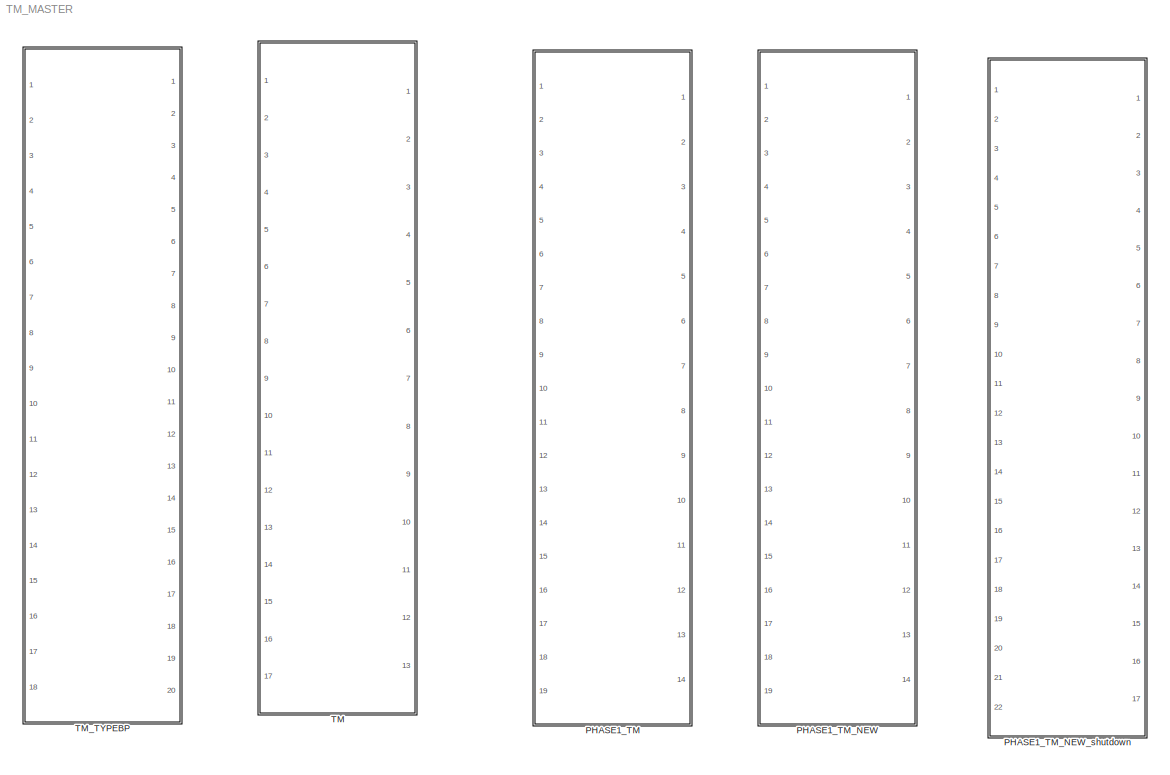
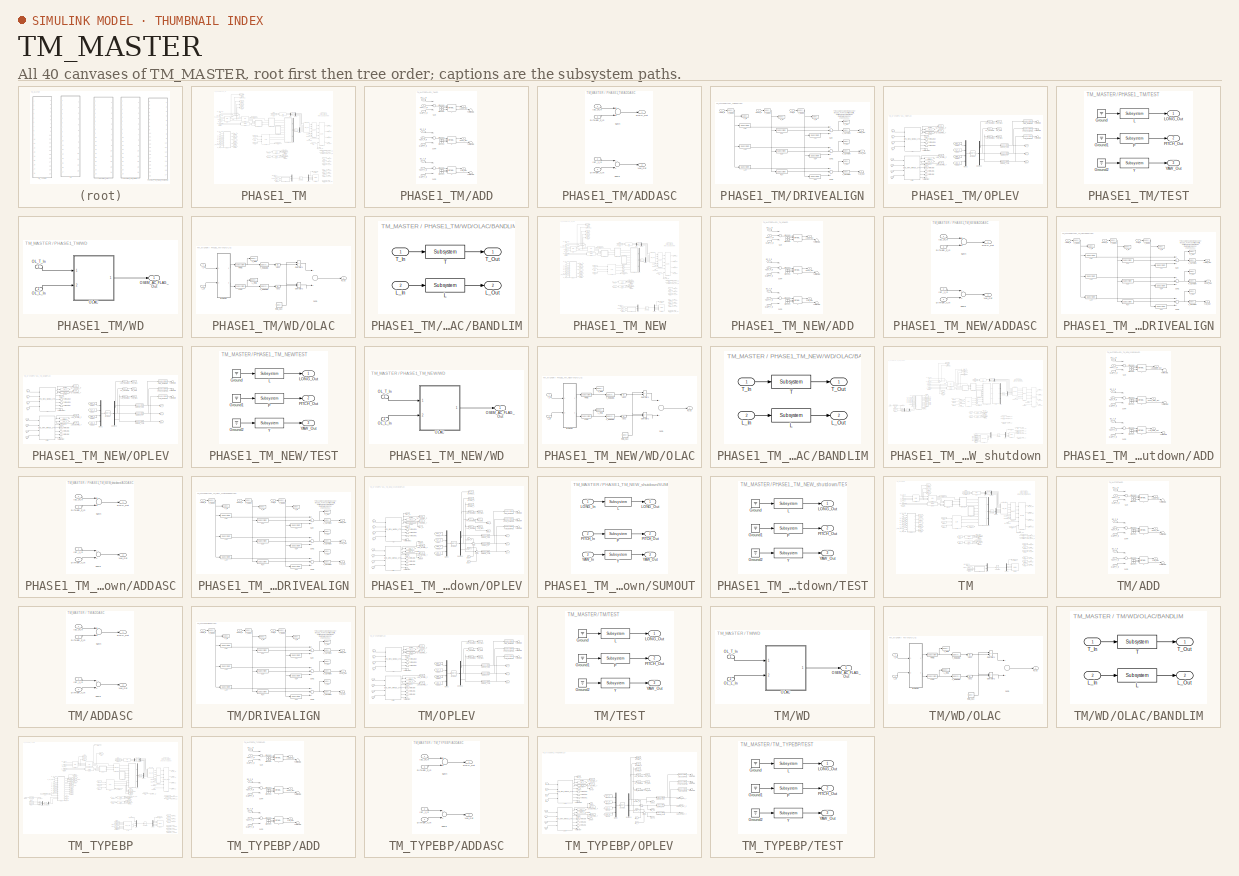
[diagram: thumbnail index - all 40 canvases of the model, root first then tree order]
MODEL TM_MASTER
KIND library
BLOCK [SubSystem] PHASE1_TM
  Ports = [19, 14]
  RequestExecContextInheritance = off
  SID = 398
  Variant = off
BLOCK [SubSystem] PHASE1_TM/ADD
  Ports = [9, 3]
  RequestExecContextInheritance = off
  SID = 416
  Variant = off
BLOCK [Inport] PHASE1_TM/ADD/DAMP_L_In
  IconDisplay = Port number
  Port = 7
  SID = 423
BLOCK [Inport] PHASE1_TM/ADD/DAMP_P_In
  IconDisplay = Port number
  Port = 8
  SID = 424
BLOCK [Inport] PHASE1_TM/ADD/DAMP_Y_In
  IconDisplay = Port number
  Port = 9
  SID = 425
BLOCK [Ground] PHASE1_TM/ADD/Ground1
  SID = 426
BLOCK [Ground] PHASE1_TM/ADD/Ground2
  SID = 427
BLOCK [Ground] PHASE1_TM/ADD/Ground3
  SID = 428
BLOCK [Ground] PHASE1_TM/ADD/Ground4
  SID = 429
BLOCK [Ground] PHASE1_TM/ADD/Ground5
  SID = 430
BLOCK [Ground] PHASE1_TM/ADD/Ground6
  SID = 431
BLOCK [Inport] PHASE1_TM/ADD/ISC_L_In
  IconDisplay = Port number
  SID = 417
BLOCK [Inport] PHASE1_TM/ADD/ISC_P_In
  IconDisplay = Port number
  Port = 2
  SID = 418
BLOCK [Inport] PHASE1_TM/ADD/ISC_Y_In
  IconDisplay = Port number
  Port = 3
  SID = 419
BLOCK [Reference] PHASE1_TM/ADD/L  REF=cdsFiltCtrl/IIR FM with control
  AttributesFormatString = %<Tag>
  Description = cdsFiltCntrl is the standard IIR filter module (exactly the same as cdsFilt) but with added control data output 'Ctrl'. Filter module digital signal output appears on the first output, which is called 'Val'. 'Ctrl' output has a bit pattern encoding the state of filter's on/off switches (FM1 through FM10). The bit values are:\n                                                                        ...<+4621ch>  <repeated x15 — deduplicated; at blocks: L, P, Y>
  Ports = [3, 2]
  SID = 432
  SourceBlock = cdsFiltCtrl/IIR FM with control
  SourceType = SubSystem
  Tag = cdsFiltCtrl
BLOCK [Outport] PHASE1_TM/ADD/LONG_Out
  IconDisplay = Port number
  SID = 441
BLOCK [Reference] PHASE1_TM/ADD/P  REF=cdsFiltCtrl/IIR FM with control
  AttributesFormatString = %<Tag>
  Ports = [3, 2]
  SID = 433
  SourceBlock = cdsFiltCtrl/IIR FM with control
  SourceType = SubSystem
  Tag = cdsFiltCtrl
BLOCK [Outport] PHASE1_TM/ADD/PITCH_Out
  IconDisplay = Port number
  Port = 2
  SID = 442
BLOCK [Sum] PHASE1_TM/ADD/Sum
  InputSameDT = off
  Inputs = +++
  OutDataTypeStr = Inherit: Inherit via internal rule
  Ports = [3, 1]
  SID = 434
  SaturateOnIntegerOverflow = off
BLOCK [Sum] PHASE1_TM/ADD/Sum3
  InputSameDT = off
  Inputs = +++
  OutDataTypeStr = Inherit: Inherit via internal rule
  Ports = [3, 1]
  SID = 435
  SaturateOnIntegerOverflow = off
BLOCK [Sum] PHASE1_TM/ADD/Sum4
  InputSameDT = off
  Inputs = +++
  OutDataTypeStr = Inherit: Inherit via internal rule
  Ports = [3, 1]
  SID = 436
  SaturateOnIntegerOverflow = off
BLOCK [Inport] PHASE1_TM/ADD/TEST_L_In
  IconDisplay = Port number
  Port = 4
  SID = 420
BLOCK [Inport] PHASE1_TM/ADD/TEST_P_In
  IconDisplay = Port number
  Port = 5
  SID = 421
BLOCK [Inport] PHASE1_TM/ADD/TEST_Y_In
  IconDisplay = Port number
  Port = 6
  SID = 422
BLOCK [Terminator] PHASE1_TM/ADD/Terminator1
  SID = 437
BLOCK [Terminator] PHASE1_TM/ADD/Terminator2
  SID = 438
BLOCK [Terminator] PHASE1_TM/ADD/Terminator3
  SID = 439
BLOCK [Reference] PHASE1_TM/ADD/Y  REF=cdsFiltCtrl/IIR FM with control
  AttributesFormatString = %<Tag>
  Ports = [3, 2]
  SID = 440
  SourceBlock = cdsFiltCtrl/IIR FM with control
  SourceType = SubSystem
  Tag = cdsFiltCtrl
BLOCK [Outport] PHASE1_TM/ADD/YAW_Out
  IconDisplay = Port number
  Port = 3
  SID = 443
BLOCK [SubSystem] PHASE1_TM/ADDASC
  Ports = [4, 2]
  RequestExecContextInheritance = off
  SID = 444
  Variant = off
BLOCK [Inport] PHASE1_TM/ADDASC/DITHER_P_In
  IconDisplay = Port number
  Port = 3
  SID = 447
BLOCK [Inport] PHASE1_TM/ADDASC/DITHER_Y_In
  IconDisplay = Port number
  Port = 4
  SID = 448
BLOCK [Inport] PHASE1_TM/ADDASC/ISC_P_In
  IconDisplay = Port number
  SID = 445
BLOCK [Inport] PHASE1_TM/ADDASC/ISC_Y_In
  IconDisplay = Port number
  Port = 2
  SID = 446
BLOCK [Outport] PHASE1_TM/ADDASC/PITCH_Out
  IconDisplay = Port number
  SID = 451
BLOCK [Sum] PHASE1_TM/ADDASC/Sum3
  InputSameDT = off
  OutDataTypeStr = Inherit: Inherit via internal rule
  Ports = [2, 1]
  SID = 449
  SaturateOnIntegerOverflow = off
BLOCK [Sum] PHASE1_TM/ADDASC/Sum4
  InputSameDT = off
  OutDataTypeStr = Inherit: Inherit via internal rule
  Ports = [2, 1]
  SID = 450
  SaturateOnIntegerOverflow = off
BLOCK [Outport] PHASE1_TM/ADDASC/YAW_Out
  IconDisplay = Port number
  Port = 2
  SID = 452
BLOCK [Reference] PHASE1_TM/ADD_LKIN  REF=VIS_LIB/ADD_LKIN
  Ports = [8, 4]
  SID = 453
  SourceBlock = VIS_LIB/ADD_LKIN
  SourceType = SubSystem
BLOCK [Inport] PHASE1_TM/ASC_PIT_DITHER
  IconDisplay = Port number
  Port = 16
  SID = 414
BLOCK [Inport] PHASE1_TM/ASC_YAW_DITHER
  IconDisplay = Port number
  Port = 17
  SID = 415
BLOCK [Outport] PHASE1_TM/CAL_CTRL_Out
  IconDisplay = Port number
  Port = 14
  SID = 651
BLOCK [Inport] PHASE1_TM/CAL_LINE_CTRL_In
  IconDisplay = Port number
  Port = 18
  SID = 645
BLOCK [Inport] PHASE1_TM/CAL_LINE_TM_In
  IconDisplay = Port number
  Port = 19
  SID = 646
BLOCK [Reference] PHASE1_TM/COILOUTF  REF=FOUROSEM_COILOUTF_MASTER/COILOUTF
  Ports = [6, 4]
  SID = 454
  SourceBlock = FOUROSEM_COILOUTF_MASTER/COILOUTF
  SourceType = SubSystem
BLOCK [Inport] PHASE1_TM/COILOUTF_CTRL
  IconDisplay = Port number
  Port = 4
  SID = 402
BLOCK [Inport] PHASE1_TM/COILOUTF_MASK
  IconDisplay = Port number
  Port = 5
  SID = 403
BLOCK [Outport] PHASE1_TM/COIL_H1_Out
  IconDisplay = Port number
  SID = 631
BLOCK [Outport] PHASE1_TM/COIL_H2_Out
  IconDisplay = Port number
  Port = 2
  SID = 632
BLOCK [Outport] PHASE1_TM/COIL_H3_Out
  IconDisplay = Port number
  Port = 3
  SID = 633
BLOCK [Outport] PHASE1_TM/COIL_H4_Out
  IconDisplay = Port number
  Port = 4
  SID = 634
BLOCK [Reference] PHASE1_TM/DAMP  REF=VIS_LIB/DAMP
  Ports = [3, 4]
  SID = 455
  SourceBlock = VIS_LIB/DAMP
  SourceType = SubSystem
BLOCK [Outport] PHASE1_TM/DAMP_STATE_Out
  IconDisplay = Port number
  Port = 6
  SID = 636
BLOCK [Reference] PHASE1_TM/DITHER  REF=VIS_LIB/DITHER
  Ports = [2, 2]
  SID = 456
  SourceBlock = VIS_LIB/DITHER
  SourceType = SubSystem
BLOCK [SubSystem] PHASE1_TM/DRIVEALIGN
  Ports = [3, 3]
  RequestExecContextInheritance = off
  SID = 457
  Variant = off
BLOCK [Reference] PHASE1_TM/DRIVEALIGN/L2L  REF=cdsFilt/Subsystem
  AttributesFormatString = %<Tag>
  Description = Purpose:                                                                                                                                                                                                                                  \nStandard CDS IIR filter module.                                                                                                                                     ...<+1302ch>  <repeated x75 — deduplicated; at blocks: L2L, L2P, L2Y, P2L, P2P, P2Y, Y2L, Y2P, Y2Y, SERVO_LEN, SERVO_PIT, SERVO_YAW, L, P, Y, T>
  Ports = [1, 1]
  SID = 461
  SourceBlock = cdsFilt/Subsystem
  SourceType = SubSystem
  Tag = cdsFilt
BLOCK [Reference] PHASE1_TM/DRIVEALIGN/L2P  REF=cdsFilt/Subsystem
  AttributesFormatString = %<Tag>
  Ports = [1, 1]
  SID = 462
  SourceBlock = cdsFilt/Subsystem
  SourceType = SubSystem
  Tag = cdsFilt
BLOCK [Reference] PHASE1_TM/DRIVEALIGN/L2Y  REF=cdsFilt/Subsystem
  AttributesFormatString = %<Tag>
  Ports = [1, 1]
  SID = 463
  SourceBlock = cdsFilt/Subsystem
  SourceType = SubSystem
  Tag = cdsFilt
BLOCK [Inport] PHASE1_TM/DRIVEALIGN/LONG_In
  IconDisplay = Port number
  SID = 458
BLOCK [Outport] PHASE1_TM/DRIVEALIGN/LONG_Out
  IconDisplay = Port number
  SID = 485
BLOCK [Reference] PHASE1_TM/DRIVEALIGN/L_IN  REF=cdsTP/Subsystem
  AttributesFormatString = %<Tag>
  Ports = [1]
  SID = 464
  SourceBlock = cdsTP/Subsystem
  SourceType = SubSystem
  Tag = Test Point
BLOCK [Reference] PHASE1_TM/DRIVEALIGN/L_INMON  REF=cdsEpicsOut/Subsystem
  AttributesFormatString = %<Tag>
  Description = Purpose:                                          \nOutput a FE signal to an EPICS channel.           \n                                                  \nOperation:                                        \nTakes input value and passes it to EPICS record.  \n                                                  \nUsage:                                            \nName the part with the desired EPICS...<+14ch>  <repeated x60 — deduplicated; at blocks: L_INMON, L_OUTMON, P_INMON, P_OUTMON, Y_INMON, Y_OUTMON, LEN_DAMPED, LEN_DIAGMON, PITCH_DAMPED, PIT_DIAGMON, YAW_DAMPED, YAW_DIAGMON, L_RMSMON, T_RMSMON>
  Ports = [1, 1]
  SID = 465
  SourceBlock = cdsEpicsOut/Subsystem
  SourceType = SubSystem
  Tag = cdsEpicsOutput
BLOCK [Reference] PHASE1_TM/DRIVEALIGN/L_OUT  REF=cdsTP/Subsystem
  AttributesFormatString = %<Tag>
  Ports = [1]
  SID = 466
  SourceBlock = cdsTP/Subsystem
  SourceType = SubSystem
  Tag = Test Point
BLOCK [Reference] PHASE1_TM/DRIVEALIGN/L_OUTMON  REF=cdsEpicsOut/Subsystem
  AttributesFormatString = %<Tag>
  Ports = [1, 1]
  SID = 467
  SourceBlock = cdsEpicsOut/Subsystem
  SourceType = SubSystem
  Tag = cdsEpicsOutput
BLOCK [Reference] PHASE1_TM/DRIVEALIGN/P2L  REF=cdsFilt/Subsystem
  AttributesFormatString = %<Tag>
  Ports = [1, 1]
  SID = 468
  SourceBlock = cdsFilt/Subsystem
  SourceType = SubSystem
  Tag = cdsFilt
BLOCK [Reference] PHASE1_TM/DRIVEALIGN/P2P  REF=cdsFilt/Subsystem
  AttributesFormatString = %<Tag>
  Ports = [1, 1]
  SID = 469
  SourceBlock = cdsFilt/Subsystem
  SourceType = SubSystem
  Tag = cdsFilt
BLOCK [Reference] PHASE1_TM/DRIVEALIGN/P2Y  REF=cdsFilt/Subsystem
  AttributesFormatString = %<Tag>
  Ports = [1, 1]
  SID = 470
  SourceBlock = cdsFilt/Subsystem
  SourceType = SubSystem
  Tag = cdsFilt
BLOCK [Inport] PHASE1_TM/DRIVEALIGN/PITCH_In
  IconDisplay = Port number
  Port = 2
  SID = 459
BLOCK [Outport] PHASE1_TM/DRIVEALIGN/PITCH_Out
  IconDisplay = Port number
  Port = 2
  SID = 486
BLOCK [Reference] PHASE1_TM/DRIVEALIGN/P_IN  REF=cdsTP/Subsystem
  AttributesFormatString = %<Tag>
  Ports = [1]
  SID = 471
  SourceBlock = cdsTP/Subsystem
  SourceType = SubSystem
  Tag = Test Point
BLOCK [Reference] PHASE1_TM/DRIVEALIGN/P_INMON  REF=cdsEpicsOut/Subsystem
  AttributesFormatString = %<Tag>
  Ports = [1, 1]
  SID = 472
  SourceBlock = cdsEpicsOut/Subsystem
  SourceType = SubSystem
  Tag = cdsEpicsOutput
BLOCK [Reference] PHASE1_TM/DRIVEALIGN/P_OUT  REF=cdsTP/Subsystem
  AttributesFormatString = %<Tag>
  Ports = [1]
  SID = 473
  SourceBlock = cdsTP/Subsystem
  SourceType = SubSystem
  Tag = Test Point
BLOCK [Reference] PHASE1_TM/DRIVEALIGN/P_OUTMON  REF=cdsEpicsOut/Subsystem
  AttributesFormatString = %<Tag>
  Ports = [1, 1]
  SID = 474
  SourceBlock = cdsEpicsOut/Subsystem
  SourceType = SubSystem
  Tag = cdsEpicsOutput
BLOCK [Sum] PHASE1_TM/DRIVEALIGN/Sum
  InputSameDT = off
  Inputs = +++
  OutDataTypeStr = Inherit: Inherit via internal rule
  Ports = [3, 1]
  SID = 475
  SaturateOnIntegerOverflow = off
BLOCK [Sum] PHASE1_TM/DRIVEALIGN/Sum1
  InputSameDT = off
  Inputs = +++
  OutDataTypeStr = Inherit: Inherit via internal rule
  Ports = [3, 1]
  SID = 476
  SaturateOnIntegerOverflow = off
BLOCK [Sum] PHASE1_TM/DRIVEALIGN/Sum2
  InputSameDT = off
  Inputs = +++
  OutDataTypeStr = Inherit: Inherit via internal rule
  Ports = [3, 1]
  SID = 477
  SaturateOnIntegerOverflow = off
BLOCK [Reference] PHASE1_TM/DRIVEALIGN/Y2L  REF=cdsFilt/Subsystem
  AttributesFormatString = %<Tag>
  Ports = [1, 1]
  SID = 478
  SourceBlock = cdsFilt/Subsystem
  SourceType = SubSystem
  Tag = cdsFilt
BLOCK [Reference] PHASE1_TM/DRIVEALIGN/Y2P  REF=cdsFilt/Subsystem
  AttributesFormatString = %<Tag>
  Ports = [1, 1]
  SID = 479
  SourceBlock = cdsFilt/Subsystem
  SourceType = SubSystem
  Tag = cdsFilt
BLOCK [Reference] PHASE1_TM/DRIVEALIGN/Y2Y  REF=cdsFilt/Subsystem
  AttributesFormatString = %<Tag>
  Ports = [1, 1]
  SID = 480
  SourceBlock = cdsFilt/Subsystem
  SourceType = SubSystem
  Tag = cdsFilt
BLOCK [Inport] PHASE1_TM/DRIVEALIGN/YAW_In
  IconDisplay = Port number
  Port = 3
  SID = 460
BLOCK [Outport] PHASE1_TM/DRIVEALIGN/YAW_Out
  IconDisplay = Port number
  Port = 3
  SID = 487
BLOCK [Reference] PHASE1_TM/DRIVEALIGN/Y_IN  REF=cdsTP/Subsystem
  AttributesFormatString = %<Tag>
  Ports = [1]
  SID = 481
  SourceBlock = cdsTP/Subsystem
  SourceType = SubSystem
  Tag = Test Point
BLOCK [Reference] PHASE1_TM/DRIVEALIGN/Y_INMON  REF=cdsEpicsOut/Subsystem
  AttributesFormatString = %<Tag>
  Ports = [1, 1]
  SID = 482
  SourceBlock = cdsEpicsOut/Subsystem
  SourceType = SubSystem
  Tag = cdsEpicsOutput
BLOCK [Reference] PHASE1_TM/DRIVEALIGN/Y_OUT  REF=cdsTP/Subsystem
  AttributesFormatString = %<Tag>
  Ports = [1]
  SID = 483
  SourceBlock = cdsTP/Subsystem
  SourceType = SubSystem
  Tag = Test Point
BLOCK [Reference] PHASE1_TM/DRIVEALIGN/Y_OUTMON  REF=cdsEpicsOut/Subsystem
  AttributesFormatString = %<Tag>
  Ports = [1, 1]
  SID = 484
  SourceBlock = cdsEpicsOut/Subsystem
  SourceType = SubSystem
  Tag = cdsEpicsOutput
BLOCK [Demux] PHASE1_TM/Demux1
  DisplayOption = bar
  Ports = [1, 4]
  SID = 489
BLOCK [Demux] PHASE1_TM/Demux4
  DisplayOption = bar
  Ports = [1, 4]
  SID = 490
BLOCK [Demux] PHASE1_TM/Demux9
  DisplayOption = bar
  Ports = [1, 4]
  SID = 491
BLOCK [Reference] PHASE1_TM/EUL2OSEM  REF=cdsMuxMatrix/Subsystem
  AttributesFormatString = %<Tag>
  Description = Any size matrix. Inputs and outputs must be connected using Mux and Demux parts.
  Ports = [1, 1]
  SID = 492
  SourceBlock = cdsMuxMatrix/Subsystem
  SourceType = SubSystem
  Tag = cdsMuxMatrix
BLOCK [From] PHASE1_TM/From
  CloseFcn = tagdialog Close
  GotoTag = WDFLAG
  SID = 493
BLOCK [From] PHASE1_TM/From1
  CloseFcn = tagdialog Close
  GotoTag = OL_P
  SID = 494
BLOCK [From] PHASE1_TM/From10
  CloseFcn = tagdialog Close
  GotoTag = OL_P
  SID = 495
BLOCK [From] PHASE1_TM/From11
  CloseFcn = tagdialog Close
  GotoTag = OL_Y
  SID = 496
BLOCK [From] PHASE1_TM/From12
  CloseFcn = tagdialog Close
  GotoTag = CAL_CTRL
  SID = 653
BLOCK [From] PHASE1_TM/From13
  CloseFcn = tagdialog Close
  GotoTag = OL_P
  SID = 497
BLOCK [From] PHASE1_TM/From14
  CloseFcn = tagdialog Close
  GotoTag = OL_Y
  SID = 498
BLOCK [From] PHASE1_TM/From15
  CloseFcn = tagdialog Close
  GotoTag = OL_L
  SID = 499
BLOCK [From] PHASE1_TM/From17
  CloseFcn = tagdialog Close
  GotoTag = OL_L
  SID = 500
BLOCK [From] PHASE1_TM/From18
  CloseFcn = tagdialog Close
  GotoTag = SUM_T
  SID = 501
BLOCK [From] PHASE1_TM/From19
  CloseFcn = tagdialog Close
  GotoTag = SUM_L
  SID = 502
BLOCK [From] PHASE1_TM/From2
  CloseFcn = tagdialog Close
  GotoTag = OL_Y
  SID = 503
BLOCK [From] PHASE1_TM/From3
  CloseFcn = tagdialog Close
  GotoTag = ISC_P
  SID = 504
BLOCK [From] PHASE1_TM/From4
  CloseFcn = tagdialog Close
  GotoTag = LKIN_P_EXC
  SID = 505
BLOCK [From] PHASE1_TM/From5
  CloseFcn = tagdialog Close
  GotoTag = ISC_Y
  SID = 506
BLOCK [From] PHASE1_TM/From6
  CloseFcn = tagdialog Close
  GotoTag = ISC_L
  SID = 507
BLOCK [From] PHASE1_TM/From7
  CloseFcn = tagdialog Close
  GotoTag = DAMPSTATE
  SID = 508
BLOCK [From] PHASE1_TM/From8
  CloseFcn = tagdialog Close
  GotoTag = LOCKSTATE
  SID = 509
BLOCK [From] PHASE1_TM/From9
  CloseFcn = tagdialog Close
  GotoTag = LKIN_Y_EXC
  SID = 510
BLOCK [Goto] PHASE1_TM/Goto
  GotoTag = WDFLAG
  SID = 511
BLOCK [Goto] PHASE1_TM/Goto1
  GotoTag = ISC_P
  SID = 512
BLOCK [Goto] PHASE1_TM/Goto10
  GotoTag = OL_P
  SID = 513
BLOCK [Goto] PHASE1_TM/Goto11
  GotoTag = OL_Y
  SID = 514
BLOCK [Goto] PHASE1_TM/Goto2
  GotoTag = ISC_Y
  SID = 515
BLOCK [Goto] PHASE1_TM/Goto3
  GotoTag = ISC_L
  SID = 516
BLOCK [Goto] PHASE1_TM/Goto4
  GotoTag = LOCKSTATE
  SID = 517
BLOCK [Goto] PHASE1_TM/Goto5
  GotoTag = CAL_CTRL
  SID = 652
BLOCK [Goto] PHASE1_TM/Goto6
  GotoTag = DAMPSTATE
  SID = 518
BLOCK [Goto] PHASE1_TM/Goto7
  GotoTag = SUM_T
  SID = 519
BLOCK [Goto] PHASE1_TM/Goto8
  GotoTag = SUM_L
  SID = 520
BLOCK [Goto] PHASE1_TM/Goto9
  GotoTag = OL_L
  SID = 521
BLOCK [Reference] PHASE1_TM/ISCINF  REF=VIS_LIB/ISCINF
  Ports = [3, 3]
  SID = 522
  SourceBlock = VIS_LIB/ISCINF
  SourceType = SubSystem
BLOCK [Reference] PHASE1_TM/ISCINF_L_OUT2  REF=cdsTP/Subsystem
  AttributesFormatString = %<Tag>
  Ports = [1]
  SID = 650
  SourceBlock = cdsTP/Subsystem
  SourceType = SubSystem
  Tag = Test Point
BLOCK [Inport] PHASE1_TM/ISC_LONG_In
  IconDisplay = Port number
  SID = 399
BLOCK [Outport] PHASE1_TM/ISC_L_Out
  IconDisplay = Port number
  Port = 11
  SID = 641
BLOCK [Inport] PHASE1_TM/ISC_PITCH_In
  IconDisplay = Port number
  Port = 2
  SID = 400
BLOCK [Outport] PHASE1_TM/ISC_P_Out
  IconDisplay = Port number
  Port = 12
  SID = 642
BLOCK [Inport] PHASE1_TM/ISC_YAW_In
  IconDisplay = Port number
  Port = 3
  SID = 401
BLOCK [Outport] PHASE1_TM/ISC_Y_Out
  IconDisplay = Port number
  Port = 13
  SID = 643
BLOCK [Reference] PHASE1_TM/LKIN  REF=VIS_LIB/LKIN
  Ports = [2, 2]
  SID = 523
  SourceBlock = VIS_LIB/LKIN
  SourceType = SubSystem
BLOCK [Goto] PHASE1_TM/LKIN1_OUT1
  GotoTag = LKIN_P_EXC
  SID = 524
BLOCK [Goto] PHASE1_TM/LKIN1_OUT2
  GotoTag = LKIN_Y_EXC
  SID = 525
BLOCK [Reference] PHASE1_TM/LKIN2OSEM  REF=cdsMuxMatrix/Subsystem
  AttributesFormatString = %<Tag>
  Description = Any size matrix. Inputs and outputs must be connected using Mux and Demux parts.
  Ports = [1, 1]
  SID = 526
  SourceBlock = cdsMuxMatrix/Subsystem
  SourceType = SubSystem
  Tag = cdsMuxMatrix
BLOCK [Reference] PHASE1_TM/LKIN_P  REF=lockin/LOCKIN
  AttributesFormatString = %<Tag>
  Description = ADL=LOCKIN.adl
  Ports = [1, 3]
  SID = 527
  SourceBlock = lockin/LOCKIN
  SourceType = SubSystem
BLOCK [Reference] PHASE1_TM/LKIN_Y  REF=lockin/LOCKIN
  AttributesFormatString = %<Tag>
  Description = ADL=LOCKIN.adl
  Ports = [1, 3]
  SID = 528
  SourceBlock = lockin/LOCKIN
  SourceType = SubSystem
BLOCK [Reference] PHASE1_TM/LOCK  REF=VIS_LIB/LOCK
  Ports = [3, 4]
  SID = 529
  SourceBlock = VIS_LIB/LOCK
  SourceType = SubSystem
BLOCK [Outport] PHASE1_TM/LOCK_STATE_Out
  IconDisplay = Port number
  Port = 7
  SID = 637
BLOCK [Reference] PHASE1_TM/MASTER  REF=CRYP_TM_MASTER/CRYP_TM_MASTER/MASTER
  Ports = [6, 4]
  SID = 530
  SourceBlock = CRYP_TM_MASTER/CRYP_TM_MASTER/MASTER
  SourceType = SubSystem
BLOCK [Inport] PHASE1_TM/MASTERSW_In
  IconDisplay = Port number
  Port = 14
  SID = 412
BLOCK [Mux] PHASE1_TM/Mux1
  DisplayOption = bar
  Inputs = 3
  Ports = [3, 1]
  SID = 531
BLOCK [Mux] PHASE1_TM/Mux4
  DisplayOption = bar
  Inputs = 2
  Ports = [2, 1]
  SID = 532
BLOCK [Mux] PHASE1_TM/Mux9
  DisplayOption = bar
  Inputs = 2
  Ports = [2, 1]
  SID = 533
BLOCK [Inport] PHASE1_TM/OL_LEN_SEG1
  IconDisplay = Port number
  Port = 10
  SID = 408
BLOCK [Inport] PHASE1_TM/OL_LEN_SEG2
  IconDisplay = Port number
  Port = 11
  SID = 409
BLOCK [Inport] PHASE1_TM/OL_LEN_SEG3
  IconDisplay = Port number
  Port = 12
  SID = 410
BLOCK [Inport] PHASE1_TM/OL_LEN_SEG4
  IconDisplay = Port number
  Port = 13
  SID = 411
BLOCK [Outport] PHASE1_TM/OL_L_Out
  IconDisplay = Port number
  Port = 8
  SID = 638
BLOCK [Outport] PHASE1_TM/OL_P_Out
  IconDisplay = Port number
  Port = 9
  SID = 639
BLOCK [Inport] PHASE1_TM/OL_TILT_SEG1
  IconDisplay = Port number
  Port = 6
  SID = 404
BLOCK [Inport] PHASE1_TM/OL_TILT_SEG2
  IconDisplay = Port number
  Port = 7
  SID = 405
BLOCK [Inport] PHASE1_TM/OL_TILT_SEG3
  IconDisplay = Port number
  Port = 8
  SID = 406
BLOCK [Inport] PHASE1_TM/OL_TILT_SEG4
  IconDisplay = Port number
  Port = 9
  SID = 407
BLOCK [Outport] PHASE1_TM/OL_Y_Out
  IconDisplay = Port number
  Port = 10
  SID = 640
BLOCK [SubSystem] PHASE1_TM/OPLEV
  Ports = [8, 5]
  RequestExecContextInheritance = off
  SID = 534
  Variant = off
BLOCK [Demux] PHASE1_TM/OPLEV/Demux2
  DisplayOption = bar
  Outputs = 3
  Ports = [1, 3]
  SID = 543
BLOCK [From] PHASE1_TM/OPLEV/From16
  CloseFcn = tagdialog Close
  GotoTag = TILT_V
  SID = 544
BLOCK [From] PHASE1_TM/OPLEV/From17
  CloseFcn = tagdialog Close
  GotoTag = TILT_H
  SID = 545
BLOCK [From] PHASE1_TM/OPLEV/From18
  CloseFcn = tagdialog Close
  GotoTag = LEN_V
  SID = 546
BLOCK [From] PHASE1_TM/OPLEV/From19
  CloseFcn = tagdialog Close
  GotoTag = LEN_H
  SID = 547
BLOCK [Goto] PHASE1_TM/OPLEV/Goto1
  GotoTag = LEN_V
  SID = 548
BLOCK [Goto] PHASE1_TM/OPLEV/Goto3
  GotoTag = LEN_H
  SID = 549
BLOCK [Goto] PHASE1_TM/OPLEV/Goto5
  GotoTag = TILT_V
  SID = 550
BLOCK [Goto] PHASE1_TM/OPLEV/Goto6
  GotoTag = TILT_H
  SID = 551
BLOCK [Inport] PHASE1_TM/OPLEV/In1
  IconDisplay = Port number
  SID = 535
BLOCK [Inport] PHASE1_TM/OPLEV/In2
  IconDisplay = Port number
  Port = 2
  SID = 536
BLOCK [Inport] PHASE1_TM/OPLEV/In3
  IconDisplay = Port number
  Port = 3
  SID = 537
BLOCK [Inport] PHASE1_TM/OPLEV/In4
  IconDisplay = Port number
  Port = 4
  SID = 538
BLOCK [Inport] PHASE1_TM/OPLEV/In5
  IconDisplay = Port number
  Port = 5
  SID = 539
BLOCK [Inport] PHASE1_TM/OPLEV/In6
  IconDisplay = Port number
  Port = 6
  SID = 540
BLOCK [Inport] PHASE1_TM/OPLEV/In7
  IconDisplay = Port number
  Port = 7
  SID = 541
BLOCK [Inport] PHASE1_TM/OPLEV/In8
  IconDisplay = Port number
  Port = 8
  SID = 542
BLOCK [Reference] PHASE1_TM/OPLEV/LEN  REF=QPD/QPD_WITH_WHITEN_CTRL
  Ports = [4, 7]
  SID = 552
  SourceBlock = QPD/QPD_WITH_WHITEN_CTRL
  SourceType = SubSystem
BLOCK [Reference] PHASE1_TM/OPLEV/LEN_BLRMS_P  REF=VIS_LIB/OPLEV_BLRMS_DOF
  Ports = [1]
  SID = 553
  SourceBlock = VIS_LIB/OPLEV_BLRMS_DOF
  SourceType = SubSystem
BLOCK [Reference] PHASE1_TM/OPLEV/LEN_BLRMS_Y  REF=VIS_LIB/OPLEV_BLRMS_DOF
  Ports = [1]
  SID = 554
  SourceBlock = VIS_LIB/OPLEV_BLRMS_DOF
  SourceType = SubSystem
BLOCK [Reference] PHASE1_TM/OPLEV/LEN_DAMPED  REF=cdsEpicsOut/Subsystem
  AttributesFormatString = %<Tag>
  Ports = [1, 1]
  SID = 555
  SourceBlock = cdsEpicsOut/Subsystem
  SourceType = SubSystem
  Tag = cdsEpicsOutput
BLOCK [Reference] PHASE1_TM/OPLEV/LEN_DIAG  REF=cdsTP/Subsystem
  AttributesFormatString = %<Tag>
  Ports = [1]
  SID = 556
  SourceBlock = cdsTP/Subsystem
  SourceType = SubSystem
  Tag = Test Point
BLOCK [Reference] PHASE1_TM/OPLEV/LEN_DIAGMON  REF=cdsEpicsOut/Subsystem
  AttributesFormatString = %<Tag>
  Ports = [1, 1]
  SID = 557
  SourceBlock = cdsEpicsOut/Subsystem
  SourceType = SubSystem
  Tag = cdsEpicsOutput
BLOCK [Mux] PHASE1_TM/OPLEV/Mux2
  DisplayOption = bar
  Ports = [4, 1]
  SID = 558
BLOCK [Reference] PHASE1_TM/OPLEV/OL2EUL  REF=cdsMuxMatrix/Subsystem
  AttributesFormatString = %<Tag>
  Description = Any size matrix. Inputs and outputs must be connected using Mux and Demux parts.
  Ports = [1, 1]
  SID = 559
  SourceBlock = cdsMuxMatrix/Subsystem
  SourceType = SubSystem
  Tag = cdsMuxMatrix
BLOCK [Outport] PHASE1_TM/OPLEV/OL_L
  IconDisplay = Port number
  SID = 583
BLOCK [Outport] PHASE1_TM/OPLEV/OL_P
  IconDisplay = Port number
  Port = 2
  SID = 584
BLOCK [Outport] PHASE1_TM/OPLEV/OL_Y
  IconDisplay = Port number
  Port = 3
  SID = 585
BLOCK [Reference] PHASE1_TM/OPLEV/PITCH_DAMPED  REF=cdsEpicsOut/Subsystem
  AttributesFormatString = %<Tag>
  Ports = [1, 1]
  SID = 560
  SourceBlock = cdsEpicsOut/Subsystem
  SourceType = SubSystem
  Tag = cdsEpicsOutput
BLOCK [Reference] PHASE1_TM/OPLEV/PIT_DIAG  REF=cdsTP/Subsystem
  AttributesFormatString = %<Tag>
  Ports = [1]
  SID = 561
  SourceBlock = cdsTP/Subsystem
  SourceType = SubSystem
  Tag = Test Point
BLOCK [Reference] PHASE1_TM/OPLEV/PIT_DIAGMON  REF=cdsEpicsOut/Subsystem
  AttributesFormatString = %<Tag>
  Ports = [1, 1]
  SID = 562
  SourceBlock = cdsEpicsOut/Subsystem
  SourceType = SubSystem
  Tag = cdsEpicsOutput
BLOCK [Reference] PHASE1_TM/OPLEV/SERVO_LEN  REF=cdsFilt/Subsystem
  AttributesFormatString = %<Tag>
  Ports = [1, 1]
  SID = 563
  SourceBlock = cdsFilt/Subsystem
  SourceType = SubSystem
  Tag = cdsFilt
BLOCK [Reference] PHASE1_TM/OPLEV/SERVO_PIT  REF=cdsFilt/Subsystem
  AttributesFormatString = %<Tag>
  Ports = [1, 1]
  SID = 564
  SourceBlock = cdsFilt/Subsystem
  SourceType = SubSystem
  Tag = cdsFilt
BLOCK [Reference] PHASE1_TM/OPLEV/SERVO_YAW  REF=cdsFilt/Subsystem
  AttributesFormatString = %<Tag>
  Ports = [1, 1]
  SID = 565
  SourceBlock = cdsFilt/Subsystem
  SourceType = SubSystem
  Tag = cdsFilt
BLOCK [Outport] PHASE1_TM/OPLEV/SUM_L
  IconDisplay = Port number
  Port = 5
  SID = 587
BLOCK [Outport] PHASE1_TM/OPLEV/SUM_T
  IconDisplay = Port number
  Port = 4
  SID = 586
BLOCK [Reference] PHASE1_TM/OPLEV/TILT  REF=QPD/QPD_WITH_WHITEN_CTRL
  Ports = [4, 7]
  SID = 566
  SourceBlock = QPD/QPD_WITH_WHITEN_CTRL
  SourceType = SubSystem
BLOCK [Reference] PHASE1_TM/OPLEV/TILT_BLRMS_P  REF=VIS_LIB/OPLEV_BLRMS_DOF
  Ports = [1]
  SID = 567
  SourceBlock = VIS_LIB/OPLEV_BLRMS_DOF
  SourceType = SubSystem
BLOCK [Reference] PHASE1_TM/OPLEV/TILT_BLRMS_Y  REF=VIS_LIB/OPLEV_BLRMS_DOF
  Ports = [1]
  SID = 568
  SourceBlock = VIS_LIB/OPLEV_BLRMS_DOF
  SourceType = SubSystem
BLOCK [Terminator] PHASE1_TM/OPLEV/Terminator3
  SID = 569
BLOCK [Terminator] PHASE1_TM/OPLEV/Terminator4
  SID = 570
BLOCK [Terminator] PHASE1_TM/OPLEV/Terminator5
  SID = 571
BLOCK [Terminator] PHASE1_TM/OPLEV/Terminator50
  SID = 572
BLOCK [Terminator] PHASE1_TM/OPLEV/Terminator51
  SID = 573
BLOCK [Terminator] PHASE1_TM/OPLEV/Terminator52
  SID = 574
BLOCK [Terminator] PHASE1_TM/OPLEV/Terminator54
  SID = 575
BLOCK [Terminator] PHASE1_TM/OPLEV/Terminator6
  SID = 576
BLOCK [Terminator] PHASE1_TM/OPLEV/Terminator7
  SID = 577
BLOCK [Terminator] PHASE1_TM/OPLEV/Terminator8
  SID = 578
BLOCK [Terminator] PHASE1_TM/OPLEV/Terminator9
  SID = 579
BLOCK [Reference] PHASE1_TM/OPLEV/YAW_DAMPED  REF=cdsEpicsOut/Subsystem
  AttributesFormatString = %<Tag>
  Ports = [1, 1]
  SID = 580
  SourceBlock = cdsEpicsOut/Subsystem
  SourceType = SubSystem
  Tag = cdsEpicsOutput
BLOCK [Reference] PHASE1_TM/OPLEV/YAW_DIAG  REF=cdsTP/Subsystem
  AttributesFormatString = %<Tag>
  Ports = [1]
  SID = 581
  SourceBlock = cdsTP/Subsystem
  SourceType = SubSystem
  Tag = Test Point
BLOCK [Reference] PHASE1_TM/OPLEV/YAW_DIAGMON  REF=cdsEpicsOut/Subsystem
  AttributesFormatString = %<Tag>
  Ports = [1, 1]
  SID = 582
  SourceBlock = cdsEpicsOut/Subsystem
  SourceType = SubSystem
  Tag = cdsEpicsOutput
BLOCK [Sum] PHASE1_TM/Sum1
  InputSameDT = off
  OutDataTypeStr = Inherit: Inherit via internal rule
  Ports = [2, 1]
  SID = 648
  SaturateOnIntegerOverflow = off
BLOCK [Sum] PHASE1_TM/Sum2
  InputSameDT = off
  OutDataTypeStr = Inherit: Inherit via internal rule
  Ports = [2, 1]
  SID = 649
  SaturateOnIntegerOverflow = off
BLOCK [SubSystem] PHASE1_TM/TEST
  Ports = [0, 3]
  RequestExecContextInheritance = off
  SID = 588
  Variant = off
BLOCK [Ground] PHASE1_TM/TEST/Ground
  SID = 589
BLOCK [Ground] PHASE1_TM/TEST/Ground1
  SID = 590
BLOCK [Ground] PHASE1_TM/TEST/Ground2
  SID = 591
BLOCK [Reference] PHASE1_TM/TEST/L  REF=cdsFilt/Subsystem
  AttributesFormatString = %<Tag>
  Ports = [1, 1]
  SID = 592
  SourceBlock = cdsFilt/Subsystem
  SourceType = SubSystem
  Tag = cdsFilt
BLOCK [Outport] PHASE1_TM/TEST/LONG_Out
  IconDisplay = Port number
  SID = 595
BLOCK [Reference] PHASE1_TM/TEST/P  REF=cdsFilt/Subsystem
  AttributesFormatString = %<Tag>
  Ports = [1, 1]
  SID = 593
  SourceBlock = cdsFilt/Subsystem
  SourceType = SubSystem
  Tag = cdsFilt
BLOCK [Outport] PHASE1_TM/TEST/PITCH_Out
  IconDisplay = Port number
  Port = 2
  SID = 596
BLOCK [Reference] PHASE1_TM/TEST/Y  REF=cdsFilt/Subsystem
  AttributesFormatString = %<Tag>
  Ports = [1, 1]
  SID = 594
  SourceBlock = cdsFilt/Subsystem
  SourceType = SubSystem
  Tag = cdsFilt
BLOCK [Outport] PHASE1_TM/TEST/YAW_Out
  IconDisplay = Port number
  Port = 3
  SID = 597
BLOCK [Terminator] PHASE1_TM/Terminator1
  SID = 598
BLOCK [Terminator] PHASE1_TM/Terminator2
  SID = 599
BLOCK [Terminator] PHASE1_TM/Terminator5
  SID = 600
BLOCK [Terminator] PHASE1_TM/Terminator6
  SID = 601
BLOCK [Reference] PHASE1_TM/WATCHDOG  REF=cdsFunctionCall/Subsystem
  AttributesFormatString = %<Tag>\\n%<Description>
  Description = inline OSEMWATCHDOG <path>
  Ports = [1, 1]
  SID = 602
  SourceBlock = cdsFunctionCall/Subsystem
  SourceType = SubSystem
  Tag = cdsFunctionCall
BLOCK [SubSystem] PHASE1_TM/WD
  Ports = [2, 1]
  RequestExecContextInheritance = off
  SID = 603
  Variant = off
BLOCK [SubSystem] PHASE1_TM/WD/OLAC
  Ports = [2, 1]
  RequestExecContextInheritance = off
  SID = 606
  Variant = off
BLOCK [Abs] PHASE1_TM/WD/OLAC/Abs1
  SID = 609
  SaturateOnIntegerOverflow = off
BLOCK [Abs] PHASE1_TM/WD/OLAC/Abs2
  SID = 610
  SaturateOnIntegerOverflow = off
BLOCK [SubSystem] PHASE1_TM/WD/OLAC/BANDLIM
  Ports = [2, 2]
  RequestExecContextInheritance = off
  SID = 611
  Variant = off
BLOCK [Reference] PHASE1_TM/WD/OLAC/BANDLIM/L  REF=cdsFilt/Subsystem
  AttributesFormatString = %<Tag>
  Ports = [1, 1]
  SID = 614
  SourceBlock = cdsFilt/Subsystem
  SourceType = SubSystem
  Tag = cdsFilt
BLOCK [Inport] PHASE1_TM/WD/OLAC/BANDLIM/L_In
  IconDisplay = Port number
  Port = 2
  SID = 613
BLOCK [Outport] PHASE1_TM/WD/OLAC/BANDLIM/L_Out
  IconDisplay = Port number
  Port = 2
  SID = 617
BLOCK [Reference] PHASE1_TM/WD/OLAC/BANDLIM/T  REF=cdsFilt/Subsystem
  AttributesFormatString = %<Tag>
  Ports = [1, 1]
  SID = 615
  SourceBlock = cdsFilt/Subsystem
  SourceType = SubSystem
  Tag = cdsFilt
BLOCK [Inport] PHASE1_TM/WD/OLAC/BANDLIM/T_In
  IconDisplay = Port number
  SID = 612
BLOCK [Outport] PHASE1_TM/WD/OLAC/BANDLIM/T_Out
  IconDisplay = Port number
  SID = 616
BLOCK [Outport] PHASE1_TM/WD/OLAC/FLAG
  IconDisplay = Port number
  SID = 628
BLOCK [Reference] PHASE1_TM/WD/OLAC/LRMS  REF=cdsRms/Subsystem
  AttributesFormatString = %<Tag>
  Description = Purpose:                                   \nCalculate an RMS based on the input signal.
  Ports = [1, 1]
  SID = 618
  SourceBlock = cdsRms/Subsystem
  SourceType = SubSystem
  Tag = cdsRms
BLOCK [Inport] PHASE1_TM/WD/OLAC/L_In
  IconDisplay = Port number
  Port = 2
  SID = 608
BLOCK [Reference] PHASE1_TM/WD/OLAC/L_RMS  REF=cdsTP/Subsystem
  AttributesFormatString = %<Tag>
  Ports = [1]
  SID = 619
  SourceBlock = cdsTP/Subsystem
  SourceType = SubSystem
  Tag = Test Point
BLOCK [Reference] PHASE1_TM/WD/OLAC/L_RMSMON  REF=cdsEpicsOut/Subsystem
  AttributesFormatString = %<Tag>
  Ports = [1, 1]
  SID = 620
  SourceBlock = cdsEpicsOut/Subsystem
  SourceType = SubSystem
  Tag = cdsEpicsOutput
BLOCK [RelationalOperator] PHASE1_TM/WD/OLAC/Operator1
  InputSameDT = off
  Operator = >
  OutDataTypeStr = boolean
  Ports = [2, 1]
  SID = 621
BLOCK [RelationalOperator] PHASE1_TM/WD/OLAC/Operator2
  InputSameDT = off
  Operator = >
  OutDataTypeStr = boolean
  Ports = [2, 1]
  SID = 622
BLOCK [Reference] PHASE1_TM/WD/OLAC/RMS_MAX  REF=cdsEpicsIn/Subsystem
  AttributesFormatString = %<Tag>
  Description = Purpose:                                                                              \nCreate an EPICS input channel connection to the FE realtime controls.                 \n                                                                                      \nOperation:                                                                            \nOutputs value from an EPICS ai record. Value is ...<+266ch>  <repeated x3 — deduplicated; at blocks: RMS_MAX>
  Ports = [0, 1]
  SID = 623
  SourceBlock = cdsEpicsIn/Subsystem
  SourceType = SubSystem
  Tag = cdsEpicsIn
BLOCK [Sum] PHASE1_TM/WD/OLAC/Sum1
  InputSameDT = off
  OutDataTypeStr = Inherit: Inherit via internal rule
  Ports = [2, 1]
  SID = 624
  SaturateOnIntegerOverflow = off
BLOCK [Reference] PHASE1_TM/WD/OLAC/TRMS  REF=cdsRms/Subsystem
  AttributesFormatString = %<Tag>
  Description = Purpose:                                   \nCalculate an RMS based on the input signal.
  Ports = [1, 1]
  SID = 625
  SourceBlock = cdsRms/Subsystem
  SourceType = SubSystem
  Tag = cdsRms
BLOCK [Inport] PHASE1_TM/WD/OLAC/T_In
  IconDisplay = Port number
  SID = 607
BLOCK [Reference] PHASE1_TM/WD/OLAC/T_RMS  REF=cdsTP/Subsystem
  AttributesFormatString = %<Tag>
  Ports = [1]
  SID = 626
  SourceBlock = cdsTP/Subsystem
  SourceType = SubSystem
  Tag = Test Point
BLOCK [Reference] PHASE1_TM/WD/OLAC/T_RMSMON  REF=cdsEpicsOut/Subsystem
  AttributesFormatString = %<Tag>
  Ports = [1, 1]
  SID = 627
  SourceBlock = cdsEpicsOut/Subsystem
  SourceType = SubSystem
  Tag = cdsEpicsOutput
BLOCK [Inport] PHASE1_TM/WD/OL_L_In
  IconDisplay = Port number
  Port = 2
  SID = 605
BLOCK [Inport] PHASE1_TM/WD/OL_T_In
  IconDisplay = Port number
  SID = 604
BLOCK [Outport] PHASE1_TM/WD/OSEM_AC_FLAG_Out
  IconDisplay = Port number
  SID = 629
BLOCK [Reference] PHASE1_TM/WDMON  REF=VIS_LIB/WDMON
  Ports = [4]
  SID = 630
  SourceBlock = VIS_LIB/WDMON
  SourceType = SubSystem
BLOCK [Outport] PHASE1_TM/WD_BLOCK_OUT
  IconDisplay = Port number
  Port = 5
  SID = 635
BLOCK [Inport] PHASE1_TM/WD_RESET_In
  IconDisplay = Port number
  Port = 15
  SID = 413
BLOCK [SubSystem] PHASE1_TM_NEW
  Ports = [19, 14]
  RequestExecContextInheritance = off
  SID = 654
  Variant = off
BLOCK [SubSystem] PHASE1_TM_NEW/ADD
  Ports = [9, 3]
  RequestExecContextInheritance = off
  SID = 674
  Variant = off
BLOCK [Inport] PHASE1_TM_NEW/ADD/DAMP_L_In
  IconDisplay = Port number
  Port = 7
  SID = 681
BLOCK [Inport] PHASE1_TM_NEW/ADD/DAMP_P_In
  IconDisplay = Port number
  Port = 8
  SID = 682
BLOCK [Inport] PHASE1_TM_NEW/ADD/DAMP_Y_In
  IconDisplay = Port number
  Port = 9
  SID = 683
BLOCK [Ground] PHASE1_TM_NEW/ADD/Ground1
  SID = 684
BLOCK [Ground] PHASE1_TM_NEW/ADD/Ground2
  SID = 685
BLOCK [Ground] PHASE1_TM_NEW/ADD/Ground3
  SID = 686
BLOCK [Ground] PHASE1_TM_NEW/ADD/Ground4
  SID = 687
BLOCK [Ground] PHASE1_TM_NEW/ADD/Ground5
  SID = 688
BLOCK [Ground] PHASE1_TM_NEW/ADD/Ground6
  SID = 689
BLOCK [Inport] PHASE1_TM_NEW/ADD/ISC_L_In
  IconDisplay = Port number
  SID = 675
BLOCK [Inport] PHASE1_TM_NEW/ADD/ISC_P_In
  IconDisplay = Port number
  Port = 2
  SID = 676
BLOCK [Inport] PHASE1_TM_NEW/ADD/ISC_Y_In
  IconDisplay = Port number
  Port = 3
  SID = 677
BLOCK [Reference] PHASE1_TM_NEW/ADD/L  REF=cdsFiltCtrl/IIR FM with control
  AttributesFormatString = %<Tag>
  Ports = [3, 2]
  SID = 690
  SourceBlock = cdsFiltCtrl/IIR FM with control
  SourceType = SubSystem
  Tag = cdsFiltCtrl
BLOCK [Outport] PHASE1_TM_NEW/ADD/LONG_Out
  IconDisplay = Port number
  SID = 699
BLOCK [Reference] PHASE1_TM_NEW/ADD/P  REF=cdsFiltCtrl/IIR FM with control
  AttributesFormatString = %<Tag>
  Ports = [3, 2]
  SID = 691
  SourceBlock = cdsFiltCtrl/IIR FM with control
  SourceType = SubSystem
  Tag = cdsFiltCtrl
BLOCK [Outport] PHASE1_TM_NEW/ADD/PITCH_Out
  IconDisplay = Port number
  Port = 2
  SID = 700
BLOCK [Sum] PHASE1_TM_NEW/ADD/Sum
  InputSameDT = off
  Inputs = +++
  OutDataTypeStr = Inherit: Inherit via internal rule
  Ports = [3, 1]
  SID = 692
  SaturateOnIntegerOverflow = off
BLOCK [Sum] PHASE1_TM_NEW/ADD/Sum3
  InputSameDT = off
  Inputs = +++
  OutDataTypeStr = Inherit: Inherit via internal rule
  Ports = [3, 1]
  SID = 693
  SaturateOnIntegerOverflow = off
BLOCK [Sum] PHASE1_TM_NEW/ADD/Sum4
  InputSameDT = off
  Inputs = +++
  OutDataTypeStr = Inherit: Inherit via internal rule
  Ports = [3, 1]
  SID = 694
  SaturateOnIntegerOverflow = off
BLOCK [Inport] PHASE1_TM_NEW/ADD/TEST_L_In
  IconDisplay = Port number
  Port = 4
  SID = 678
BLOCK [Inport] PHASE1_TM_NEW/ADD/TEST_P_In
  IconDisplay = Port number
  Port = 5
  SID = 679
BLOCK [Inport] PHASE1_TM_NEW/ADD/TEST_Y_In
  IconDisplay = Port number
  Port = 6
  SID = 680
BLOCK [Terminator] PHASE1_TM_NEW/ADD/Terminator1
  SID = 695
BLOCK [Terminator] PHASE1_TM_NEW/ADD/Terminator2
  SID = 696
BLOCK [Terminator] PHASE1_TM_NEW/ADD/Terminator3
  SID = 697
BLOCK [Reference] PHASE1_TM_NEW/ADD/Y  REF=cdsFiltCtrl/IIR FM with control
  AttributesFormatString = %<Tag>
  Ports = [3, 2]
  SID = 698
  SourceBlock = cdsFiltCtrl/IIR FM with control
  SourceType = SubSystem
  Tag = cdsFiltCtrl
BLOCK [Outport] PHASE1_TM_NEW/ADD/YAW_Out
  IconDisplay = Port number
  Port = 3
  SID = 701
BLOCK [SubSystem] PHASE1_TM_NEW/ADDASC
  Ports = [4, 2]
  RequestExecContextInheritance = off
  SID = 702
  Variant = off
BLOCK [Inport] PHASE1_TM_NEW/ADDASC/DITHER_P_In
  IconDisplay = Port number
  Port = 3
  SID = 705
BLOCK [Inport] PHASE1_TM_NEW/ADDASC/DITHER_Y_In
  IconDisplay = Port number
  Port = 4
  SID = 706
BLOCK [Inport] PHASE1_TM_NEW/ADDASC/ISC_P_In
  IconDisplay = Port number
  SID = 703
BLOCK [Inport] PHASE1_TM_NEW/ADDASC/ISC_Y_In
  IconDisplay = Port number
  Port = 2
  SID = 704
BLOCK [Outport] PHASE1_TM_NEW/ADDASC/PITCH_Out
  IconDisplay = Port number
  SID = 709
BLOCK [Sum] PHASE1_TM_NEW/ADDASC/Sum3
  InputSameDT = off
  OutDataTypeStr = Inherit: Inherit via internal rule
  Ports = [2, 1]
  SID = 707
  SaturateOnIntegerOverflow = off
BLOCK [Sum] PHASE1_TM_NEW/ADDASC/Sum4
  InputSameDT = off
  OutDataTypeStr = Inherit: Inherit via internal rule
  Ports = [2, 1]
  SID = 708
  SaturateOnIntegerOverflow = off
BLOCK [Outport] PHASE1_TM_NEW/ADDASC/YAW_Out
  IconDisplay = Port number
  Port = 2
  SID = 710
BLOCK [Reference] PHASE1_TM_NEW/ADD_LKIN  REF=VIS_LIB/ADD_LKIN
  Ports = [8, 4]
  SID = 711
  SourceBlock = VIS_LIB/ADD_LKIN
  SourceType = SubSystem
BLOCK [Inport] PHASE1_TM_NEW/ASC_PIT_DITHER
  IconDisplay = Port number
  Port = 16
  SID = 670
BLOCK [Inport] PHASE1_TM_NEW/ASC_YAW_DITHER
  IconDisplay = Port number
  Port = 17
  SID = 671
BLOCK [Outport] PHASE1_TM_NEW/CAL_CTRL_Out
  IconDisplay = Port number
  Port = 14
  SID = 907
BLOCK [Inport] PHASE1_TM_NEW/CAL_LINE_CTRL_In
  IconDisplay = Port number
  Port = 18
  SID = 672
BLOCK [Inport] PHASE1_TM_NEW/CAL_LINE_TM_In
  IconDisplay = Port number
  Port = 19
  SID = 673
BLOCK [Reference] PHASE1_TM_NEW/COILOUTF  REF=FOUROSEM_COILOUTF_MASTER/COILOUTF
  Ports = [6, 4]
  SID = 712
  SourceBlock = FOUROSEM_COILOUTF_MASTER/COILOUTF
  SourceType = SubSystem
BLOCK [Inport] PHASE1_TM_NEW/COILOUTF_CTRL
  IconDisplay = Port number
  Port = 4
  SID = 658
BLOCK [Inport] PHASE1_TM_NEW/COILOUTF_MASK
  IconDisplay = Port number
  Port = 5
  SID = 659
BLOCK [Outport] PHASE1_TM_NEW/COIL_H1_Out
  IconDisplay = Port number
  SID = 894
BLOCK [Outport] PHASE1_TM_NEW/COIL_H2_Out
  IconDisplay = Port number
  Port = 2
  SID = 895
BLOCK [Outport] PHASE1_TM_NEW/COIL_H3_Out
  IconDisplay = Port number
  Port = 3
  SID = 896
BLOCK [Outport] PHASE1_TM_NEW/COIL_H4_Out
  IconDisplay = Port number
  Port = 4
  SID = 897
BLOCK [Reference] PHASE1_TM_NEW/DAMP  REF=VIS_LIB/DAMP
  Ports = [3, 4]
  SID = 713
  SourceBlock = VIS_LIB/DAMP
  SourceType = SubSystem
BLOCK [Outport] PHASE1_TM_NEW/DAMP_STATE_Out
  IconDisplay = Port number
  Port = 6
  SID = 899
BLOCK [Reference] PHASE1_TM_NEW/DITHER  REF=VIS_LIB/DITHER
  Ports = [2, 2]
  SID = 714
  SourceBlock = VIS_LIB/DITHER
  SourceType = SubSystem
BLOCK [SubSystem] PHASE1_TM_NEW/DRIVEALIGN
  Ports = [3, 3]
  RequestExecContextInheritance = off
  SID = 715
  Variant = off
BLOCK [Reference] PHASE1_TM_NEW/DRIVEALIGN/L2L  REF=cdsFilt/Subsystem
  AttributesFormatString = %<Tag>
  Ports = [1, 1]
  SID = 719
  SourceBlock = cdsFilt/Subsystem
  SourceType = SubSystem
  Tag = cdsFilt
BLOCK [Reference] PHASE1_TM_NEW/DRIVEALIGN/L2P  REF=cdsFilt/Subsystem
  AttributesFormatString = %<Tag>
  Ports = [1, 1]
  SID = 720
  SourceBlock = cdsFilt/Subsystem
  SourceType = SubSystem
  Tag = cdsFilt
BLOCK [Reference] PHASE1_TM_NEW/DRIVEALIGN/L2Y  REF=cdsFilt/Subsystem
  AttributesFormatString = %<Tag>
  Ports = [1, 1]
  SID = 721
  SourceBlock = cdsFilt/Subsystem
  SourceType = SubSystem
  Tag = cdsFilt
BLOCK [Inport] PHASE1_TM_NEW/DRIVEALIGN/LONG_In
  IconDisplay = Port number
  SID = 716
BLOCK [Outport] PHASE1_TM_NEW/DRIVEALIGN/LONG_Out
  IconDisplay = Port number
  SID = 743
BLOCK [Reference] PHASE1_TM_NEW/DRIVEALIGN/L_IN  REF=cdsTP/Subsystem
  AttributesFormatString = %<Tag>
  Ports = [1]
  SID = 722
  SourceBlock = cdsTP/Subsystem
  SourceType = SubSystem
  Tag = Test Point
BLOCK [Reference] PHASE1_TM_NEW/DRIVEALIGN/L_INMON  REF=cdsEpicsOut/Subsystem
  AttributesFormatString = %<Tag>
  Ports = [1, 1]
  SID = 723
  SourceBlock = cdsEpicsOut/Subsystem
  SourceType = SubSystem
  Tag = cdsEpicsOutput
BLOCK [Reference] PHASE1_TM_NEW/DRIVEALIGN/L_OUT  REF=cdsTP/Subsystem
  AttributesFormatString = %<Tag>
  Ports = [1]
  SID = 724
  SourceBlock = cdsTP/Subsystem
  SourceType = SubSystem
  Tag = Test Point
BLOCK [Reference] PHASE1_TM_NEW/DRIVEALIGN/L_OUTMON  REF=cdsEpicsOut/Subsystem
  AttributesFormatString = %<Tag>
  Ports = [1, 1]
  SID = 725
  SourceBlock = cdsEpicsOut/Subsystem
  SourceType = SubSystem
  Tag = cdsEpicsOutput
BLOCK [Reference] PHASE1_TM_NEW/DRIVEALIGN/P2L  REF=cdsFilt/Subsystem
  AttributesFormatString = %<Tag>
  Ports = [1, 1]
  SID = 726
  SourceBlock = cdsFilt/Subsystem
  SourceType = SubSystem
  Tag = cdsFilt
BLOCK [Reference] PHASE1_TM_NEW/DRIVEALIGN/P2P  REF=cdsFilt/Subsystem
  AttributesFormatString = %<Tag>
  Ports = [1, 1]
  SID = 727
  SourceBlock = cdsFilt/Subsystem
  SourceType = SubSystem
  Tag = cdsFilt
BLOCK [Reference] PHASE1_TM_NEW/DRIVEALIGN/P2Y  REF=cdsFilt/Subsystem
  AttributesFormatString = %<Tag>
  Ports = [1, 1]
  SID = 728
  SourceBlock = cdsFilt/Subsystem
  SourceType = SubSystem
  Tag = cdsFilt
BLOCK [Inport] PHASE1_TM_NEW/DRIVEALIGN/PITCH_In
  IconDisplay = Port number
  Port = 2
  SID = 717
BLOCK [Outport] PHASE1_TM_NEW/DRIVEALIGN/PITCH_Out
  IconDisplay = Port number
  Port = 2
  SID = 744
BLOCK [Reference] PHASE1_TM_NEW/DRIVEALIGN/P_IN  REF=cdsTP/Subsystem
  AttributesFormatString = %<Tag>
  Ports = [1]
  SID = 729
  SourceBlock = cdsTP/Subsystem
  SourceType = SubSystem
  Tag = Test Point
BLOCK [Reference] PHASE1_TM_NEW/DRIVEALIGN/P_INMON  REF=cdsEpicsOut/Subsystem
  AttributesFormatString = %<Tag>
  Ports = [1, 1]
  SID = 730
  SourceBlock = cdsEpicsOut/Subsystem
  SourceType = SubSystem
  Tag = cdsEpicsOutput
BLOCK [Reference] PHASE1_TM_NEW/DRIVEALIGN/P_OUT  REF=cdsTP/Subsystem
  AttributesFormatString = %<Tag>
  Ports = [1]
  SID = 731
  SourceBlock = cdsTP/Subsystem
  SourceType = SubSystem
  Tag = Test Point
BLOCK [Reference] PHASE1_TM_NEW/DRIVEALIGN/P_OUTMON  REF=cdsEpicsOut/Subsystem
  AttributesFormatString = %<Tag>
  Ports = [1, 1]
  SID = 732
  SourceBlock = cdsEpicsOut/Subsystem
  SourceType = SubSystem
  Tag = cdsEpicsOutput
BLOCK [Sum] PHASE1_TM_NEW/DRIVEALIGN/Sum
  InputSameDT = off
  Inputs = +++
  OutDataTypeStr = Inherit: Inherit via internal rule
  Ports = [3, 1]
  SID = 733
  SaturateOnIntegerOverflow = off
BLOCK [Sum] PHASE1_TM_NEW/DRIVEALIGN/Sum1
  InputSameDT = off
  Inputs = +++
  OutDataTypeStr = Inherit: Inherit via internal rule
  Ports = [3, 1]
  SID = 734
  SaturateOnIntegerOverflow = off
BLOCK [Sum] PHASE1_TM_NEW/DRIVEALIGN/Sum2
  InputSameDT = off
  Inputs = +++
  OutDataTypeStr = Inherit: Inherit via internal rule
  Ports = [3, 1]
  SID = 735
  SaturateOnIntegerOverflow = off
BLOCK [Reference] PHASE1_TM_NEW/DRIVEALIGN/Y2L  REF=cdsFilt/Subsystem
  AttributesFormatString = %<Tag>
  Ports = [1, 1]
  SID = 736
  SourceBlock = cdsFilt/Subsystem
  SourceType = SubSystem
  Tag = cdsFilt
BLOCK [Reference] PHASE1_TM_NEW/DRIVEALIGN/Y2P  REF=cdsFilt/Subsystem
  AttributesFormatString = %<Tag>
  Ports = [1, 1]
  SID = 737
  SourceBlock = cdsFilt/Subsystem
  SourceType = SubSystem
  Tag = cdsFilt
BLOCK [Reference] PHASE1_TM_NEW/DRIVEALIGN/Y2Y  REF=cdsFilt/Subsystem
  AttributesFormatString = %<Tag>
  Ports = [1, 1]
  SID = 738
  SourceBlock = cdsFilt/Subsystem
  SourceType = SubSystem
  Tag = cdsFilt
BLOCK [Inport] PHASE1_TM_NEW/DRIVEALIGN/YAW_In
  IconDisplay = Port number
  Port = 3
  SID = 718
BLOCK [Outport] PHASE1_TM_NEW/DRIVEALIGN/YAW_Out
  IconDisplay = Port number
  Port = 3
  SID = 745
BLOCK [Reference] PHASE1_TM_NEW/DRIVEALIGN/Y_IN  REF=cdsTP/Subsystem
  AttributesFormatString = %<Tag>
  Ports = [1]
  SID = 739
  SourceBlock = cdsTP/Subsystem
  SourceType = SubSystem
  Tag = Test Point
BLOCK [Reference] PHASE1_TM_NEW/DRIVEALIGN/Y_INMON  REF=cdsEpicsOut/Subsystem
  AttributesFormatString = %<Tag>
  Ports = [1, 1]
  SID = 740
  SourceBlock = cdsEpicsOut/Subsystem
  SourceType = SubSystem
  Tag = cdsEpicsOutput
BLOCK [Reference] PHASE1_TM_NEW/DRIVEALIGN/Y_OUT  REF=cdsTP/Subsystem
  AttributesFormatString = %<Tag>
  Ports = [1]
  SID = 741
  SourceBlock = cdsTP/Subsystem
  SourceType = SubSystem
  Tag = Test Point
BLOCK [Reference] PHASE1_TM_NEW/DRIVEALIGN/Y_OUTMON  REF=cdsEpicsOut/Subsystem
  AttributesFormatString = %<Tag>
  Ports = [1, 1]
  SID = 742
  SourceBlock = cdsEpicsOut/Subsystem
  SourceType = SubSystem
  Tag = cdsEpicsOutput
BLOCK [Demux] PHASE1_TM_NEW/Demux1
  DisplayOption = bar
  Ports = [1, 4]
  SID = 747
BLOCK [Demux] PHASE1_TM_NEW/Demux4
  DisplayOption = bar
  Ports = [1, 4]
  SID = 748
BLOCK [Demux] PHASE1_TM_NEW/Demux9
  DisplayOption = bar
  Ports = [1, 4]
  SID = 749
BLOCK [Reference] PHASE1_TM_NEW/EUL2OSEM  REF=cdsMuxMatrix/Subsystem
  AttributesFormatString = %<Tag>
  Description = Any size matrix. Inputs and outputs must be connected using Mux and Demux parts.
  Ports = [1, 1]
  SID = 750
  SourceBlock = cdsMuxMatrix/Subsystem
  SourceType = SubSystem
  Tag = cdsMuxMatrix
BLOCK [From] PHASE1_TM_NEW/From
  CloseFcn = tagdialog Close
  GotoTag = WDFLAG
  SID = 751
BLOCK [From] PHASE1_TM_NEW/From1
  CloseFcn = tagdialog Close
  GotoTag = OL_P
  SID = 752
BLOCK [From] PHASE1_TM_NEW/From10
  CloseFcn = tagdialog Close
  GotoTag = OL_P
  SID = 753
BLOCK [From] PHASE1_TM_NEW/From11
  CloseFcn = tagdialog Close
  GotoTag = OL_Y
  SID = 754
BLOCK [From] PHASE1_TM_NEW/From12
  CloseFcn = tagdialog Close
  GotoTag = CAL_CTRL
  SID = 755
BLOCK [From] PHASE1_TM_NEW/From13
  CloseFcn = tagdialog Close
  GotoTag = OL_P
  SID = 756
BLOCK [From] PHASE1_TM_NEW/From14
  CloseFcn = tagdialog Close
  GotoTag = OL_Y
  SID = 757
BLOCK [From] PHASE1_TM_NEW/From15
  CloseFcn = tagdialog Close
  GotoTag = OL_L
  SID = 758
BLOCK [From] PHASE1_TM_NEW/From17
  CloseFcn = tagdialog Close
  GotoTag = OL_L
  SID = 759
BLOCK [From] PHASE1_TM_NEW/From18
  CloseFcn = tagdialog Close
  GotoTag = SUM_T
  SID = 760
BLOCK [From] PHASE1_TM_NEW/From19
  CloseFcn = tagdialog Close
  GotoTag = SUM_L
  SID = 761
BLOCK [From] PHASE1_TM_NEW/From2
  CloseFcn = tagdialog Close
  GotoTag = OL_Y
  SID = 762
BLOCK [From] PHASE1_TM_NEW/From3
  CloseFcn = tagdialog Close
  GotoTag = ISC_P
  SID = 763
BLOCK [From] PHASE1_TM_NEW/From4
  CloseFcn = tagdialog Close
  GotoTag = LKIN_P_EXC
  SID = 764
BLOCK [From] PHASE1_TM_NEW/From5
  CloseFcn = tagdialog Close
  GotoTag = ISC_Y
  SID = 765
BLOCK [From] PHASE1_TM_NEW/From6
  CloseFcn = tagdialog Close
  GotoTag = ISC_L
  SID = 766
BLOCK [From] PHASE1_TM_NEW/From7
  CloseFcn = tagdialog Close
  GotoTag = DAMPSTATE
  SID = 767
BLOCK [From] PHASE1_TM_NEW/From8
  CloseFcn = tagdialog Close
  GotoTag = LOCKSTATE
  SID = 768
BLOCK [From] PHASE1_TM_NEW/From9
  CloseFcn = tagdialog Close
  GotoTag = LKIN_Y_EXC
  SID = 769
BLOCK [Gain] PHASE1_TM_NEW/Gain
  Gain = -1
  OutDataTypeStr = Inherit: Inherit via internal rule
  ParamDataTypeStr = Inherit: Inherit via internal rule
  SID = 909
  SaturateOnIntegerOverflow = off
BLOCK [Gain] PHASE1_TM_NEW/Gain1
  Gain = -1
  OutDataTypeStr = Inherit: Inherit via internal rule
  ParamDataTypeStr = Inherit: Inherit via internal rule
  SID = 913
  SaturateOnIntegerOverflow = off
BLOCK [Gain] PHASE1_TM_NEW/Gain3
  Gain = -1
  OutDataTypeStr = Inherit: Inherit via internal rule
  ParamDataTypeStr = Inherit: Inherit via internal rule
  SID = 912
  SaturateOnIntegerOverflow = off
BLOCK [Goto] PHASE1_TM_NEW/Goto
  GotoTag = WDFLAG
  SID = 770
BLOCK [Goto] PHASE1_TM_NEW/Goto1
  GotoTag = ISC_P
  SID = 771
BLOCK [Goto] PHASE1_TM_NEW/Goto10
  GotoTag = OL_P
  SID = 772
BLOCK [Goto] PHASE1_TM_NEW/Goto11
  GotoTag = OL_Y
  SID = 773
BLOCK [Goto] PHASE1_TM_NEW/Goto2
  GotoTag = ISC_Y
  SID = 774
BLOCK [Goto] PHASE1_TM_NEW/Goto3
  GotoTag = ISC_L
  SID = 775
BLOCK [Goto] PHASE1_TM_NEW/Goto4
  GotoTag = LOCKSTATE
  SID = 776
BLOCK [Goto] PHASE1_TM_NEW/Goto5
  GotoTag = CAL_CTRL
  SID = 777
BLOCK [Goto] PHASE1_TM_NEW/Goto6
  GotoTag = DAMPSTATE
  SID = 778
BLOCK [Goto] PHASE1_TM_NEW/Goto7
  GotoTag = SUM_T
  SID = 779
BLOCK [Goto] PHASE1_TM_NEW/Goto8
  GotoTag = SUM_L
  SID = 780
BLOCK [Goto] PHASE1_TM_NEW/Goto9
  GotoTag = OL_L
  SID = 781
BLOCK [Reference] PHASE1_TM_NEW/ISCINF  REF=VIS_LIB/ISCINF
  Ports = [3, 3]
  SID = 782
  SourceBlock = VIS_LIB/ISCINF
  SourceType = SubSystem
BLOCK [Reference] PHASE1_TM_NEW/ISCINF_L_OUT2  REF=cdsTP/Subsystem
  AttributesFormatString = %<Tag>
  Ports = [1]
  SID = 783
  SourceBlock = cdsTP/Subsystem
  SourceType = SubSystem
  Tag = Test Point
BLOCK [Inport] PHASE1_TM_NEW/ISC_LONG_In
  IconDisplay = Port number
  SID = 655
BLOCK [Outport] PHASE1_TM_NEW/ISC_L_Out
  IconDisplay = Port number
  Port = 11
  SID = 904
BLOCK [Inport] PHASE1_TM_NEW/ISC_PITCH_In
  IconDisplay = Port number
  Port = 2
  SID = 656
BLOCK [Outport] PHASE1_TM_NEW/ISC_P_Out
  IconDisplay = Port number
  Port = 12
  SID = 905
BLOCK [Inport] PHASE1_TM_NEW/ISC_YAW_In
  IconDisplay = Port number
  Port = 3
  SID = 657
BLOCK [Outport] PHASE1_TM_NEW/ISC_Y_Out
  IconDisplay = Port number
  Port = 13
  SID = 906
BLOCK [Reference] PHASE1_TM_NEW/LKIN  REF=VIS_LIB/LKIN
  Ports = [2, 2]
  SID = 784
  SourceBlock = VIS_LIB/LKIN
  SourceType = SubSystem
BLOCK [Goto] PHASE1_TM_NEW/LKIN1_OUT1
  GotoTag = LKIN_P_EXC
  SID = 785
BLOCK [Goto] PHASE1_TM_NEW/LKIN1_OUT2
  GotoTag = LKIN_Y_EXC
  SID = 786
BLOCK [Reference] PHASE1_TM_NEW/LKIN2OSEM  REF=cdsMuxMatrix/Subsystem
  AttributesFormatString = %<Tag>
  Description = Any size matrix. Inputs and outputs must be connected using Mux and Demux parts.
  Ports = [1, 1]
  SID = 787
  SourceBlock = cdsMuxMatrix/Subsystem
  SourceType = SubSystem
  Tag = cdsMuxMatrix
BLOCK [Reference] PHASE1_TM_NEW/LKIN_P  REF=lockin/LOCKIN
  AttributesFormatString = %<Tag>
  Description = ADL=LOCKIN.adl
  Ports = [1, 3]
  SID = 788
  SourceBlock = lockin/LOCKIN
  SourceType = SubSystem
BLOCK [Reference] PHASE1_TM_NEW/LKIN_Y  REF=lockin/LOCKIN
  AttributesFormatString = %<Tag>
  Description = ADL=LOCKIN.adl
  Ports = [1, 3]
  SID = 789
  SourceBlock = lockin/LOCKIN
  SourceType = SubSystem
BLOCK [Reference] PHASE1_TM_NEW/LOCK  REF=VIS_LIB/LOCK
  Ports = [3, 4]
  SID = 790
  SourceBlock = VIS_LIB/LOCK
  SourceType = SubSystem
BLOCK [Outport] PHASE1_TM_NEW/LOCK_STATE_Out
  IconDisplay = Port number
  Port = 7
  SID = 900
BLOCK [Reference] PHASE1_TM_NEW/MASTER  REF=CRYP_TM_MASTER/CRYP_TM_MASTER/MASTER
  Ports = [6, 4]
  SID = 791
  SourceBlock = CRYP_TM_MASTER/CRYP_TM_MASTER/MASTER
  SourceType = SubSystem
BLOCK [Inport] PHASE1_TM_NEW/MASTERSW_In
  IconDisplay = Port number
  Port = 14
  SID = 668
BLOCK [Mux] PHASE1_TM_NEW/Mux1
  DisplayOption = bar
  Inputs = 3
  Ports = [3, 1]
  SID = 792
BLOCK [Mux] PHASE1_TM_NEW/Mux4
  DisplayOption = bar
  Inputs = 2
  Ports = [2, 1]
  SID = 793
BLOCK [Mux] PHASE1_TM_NEW/Mux9
  DisplayOption = bar
  Inputs = 2
  Ports = [2, 1]
  SID = 794
BLOCK [Inport] PHASE1_TM_NEW/OL_LEN_SEG1
  IconDisplay = Port number
  Port = 10
  SID = 664
BLOCK [Inport] PHASE1_TM_NEW/OL_LEN_SEG2
  IconDisplay = Port number
  Port = 11
  SID = 665
BLOCK [Inport] PHASE1_TM_NEW/OL_LEN_SEG3
  IconDisplay = Port number
  Port = 12
  SID = 666
BLOCK [Inport] PHASE1_TM_NEW/OL_LEN_SEG4
  IconDisplay = Port number
  Port = 13
  SID = 667
BLOCK [Outport] PHASE1_TM_NEW/OL_L_Out
  IconDisplay = Port number
  Port = 8
  SID = 901
BLOCK [Outport] PHASE1_TM_NEW/OL_P_Out
  IconDisplay = Port number
  Port = 9
  SID = 902
BLOCK [Inport] PHASE1_TM_NEW/OL_TILT_SEG1
  IconDisplay = Port number
  Port = 6
  SID = 660
BLOCK [Inport] PHASE1_TM_NEW/OL_TILT_SEG2
  IconDisplay = Port number
  Port = 7
  SID = 661
BLOCK [Inport] PHASE1_TM_NEW/OL_TILT_SEG3
  IconDisplay = Port number
  Port = 8
  SID = 662
BLOCK [Inport] PHASE1_TM_NEW/OL_TILT_SEG4
  IconDisplay = Port number
  Port = 9
  SID = 663
BLOCK [Outport] PHASE1_TM_NEW/OL_Y_Out
  IconDisplay = Port number
  Port = 10
  SID = 903
BLOCK [SubSystem] PHASE1_TM_NEW/OPLEV
  Ports = [8, 5]
  RequestExecContextInheritance = off
  SID = 795
  Variant = off
BLOCK [Demux] PHASE1_TM_NEW/OPLEV/Demux2
  DisplayOption = bar
  Outputs = 3
  Ports = [1, 3]
  SID = 804
BLOCK [From] PHASE1_TM_NEW/OPLEV/From16
  CloseFcn = tagdialog Close
  GotoTag = TILT_V
  SID = 805
BLOCK [From] PHASE1_TM_NEW/OPLEV/From17
  CloseFcn = tagdialog Close
  GotoTag = TILT_H
  SID = 806
BLOCK [From] PHASE1_TM_NEW/OPLEV/From18
  CloseFcn = tagdialog Close
  GotoTag = LEN_V
  SID = 807
BLOCK [From] PHASE1_TM_NEW/OPLEV/From19
  CloseFcn = tagdialog Close
  GotoTag = LEN_H
  SID = 808
BLOCK [Goto] PHASE1_TM_NEW/OPLEV/Goto1
  GotoTag = LEN_V
  SID = 809
BLOCK [Goto] PHASE1_TM_NEW/OPLEV/Goto3
  GotoTag = LEN_H
  SID = 810
BLOCK [Goto] PHASE1_TM_NEW/OPLEV/Goto5
  GotoTag = TILT_V
  SID = 811
BLOCK [Goto] PHASE1_TM_NEW/OPLEV/Goto6
  GotoTag = TILT_H
  SID = 812
BLOCK [Inport] PHASE1_TM_NEW/OPLEV/In1
  IconDisplay = Port number
  SID = 796
BLOCK [Inport] PHASE1_TM_NEW/OPLEV/In2
  IconDisplay = Port number
  Port = 2
  SID = 797
BLOCK [Inport] PHASE1_TM_NEW/OPLEV/In3
  IconDisplay = Port number
  Port = 3
  SID = 798
BLOCK [Inport] PHASE1_TM_NEW/OPLEV/In4
  IconDisplay = Port number
  Port = 4
  SID = 799
BLOCK [Inport] PHASE1_TM_NEW/OPLEV/In5
  IconDisplay = Port number
  Port = 5
  SID = 800
BLOCK [Inport] PHASE1_TM_NEW/OPLEV/In6
  IconDisplay = Port number
  Port = 6
  SID = 801
BLOCK [Inport] PHASE1_TM_NEW/OPLEV/In7
  IconDisplay = Port number
  Port = 7
  SID = 802
BLOCK [Inport] PHASE1_TM_NEW/OPLEV/In8
  IconDisplay = Port number
  Port = 8
  SID = 803
BLOCK [Reference] PHASE1_TM_NEW/OPLEV/LEN  REF=QPD/QPD_WITH_WHITEN_CTRL
  Ports = [4, 7]
  SID = 813
  SourceBlock = QPD/QPD_WITH_WHITEN_CTRL
  SourceType = SubSystem
BLOCK [Reference] PHASE1_TM_NEW/OPLEV/LEN_BLRMS_P  REF=VIS_LIB/OPLEV_BLRMS_DOF
  Ports = [1]
  SID = 814
  SourceBlock = VIS_LIB/OPLEV_BLRMS_DOF
  SourceType = SubSystem
BLOCK [Reference] PHASE1_TM_NEW/OPLEV/LEN_BLRMS_Y  REF=VIS_LIB/OPLEV_BLRMS_DOF
  Ports = [1]
  SID = 815
  SourceBlock = VIS_LIB/OPLEV_BLRMS_DOF
  SourceType = SubSystem
BLOCK [Reference] PHASE1_TM_NEW/OPLEV/LEN_DAMPED  REF=cdsEpicsOut/Subsystem
  AttributesFormatString = %<Tag>
  Ports = [1, 1]
  SID = 816
  SourceBlock = cdsEpicsOut/Subsystem
  SourceType = SubSystem
  Tag = cdsEpicsOutput
BLOCK [Reference] PHASE1_TM_NEW/OPLEV/LEN_DIAG  REF=cdsTP/Subsystem
  AttributesFormatString = %<Tag>
  Ports = [1]
  SID = 817
  SourceBlock = cdsTP/Subsystem
  SourceType = SubSystem
  Tag = Test Point
BLOCK [Reference] PHASE1_TM_NEW/OPLEV/LEN_DIAGMON  REF=cdsEpicsOut/Subsystem
  AttributesFormatString = %<Tag>
  Ports = [1, 1]
  SID = 818
  SourceBlock = cdsEpicsOut/Subsystem
  SourceType = SubSystem
  Tag = cdsEpicsOutput
BLOCK [Mux] PHASE1_TM_NEW/OPLEV/Mux2
  DisplayOption = bar
  Ports = [4, 1]
  SID = 819
BLOCK [Reference] PHASE1_TM_NEW/OPLEV/OL2EUL  REF=cdsMuxMatrix/Subsystem
  AttributesFormatString = %<Tag>
  Description = Any size matrix. Inputs and outputs must be connected using Mux and Demux parts.
  Ports = [1, 1]
  SID = 820
  SourceBlock = cdsMuxMatrix/Subsystem
  SourceType = SubSystem
  Tag = cdsMuxMatrix
BLOCK [Outport] PHASE1_TM_NEW/OPLEV/OL_L
  IconDisplay = Port number
  SID = 844
BLOCK [Outport] PHASE1_TM_NEW/OPLEV/OL_P
  IconDisplay = Port number
  Port = 2
  SID = 845
BLOCK [Outport] PHASE1_TM_NEW/OPLEV/OL_Y
  IconDisplay = Port number
  Port = 3
  SID = 846
BLOCK [Reference] PHASE1_TM_NEW/OPLEV/PITCH_DAMPED  REF=cdsEpicsOut/Subsystem
  AttributesFormatString = %<Tag>
  Ports = [1, 1]
  SID = 821
  SourceBlock = cdsEpicsOut/Subsystem
  SourceType = SubSystem
  Tag = cdsEpicsOutput
BLOCK [Reference] PHASE1_TM_NEW/OPLEV/PIT_DIAG  REF=cdsTP/Subsystem
  AttributesFormatString = %<Tag>
  Ports = [1]
  SID = 822
  SourceBlock = cdsTP/Subsystem
  SourceType = SubSystem
  Tag = Test Point
BLOCK [Reference] PHASE1_TM_NEW/OPLEV/PIT_DIAGMON  REF=cdsEpicsOut/Subsystem
  AttributesFormatString = %<Tag>
  Ports = [1, 1]
  SID = 823
  SourceBlock = cdsEpicsOut/Subsystem
  SourceType = SubSystem
  Tag = cdsEpicsOutput
BLOCK [Reference] PHASE1_TM_NEW/OPLEV/SERVO_LEN  REF=cdsFilt/Subsystem
  AttributesFormatString = %<Tag>
  Ports = [1, 1]
  SID = 824
  SourceBlock = cdsFilt/Subsystem
  SourceType = SubSystem
  Tag = cdsFilt
BLOCK [Reference] PHASE1_TM_NEW/OPLEV/SERVO_PIT  REF=cdsFilt/Subsystem
  AttributesFormatString = %<Tag>
  Ports = [1, 1]
  SID = 825
  SourceBlock = cdsFilt/Subsystem
  SourceType = SubSystem
  Tag = cdsFilt
BLOCK [Reference] PHASE1_TM_NEW/OPLEV/SERVO_YAW  REF=cdsFilt/Subsystem
  AttributesFormatString = %<Tag>
  Ports = [1, 1]
  SID = 826
  SourceBlock = cdsFilt/Subsystem
  SourceType = SubSystem
  Tag = cdsFilt
BLOCK [Outport] PHASE1_TM_NEW/OPLEV/SUM_L
  IconDisplay = Port number
  Port = 5
  SID = 848
BLOCK [Outport] PHASE1_TM_NEW/OPLEV/SUM_T
  IconDisplay = Port number
  Port = 4
  SID = 847
BLOCK [Reference] PHASE1_TM_NEW/OPLEV/TILT  REF=QPD/QPD_WITH_WHITEN_CTRL
  Ports = [4, 7]
  SID = 827
  SourceBlock = QPD/QPD_WITH_WHITEN_CTRL
  SourceType = SubSystem
BLOCK [Reference] PHASE1_TM_NEW/OPLEV/TILT_BLRMS_P  REF=VIS_LIB/OPLEV_BLRMS_DOF
  Ports = [1]
  SID = 828
  SourceBlock = VIS_LIB/OPLEV_BLRMS_DOF
  SourceType = SubSystem
BLOCK [Reference] PHASE1_TM_NEW/OPLEV/TILT_BLRMS_Y  REF=VIS_LIB/OPLEV_BLRMS_DOF
  Ports = [1]
  SID = 829
  SourceBlock = VIS_LIB/OPLEV_BLRMS_DOF
  SourceType = SubSystem
BLOCK [Terminator] PHASE1_TM_NEW/OPLEV/Terminator3
  SID = 830
BLOCK [Terminator] PHASE1_TM_NEW/OPLEV/Terminator4
  SID = 831
BLOCK [Terminator] PHASE1_TM_NEW/OPLEV/Terminator5
  SID = 832
BLOCK [Terminator] PHASE1_TM_NEW/OPLEV/Terminator50
  SID = 833
BLOCK [Terminator] PHASE1_TM_NEW/OPLEV/Terminator51
  SID = 834
BLOCK [Terminator] PHASE1_TM_NEW/OPLEV/Terminator52
  SID = 835
BLOCK [Terminator] PHASE1_TM_NEW/OPLEV/Terminator54
  SID = 836
BLOCK [Terminator] PHASE1_TM_NEW/OPLEV/Terminator6
  SID = 837
BLOCK [Terminator] PHASE1_TM_NEW/OPLEV/Terminator7
  SID = 838
BLOCK [Terminator] PHASE1_TM_NEW/OPLEV/Terminator8
  SID = 839
BLOCK [Terminator] PHASE1_TM_NEW/OPLEV/Terminator9
  SID = 840
BLOCK [Reference] PHASE1_TM_NEW/OPLEV/YAW_DAMPED  REF=cdsEpicsOut/Subsystem
  AttributesFormatString = %<Tag>
  Ports = [1, 1]
  SID = 841
  SourceBlock = cdsEpicsOut/Subsystem
  SourceType = SubSystem
  Tag = cdsEpicsOutput
BLOCK [Reference] PHASE1_TM_NEW/OPLEV/YAW_DIAG  REF=cdsTP/Subsystem
  AttributesFormatString = %<Tag>
  Ports = [1]
  SID = 842
  SourceBlock = cdsTP/Subsystem
  SourceType = SubSystem
  Tag = Test Point
BLOCK [Reference] PHASE1_TM_NEW/OPLEV/YAW_DIAGMON  REF=cdsEpicsOut/Subsystem
  AttributesFormatString = %<Tag>
  Ports = [1, 1]
  SID = 843
  SourceBlock = cdsEpicsOut/Subsystem
  SourceType = SubSystem
  Tag = cdsEpicsOutput
BLOCK [Sum] PHASE1_TM_NEW/Sum1
  InputSameDT = off
  OutDataTypeStr = Inherit: Inherit via internal rule
  Ports = [2, 1]
  SID = 849
  SaturateOnIntegerOverflow = off
BLOCK [Sum] PHASE1_TM_NEW/Sum2
  InputSameDT = off
  OutDataTypeStr = Inherit: Inherit via internal rule
  Ports = [2, 1]
  SID = 850
  SaturateOnIntegerOverflow = off
BLOCK [SubSystem] PHASE1_TM_NEW/TEST
  Ports = [0, 3]
  RequestExecContextInheritance = off
  SID = 851
  Variant = off
BLOCK [Ground] PHASE1_TM_NEW/TEST/Ground
  SID = 852
BLOCK [Ground] PHASE1_TM_NEW/TEST/Ground1
  SID = 853
BLOCK [Ground] PHASE1_TM_NEW/TEST/Ground2
  SID = 854
BLOCK [Reference] PHASE1_TM_NEW/TEST/L  REF=cdsFilt/Subsystem
  AttributesFormatString = %<Tag>
  Ports = [1, 1]
  SID = 855
  SourceBlock = cdsFilt/Subsystem
  SourceType = SubSystem
  Tag = cdsFilt
BLOCK [Outport] PHASE1_TM_NEW/TEST/LONG_Out
  IconDisplay = Port number
  SID = 858
BLOCK [Reference] PHASE1_TM_NEW/TEST/P  REF=cdsFilt/Subsystem
  AttributesFormatString = %<Tag>
  Ports = [1, 1]
  SID = 856
  SourceBlock = cdsFilt/Subsystem
  SourceType = SubSystem
  Tag = cdsFilt
BLOCK [Outport] PHASE1_TM_NEW/TEST/PITCH_Out
  IconDisplay = Port number
  Port = 2
  SID = 859
BLOCK [Reference] PHASE1_TM_NEW/TEST/Y  REF=cdsFilt/Subsystem
  AttributesFormatString = %<Tag>
  Ports = [1, 1]
  SID = 857
  SourceBlock = cdsFilt/Subsystem
  SourceType = SubSystem
  Tag = cdsFilt
BLOCK [Outport] PHASE1_TM_NEW/TEST/YAW_Out
  IconDisplay = Port number
  Port = 3
  SID = 860
BLOCK [Terminator] PHASE1_TM_NEW/Terminator1
  SID = 861
BLOCK [Terminator] PHASE1_TM_NEW/Terminator2
  SID = 862
BLOCK [Terminator] PHASE1_TM_NEW/Terminator5
  SID = 863
BLOCK [Terminator] PHASE1_TM_NEW/Terminator6
  SID = 864
BLOCK [Reference] PHASE1_TM_NEW/WATCHDOG  REF=cdsFunctionCall/Subsystem
  AttributesFormatString = %<Tag>\\n%<Description>
  Description = inline OSEMWATCHDOG <path>
  Ports = [1, 1]
  SID = 865
  SourceBlock = cdsFunctionCall/Subsystem
  SourceType = SubSystem
  Tag = cdsFunctionCall
BLOCK [SubSystem] PHASE1_TM_NEW/WD
  Ports = [2, 1]
  RequestExecContextInheritance = off
  SID = 866
  Variant = off
BLOCK [SubSystem] PHASE1_TM_NEW/WD/OLAC
  Ports = [2, 1]
  RequestExecContextInheritance = off
  SID = 869
  Variant = off
BLOCK [Abs] PHASE1_TM_NEW/WD/OLAC/Abs1
  SID = 872
  SaturateOnIntegerOverflow = off
BLOCK [Abs] PHASE1_TM_NEW/WD/OLAC/Abs2
  SID = 873
  SaturateOnIntegerOverflow = off
BLOCK [SubSystem] PHASE1_TM_NEW/WD/OLAC/BANDLIM
  Ports = [2, 2]
  RequestExecContextInheritance = off
  SID = 874
  Variant = off
BLOCK [Reference] PHASE1_TM_NEW/WD/OLAC/BANDLIM/L  REF=cdsFilt/Subsystem
  AttributesFormatString = %<Tag>
  Ports = [1, 1]
  SID = 877
  SourceBlock = cdsFilt/Subsystem
  SourceType = SubSystem
  Tag = cdsFilt
BLOCK [Inport] PHASE1_TM_NEW/WD/OLAC/BANDLIM/L_In
  IconDisplay = Port number
  Port = 2
  SID = 876
BLOCK [Outport] PHASE1_TM_NEW/WD/OLAC/BANDLIM/L_Out
  IconDisplay = Port number
  Port = 2
  SID = 880
BLOCK [Reference] PHASE1_TM_NEW/WD/OLAC/BANDLIM/T  REF=cdsFilt/Subsystem
  AttributesFormatString = %<Tag>
  Ports = [1, 1]
  SID = 878
  SourceBlock = cdsFilt/Subsystem
  SourceType = SubSystem
  Tag = cdsFilt
BLOCK [Inport] PHASE1_TM_NEW/WD/OLAC/BANDLIM/T_In
  IconDisplay = Port number
  SID = 875
BLOCK [Outport] PHASE1_TM_NEW/WD/OLAC/BANDLIM/T_Out
  IconDisplay = Port number
  SID = 879
BLOCK [Outport] PHASE1_TM_NEW/WD/OLAC/FLAG
  IconDisplay = Port number
  SID = 891
BLOCK [Reference] PHASE1_TM_NEW/WD/OLAC/LRMS  REF=cdsRms/Subsystem
  AttributesFormatString = %<Tag>
  Description = Purpose:                                   \nCalculate an RMS based on the input signal.
  Ports = [1, 1]
  SID = 881
  SourceBlock = cdsRms/Subsystem
  SourceType = SubSystem
  Tag = cdsRms
BLOCK [Inport] PHASE1_TM_NEW/WD/OLAC/L_In
  IconDisplay = Port number
  Port = 2
  SID = 871
BLOCK [Reference] PHASE1_TM_NEW/WD/OLAC/L_RMS  REF=cdsTP/Subsystem
  AttributesFormatString = %<Tag>
  Ports = [1]
  SID = 882
  SourceBlock = cdsTP/Subsystem
  SourceType = SubSystem
  Tag = Test Point
BLOCK [Reference] PHASE1_TM_NEW/WD/OLAC/L_RMSMON  REF=cdsEpicsOut/Subsystem
  AttributesFormatString = %<Tag>
  Ports = [1, 1]
  SID = 883
  SourceBlock = cdsEpicsOut/Subsystem
  SourceType = SubSystem
  Tag = cdsEpicsOutput
BLOCK [RelationalOperator] PHASE1_TM_NEW/WD/OLAC/Operator1
  InputSameDT = off
  Operator = >
  OutDataTypeStr = boolean
  Ports = [2, 1]
  SID = 884
BLOCK [RelationalOperator] PHASE1_TM_NEW/WD/OLAC/Operator2
  InputSameDT = off
  Operator = >
  OutDataTypeStr = boolean
  Ports = [2, 1]
  SID = 885
BLOCK [Reference] PHASE1_TM_NEW/WD/OLAC/RMS_MAX  REF=cdsEpicsIn/Subsystem
  AttributesFormatString = %<Tag>
  Ports = [0, 1]
  SID = 886
  SourceBlock = cdsEpicsIn/Subsystem
  SourceType = SubSystem
  Tag = cdsEpicsIn
BLOCK [Sum] PHASE1_TM_NEW/WD/OLAC/Sum1
  InputSameDT = off
  OutDataTypeStr = Inherit: Inherit via internal rule
  Ports = [2, 1]
  SID = 887
  SaturateOnIntegerOverflow = off
BLOCK [Reference] PHASE1_TM_NEW/WD/OLAC/TRMS  REF=cdsRms/Subsystem
  AttributesFormatString = %<Tag>
  Description = Purpose:                                   \nCalculate an RMS based on the input signal.
  Ports = [1, 1]
  SID = 888
  SourceBlock = cdsRms/Subsystem
  SourceType = SubSystem
  Tag = cdsRms
BLOCK [Inport] PHASE1_TM_NEW/WD/OLAC/T_In
  IconDisplay = Port number
  SID = 870
BLOCK [Reference] PHASE1_TM_NEW/WD/OLAC/T_RMS  REF=cdsTP/Subsystem
  AttributesFormatString = %<Tag>
  Ports = [1]
  SID = 889
  SourceBlock = cdsTP/Subsystem
  SourceType = SubSystem
  Tag = Test Point
BLOCK [Reference] PHASE1_TM_NEW/WD/OLAC/T_RMSMON  REF=cdsEpicsOut/Subsystem
  AttributesFormatString = %<Tag>
  Ports = [1, 1]
  SID = 890
  SourceBlock = cdsEpicsOut/Subsystem
  SourceType = SubSystem
  Tag = cdsEpicsOutput
BLOCK [Inport] PHASE1_TM_NEW/WD/OL_L_In
  IconDisplay = Port number
  Port = 2
  SID = 868
BLOCK [Inport] PHASE1_TM_NEW/WD/OL_T_In
  IconDisplay = Port number
  SID = 867
BLOCK [Outport] PHASE1_TM_NEW/WD/OSEM_AC_FLAG_Out
  IconDisplay = Port number
  SID = 892
BLOCK [Reference] PHASE1_TM_NEW/WDMON  REF=VIS_LIB/WDMON
  Ports = [4]
  SID = 893
  SourceBlock = VIS_LIB/WDMON
  SourceType = SubSystem
BLOCK [Outport] PHASE1_TM_NEW/WD_BLOCK_OUT
  IconDisplay = Port number
  Port = 5
  SID = 898
BLOCK [Inport] PHASE1_TM_NEW/WD_RESET_In
  IconDisplay = Port number
  Port = 15
  SID = 669
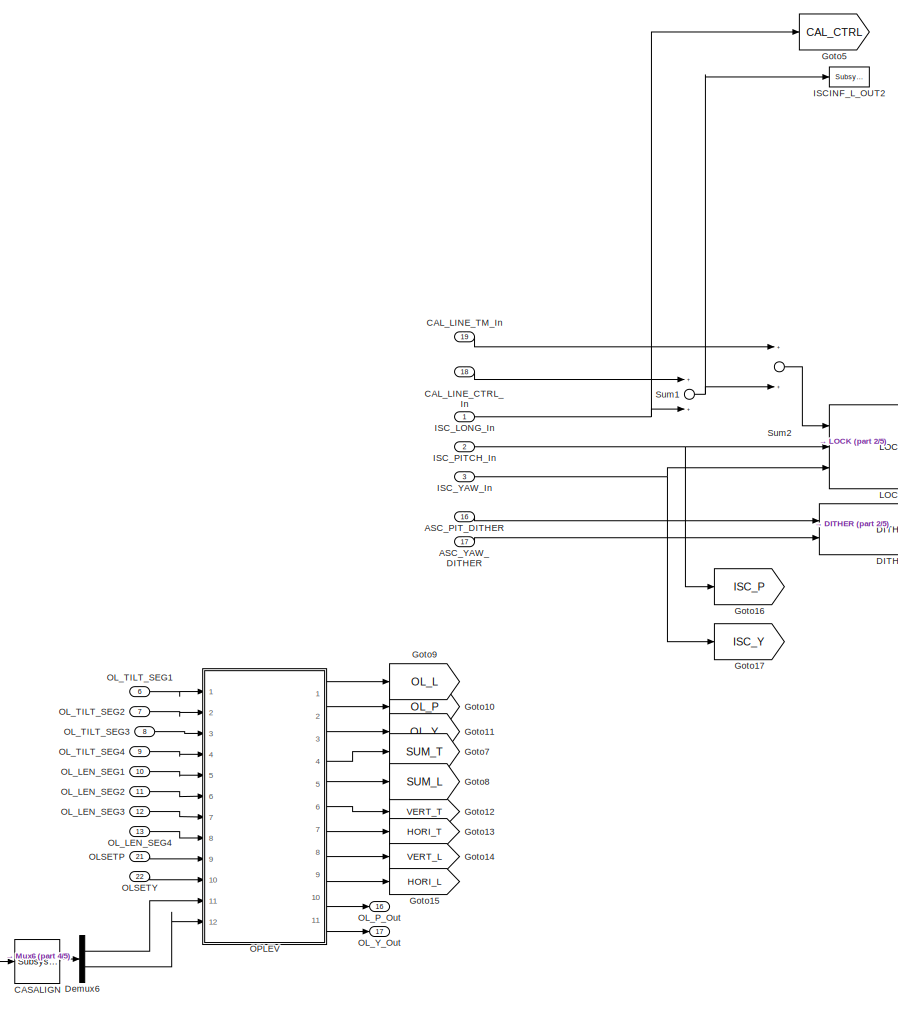
[diagram: PHASE1_TM_NEW_shutdown - part 1/5, top left region]
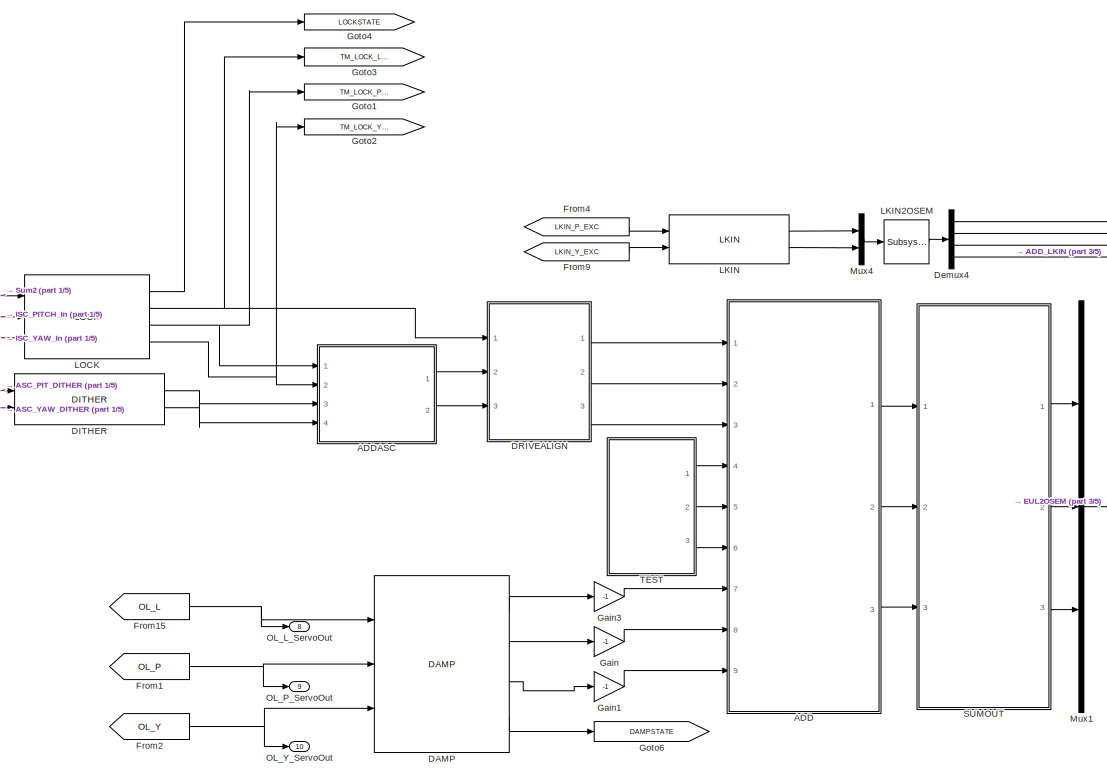
[diagram: PHASE1_TM_NEW_shutdown - part 2/5, top center region]
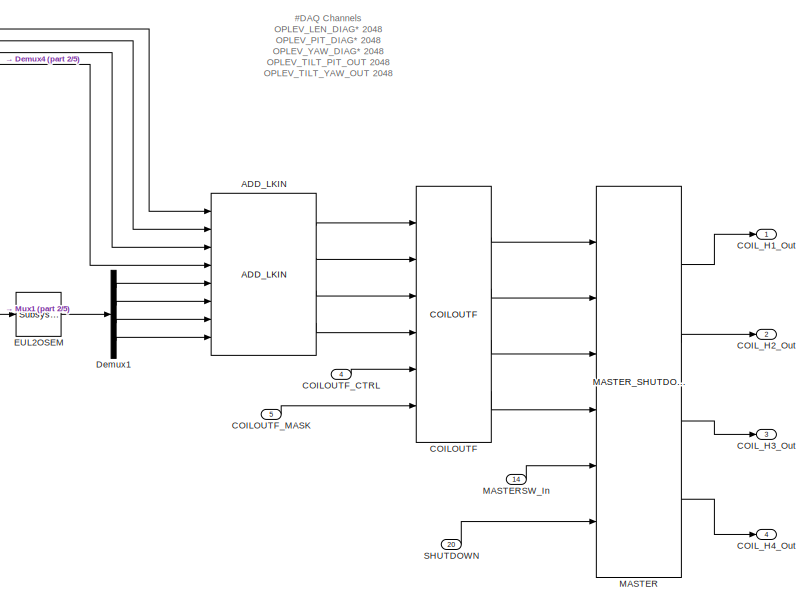
[diagram: PHASE1_TM_NEW_shutdown - part 3/5, middle right region]
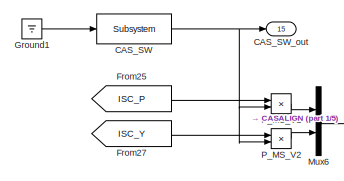
[diagram: PHASE1_TM_NEW_shutdown - part 4/5, middle left region]
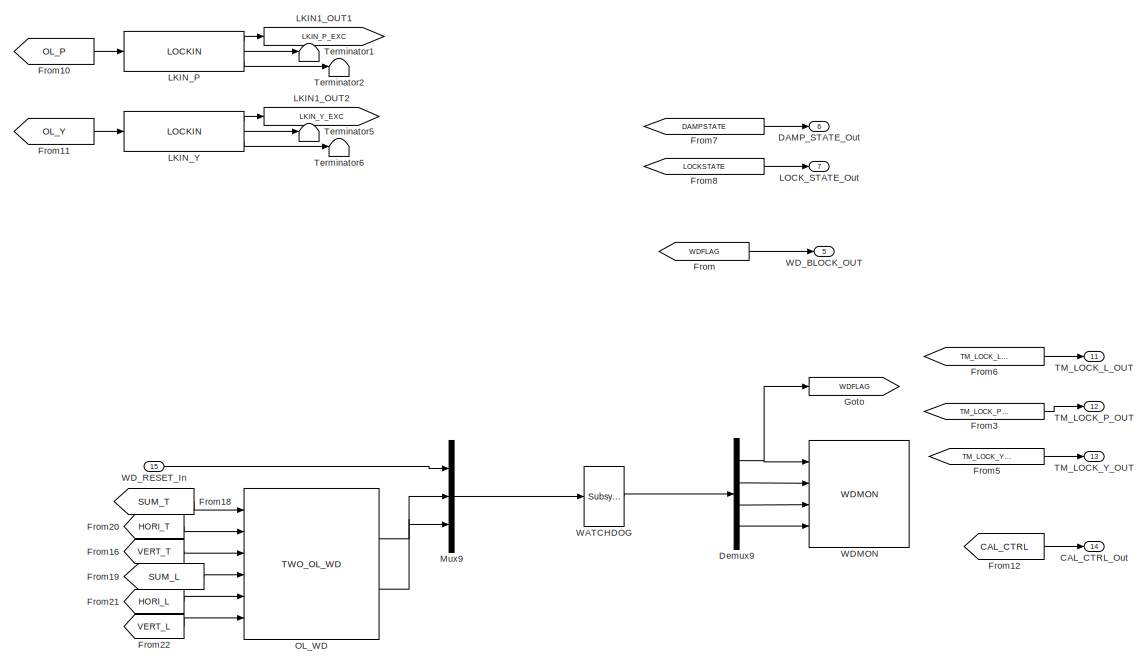
[diagram: PHASE1_TM_NEW_shutdown - part 5/5, bottom right region]
BLOCK [SubSystem] PHASE1_TM_NEW_shutdown
  Ports = [22, 17]
  RequestExecContextInheritance = off
  SID = 1180
  Variant = off
BLOCK [SubSystem] PHASE1_TM_NEW_shutdown/ADD
  Ports = [9, 3]
  RequestExecContextInheritance = off
  SID = 1200
  Variant = off
BLOCK [Inport] PHASE1_TM_NEW_shutdown/ADD/DAMP_L_In
  IconDisplay = Port number
  Port = 7
  SID = 1207
BLOCK [Inport] PHASE1_TM_NEW_shutdown/ADD/DAMP_P_In
  IconDisplay = Port number
  Port = 8
  SID = 1208
BLOCK [Inport] PHASE1_TM_NEW_shutdown/ADD/DAMP_Y_In
  IconDisplay = Port number
  Port = 9
  SID = 1209
BLOCK [Ground] PHASE1_TM_NEW_shutdown/ADD/Ground1
  SID = 1210
BLOCK [Ground] PHASE1_TM_NEW_shutdown/ADD/Ground2
  SID = 1211
BLOCK [Ground] PHASE1_TM_NEW_shutdown/ADD/Ground3
  SID = 1212
BLOCK [Ground] PHASE1_TM_NEW_shutdown/ADD/Ground4
  SID = 1213
BLOCK [Ground] PHASE1_TM_NEW_shutdown/ADD/Ground5
  SID = 1214
BLOCK [Ground] PHASE1_TM_NEW_shutdown/ADD/Ground6
  SID = 1215
BLOCK [Inport] PHASE1_TM_NEW_shutdown/ADD/ISC_L_In
  IconDisplay = Port number
  SID = 1201
BLOCK [Inport] PHASE1_TM_NEW_shutdown/ADD/ISC_P_In
  IconDisplay = Port number
  Port = 2
  SID = 1202
BLOCK [Inport] PHASE1_TM_NEW_shutdown/ADD/ISC_Y_In
  IconDisplay = Port number
  Port = 3
  SID = 1203
BLOCK [Reference] PHASE1_TM_NEW_shutdown/ADD/L  REF=cdsFiltCtrl/IIR FM with control
  AttributesFormatString = %<Tag>
  Ports = [3, 2]
  SID = 1216
  SourceBlock = cdsFiltCtrl/IIR FM with control
  SourceType = SubSystem
  Tag = cdsFiltCtrl
BLOCK [Outport] PHASE1_TM_NEW_shutdown/ADD/LONG Main_Out
  IconDisplay = Port number
  SID = 1225
BLOCK [Reference] PHASE1_TM_NEW_shutdown/ADD/P  REF=cdsFiltCtrl/IIR FM with control
  AttributesFormatString = %<Tag>
  Ports = [3, 2]
  SID = 1217
  SourceBlock = cdsFiltCtrl/IIR FM with control
  SourceType = SubSystem
  Tag = cdsFiltCtrl
BLOCK [Outport] PHASE1_TM_NEW_shutdown/ADD/PITCH_Main_Out
  IconDisplay = Port number
  Port = 2
  SID = 1226
BLOCK [Sum] PHASE1_TM_NEW_shutdown/ADD/Sum
  InputSameDT = off
  Inputs = +++
  OutDataTypeStr = Inherit: Inherit via internal rule
  Ports = [3, 1]
  SID = 1218
  SaturateOnIntegerOverflow = off
BLOCK [Sum] PHASE1_TM_NEW_shutdown/ADD/Sum3
  InputSameDT = off
  Inputs = +++
  OutDataTypeStr = Inherit: Inherit via internal rule
  Ports = [3, 1]
  SID = 1219
  SaturateOnIntegerOverflow = off
BLOCK [Sum] PHASE1_TM_NEW_shutdown/ADD/Sum4
  InputSameDT = off
  Inputs = +++
  OutDataTypeStr = Inherit: Inherit via internal rule
  Ports = [3, 1]
  SID = 1220
  SaturateOnIntegerOverflow = off
BLOCK [Inport] PHASE1_TM_NEW_shutdown/ADD/TEST_L_In
  IconDisplay = Port number
  Port = 4
  SID = 1204
BLOCK [Inport] PHASE1_TM_NEW_shutdown/ADD/TEST_P_In
  IconDisplay = Port number
  Port = 5
  SID = 1205
BLOCK [Inport] PHASE1_TM_NEW_shutdown/ADD/TEST_Y_In
  IconDisplay = Port number
  Port = 6
  SID = 1206
BLOCK [Terminator] PHASE1_TM_NEW_shutdown/ADD/Terminator1
  SID = 1221
BLOCK [Terminator] PHASE1_TM_NEW_shutdown/ADD/Terminator2
  SID = 1222
BLOCK [Terminator] PHASE1_TM_NEW_shutdown/ADD/Terminator3
  SID = 1223
BLOCK [Reference] PHASE1_TM_NEW_shutdown/ADD/Y  REF=cdsFiltCtrl/IIR FM with control
  AttributesFormatString = %<Tag>
  Ports = [3, 2]
  SID = 1224
  SourceBlock = cdsFiltCtrl/IIR FM with control
  SourceType = SubSystem
  Tag = cdsFiltCtrl
BLOCK [Outport] PHASE1_TM_NEW_shutdown/ADD/YAW_Main_Out
  IconDisplay = Port number
  Port = 3
  SID = 1227
BLOCK [SubSystem] PHASE1_TM_NEW_shutdown/ADDASC
  Ports = [4, 2]
  RequestExecContextInheritance = off
  SID = 1228
  Variant = off
BLOCK [Inport] PHASE1_TM_NEW_shutdown/ADDASC/DITHER_P_In
  IconDisplay = Port number
  Port = 3
  SID = 1231
BLOCK [Inport] PHASE1_TM_NEW_shutdown/ADDASC/DITHER_Y_In
  IconDisplay = Port number
  Port = 4
  SID = 1232
BLOCK [Inport] PHASE1_TM_NEW_shutdown/ADDASC/ISC_P_In
  IconDisplay = Port number
  SID = 1229
BLOCK [Inport] PHASE1_TM_NEW_shutdown/ADDASC/ISC_Y_In
  IconDisplay = Port number
  Port = 2
  SID = 1230
BLOCK [Outport] PHASE1_TM_NEW_shutdown/ADDASC/PITCH_Out
  IconDisplay = Port number
  SID = 1235
BLOCK [Sum] PHASE1_TM_NEW_shutdown/ADDASC/Sum3
  InputSameDT = off
  OutDataTypeStr = Inherit: Inherit via internal rule
  Ports = [2, 1]
  SID = 1233
  SaturateOnIntegerOverflow = off
BLOCK [Sum] PHASE1_TM_NEW_shutdown/ADDASC/Sum4
  InputSameDT = off
  OutDataTypeStr = Inherit: Inherit via internal rule
  Ports = [2, 1]
  SID = 1234
  SaturateOnIntegerOverflow = off
BLOCK [Outport] PHASE1_TM_NEW_shutdown/ADDASC/YAW_Out
  IconDisplay = Port number
  Port = 2
  SID = 1236
BLOCK [Reference] PHASE1_TM_NEW_shutdown/ADD_LKIN  REF=VIS_LIB/ADD_LKIN
  Ports = [8, 4]
  SID = 1237
  SourceBlock = VIS_LIB/ADD_LKIN
  SourceType = SubSystem
BLOCK [Inport] PHASE1_TM_NEW_shutdown/ASC_PIT_DITHER
  IconDisplay = Port number
  Port = 16
  SID = 1196
BLOCK [Inport] PHASE1_TM_NEW_shutdown/ASC_YAW_DITHER
  IconDisplay = Port number
  Port = 17
  SID = 1197
BLOCK [Outport] PHASE1_TM_NEW_shutdown/CAL_CTRL_Out
  IconDisplay = Port number
  Port = 14
  SID = 1436
BLOCK [Inport] PHASE1_TM_NEW_shutdown/CAL_LINE_CTRL_In
  IconDisplay = Port number
  Port = 18
  SID = 1198
BLOCK [Inport] PHASE1_TM_NEW_shutdown/CAL_LINE_TM_In
  IconDisplay = Port number
  Port = 19
  SID = 1199
BLOCK [Reference] PHASE1_TM_NEW_shutdown/CASALIGN  REF=cdsMuxMatrix/Subsystem
  AttributesFormatString = %<Tag>
  Description = Any size matrix. Inputs and outputs must be connected using Mux and Demux parts.
  Ports = [1, 1]
  SID = 2766
  SourceBlock = cdsMuxMatrix/Subsystem
  SourceType = SubSystem
  Tag = cdsMuxMatrix
BLOCK [Reference] PHASE1_TM_NEW_shutdown/CAS_SW  REF=cdsEpicsBinIn/Subsystem
  AttributesFormatString = %<Tag>
  Description = Purpose:                                                                            \nCreate an EPICS binary (0 or 1) input channel to the FE realtime controls.          \n                                                                                    \nOperation:                                                                          \nOutputs value from an EPICS ai record. Value is binary i...<+252ch>
  Ports = [1, 1]
  SID = 2767
  SourceBlock = cdsEpicsBinIn/Subsystem
  SourceType = SubSystem
  Tag = cdsEpicsBinIn
BLOCK [Outport] PHASE1_TM_NEW_shutdown/CAS_SW_out
  IconDisplay = Port number
  Port = 15
  SID = 2775
BLOCK [Reference] PHASE1_TM_NEW_shutdown/COILOUTF  REF=FOUROSEM_COILOUTF_MASTER/COILOUTF
  Ports = [6, 4]
  SID = 1238
  SourceBlock = FOUROSEM_COILOUTF_MASTER/COILOUTF
  SourceType = SubSystem
BLOCK [Inport] PHASE1_TM_NEW_shutdown/COILOUTF_CTRL
  IconDisplay = Port number
  Port = 4
  SID = 1184
BLOCK [Inport] PHASE1_TM_NEW_shutdown/COILOUTF_MASK
  IconDisplay = Port number
  Port = 5
  SID = 1185
BLOCK [Outport] PHASE1_TM_NEW_shutdown/COIL_H1_Out
  IconDisplay = Port number
  SID = 1423
BLOCK [Outport] PHASE1_TM_NEW_shutdown/COIL_H2_Out
  IconDisplay = Port number
  Port = 2
  SID = 1424
BLOCK [Outport] PHASE1_TM_NEW_shutdown/COIL_H3_Out
  IconDisplay = Port number
  Port = 3
  SID = 1425
BLOCK [Outport] PHASE1_TM_NEW_shutdown/COIL_H4_Out
  IconDisplay = Port number
  Port = 4
  SID = 1426
BLOCK [Reference] PHASE1_TM_NEW_shutdown/DAMP  REF=VIS_LIB/DAMP
  Ports = [3, 4]
  SID = 1239
  SourceBlock = VIS_LIB/DAMP
  SourceType = SubSystem
BLOCK [Outport] PHASE1_TM_NEW_shutdown/DAMP_STATE_Out
  IconDisplay = Port number
  Port = 6
  SID = 1428
BLOCK [Reference] PHASE1_TM_NEW_shutdown/DITHER  REF=VIS_LIB/DITHER
  Ports = [2, 2]
  SID = 1240
  SourceBlock = VIS_LIB/DITHER
  SourceType = SubSystem
BLOCK [SubSystem] PHASE1_TM_NEW_shutdown/DRIVEALIGN
  Ports = [3, 3]
  RequestExecContextInheritance = off
  SID = 1241
  Variant = off
BLOCK [Reference] PHASE1_TM_NEW_shutdown/DRIVEALIGN/L2L  REF=cdsFilt/Subsystem
  AttributesFormatString = %<Tag>
  Ports = [1, 1]
  SID = 1245
  SourceBlock = cdsFilt/Subsystem
  SourceType = SubSystem
  Tag = cdsFilt
BLOCK [Reference] PHASE1_TM_NEW_shutdown/DRIVEALIGN/L2P  REF=cdsFilt/Subsystem
  AttributesFormatString = %<Tag>
  Ports = [1, 1]
  SID = 1246
  SourceBlock = cdsFilt/Subsystem
  SourceType = SubSystem
  Tag = cdsFilt
BLOCK [Reference] PHASE1_TM_NEW_shutdown/DRIVEALIGN/L2Y  REF=cdsFilt/Subsystem
  AttributesFormatString = %<Tag>
  Ports = [1, 1]
  SID = 1247
  SourceBlock = cdsFilt/Subsystem
  SourceType = SubSystem
  Tag = cdsFilt
BLOCK [Inport] PHASE1_TM_NEW_shutdown/DRIVEALIGN/LONG_In
  IconDisplay = Port number
  SID = 1242
BLOCK [Outport] PHASE1_TM_NEW_shutdown/DRIVEALIGN/LONG_Out
  IconDisplay = Port number
  SID = 1269
BLOCK [Reference] PHASE1_TM_NEW_shutdown/DRIVEALIGN/L_IN  REF=cdsTP/Subsystem
  AttributesFormatString = %<Tag>
  Ports = [1]
  SID = 1248
  SourceBlock = cdsTP/Subsystem
  SourceType = SubSystem
  Tag = Test Point
BLOCK [Reference] PHASE1_TM_NEW_shutdown/DRIVEALIGN/L_INMON  REF=cdsEpicsOut/Subsystem
  AttributesFormatString = %<Tag>
  Ports = [1, 1]
  SID = 1249
  SourceBlock = cdsEpicsOut/Subsystem
  SourceType = SubSystem
  Tag = cdsEpicsOutput
BLOCK [Reference] PHASE1_TM_NEW_shutdown/DRIVEALIGN/L_OUT  REF=cdsTP/Subsystem
  AttributesFormatString = %<Tag>
  Ports = [1]
  SID = 1250
  SourceBlock = cdsTP/Subsystem
  SourceType = SubSystem
  Tag = Test Point
BLOCK [Reference] PHASE1_TM_NEW_shutdown/DRIVEALIGN/L_OUTMON  REF=cdsEpicsOut/Subsystem
  AttributesFormatString = %<Tag>
  Ports = [1, 1]
  SID = 1251
  SourceBlock = cdsEpicsOut/Subsystem
  SourceType = SubSystem
  Tag = cdsEpicsOutput
BLOCK [Reference] PHASE1_TM_NEW_shutdown/DRIVEALIGN/P2L  REF=cdsFilt/Subsystem
  AttributesFormatString = %<Tag>
  Ports = [1, 1]
  SID = 1252
  SourceBlock = cdsFilt/Subsystem
  SourceType = SubSystem
  Tag = cdsFilt
BLOCK [Reference] PHASE1_TM_NEW_shutdown/DRIVEALIGN/P2P  REF=cdsFilt/Subsystem
  AttributesFormatString = %<Tag>
  Ports = [1, 1]
  SID = 1253
  SourceBlock = cdsFilt/Subsystem
  SourceType = SubSystem
  Tag = cdsFilt
BLOCK [Reference] PHASE1_TM_NEW_shutdown/DRIVEALIGN/P2Y  REF=cdsFilt/Subsystem
  AttributesFormatString = %<Tag>
  Ports = [1, 1]
  SID = 1254
  SourceBlock = cdsFilt/Subsystem
  SourceType = SubSystem
  Tag = cdsFilt
BLOCK [Inport] PHASE1_TM_NEW_shutdown/DRIVEALIGN/PITCH_In
  IconDisplay = Port number
  Port = 2
  SID = 1243
BLOCK [Outport] PHASE1_TM_NEW_shutdown/DRIVEALIGN/PITCH_Out
  IconDisplay = Port number
  Port = 2
  SID = 1270
BLOCK [Reference] PHASE1_TM_NEW_shutdown/DRIVEALIGN/P_IN  REF=cdsTP/Subsystem
  AttributesFormatString = %<Tag>
  Ports = [1]
  SID = 1255
  SourceBlock = cdsTP/Subsystem
  SourceType = SubSystem
  Tag = Test Point
BLOCK [Reference] PHASE1_TM_NEW_shutdown/DRIVEALIGN/P_INMON  REF=cdsEpicsOut/Subsystem
  AttributesFormatString = %<Tag>
  Ports = [1, 1]
  SID = 1256
  SourceBlock = cdsEpicsOut/Subsystem
  SourceType = SubSystem
  Tag = cdsEpicsOutput
BLOCK [Reference] PHASE1_TM_NEW_shutdown/DRIVEALIGN/P_OUT  REF=cdsTP/Subsystem
  AttributesFormatString = %<Tag>
  Ports = [1]
  SID = 1257
  SourceBlock = cdsTP/Subsystem
  SourceType = SubSystem
  Tag = Test Point
BLOCK [Reference] PHASE1_TM_NEW_shutdown/DRIVEALIGN/P_OUTMON  REF=cdsEpicsOut/Subsystem
  AttributesFormatString = %<Tag>
  Ports = [1, 1]
  SID = 1258
  SourceBlock = cdsEpicsOut/Subsystem
  SourceType = SubSystem
  Tag = cdsEpicsOutput
BLOCK [Sum] PHASE1_TM_NEW_shutdown/DRIVEALIGN/Sum
  InputSameDT = off
  Inputs = +++
  OutDataTypeStr = Inherit: Inherit via internal rule
  Ports = [3, 1]
  SID = 1259
  SaturateOnIntegerOverflow = off
BLOCK [Sum] PHASE1_TM_NEW_shutdown/DRIVEALIGN/Sum1
  InputSameDT = off
  Inputs = +++
  OutDataTypeStr = Inherit: Inherit via internal rule
  Ports = [3, 1]
  SID = 1260
  SaturateOnIntegerOverflow = off
BLOCK [Sum] PHASE1_TM_NEW_shutdown/DRIVEALIGN/Sum2
  InputSameDT = off
  Inputs = +++
  OutDataTypeStr = Inherit: Inherit via internal rule
  Ports = [3, 1]
  SID = 1261
  SaturateOnIntegerOverflow = off
BLOCK [Reference] PHASE1_TM_NEW_shutdown/DRIVEALIGN/Y2L  REF=cdsFilt/Subsystem
  AttributesFormatString = %<Tag>
  Ports = [1, 1]
  SID = 1262
  SourceBlock = cdsFilt/Subsystem
  SourceType = SubSystem
  Tag = cdsFilt
BLOCK [Reference] PHASE1_TM_NEW_shutdown/DRIVEALIGN/Y2P  REF=cdsFilt/Subsystem
  AttributesFormatString = %<Tag>
  Ports = [1, 1]
  SID = 1263
  SourceBlock = cdsFilt/Subsystem
  SourceType = SubSystem
  Tag = cdsFilt
BLOCK [Reference] PHASE1_TM_NEW_shutdown/DRIVEALIGN/Y2Y  REF=cdsFilt/Subsystem
  AttributesFormatString = %<Tag>
  Ports = [1, 1]
  SID = 1264
  SourceBlock = cdsFilt/Subsystem
  SourceType = SubSystem
  Tag = cdsFilt
BLOCK [Inport] PHASE1_TM_NEW_shutdown/DRIVEALIGN/YAW_In
  IconDisplay = Port number
  Port = 3
  SID = 1244
BLOCK [Outport] PHASE1_TM_NEW_shutdown/DRIVEALIGN/YAW_Out
  IconDisplay = Port number
  Port = 3
  SID = 1271
BLOCK [Reference] PHASE1_TM_NEW_shutdown/DRIVEALIGN/Y_IN  REF=cdsTP/Subsystem
  AttributesFormatString = %<Tag>
  Ports = [1]
  SID = 1265
  SourceBlock = cdsTP/Subsystem
  SourceType = SubSystem
  Tag = Test Point
BLOCK [Reference] PHASE1_TM_NEW_shutdown/DRIVEALIGN/Y_INMON  REF=cdsEpicsOut/Subsystem
  AttributesFormatString = %<Tag>
  Ports = [1, 1]
  SID = 1266
  SourceBlock = cdsEpicsOut/Subsystem
  SourceType = SubSystem
  Tag = cdsEpicsOutput
BLOCK [Reference] PHASE1_TM_NEW_shutdown/DRIVEALIGN/Y_OUT  REF=cdsTP/Subsystem
  AttributesFormatString = %<Tag>
  Ports = [1]
  SID = 1267
  SourceBlock = cdsTP/Subsystem
  SourceType = SubSystem
  Tag = Test Point
BLOCK [Reference] PHASE1_TM_NEW_shutdown/DRIVEALIGN/Y_OUTMON  REF=cdsEpicsOut/Subsystem
  AttributesFormatString = %<Tag>
  Ports = [1, 1]
  SID = 1268
  SourceBlock = cdsEpicsOut/Subsystem
  SourceType = SubSystem
  Tag = cdsEpicsOutput
BLOCK [Demux] PHASE1_TM_NEW_shutdown/Demux1
  DisplayOption = bar
  Ports = [1, 4]
  SID = 1273
BLOCK [Demux] PHASE1_TM_NEW_shutdown/Demux4
  DisplayOption = bar
  Ports = [1, 4]
  SID = 1274
BLOCK [Demux] PHASE1_TM_NEW_shutdown/Demux6
  DisplayOption = bar
  Outputs = 2
  Ports = [1, 2]
  SID = 2768
BLOCK [Demux] PHASE1_TM_NEW_shutdown/Demux9
  DisplayOption = bar
  Ports = [1, 4]
  SID = 1275
BLOCK [Reference] PHASE1_TM_NEW_shutdown/EUL2OSEM  REF=cdsMuxMatrix/Subsystem
  AttributesFormatString = %<Tag>
  Description = Any size matrix. Inputs and outputs must be connected using Mux and Demux parts.
  Ports = [1, 1]
  SID = 1276
  SourceBlock = cdsMuxMatrix/Subsystem
  SourceType = SubSystem
  Tag = cdsMuxMatrix
BLOCK [From] PHASE1_TM_NEW_shutdown/From
  CloseFcn = tagdialog Close
  GotoTag = WDFLAG
  SID = 1277
BLOCK [From] PHASE1_TM_NEW_shutdown/From1
  CloseFcn = tagdialog Close
  GotoTag = OL_P
  SID = 1278
BLOCK [From] PHASE1_TM_NEW_shutdown/From10
  CloseFcn = tagdialog Close
  GotoTag = OL_P
  SID = 1279
BLOCK [From] PHASE1_TM_NEW_shutdown/From11
  CloseFcn = tagdialog Close
  GotoTag = OL_Y
  SID = 1280
BLOCK [From] PHASE1_TM_NEW_shutdown/From12
  CloseFcn = tagdialog Close
  GotoTag = CAL_CTRL
  SID = 1281
BLOCK [From] PHASE1_TM_NEW_shutdown/From15
  CloseFcn = tagdialog Close
  GotoTag = OL_L
  SID = 1284
BLOCK [From] PHASE1_TM_NEW_shutdown/From16
  GotoTag = VERT_T
  SID = 1446
BLOCK [From] PHASE1_TM_NEW_shutdown/From18
  CloseFcn = tagdialog Close
  GotoTag = SUM_T
  SID = 1286
BLOCK [From] PHASE1_TM_NEW_shutdown/From19
  CloseFcn = tagdialog Close
  GotoTag = SUM_L
  SID = 1287
BLOCK [From] PHASE1_TM_NEW_shutdown/From2
  CloseFcn = tagdialog Close
  GotoTag = OL_Y
  SID = 1288
BLOCK [From] PHASE1_TM_NEW_shutdown/From20
  GotoTag = HORI_T
  SID = 1451
BLOCK [From] PHASE1_TM_NEW_shutdown/From21
  GotoTag = HORI_L
  SID = 1452
BLOCK [From] PHASE1_TM_NEW_shutdown/From22
  GotoTag = VERT_L
  SID = 1453
BLOCK [From] PHASE1_TM_NEW_shutdown/From25
  CloseFcn = tagdialog Close
  GotoTag = ISC_P
  SID = 2769
BLOCK [From] PHASE1_TM_NEW_shutdown/From27
  CloseFcn = tagdialog Close
  GotoTag = ISC_Y
  SID = 2770
BLOCK [From] PHASE1_TM_NEW_shutdown/From3
  CloseFcn = tagdialog Close
  GotoTag = TM_LOCK_P_OUT
  SID = 1289
BLOCK [From] PHASE1_TM_NEW_shutdown/From4
  CloseFcn = tagdialog Close
  GotoTag = LKIN_P_EXC
  SID = 1290
BLOCK [From] PHASE1_TM_NEW_shutdown/From5
  CloseFcn = tagdialog Close
  GotoTag = TM_LOCK_Y_OUT
  SID = 1291
BLOCK [From] PHASE1_TM_NEW_shutdown/From6
  CloseFcn = tagdialog Close
  GotoTag = TM_LOCK_L_OUT
  SID = 1292
BLOCK [From] PHASE1_TM_NEW_shutdown/From7
  CloseFcn = tagdialog Close
  GotoTag = DAMPSTATE
  SID = 1293
BLOCK [From] PHASE1_TM_NEW_shutdown/From8
  CloseFcn = tagdialog Close
  GotoTag = LOCKSTATE
  SID = 1294
BLOCK [From] PHASE1_TM_NEW_shutdown/From9
  CloseFcn = tagdialog Close
  GotoTag = LKIN_Y_EXC
  SID = 1295
BLOCK [Gain] PHASE1_TM_NEW_shutdown/Gain
  Gain = -1
  OutDataTypeStr = Inherit: Inherit via internal rule
  ParamDataTypeStr = Inherit: Inherit via internal rule
  SID = 1296
  SaturateOnIntegerOverflow = off
BLOCK [Gain] PHASE1_TM_NEW_shutdown/Gain1
  Gain = -1
  OutDataTypeStr = Inherit: Inherit via internal rule
  ParamDataTypeStr = Inherit: Inherit via internal rule
  SID = 1297
  SaturateOnIntegerOverflow = off
BLOCK [Gain] PHASE1_TM_NEW_shutdown/Gain3
  Gain = -1
  OutDataTypeStr = Inherit: Inherit via internal rule
  ParamDataTypeStr = Inherit: Inherit via internal rule
  SID = 1298
  SaturateOnIntegerOverflow = off
BLOCK [Goto] PHASE1_TM_NEW_shutdown/Goto
  GotoTag = WDFLAG
  SID = 1299
BLOCK [Goto] PHASE1_TM_NEW_shutdown/Goto1
  GotoTag = TM_LOCK_P_OUT
  SID = 1300
BLOCK [Goto] PHASE1_TM_NEW_shutdown/Goto10
  GotoTag = OL_P
  SID = 1301
BLOCK [Goto] PHASE1_TM_NEW_shutdown/Goto11
  GotoTag = OL_Y
  SID = 1302
BLOCK [Goto] PHASE1_TM_NEW_shutdown/Goto12
  GotoTag = VERT_T
  SID = 1444
BLOCK [Goto] PHASE1_TM_NEW_shutdown/Goto13
  GotoTag = HORI_T
  SID = 1447
BLOCK [Goto] PHASE1_TM_NEW_shutdown/Goto14
  GotoTag = VERT_L
  SID = 1448
BLOCK [Goto] PHASE1_TM_NEW_shutdown/Goto15
  GotoTag = HORI_L
  SID = 1449
BLOCK [Goto] PHASE1_TM_NEW_shutdown/Goto16
  GotoTag = ISC_P
  SID = 2776
BLOCK [Goto] PHASE1_TM_NEW_shutdown/Goto17
  GotoTag = ISC_Y
  SID = 2777
BLOCK [Goto] PHASE1_TM_NEW_shutdown/Goto2
  GotoTag = TM_LOCK_Y_OUT
  SID = 1303
BLOCK [Goto] PHASE1_TM_NEW_shutdown/Goto3
  GotoTag = TM_LOCK_L_OUT
  SID = 1304
BLOCK [Goto] PHASE1_TM_NEW_shutdown/Goto4
  GotoTag = LOCKSTATE
  SID = 1305
BLOCK [Goto] PHASE1_TM_NEW_shutdown/Goto5
  GotoTag = CAL_CTRL
  SID = 1306
BLOCK [Goto] PHASE1_TM_NEW_shutdown/Goto6
  GotoTag = DAMPSTATE
  SID = 1307
BLOCK [Goto] PHASE1_TM_NEW_shutdown/Goto7
  GotoTag = SUM_T
  SID = 1308
BLOCK [Goto] PHASE1_TM_NEW_shutdown/Goto8
  GotoTag = SUM_L
  SID = 1309
BLOCK [Goto] PHASE1_TM_NEW_shutdown/Goto9
  GotoTag = OL_L
  SID = 1310
BLOCK [Ground] PHASE1_TM_NEW_shutdown/Ground1
  SID = 2771
BLOCK [Reference] PHASE1_TM_NEW_shutdown/ISCINF_L_OUT2  REF=cdsTP/Subsystem
  AttributesFormatString = %<Tag>
  Ports = [1]
  SID = 1312
  SourceBlock = cdsTP/Subsystem
  SourceType = SubSystem
  Tag = Test Point
BLOCK [Inport] PHASE1_TM_NEW_shutdown/ISC_LONG_In
  IconDisplay = Port number
  SID = 1181
BLOCK [Inport] PHASE1_TM_NEW_shutdown/ISC_PITCH_In
  IconDisplay = Port number
  Port = 2
  SID = 1182
BLOCK [Inport] PHASE1_TM_NEW_shutdown/ISC_YAW_In
  IconDisplay = Port number
  Port = 3
  SID = 1183
BLOCK [Reference] PHASE1_TM_NEW_shutdown/LKIN  REF=VIS_LIB/LKIN
  Ports = [2, 2]
  SID = 1313
  SourceBlock = VIS_LIB/LKIN
  SourceType = SubSystem
BLOCK [Goto] PHASE1_TM_NEW_shutdown/LKIN1_OUT1
  GotoTag = LKIN_P_EXC
  SID = 1314
BLOCK [Goto] PHASE1_TM_NEW_shutdown/LKIN1_OUT2
  GotoTag = LKIN_Y_EXC
  SID = 1315
BLOCK [Reference] PHASE1_TM_NEW_shutdown/LKIN2OSEM  REF=cdsMuxMatrix/Subsystem
  AttributesFormatString = %<Tag>
  Description = Any size matrix. Inputs and outputs must be connected using Mux and Demux parts.
  Ports = [1, 1]
  SID = 1316
  SourceBlock = cdsMuxMatrix/Subsystem
  SourceType = SubSystem
  Tag = cdsMuxMatrix
BLOCK [Reference] PHASE1_TM_NEW_shutdown/LKIN_P  REF=lockin/LOCKIN
  AttributesFormatString = %<Tag>
  Description = ADL=LOCKIN.adl
  Ports = [1, 3]
  SID = 1317
  SourceBlock = lockin/LOCKIN
  SourceType = SubSystem
BLOCK [Reference] PHASE1_TM_NEW_shutdown/LKIN_Y  REF=lockin/LOCKIN
  AttributesFormatString = %<Tag>
  Description = ADL=LOCKIN.adl
  Ports = [1, 3]
  SID = 1318
  SourceBlock = lockin/LOCKIN
  SourceType = SubSystem
BLOCK [Reference] PHASE1_TM_NEW_shutdown/LOCK  REF=VIS_LIB/LOCK
  Ports = [3, 4]
  SID = 1319
  SourceBlock = VIS_LIB/LOCK
  SourceType = SubSystem
BLOCK [Outport] PHASE1_TM_NEW_shutdown/LOCK_STATE_Out
  IconDisplay = Port number
  Port = 7
  SID = 1429
BLOCK [Reference] PHASE1_TM_NEW_shutdown/MASTER  REF=VIS_LIB/MASTER_SHUTDOWN
  Ports = [6, 4]
  SID = 1439
  SourceBlock = VIS_LIB/MASTER_SHUTDOWN
  SourceType = SubSystem
BLOCK [Inport] PHASE1_TM_NEW_shutdown/MASTERSW_In
  IconDisplay = Port number
  Port = 14
  SID = 1194
BLOCK [Mux] PHASE1_TM_NEW_shutdown/Mux1
  DisplayOption = bar
  Inputs = 3
  Ports = [3, 1]
  SID = 1321
BLOCK [Mux] PHASE1_TM_NEW_shutdown/Mux4
  DisplayOption = bar
  Inputs = 2
  Ports = [2, 1]
  SID = 1322
BLOCK [Mux] PHASE1_TM_NEW_shutdown/Mux6
  DisplayOption = bar
  Inputs = 2
  Ports = [2, 1]
  SID = 2772
BLOCK [Mux] PHASE1_TM_NEW_shutdown/Mux9
  DisplayOption = bar
  Inputs = 3
  Ports = [3, 1]
  SID = 1323
BLOCK [Inport] PHASE1_TM_NEW_shutdown/OLSETP
  IconDisplay = Port number
  Port = 21
  SID = 3132
BLOCK [Inport] PHASE1_TM_NEW_shutdown/OLSETY
  IconDisplay = Port number
  Port = 22
  SID = 3133
BLOCK [Inport] PHASE1_TM_NEW_shutdown/OL_LEN_SEG1
  IconDisplay = Port number
  Port = 10
  SID = 1190
BLOCK [Inport] PHASE1_TM_NEW_shutdown/OL_LEN_SEG2
  IconDisplay = Port number
  Port = 11
  SID = 1191
BLOCK [Inport] PHASE1_TM_NEW_shutdown/OL_LEN_SEG3
  IconDisplay = Port number
  Port = 12
  SID = 1192
BLOCK [Inport] PHASE1_TM_NEW_shutdown/OL_LEN_SEG4
  IconDisplay = Port number
  Port = 13
  SID = 1193
BLOCK [Outport] PHASE1_TM_NEW_shutdown/OL_L_ServoOut
  IconDisplay = Port number
  Port = 8
  SID = 1430
BLOCK [Outport] PHASE1_TM_NEW_shutdown/OL_P_Out
  IconDisplay = Port number
  Port = 16
  SID = 3136
BLOCK [Outport] PHASE1_TM_NEW_shutdown/OL_P_ServoOut
  IconDisplay = Port number
  Port = 9
  SID = 1431
BLOCK [Inport] PHASE1_TM_NEW_shutdown/OL_TILT_SEG1
  IconDisplay = Port number
  Port = 6
  SID = 1186
BLOCK [Inport] PHASE1_TM_NEW_shutdown/OL_TILT_SEG2
  IconDisplay = Port number
  Port = 7
  SID = 1187
BLOCK [Inport] PHASE1_TM_NEW_shutdown/OL_TILT_SEG3
  IconDisplay = Port number
  Port = 8
  SID = 1188
BLOCK [Inport] PHASE1_TM_NEW_shutdown/OL_TILT_SEG4
  IconDisplay = Port number
  Port = 9
  SID = 1189
BLOCK [Reference] PHASE1_TM_NEW_shutdown/OL_WD  REF=OPLEV_MASTER/TWO_OL_WD
  Ports = [6, 2]
  SID = 1450
  SourceBlock = OPLEV_MASTER/TWO_OL_WD
  SourceType = SubSystem
BLOCK [Outport] PHASE1_TM_NEW_shutdown/OL_Y_Out
  IconDisplay = Port number
  Port = 17
  SID = 3137
BLOCK [Outport] PHASE1_TM_NEW_shutdown/OL_Y_ServoOut
  IconDisplay = Port number
  Port = 10
  SID = 1432
BLOCK [SubSystem] PHASE1_TM_NEW_shutdown/OPLEV
  Ports = [12, 11]
  RequestExecContextInheritance = off
  SID = 3052
  Variant = off
BLOCK [Reference] PHASE1_TM_NEW_shutdown/OPLEV/BLRMS_L  REF=VIS_LIB/OPLEV_BLRMS_DOF
  Ports = [1]
  SID = 3140
  SourceBlock = VIS_LIB/OPLEV_BLRMS_DOF
  SourceType = SubSystem
BLOCK [Reference] PHASE1_TM_NEW_shutdown/OPLEV/BLRMS_P  REF=VIS_LIB/OPLEV_BLRMS_DOF
  Ports = [1]
  SID = 3139
  SourceBlock = VIS_LIB/OPLEV_BLRMS_DOF
  SourceType = SubSystem
BLOCK [Reference] PHASE1_TM_NEW_shutdown/OPLEV/BLRMS_Y  REF=VIS_LIB/OPLEV_BLRMS_DOF
  Ports = [1]
  SID = 3138
  SourceBlock = VIS_LIB/OPLEV_BLRMS_DOF
  SourceType = SubSystem
BLOCK [Outport] PHASE1_TM_NEW_shutdown/OPLEV/DIAG_P
  IconDisplay = Port number
  Port = 10
  SID = 3134
BLOCK [Outport] PHASE1_TM_NEW_shutdown/OPLEV/DIAG_Y
  IconDisplay = Port number
  Port = 11
  SID = 3135
BLOCK [Demux] PHASE1_TM_NEW_shutdown/OPLEV/Demux2
  DisplayOption = bar
  Outputs = 3
  Ports = [1, 3]
  SID = 3065
BLOCK [From] PHASE1_TM_NEW_shutdown/OPLEV/From16
  CloseFcn = tagdialog Close
  GotoTag = TILT_V
  SID = 3066
BLOCK [From] PHASE1_TM_NEW_shutdown/OPLEV/From17
  CloseFcn = tagdialog Close
  GotoTag = TILT_H
  SID = 3067
BLOCK [From] PHASE1_TM_NEW_shutdown/OPLEV/From18
  CloseFcn = tagdialog Close
  GotoTag = LEN_V
  SID = 3068
BLOCK [From] PHASE1_TM_NEW_shutdown/OPLEV/From19
  CloseFcn = tagdialog Close
  GotoTag = LEN_H
  SID = 3069
BLOCK [Goto] PHASE1_TM_NEW_shutdown/OPLEV/Goto1
  GotoTag = LEN_V
  SID = 3070
BLOCK [Goto] PHASE1_TM_NEW_shutdown/OPLEV/Goto3
  GotoTag = LEN_H
  SID = 3071
BLOCK [Goto] PHASE1_TM_NEW_shutdown/OPLEV/Goto5
  GotoTag = TILT_V
  SID = 3072
BLOCK [Goto] PHASE1_TM_NEW_shutdown/OPLEV/Goto6
  GotoTag = TILT_H
  SID = 3073
BLOCK [Inport] PHASE1_TM_NEW_shutdown/OPLEV/ISC_P
  IconDisplay = Port number
  Port = 11
  SID = 3063
BLOCK [Inport] PHASE1_TM_NEW_shutdown/OPLEV/ISC_Y
  IconDisplay = Port number
  Port = 12
  SID = 3064
BLOCK [Inport] PHASE1_TM_NEW_shutdown/OPLEV/In1
  IconDisplay = Port number
  SID = 3053
BLOCK [Inport] PHASE1_TM_NEW_shutdown/OPLEV/In2
  IconDisplay = Port number
  Port = 2
  SID = 3054
BLOCK [Inport] PHASE1_TM_NEW_shutdown/OPLEV/In3
  IconDisplay = Port number
  Port = 3
  SID = 3055
BLOCK [Inport] PHASE1_TM_NEW_shutdown/OPLEV/In4
  IconDisplay = Port number
  Port = 4
  SID = 3056
BLOCK [Inport] PHASE1_TM_NEW_shutdown/OPLEV/In5
  IconDisplay = Port number
  Port = 5
  SID = 3057
BLOCK [Inport] PHASE1_TM_NEW_shutdown/OPLEV/In6
  IconDisplay = Port number
  Port = 6
  SID = 3058
BLOCK [Inport] PHASE1_TM_NEW_shutdown/OPLEV/In7
  IconDisplay = Port number
  Port = 7
  SID = 3059
BLOCK [Inport] PHASE1_TM_NEW_shutdown/OPLEV/In8
  IconDisplay = Port number
  Port = 8
  SID = 3060
BLOCK [Reference] PHASE1_TM_NEW_shutdown/OPLEV/LEN  REF=QPD/QPD_WITH_WHITEN_CTRL
  Ports = [4, 7]
  SID = 3074
  SourceBlock = QPD/QPD_WITH_WHITEN_CTRL
  SourceType = SubSystem
BLOCK [Reference] PHASE1_TM_NEW_shutdown/OPLEV/LEN_BLRMS_P  REF=VIS_LIB/OPLEV_BLRMS_DOF
  Ports = [1]
  SID = 3075
  SourceBlock = VIS_LIB/OPLEV_BLRMS_DOF
  SourceType = SubSystem
BLOCK [Reference] PHASE1_TM_NEW_shutdown/OPLEV/LEN_BLRMS_Y  REF=VIS_LIB/OPLEV_BLRMS_DOF
  Ports = [1]
  SID = 3076
  SourceBlock = VIS_LIB/OPLEV_BLRMS_DOF
  SourceType = SubSystem
BLOCK [Reference] PHASE1_TM_NEW_shutdown/OPLEV/LEN_DAMPED  REF=cdsEpicsOut/Subsystem
  AttributesFormatString = %<Tag>
  Ports = [1, 1]
  SID = 3077
  SourceBlock = cdsEpicsOut/Subsystem
  SourceType = SubSystem
  Tag = cdsEpicsOutput
BLOCK [Reference] PHASE1_TM_NEW_shutdown/OPLEV/LEN_DIAG  REF=cdsTP/Subsystem
  AttributesFormatString = %<Tag>
  Ports = [1]
  SID = 3078
  SourceBlock = cdsTP/Subsystem
  SourceType = SubSystem
  Tag = Test Point
BLOCK [Reference] PHASE1_TM_NEW_shutdown/OPLEV/LEN_DIAGMON  REF=cdsEpicsOut/Subsystem
  AttributesFormatString = %<Tag>
  Ports = [1, 1]
  SID = 3079
  SourceBlock = cdsEpicsOut/Subsystem
  SourceType = SubSystem
  Tag = cdsEpicsOutput
BLOCK [Outport] PHASE1_TM_NEW_shutdown/OPLEV/LEN_H
  IconDisplay = Port number
  Port = 9
  SID = 3115
BLOCK [Outport] PHASE1_TM_NEW_shutdown/OPLEV/LEN_V
  IconDisplay = Port number
  Port = 8
  SID = 3114
BLOCK [Mux] PHASE1_TM_NEW_shutdown/OPLEV/Mux2
  DisplayOption = bar
  Ports = [4, 1]
  SID = 3080
BLOCK [Reference] PHASE1_TM_NEW_shutdown/OPLEV/OL2EUL  REF=cdsMuxMatrix/Subsystem
  AttributesFormatString = %<Tag>
  Description = Any size matrix. Inputs and outputs must be connected using Mux and Demux parts.
  Ports = [1, 1]
  SID = 3081
  SourceBlock = cdsMuxMatrix/Subsystem
  SourceType = SubSystem
  Tag = cdsMuxMatrix
BLOCK [Inport] PHASE1_TM_NEW_shutdown/OPLEV/OLSET_P
  IconDisplay = Port number
  Port = 9
  SID = 3061
BLOCK [Inport] PHASE1_TM_NEW_shutdown/OPLEV/OLSET_Y
  IconDisplay = Port number
  Port = 10
  SID = 3062
BLOCK [Outport] PHASE1_TM_NEW_shutdown/OPLEV/OL_L
  IconDisplay = Port number
  SID = 3107
BLOCK [Outport] PHASE1_TM_NEW_shutdown/OPLEV/OL_P
  IconDisplay = Port number
  Port = 2
  SID = 3108
BLOCK [Outport] PHASE1_TM_NEW_shutdown/OPLEV/OL_Y
  IconDisplay = Port number
  Port = 3
  SID = 3109
BLOCK [Reference] PHASE1_TM_NEW_shutdown/OPLEV/PITCH_DAMPED  REF=cdsEpicsOut/Subsystem
  AttributesFormatString = %<Tag>
  Ports = [1, 1]
  SID = 3082
  SourceBlock = cdsEpicsOut/Subsystem
  SourceType = SubSystem
  Tag = cdsEpicsOutput
BLOCK [Reference] PHASE1_TM_NEW_shutdown/OPLEV/PIT_DIAG  REF=cdsTP/Subsystem
  AttributesFormatString = %<Tag>
  Ports = [1]
  SID = 3083
  SourceBlock = cdsTP/Subsystem
  SourceType = SubSystem
  Tag = Test Point
BLOCK [Reference] PHASE1_TM_NEW_shutdown/OPLEV/PIT_DIAGMON  REF=cdsEpicsOut/Subsystem
  AttributesFormatString = %<Tag>
  Ports = [1, 1]
  SID = 3084
  SourceBlock = cdsEpicsOut/Subsystem
  SourceType = SubSystem
  Tag = cdsEpicsOutput
BLOCK [Reference] PHASE1_TM_NEW_shutdown/OPLEV/SERVO_LEN  REF=cdsFilt/Subsystem
  AttributesFormatString = %<Tag>
  Ports = [1, 1]
  SID = 3085
  SourceBlock = cdsFilt/Subsystem
  SourceType = SubSystem
  Tag = cdsFilt
BLOCK [Reference] PHASE1_TM_NEW_shutdown/OPLEV/SERVO_PIT  REF=cdsFilt/Subsystem
  AttributesFormatString = %<Tag>
  Ports = [1, 1]
  SID = 3086
  SourceBlock = cdsFilt/Subsystem
  SourceType = SubSystem
  Tag = cdsFilt
BLOCK [Reference] PHASE1_TM_NEW_shutdown/OPLEV/SERVO_YAW  REF=cdsFilt/Subsystem
  AttributesFormatString = %<Tag>
  Ports = [1, 1]
  SID = 3087
  SourceBlock = cdsFilt/Subsystem
  SourceType = SubSystem
  Tag = cdsFilt
BLOCK [Outport] PHASE1_TM_NEW_shutdown/OPLEV/SUM_L
  IconDisplay = Port number
  Port = 5
  SID = 3111
BLOCK [Outport] PHASE1_TM_NEW_shutdown/OPLEV/SUM_T
  IconDisplay = Port number
  Port = 4
  SID = 3110
BLOCK [Sum] PHASE1_TM_NEW_shutdown/OPLEV/Sum
  IconShape = round
  InputSameDT = off
  Inputs = -+-
  OutDataTypeStr = Inherit: Inherit via internal rule
  Ports = [3, 1]
  SID = 3088
  SaturateOnIntegerOverflow = off
BLOCK [Sum] PHASE1_TM_NEW_shutdown/OPLEV/Sum1
  IconShape = round
  InputSameDT = off
  Inputs = -+-
  OutDataTypeStr = Inherit: Inherit via internal rule
  Ports = [3, 1]
  SID = 3089
  SaturateOnIntegerOverflow = off
BLOCK [Reference] PHASE1_TM_NEW_shutdown/OPLEV/TILT  REF=QPD/QPD_WITH_WHITEN_CTRL
  Ports = [4, 7]
  SID = 3090
  SourceBlock = QPD/QPD_WITH_WHITEN_CTRL
  SourceType = SubSystem
BLOCK [Reference] PHASE1_TM_NEW_shutdown/OPLEV/TILT_BLRMS_P  REF=VIS_LIB/OPLEV_BLRMS_DOF
  Ports = [1]
  SID = 3091
  SourceBlock = VIS_LIB/OPLEV_BLRMS_DOF
  SourceType = SubSystem
BLOCK [Reference] PHASE1_TM_NEW_shutdown/OPLEV/TILT_BLRMS_Y  REF=VIS_LIB/OPLEV_BLRMS_DOF
  Ports = [1]
  SID = 3092
  SourceBlock = VIS_LIB/OPLEV_BLRMS_DOF
  SourceType = SubSystem
BLOCK [Outport] PHASE1_TM_NEW_shutdown/OPLEV/TILT_H
  IconDisplay = Port number
  Port = 7
  SID = 3113
BLOCK [Outport] PHASE1_TM_NEW_shutdown/OPLEV/TILT_V
  IconDisplay = Port number
  Port = 6
  SID = 3112
BLOCK [Terminator] PHASE1_TM_NEW_shutdown/OPLEV/Terminator3
  SID = 3093
BLOCK [Terminator] PHASE1_TM_NEW_shutdown/OPLEV/Terminator4
  SID = 3094
BLOCK [Terminator] PHASE1_TM_NEW_shutdown/OPLEV/Terminator5
  SID = 3095
BLOCK [Terminator] PHASE1_TM_NEW_shutdown/OPLEV/Terminator50
  SID = 3096
BLOCK [Terminator] PHASE1_TM_NEW_shutdown/OPLEV/Terminator51
  SID = 3097
BLOCK [Terminator] PHASE1_TM_NEW_shutdown/OPLEV/Terminator52
  SID = 3098
BLOCK [Terminator] PHASE1_TM_NEW_shutdown/OPLEV/Terminator54
  SID = 3099
BLOCK [Terminator] PHASE1_TM_NEW_shutdown/OPLEV/Terminator6
  SID = 3100
BLOCK [Terminator] PHASE1_TM_NEW_shutdown/OPLEV/Terminator7
  SID = 3101
BLOCK [Terminator] PHASE1_TM_NEW_shutdown/OPLEV/Terminator8
  SID = 3102
BLOCK [Terminator] PHASE1_TM_NEW_shutdown/OPLEV/Terminator9
  SID = 3103
BLOCK [Reference] PHASE1_TM_NEW_shutdown/OPLEV/YAW_DAMPED  REF=cdsEpicsOut/Subsystem
  AttributesFormatString = %<Tag>
  Ports = [1, 1]
  SID = 3104
  SourceBlock = cdsEpicsOut/Subsystem
  SourceType = SubSystem
  Tag = cdsEpicsOutput
BLOCK [Reference] PHASE1_TM_NEW_shutdown/OPLEV/YAW_DIAG  REF=cdsTP/Subsystem
  AttributesFormatString = %<Tag>
  Ports = [1]
  SID = 3105
  SourceBlock = cdsTP/Subsystem
  SourceType = SubSystem
  Tag = Test Point
BLOCK [Reference] PHASE1_TM_NEW_shutdown/OPLEV/YAW_DIAGMON  REF=cdsEpicsOut/Subsystem
  AttributesFormatString = %<Tag>
  Ports = [1, 1]
  SID = 3106
  SourceBlock = cdsEpicsOut/Subsystem
  SourceType = SubSystem
  Tag = cdsEpicsOutput
BLOCK [Product] PHASE1_TM_NEW_shutdown/P_MS_V1
  InputSameDT = off
  OutDataTypeStr = Inherit: Inherit via internal rule
  Ports = [2, 1]
  SID = 2773
  SaturateOnIntegerOverflow = off
BLOCK [Product] PHASE1_TM_NEW_shutdown/P_MS_V2
  InputSameDT = off
  OutDataTypeStr = Inherit: Inherit via internal rule
  Ports = [2, 1]
  SID = 2774
  SaturateOnIntegerOverflow = off
BLOCK [Inport] PHASE1_TM_NEW_shutdown/SHUTDOWN
  IconDisplay = Port number
  Port = 20
  SID = 1438
BLOCK [SubSystem] PHASE1_TM_NEW_shutdown/SUMOUT
  Ports = [3, 3]
  RequestExecContextInheritance = off
  SID = 1488
  Variant = off
BLOCK [Reference] PHASE1_TM_NEW_shutdown/SUMOUT/L  REF=cdsFilt/Subsystem
  AttributesFormatString = %<Tag>
  Ports = [1, 1]
  SID = 1495
  SourceBlock = cdsFilt/Subsystem
  SourceType = SubSystem
  Tag = cdsFilt
BLOCK [Inport] PHASE1_TM_NEW_shutdown/SUMOUT/LONG_In
  IconDisplay = Port number
  SID = 1489
BLOCK [Outport] PHASE1_TM_NEW_shutdown/SUMOUT/LONG_Out
  IconDisplay = Port number
  SID = 1501
BLOCK [Reference] PHASE1_TM_NEW_shutdown/SUMOUT/P  REF=cdsFilt/Subsystem
  AttributesFormatString = %<Tag>
  Ports = [1, 1]
  SID = 1496
  SourceBlock = cdsFilt/Subsystem
  SourceType = SubSystem
  Tag = cdsFilt
BLOCK [Inport] PHASE1_TM_NEW_shutdown/SUMOUT/PITCH_In
  IconDisplay = Port number
  Port = 2
  SID = 1493
BLOCK [Outport] PHASE1_TM_NEW_shutdown/SUMOUT/PITCH_Out
  IconDisplay = Port number
  Port = 2
  SID = 1505
BLOCK [Reference] PHASE1_TM_NEW_shutdown/SUMOUT/Y  REF=cdsFilt/Subsystem
  AttributesFormatString = %<Tag>
  Ports = [1, 1]
  SID = 1500
  SourceBlock = cdsFilt/Subsystem
  SourceType = SubSystem
  Tag = cdsFilt
BLOCK [Inport] PHASE1_TM_NEW_shutdown/SUMOUT/YAW_In
  IconDisplay = Port number
  Port = 3
  SID = 1494
BLOCK [Outport] PHASE1_TM_NEW_shutdown/SUMOUT/YAW_Out
  IconDisplay = Port number
  Port = 3
  SID = 1506
BLOCK [Sum] PHASE1_TM_NEW_shutdown/Sum1
  InputSameDT = off
  OutDataTypeStr = Inherit: Inherit via internal rule
  Ports = [2, 1]
  SID = 1378
  SaturateOnIntegerOverflow = off
BLOCK [Sum] PHASE1_TM_NEW_shutdown/Sum2
  InputSameDT = off
  OutDataTypeStr = Inherit: Inherit via internal rule
  Ports = [2, 1]
  SID = 1379
  SaturateOnIntegerOverflow = off
BLOCK [SubSystem] PHASE1_TM_NEW_shutdown/TEST
  Ports = [0, 3]
  RequestExecContextInheritance = off
  SID = 1380
  Variant = off
BLOCK [Ground] PHASE1_TM_NEW_shutdown/TEST/Ground
  SID = 1381
BLOCK [Ground] PHASE1_TM_NEW_shutdown/TEST/Ground1
  SID = 1382
BLOCK [Ground] PHASE1_TM_NEW_shutdown/TEST/Ground2
  SID = 1383
BLOCK [Reference] PHASE1_TM_NEW_shutdown/TEST/L  REF=cdsFilt/Subsystem
  AttributesFormatString = %<Tag>
  Ports = [1, 1]
  SID = 1384
  SourceBlock = cdsFilt/Subsystem
  SourceType = SubSystem
  Tag = cdsFilt
BLOCK [Outport] PHASE1_TM_NEW_shutdown/TEST/LONG_Out
  IconDisplay = Port number
  SID = 1387
BLOCK [Reference] PHASE1_TM_NEW_shutdown/TEST/P  REF=cdsFilt/Subsystem
  AttributesFormatString = %<Tag>
  Ports = [1, 1]
  SID = 1385
  SourceBlock = cdsFilt/Subsystem
  SourceType = SubSystem
  Tag = cdsFilt
BLOCK [Outport] PHASE1_TM_NEW_shutdown/TEST/PITCH_Out
  IconDisplay = Port number
  Port = 2
  SID = 1388
BLOCK [Reference] PHASE1_TM_NEW_shutdown/TEST/Y  REF=cdsFilt/Subsystem
  AttributesFormatString = %<Tag>
  Ports = [1, 1]
  SID = 1386
  SourceBlock = cdsFilt/Subsystem
  SourceType = SubSystem
  Tag = cdsFilt
BLOCK [Outport] PHASE1_TM_NEW_shutdown/TEST/YAW_Out
  IconDisplay = Port number
  Port = 3
  SID = 1389
BLOCK [Outport] PHASE1_TM_NEW_shutdown/TM_LOCK_L_OUT
  IconDisplay = Port number
  Port = 11
  SID = 1433
BLOCK [Outport] PHASE1_TM_NEW_shutdown/TM_LOCK_P_OUT
  IconDisplay = Port number
  Port = 12
  SID = 1434
BLOCK [Outport] PHASE1_TM_NEW_shutdown/TM_LOCK_Y_OUT
  IconDisplay = Port number
  Port = 13
  SID = 1435
BLOCK [Terminator] PHASE1_TM_NEW_shutdown/Terminator1
  SID = 1390
BLOCK [Terminator] PHASE1_TM_NEW_shutdown/Terminator2
  SID = 1391
BLOCK [Terminator] PHASE1_TM_NEW_shutdown/Terminator5
  SID = 1392
BLOCK [Terminator] PHASE1_TM_NEW_shutdown/Terminator6
  SID = 1393
BLOCK [Reference] PHASE1_TM_NEW_shutdown/WATCHDOG  REF=cdsFunctionCall/Subsystem
  AttributesFormatString = %<Tag>\\n%<Description>
  Description = inline OPLEVWATCHDOG <path>
  Ports = [1, 1]
  SID = 1394
  SourceBlock = cdsFunctionCall/Subsystem
  SourceType = SubSystem
  Tag = cdsFunctionCall
BLOCK [Reference] PHASE1_TM_NEW_shutdown/WDMON  REF=VIS_LIB/WDMON
  Ports = [4]
  SID = 1422
  SourceBlock = VIS_LIB/WDMON
  SourceType = SubSystem
BLOCK [Outport] PHASE1_TM_NEW_shutdown/WD_BLOCK_OUT
  IconDisplay = Port number
  Port = 5
  SID = 1427
BLOCK [Inport] PHASE1_TM_NEW_shutdown/WD_RESET_In
  IconDisplay = Port number
  Port = 15
  SID = 1195
BLOCK [SubSystem] TM
  Ports = [17, 13]
  RequestExecContextInheritance = off
  SID = 1
  Variant = off
BLOCK [SubSystem] TM/ADD
  Ports = [9, 3]
  RequestExecContextInheritance = off
  SID = 20
  Variant = off
BLOCK [Inport] TM/ADD/DAMP_L_In
  IconDisplay = Port number
  Port = 7
  SID = 29
BLOCK [Inport] TM/ADD/DAMP_P_In
  IconDisplay = Port number
  Port = 8
  SID = 339
BLOCK [Inport] TM/ADD/DAMP_Y_In
  IconDisplay = Port number
  Port = 9
  SID = 340
BLOCK [Ground] TM/ADD/Ground1
  SID = 30
BLOCK [Ground] TM/ADD/Ground2
  SID = 31
BLOCK [Ground] TM/ADD/Ground3
  SID = 32
BLOCK [Ground] TM/ADD/Ground4
  SID = 33
BLOCK [Ground] TM/ADD/Ground5
  SID = 34
BLOCK [Ground] TM/ADD/Ground6
  SID = 35
BLOCK [Inport] TM/ADD/ISC_L_In
  IconDisplay = Port number
  SID = 21
BLOCK [Inport] TM/ADD/ISC_P_In
  IconDisplay = Port number
  Port = 2
  SID = 22
BLOCK [Inport] TM/ADD/ISC_Y_In
  IconDisplay = Port number
  Port = 3
  SID = 23
BLOCK [Reference] TM/ADD/L  REF=cdsFiltCtrl/IIR FM with control
  AttributesFormatString = %<Tag>
  Ports = [3, 2]
  SID = 36
  SourceBlock = cdsFiltCtrl/IIR FM with control
  SourceType = SubSystem
  Tag = cdsFiltCtrl
BLOCK [Outport] TM/ADD/LONG_Out
  IconDisplay = Port number
  SID = 45
BLOCK [Reference] TM/ADD/P  REF=cdsFiltCtrl/IIR FM with control
  AttributesFormatString = %<Tag>
  Ports = [3, 2]
  SID = 37
  SourceBlock = cdsFiltCtrl/IIR FM with control
  SourceType = SubSystem
  Tag = cdsFiltCtrl
BLOCK [Outport] TM/ADD/PITCH_Out
  IconDisplay = Port number
  Port = 2
  SID = 46
BLOCK [Sum] TM/ADD/Sum
  InputSameDT = off
  Inputs = +++
  OutDataTypeStr = Inherit: Inherit via internal rule
  Ports = [3, 1]
  SID = 38
  SaturateOnIntegerOverflow = off
BLOCK [Sum] TM/ADD/Sum3
  InputSameDT = off
  Inputs = +++
  OutDataTypeStr = Inherit: Inherit via internal rule
  Ports = [3, 1]
  SID = 39
  SaturateOnIntegerOverflow = off
BLOCK [Sum] TM/ADD/Sum4
  InputSameDT = off
  Inputs = +++
  OutDataTypeStr = Inherit: Inherit via internal rule
  Ports = [3, 1]
  SID = 40
  SaturateOnIntegerOverflow = off
BLOCK [Inport] TM/ADD/TEST_L_In
  IconDisplay = Port number
  Port = 4
  SID = 26
BLOCK [Inport] TM/ADD/TEST_P_In
  IconDisplay = Port number
  Port = 5
  SID = 27
BLOCK [Inport] TM/ADD/TEST_Y_In
  IconDisplay = Port number
  Port = 6
  SID = 28
BLOCK [Terminator] TM/ADD/Terminator1
  SID = 41
BLOCK [Terminator] TM/ADD/Terminator2
  SID = 42
BLOCK [Terminator] TM/ADD/Terminator3
  SID = 43
BLOCK [Reference] TM/ADD/Y  REF=cdsFiltCtrl/IIR FM with control
  AttributesFormatString = %<Tag>
  Ports = [3, 2]
  SID = 44
  SourceBlock = cdsFiltCtrl/IIR FM with control
  SourceType = SubSystem
  Tag = cdsFiltCtrl
BLOCK [Outport] TM/ADD/YAW_Out
  IconDisplay = Port number
  Port = 3
  SID = 47
BLOCK [SubSystem] TM/ADDASC
  Ports = [4, 2]
  RequestExecContextInheritance = off
  SID = 48
  Variant = off
BLOCK [Inport] TM/ADDASC/DITHER_P_In
  IconDisplay = Port number
  Port = 3
  SID = 331
BLOCK [Inport] TM/ADDASC/DITHER_Y_In
  IconDisplay = Port number
  Port = 4
  SID = 332
BLOCK [Inport] TM/ADDASC/ISC_P_In
  IconDisplay = Port number
  SID = 329
BLOCK [Inport] TM/ADDASC/ISC_Y_In
  IconDisplay = Port number
  Port = 2
  SID = 330
BLOCK [Outport] TM/ADDASC/PITCH_Out
  IconDisplay = Port number
  SID = 337
BLOCK [Sum] TM/ADDASC/Sum3
  InputSameDT = off
  OutDataTypeStr = Inherit: Inherit via internal rule
  Ports = [2, 1]
  SID = 335
  SaturateOnIntegerOverflow = off
BLOCK [Sum] TM/ADDASC/Sum4
  InputSameDT = off
  OutDataTypeStr = Inherit: Inherit via internal rule
  Ports = [2, 1]
  SID = 336
  SaturateOnIntegerOverflow = off
BLOCK [Outport] TM/ADDASC/YAW_Out
  IconDisplay = Port number
  Port = 2
  SID = 338
BLOCK [Reference] TM/ADD_LKIN  REF=VIS_LIB/ADD_LKIN
  Ports = [8, 4]
  SID = 49
  SourceBlock = VIS_LIB/ADD_LKIN
  SourceType = SubSystem
BLOCK [Inport] TM/ASC_PIT_DITHER
  IconDisplay = Port number
  Port = 16
  SID = 18
BLOCK [Inport] TM/ASC_YAW_DITHER
  IconDisplay = Port number
  Port = 17
  SID = 19
BLOCK [Reference] TM/COILOUTF  REF=FOUROSEM_COILOUTF_MASTER/COILOUTF
  Ports = [6, 4]
  SID = 50
  SourceBlock = FOUROSEM_COILOUTF_MASTER/COILOUTF
  SourceType = SubSystem
BLOCK [Inport] TM/COILOUTF_CTRL
  IconDisplay = Port number
  Port = 4
  SID = 6
BLOCK [Inport] TM/COILOUTF_MASK
  IconDisplay = Port number
  Port = 5
  SID = 7
BLOCK [Outport] TM/COIL_H1_Out
  IconDisplay = Port number
  SID = 287
BLOCK [Outport] TM/COIL_H2_Out
  IconDisplay = Port number
  Port = 2
  SID = 288
BLOCK [Outport] TM/COIL_H3_Out
  IconDisplay = Port number
  Port = 3
  SID = 289
BLOCK [Outport] TM/COIL_H4_Out
  IconDisplay = Port number
  Port = 4
  SID = 290
BLOCK [Reference] TM/DAMP  REF=VIS_LIB/DAMP
  Ports = [3, 4]
  SID = 377
  SourceBlock = VIS_LIB/DAMP
  SourceType = SubSystem
BLOCK [Outport] TM/DAMP_STATE_Out
  IconDisplay = Port number
  Port = 6
  SID = 292
BLOCK [Reference] TM/DITHER  REF=VIS_LIB/DITHER
  Ports = [2, 2]
  SID = 67
  SourceBlock = VIS_LIB/DITHER
  SourceType = SubSystem
BLOCK [SubSystem] TM/DRIVEALIGN
  Ports = [3, 3]
  RequestExecContextInheritance = off
  SID = 68
  Variant = off
BLOCK [Reference] TM/DRIVEALIGN/L2L  REF=cdsFilt/Subsystem
  AttributesFormatString = %<Tag>
  Ports = [1, 1]
  SID = 72
  SourceBlock = cdsFilt/Subsystem
  SourceType = SubSystem
  Tag = cdsFilt
BLOCK [Reference] TM/DRIVEALIGN/L2P  REF=cdsFilt/Subsystem
  AttributesFormatString = %<Tag>
  Ports = [1, 1]
  SID = 73
  SourceBlock = cdsFilt/Subsystem
  SourceType = SubSystem
  Tag = cdsFilt
BLOCK [Reference] TM/DRIVEALIGN/L2Y  REF=cdsFilt/Subsystem
  AttributesFormatString = %<Tag>
  Ports = [1, 1]
  SID = 74
  SourceBlock = cdsFilt/Subsystem
  SourceType = SubSystem
  Tag = cdsFilt
BLOCK [Inport] TM/DRIVEALIGN/LONG_In
  IconDisplay = Port number
  SID = 69
BLOCK [Outport] TM/DRIVEALIGN/LONG_Out
  IconDisplay = Port number
  SID = 96
BLOCK [Reference] TM/DRIVEALIGN/L_IN  REF=cdsTP/Subsystem
  AttributesFormatString = %<Tag>
  Ports = [1]
  SID = 75
  SourceBlock = cdsTP/Subsystem
  SourceType = SubSystem
  Tag = Test Point
BLOCK [Reference] TM/DRIVEALIGN/L_INMON  REF=cdsEpicsOut/Subsystem
  AttributesFormatString = %<Tag>
  Ports = [1, 1]
  SID = 76
  SourceBlock = cdsEpicsOut/Subsystem
  SourceType = SubSystem
  Tag = cdsEpicsOutput
BLOCK [Reference] TM/DRIVEALIGN/L_OUT  REF=cdsTP/Subsystem
  AttributesFormatString = %<Tag>
  Ports = [1]
  SID = 77
  SourceBlock = cdsTP/Subsystem
  SourceType = SubSystem
  Tag = Test Point
BLOCK [Reference] TM/DRIVEALIGN/L_OUTMON  REF=cdsEpicsOut/Subsystem
  AttributesFormatString = %<Tag>
  Ports = [1, 1]
  SID = 78
  SourceBlock = cdsEpicsOut/Subsystem
  SourceType = SubSystem
  Tag = cdsEpicsOutput
BLOCK [Reference] TM/DRIVEALIGN/P2L  REF=cdsFilt/Subsystem
  AttributesFormatString = %<Tag>
  Ports = [1, 1]
  SID = 79
  SourceBlock = cdsFilt/Subsystem
  SourceType = SubSystem
  Tag = cdsFilt
BLOCK [Reference] TM/DRIVEALIGN/P2P  REF=cdsFilt/Subsystem
  AttributesFormatString = %<Tag>
  Ports = [1, 1]
  SID = 80
  SourceBlock = cdsFilt/Subsystem
  SourceType = SubSystem
  Tag = cdsFilt
BLOCK [Reference] TM/DRIVEALIGN/P2Y  REF=cdsFilt/Subsystem
  AttributesFormatString = %<Tag>
  Ports = [1, 1]
  SID = 81
  SourceBlock = cdsFilt/Subsystem
  SourceType = SubSystem
  Tag = cdsFilt
BLOCK [Inport] TM/DRIVEALIGN/PITCH_In
  IconDisplay = Port number
  Port = 2
  SID = 70
BLOCK [Outport] TM/DRIVEALIGN/PITCH_Out
  IconDisplay = Port number
  Port = 2
  SID = 97
BLOCK [Reference] TM/DRIVEALIGN/P_IN  REF=cdsTP/Subsystem
  AttributesFormatString = %<Tag>
  Ports = [1]
  SID = 82
  SourceBlock = cdsTP/Subsystem
  SourceType = SubSystem
  Tag = Test Point
BLOCK [Reference] TM/DRIVEALIGN/P_INMON  REF=cdsEpicsOut/Subsystem
  AttributesFormatString = %<Tag>
  Ports = [1, 1]
  SID = 83
  SourceBlock = cdsEpicsOut/Subsystem
  SourceType = SubSystem
  Tag = cdsEpicsOutput
BLOCK [Reference] TM/DRIVEALIGN/P_OUT  REF=cdsTP/Subsystem
  AttributesFormatString = %<Tag>
  Ports = [1]
  SID = 84
  SourceBlock = cdsTP/Subsystem
  SourceType = SubSystem
  Tag = Test Point
BLOCK [Reference] TM/DRIVEALIGN/P_OUTMON  REF=cdsEpicsOut/Subsystem
  AttributesFormatString = %<Tag>
  Ports = [1, 1]
  SID = 85
  SourceBlock = cdsEpicsOut/Subsystem
  SourceType = SubSystem
  Tag = cdsEpicsOutput
BLOCK [Sum] TM/DRIVEALIGN/Sum
  InputSameDT = off
  Inputs = +++
  OutDataTypeStr = Inherit: Inherit via internal rule
  Ports = [3, 1]
  SID = 86
  SaturateOnIntegerOverflow = off
BLOCK [Sum] TM/DRIVEALIGN/Sum1
  InputSameDT = off
  Inputs = +++
  OutDataTypeStr = Inherit: Inherit via internal rule
  Ports = [3, 1]
  SID = 87
  SaturateOnIntegerOverflow = off
BLOCK [Sum] TM/DRIVEALIGN/Sum2
  InputSameDT = off
  Inputs = +++
  OutDataTypeStr = Inherit: Inherit via internal rule
  Ports = [3, 1]
  SID = 88
  SaturateOnIntegerOverflow = off
BLOCK [Reference] TM/DRIVEALIGN/Y2L  REF=cdsFilt/Subsystem
  AttributesFormatString = %<Tag>
  Ports = [1, 1]
  SID = 89
  SourceBlock = cdsFilt/Subsystem
  SourceType = SubSystem
  Tag = cdsFilt
BLOCK [Reference] TM/DRIVEALIGN/Y2P  REF=cdsFilt/Subsystem
  AttributesFormatString = %<Tag>
  Ports = [1, 1]
  SID = 90
  SourceBlock = cdsFilt/Subsystem
  SourceType = SubSystem
  Tag = cdsFilt
BLOCK [Reference] TM/DRIVEALIGN/Y2Y  REF=cdsFilt/Subsystem
  AttributesFormatString = %<Tag>
  Ports = [1, 1]
  SID = 91
  SourceBlock = cdsFilt/Subsystem
  SourceType = SubSystem
  Tag = cdsFilt
BLOCK [Inport] TM/DRIVEALIGN/YAW_In
  IconDisplay = Port number
  Port = 3
  SID = 71
BLOCK [Outport] TM/DRIVEALIGN/YAW_Out
  IconDisplay = Port number
  Port = 3
  SID = 98
BLOCK [Reference] TM/DRIVEALIGN/Y_IN  REF=cdsTP/Subsystem
  AttributesFormatString = %<Tag>
  Ports = [1]
  SID = 92
  SourceBlock = cdsTP/Subsystem
  SourceType = SubSystem
  Tag = Test Point
BLOCK [Reference] TM/DRIVEALIGN/Y_INMON  REF=cdsEpicsOut/Subsystem
  AttributesFormatString = %<Tag>
  Ports = [1, 1]
  SID = 93
  SourceBlock = cdsEpicsOut/Subsystem
  SourceType = SubSystem
  Tag = cdsEpicsOutput
BLOCK [Reference] TM/DRIVEALIGN/Y_OUT  REF=cdsTP/Subsystem
  AttributesFormatString = %<Tag>
  Ports = [1]
  SID = 94
  SourceBlock = cdsTP/Subsystem
  SourceType = SubSystem
  Tag = Test Point
BLOCK [Reference] TM/DRIVEALIGN/Y_OUTMON  REF=cdsEpicsOut/Subsystem
  AttributesFormatString = %<Tag>
  Ports = [1, 1]
  SID = 95
  SourceBlock = cdsEpicsOut/Subsystem
  SourceType = SubSystem
  Tag = cdsEpicsOutput
BLOCK [Demux] TM/Demux1
  DisplayOption = bar
  Ports = [1, 4]
  SID = 101
BLOCK [Demux] TM/Demux4
  DisplayOption = bar
  Ports = [1, 4]
  SID = 102
BLOCK [Demux] TM/Demux9
  DisplayOption = bar
  Ports = [1, 4]
  SID = 103
BLOCK [Reference] TM/EUL2OSEM  REF=cdsMuxMatrix/Subsystem
  AttributesFormatString = %<Tag>
  Description = Any size matrix. Inputs and outputs must be connected using Mux and Demux parts.
  Ports = [1, 1]
  SID = 104
  SourceBlock = cdsMuxMatrix/Subsystem
  SourceType = SubSystem
  Tag = cdsMuxMatrix
BLOCK [From] TM/From
  CloseFcn = tagdialog Close
  GotoTag = WDFLAG
  SID = 105
BLOCK [From] TM/From1
  CloseFcn = tagdialog Close
  GotoTag = OL_P
  SID = 375
BLOCK [From] TM/From10
  CloseFcn = tagdialog Close
  GotoTag = OL_P
  SID = 107
BLOCK [From] TM/From11
  CloseFcn = tagdialog Close
  GotoTag = OL_Y
  SID = 109
BLOCK [From] TM/From13
  CloseFcn = tagdialog Close
  GotoTag = OL_P
  SID = 111
BLOCK [From] TM/From14
  CloseFcn = tagdialog Close
  GotoTag = OL_Y
  SID = 112
BLOCK [From] TM/From15
  CloseFcn = tagdialog Close
  GotoTag = OL_L
  SID = 113
BLOCK [From] TM/From17
  CloseFcn = tagdialog Close
  GotoTag = OL_L
  SID = 299
BLOCK [From] TM/From18
  CloseFcn = tagdialog Close
  GotoTag = SUM_T
  SID = 317
BLOCK [From] TM/From19
  CloseFcn = tagdialog Close
  GotoTag = SUM_L
  SID = 318
BLOCK [From] TM/From2
  CloseFcn = tagdialog Close
  GotoTag = OL_Y
  SID = 376
BLOCK [From] TM/From3
  CloseFcn = tagdialog Close
  GotoTag = ISC_P
  SID = 392
BLOCK [From] TM/From4
  CloseFcn = tagdialog Close
  GotoTag = LKIN_P_EXC
  SID = 117
BLOCK [From] TM/From5
  CloseFcn = tagdialog Close
  GotoTag = ISC_Y
  SID = 393
BLOCK [From] TM/From6
  CloseFcn = tagdialog Close
  GotoTag = ISC_L
  SID = 394
BLOCK [From] TM/From7
  CloseFcn = tagdialog Close
  GotoTag = DAMPSTATE
  SID = 120
BLOCK [From] TM/From8
  CloseFcn = tagdialog Close
  GotoTag = LOCKSTATE
  SID = 121
BLOCK [From] TM/From9
  CloseFcn = tagdialog Close
  GotoTag = LKIN_Y_EXC
  SID = 122
BLOCK [Goto] TM/Goto
  GotoTag = WDFLAG
  SID = 124
BLOCK [Goto] TM/Goto1
  GotoTag = ISC_P
  SID = 389
BLOCK [Goto] TM/Goto10
  GotoTag = OL_P
  SID = 310
BLOCK [Goto] TM/Goto11
  GotoTag = OL_Y
  SID = 311
BLOCK [Goto] TM/Goto2
  GotoTag = ISC_Y
  SID = 390
BLOCK [Goto] TM/Goto3
  GotoTag = ISC_L
  SID = 391
BLOCK [Goto] TM/Goto4
  GotoTag = LOCKSTATE
  SID = 128
BLOCK [Goto] TM/Goto6
  GotoTag = DAMPSTATE
  SID = 130
BLOCK [Goto] TM/Goto7
  GotoTag = SUM_T
  SID = 131
BLOCK [Goto] TM/Goto8
  GotoTag = SUM_L
  SID = 132
BLOCK [Goto] TM/Goto9
  GotoTag = OL_L
  SID = 309
BLOCK [Reference] TM/ISCINF  REF=VIS_LIB/ISCINF
  Ports = [3, 3]
  SID = 134
  SourceBlock = VIS_LIB/ISCINF
  SourceType = SubSystem
BLOCK [Inport] TM/ISC_LONG_In
  IconDisplay = Port number
  SID = 3
BLOCK [Outport] TM/ISC_L_Out
  IconDisplay = Port number
  Port = 11
  SID = 395
BLOCK [Inport] TM/ISC_PITCH_In
  IconDisplay = Port number
  Port = 2
  SID = 4
BLOCK [Outport] TM/ISC_P_Out
  IconDisplay = Port number
  Port = 12
  SID = 396
BLOCK [Inport] TM/ISC_YAW_In
  IconDisplay = Port number
  Port = 3
  SID = 5
BLOCK [Outport] TM/ISC_Y_Out
  IconDisplay = Port number
  Port = 13
  SID = 397
BLOCK [Reference] TM/LKIN  REF=VIS_LIB/LKIN
  Ports = [2, 2]
  SID = 135
  SourceBlock = VIS_LIB/LKIN
  SourceType = SubSystem
BLOCK [Goto] TM/LKIN1_OUT1
  GotoTag = LKIN_P_EXC
  SID = 136
BLOCK [Goto] TM/LKIN1_OUT2
  GotoTag = LKIN_Y_EXC
  SID = 137
BLOCK [Reference] TM/LKIN2OSEM  REF=cdsMuxMatrix/Subsystem
  AttributesFormatString = %<Tag>
  Description = Any size matrix. Inputs and outputs must be connected using Mux and Demux parts.
  Ports = [1, 1]
  SID = 138
  SourceBlock = cdsMuxMatrix/Subsystem
  SourceType = SubSystem
  Tag = cdsMuxMatrix
BLOCK [Reference] TM/LKIN_P  REF=lockin/LOCKIN
  AttributesFormatString = %<Tag>
  Description = ADL=LOCKIN.adl
  Ports = [1, 3]
  SID = 139
  SourceBlock = lockin/LOCKIN
  SourceType = SubSystem
BLOCK [Reference] TM/LKIN_Y  REF=lockin/LOCKIN
  AttributesFormatString = %<Tag>
  Description = ADL=LOCKIN.adl
  Ports = [1, 3]
  SID = 140
  SourceBlock = lockin/LOCKIN
  SourceType = SubSystem
BLOCK [Reference] TM/LOCK  REF=VIS_LIB/LOCK
  Ports = [3, 4]
  SID = 141
  SourceBlock = VIS_LIB/LOCK
  SourceType = SubSystem
BLOCK [Outport] TM/LOCK_STATE_Out
  IconDisplay = Port number
  Port = 7
  SID = 293
BLOCK [Reference] TM/MASTER  REF=CRYP_TM_MASTER/CRYP_TM_MASTER/MASTER
  Ports = [6, 4]
  SID = 382
  SourceBlock = CRYP_TM_MASTER/CRYP_TM_MASTER/MASTER
  SourceType = SubSystem
BLOCK [Inport] TM/MASTERSW_In
  IconDisplay = Port number
  Port = 14
  SID = 16
BLOCK [Mux] TM/Mux1
  DisplayOption = bar
  Inputs = 3
  Ports = [3, 1]
  SID = 145
BLOCK [Mux] TM/Mux4
  DisplayOption = bar
  Inputs = 2
  Ports = [2, 1]
  SID = 146
BLOCK [Mux] TM/Mux9
  DisplayOption = bar
  Inputs = 2
  Ports = [2, 1]
  SID = 147
BLOCK [Inport] TM/OL_LEN_SEG1
  IconDisplay = Port number
  Port = 10
  SID = 12
BLOCK [Inport] TM/OL_LEN_SEG2
  IconDisplay = Port number
  Port = 11
  SID = 13
BLOCK [Inport] TM/OL_LEN_SEG3
  IconDisplay = Port number
  Port = 12
  SID = 14
BLOCK [Inport] TM/OL_LEN_SEG4
  IconDisplay = Port number
  Port = 13
  SID = 15
BLOCK [Outport] TM/OL_L_Out
  IconDisplay = Port number
  Port = 8
  SID = 298
BLOCK [Outport] TM/OL_P_Out
  IconDisplay = Port number
  Port = 9
  SID = 295
BLOCK [Inport] TM/OL_TILT_SEG1
  IconDisplay = Port number
  Port = 6
  SID = 8
BLOCK [Inport] TM/OL_TILT_SEG2
  IconDisplay = Port number
  Port = 7
  SID = 9
BLOCK [Inport] TM/OL_TILT_SEG3
  IconDisplay = Port number
  Port = 8
  SID = 10
BLOCK [Inport] TM/OL_TILT_SEG4
  IconDisplay = Port number
  Port = 9
  SID = 11
BLOCK [Outport] TM/OL_Y_Out
  IconDisplay = Port number
  Port = 10
  SID = 296
BLOCK [SubSystem] TM/OPLEV
  Ports = [8, 5]
  RequestExecContextInheritance = off
  SID = 149
  Variant = off
BLOCK [Demux] TM/OPLEV/Demux2
  DisplayOption = bar
  Outputs = 3
  Ports = [1, 3]
  SID = 158
BLOCK [From] TM/OPLEV/From16
  CloseFcn = tagdialog Close
  GotoTag = TILT_V
  SID = 159
BLOCK [From] TM/OPLEV/From17
  CloseFcn = tagdialog Close
  GotoTag = TILT_H
  SID = 160
BLOCK [From] TM/OPLEV/From18
  CloseFcn = tagdialog Close
  GotoTag = LEN_V
  SID = 161
BLOCK [From] TM/OPLEV/From19
  CloseFcn = tagdialog Close
  GotoTag = LEN_H
  SID = 162
BLOCK [Goto] TM/OPLEV/Goto1
  GotoTag = LEN_V
  SID = 163
BLOCK [Goto] TM/OPLEV/Goto3
  GotoTag = LEN_H
  SID = 164
BLOCK [Goto] TM/OPLEV/Goto5
  GotoTag = TILT_V
  SID = 165
BLOCK [Goto] TM/OPLEV/Goto6
  GotoTag = TILT_H
  SID = 166
BLOCK [Inport] TM/OPLEV/In1
  IconDisplay = Port number
  SID = 150
BLOCK [Inport] TM/OPLEV/In2
  IconDisplay = Port number
  Port = 2
  SID = 151
BLOCK [Inport] TM/OPLEV/In3
  IconDisplay = Port number
  Port = 3
  SID = 152
BLOCK [Inport] TM/OPLEV/In4
  IconDisplay = Port number
  Port = 4
  SID = 153
BLOCK [Inport] TM/OPLEV/In5
  IconDisplay = Port number
  Port = 5
  SID = 154
BLOCK [Inport] TM/OPLEV/In6
  IconDisplay = Port number
  Port = 6
  SID = 155
BLOCK [Inport] TM/OPLEV/In7
  IconDisplay = Port number
  Port = 7
  SID = 156
BLOCK [Inport] TM/OPLEV/In8
  IconDisplay = Port number
  Port = 8
  SID = 157
BLOCK [Reference] TM/OPLEV/LEN  REF=QPD/QPD_WITH_WHITEN_CTRL
  Ports = [4, 7]
  SID = 167
  SourceBlock = QPD/QPD_WITH_WHITEN_CTRL
  SourceType = SubSystem
BLOCK [Reference] TM/OPLEV/LEN_BLRMS_P  REF=VIS_LIB/OPLEV_BLRMS_DOF
  Ports = [1]
  SID = 380
  SourceBlock = VIS_LIB/OPLEV_BLRMS_DOF
  SourceType = SubSystem
BLOCK [Reference] TM/OPLEV/LEN_BLRMS_Y  REF=VIS_LIB/OPLEV_BLRMS_DOF
  Ports = [1]
  SID = 381
  SourceBlock = VIS_LIB/OPLEV_BLRMS_DOF
  SourceType = SubSystem
BLOCK [Reference] TM/OPLEV/LEN_DAMPED  REF=cdsEpicsOut/Subsystem
  AttributesFormatString = %<Tag>
  Ports = [1, 1]
  SID = 323
  SourceBlock = cdsEpicsOut/Subsystem
  SourceType = SubSystem
  Tag = cdsEpicsOutput
BLOCK [Reference] TM/OPLEV/LEN_DIAG  REF=cdsTP/Subsystem
  AttributesFormatString = %<Tag>
  Ports = [1]
  SID = 383
  SourceBlock = cdsTP/Subsystem
  SourceType = SubSystem
  Tag = Test Point
BLOCK [Reference] TM/OPLEV/LEN_DIAGMON  REF=cdsEpicsOut/Subsystem
  AttributesFormatString = %<Tag>
  Ports = [1, 1]
  SID = 386
  SourceBlock = cdsEpicsOut/Subsystem
  SourceType = SubSystem
  Tag = cdsEpicsOutput
BLOCK [Mux] TM/OPLEV/Mux2
  DisplayOption = bar
  Ports = [4, 1]
  SID = 170
BLOCK [Reference] TM/OPLEV/OL2EUL  REF=cdsMuxMatrix/Subsystem
  AttributesFormatString = %<Tag>
  Description = Any size matrix. Inputs and outputs must be connected using Mux and Demux parts.
  Ports = [1, 1]
  SID = 171
  SourceBlock = cdsMuxMatrix/Subsystem
  SourceType = SubSystem
  Tag = cdsMuxMatrix
BLOCK [Outport] TM/OPLEV/OL_L
  IconDisplay = Port number
  SID = 225
BLOCK [Outport] TM/OPLEV/OL_P
  IconDisplay = Port number
  Port = 2
  SID = 226
BLOCK [Outport] TM/OPLEV/OL_Y
  IconDisplay = Port number
  Port = 3
  SID = 227
BLOCK [Reference] TM/OPLEV/PITCH_DAMPED  REF=cdsEpicsOut/Subsystem
  AttributesFormatString = %<Tag>
  Ports = [1, 1]
  SID = 324
  SourceBlock = cdsEpicsOut/Subsystem
  SourceType = SubSystem
  Tag = cdsEpicsOutput
BLOCK [Reference] TM/OPLEV/PIT_DIAG  REF=cdsTP/Subsystem
  AttributesFormatString = %<Tag>
  Ports = [1]
  SID = 384
  SourceBlock = cdsTP/Subsystem
  SourceType = SubSystem
  Tag = Test Point
BLOCK [Reference] TM/OPLEV/PIT_DIAGMON  REF=cdsEpicsOut/Subsystem
  AttributesFormatString = %<Tag>
  Ports = [1, 1]
  SID = 387
  SourceBlock = cdsEpicsOut/Subsystem
  SourceType = SubSystem
  Tag = cdsEpicsOutput
BLOCK [Reference] TM/OPLEV/SERVO_LEN  REF=cdsFilt/Subsystem
  AttributesFormatString = %<Tag>
  Ports = [1, 1]
  SID = 312
  SourceBlock = cdsFilt/Subsystem
  SourceType = SubSystem
  Tag = cdsFilt
BLOCK [Reference] TM/OPLEV/SERVO_PIT  REF=cdsFilt/Subsystem
  AttributesFormatString = %<Tag>
  Ports = [1, 1]
  SID = 313
  SourceBlock = cdsFilt/Subsystem
  SourceType = SubSystem
  Tag = cdsFilt
BLOCK [Reference] TM/OPLEV/SERVO_YAW  REF=cdsFilt/Subsystem
  AttributesFormatString = %<Tag>
  Ports = [1, 1]
  SID = 315
  SourceBlock = cdsFilt/Subsystem
  SourceType = SubSystem
  Tag = cdsFilt
BLOCK [Outport] TM/OPLEV/SUM_L
  IconDisplay = Port number
  Port = 5
  SID = 229
BLOCK [Outport] TM/OPLEV/SUM_T
  IconDisplay = Port number
  Port = 4
  SID = 228
BLOCK [Reference] TM/OPLEV/TILT  REF=QPD/QPD_WITH_WHITEN_CTRL
  Ports = [4, 7]
  SID = 172
  SourceBlock = QPD/QPD_WITH_WHITEN_CTRL
  SourceType = SubSystem
BLOCK [Reference] TM/OPLEV/TILT_BLRMS_P  REF=VIS_LIB/OPLEV_BLRMS_DOF
  Ports = [1]
  SID = 378
  SourceBlock = VIS_LIB/OPLEV_BLRMS_DOF
  SourceType = SubSystem
BLOCK [Reference] TM/OPLEV/TILT_BLRMS_Y  REF=VIS_LIB/OPLEV_BLRMS_DOF
  Ports = [1]
  SID = 379
  SourceBlock = VIS_LIB/OPLEV_BLRMS_DOF
  SourceType = SubSystem
BLOCK [Terminator] TM/OPLEV/Terminator3
  SID = 326
BLOCK [Terminator] TM/OPLEV/Terminator4
  SID = 327
BLOCK [Terminator] TM/OPLEV/Terminator5
  SID = 217
BLOCK [Terminator] TM/OPLEV/Terminator50
  SID = 218
BLOCK [Terminator] TM/OPLEV/Terminator51
  SID = 219
BLOCK [Terminator] TM/OPLEV/Terminator52
  SID = 220
BLOCK [Terminator] TM/OPLEV/Terminator54
  SID = 221
BLOCK [Terminator] TM/OPLEV/Terminator6
  SID = 222
BLOCK [Terminator] TM/OPLEV/Terminator7
  SID = 223
BLOCK [Terminator] TM/OPLEV/Terminator8
  SID = 224
BLOCK [Terminator] TM/OPLEV/Terminator9
  SID = 328
BLOCK [Reference] TM/OPLEV/YAW_DAMPED  REF=cdsEpicsOut/Subsystem
  AttributesFormatString = %<Tag>
  Ports = [1, 1]
  SID = 325
  SourceBlock = cdsEpicsOut/Subsystem
  SourceType = SubSystem
  Tag = cdsEpicsOutput
BLOCK [Reference] TM/OPLEV/YAW_DIAG  REF=cdsTP/Subsystem
  AttributesFormatString = %<Tag>
  Ports = [1]
  SID = 385
  SourceBlock = cdsTP/Subsystem
  SourceType = SubSystem
  Tag = Test Point
BLOCK [Reference] TM/OPLEV/YAW_DIAGMON  REF=cdsEpicsOut/Subsystem
  AttributesFormatString = %<Tag>
  Ports = [1, 1]
  SID = 388
  SourceBlock = cdsEpicsOut/Subsystem
  SourceType = SubSystem
  Tag = cdsEpicsOutput
BLOCK [SubSystem] TM/TEST
  Ports = [0, 3]
  RequestExecContextInheritance = off
  SID = 241
  Variant = off
BLOCK [Ground] TM/TEST/Ground
  SID = 242
BLOCK [Ground] TM/TEST/Ground1
  SID = 243
BLOCK [Ground] TM/TEST/Ground2
  SID = 244
BLOCK [Reference] TM/TEST/L  REF=cdsFilt/Subsystem
  AttributesFormatString = %<Tag>
  Ports = [1, 1]
  SID = 245
  SourceBlock = cdsFilt/Subsystem
  SourceType = SubSystem
  Tag = cdsFilt
BLOCK [Outport] TM/TEST/LONG_Out
  IconDisplay = Port number
  SID = 248
BLOCK [Reference] TM/TEST/P  REF=cdsFilt/Subsystem
  AttributesFormatString = %<Tag>
  Ports = [1, 1]
  SID = 246
  SourceBlock = cdsFilt/Subsystem
  SourceType = SubSystem
  Tag = cdsFilt
BLOCK [Outport] TM/TEST/PITCH_Out
  IconDisplay = Port number
  Port = 2
  SID = 249
BLOCK [Reference] TM/TEST/Y  REF=cdsFilt/Subsystem
  AttributesFormatString = %<Tag>
  Ports = [1, 1]
  SID = 247
  SourceBlock = cdsFilt/Subsystem
  SourceType = SubSystem
  Tag = cdsFilt
BLOCK [Outport] TM/TEST/YAW_Out
  IconDisplay = Port number
  Port = 3
  SID = 250
BLOCK [Terminator] TM/Terminator1
  SID = 319
BLOCK [Terminator] TM/Terminator2
  SID = 320
BLOCK [Terminator] TM/Terminator5
  SID = 321
BLOCK [Terminator] TM/Terminator6
  SID = 322
BLOCK [Reference] TM/WATCHDOG  REF=cdsFunctionCall/Subsystem
  AttributesFormatString = %<Tag>\\n%<Description>
  Description = inline OSEMWATCHDOG <path>
  Ports = [1, 1]
  SID = 258
  SourceBlock = cdsFunctionCall/Subsystem
  SourceType = SubSystem
  Tag = cdsFunctionCall
BLOCK [SubSystem] TM/WD
  Ports = [2, 1]
  RequestExecContextInheritance = off
  SID = 259
  Variant = off
BLOCK [SubSystem] TM/WD/OLAC
  Ports = [2, 1]
  RequestExecContextInheritance = off
  SID = 262
  Variant = off
BLOCK [Abs] TM/WD/OLAC/Abs1
  SID = 265
  SaturateOnIntegerOverflow = off
BLOCK [Abs] TM/WD/OLAC/Abs2
  SID = 266
  SaturateOnIntegerOverflow = off
BLOCK [SubSystem] TM/WD/OLAC/BANDLIM
  Ports = [2, 2]
  RequestExecContextInheritance = off
  SID = 267
  Variant = off
BLOCK [Reference] TM/WD/OLAC/BANDLIM/L  REF=cdsFilt/Subsystem
  AttributesFormatString = %<Tag>
  Ports = [1, 1]
  SID = 270
  SourceBlock = cdsFilt/Subsystem
  SourceType = SubSystem
  Tag = cdsFilt
BLOCK [Inport] TM/WD/OLAC/BANDLIM/L_In
  IconDisplay = Port number
  Port = 2
  SID = 269
BLOCK [Outport] TM/WD/OLAC/BANDLIM/L_Out
  IconDisplay = Port number
  Port = 2
  SID = 273
BLOCK [Reference] TM/WD/OLAC/BANDLIM/T  REF=cdsFilt/Subsystem
  AttributesFormatString = %<Tag>
  Ports = [1, 1]
  SID = 271
  SourceBlock = cdsFilt/Subsystem
  SourceType = SubSystem
  Tag = cdsFilt
BLOCK [Inport] TM/WD/OLAC/BANDLIM/T_In
  IconDisplay = Port number
  SID = 268
BLOCK [Outport] TM/WD/OLAC/BANDLIM/T_Out
  IconDisplay = Port number
  SID = 272
BLOCK [Outport] TM/WD/OLAC/FLAG
  IconDisplay = Port number
  SID = 284
BLOCK [Reference] TM/WD/OLAC/LRMS  REF=cdsRms/Subsystem
  AttributesFormatString = %<Tag>
  Description = Purpose:                                   \nCalculate an RMS based on the input signal.
  Ports = [1, 1]
  SID = 274
  SourceBlock = cdsRms/Subsystem
  SourceType = SubSystem
  Tag = cdsRms
BLOCK [Inport] TM/WD/OLAC/L_In
  IconDisplay = Port number
  Port = 2
  SID = 264
BLOCK [Reference] TM/WD/OLAC/L_RMS  REF=cdsTP/Subsystem
  AttributesFormatString = %<Tag>
  Ports = [1]
  SID = 275
  SourceBlock = cdsTP/Subsystem
  SourceType = SubSystem
  Tag = Test Point
BLOCK [Reference] TM/WD/OLAC/L_RMSMON  REF=cdsEpicsOut/Subsystem
  AttributesFormatString = %<Tag>
  Ports = [1, 1]
  SID = 276
  SourceBlock = cdsEpicsOut/Subsystem
  SourceType = SubSystem
  Tag = cdsEpicsOutput
BLOCK [RelationalOperator] TM/WD/OLAC/Operator1
  InputSameDT = off
  Operator = >
  OutDataTypeStr = boolean
  Ports = [2, 1]
  SID = 277
BLOCK [RelationalOperator] TM/WD/OLAC/Operator2
  InputSameDT = off
  Operator = >
  OutDataTypeStr = boolean
  Ports = [2, 1]
  SID = 278
BLOCK [Reference] TM/WD/OLAC/RMS_MAX  REF=cdsEpicsIn/Subsystem
  AttributesFormatString = %<Tag>
  Ports = [0, 1]
  SID = 279
  SourceBlock = cdsEpicsIn/Subsystem
  SourceType = SubSystem
  Tag = cdsEpicsIn
BLOCK [Sum] TM/WD/OLAC/Sum1
  InputSameDT = off
  OutDataTypeStr = Inherit: Inherit via internal rule
  Ports = [2, 1]
  SID = 280
  SaturateOnIntegerOverflow = off
BLOCK [Reference] TM/WD/OLAC/TRMS  REF=cdsRms/Subsystem
  AttributesFormatString = %<Tag>
  Description = Purpose:                                   \nCalculate an RMS based on the input signal.
  Ports = [1, 1]
  SID = 281
  SourceBlock = cdsRms/Subsystem
  SourceType = SubSystem
  Tag = cdsRms
BLOCK [Inport] TM/WD/OLAC/T_In
  IconDisplay = Port number
  SID = 263
BLOCK [Reference] TM/WD/OLAC/T_RMS  REF=cdsTP/Subsystem
  AttributesFormatString = %<Tag>
  Ports = [1]
  SID = 282
  SourceBlock = cdsTP/Subsystem
  SourceType = SubSystem
  Tag = Test Point
BLOCK [Reference] TM/WD/OLAC/T_RMSMON  REF=cdsEpicsOut/Subsystem
  AttributesFormatString = %<Tag>
  Ports = [1, 1]
  SID = 283
  SourceBlock = cdsEpicsOut/Subsystem
  SourceType = SubSystem
  Tag = cdsEpicsOutput
BLOCK [Inport] TM/WD/OL_L_In
  IconDisplay = Port number
  Port = 2
  SID = 261
BLOCK [Inport] TM/WD/OL_T_In
  IconDisplay = Port number
  SID = 260
BLOCK [Outport] TM/WD/OSEM_AC_FLAG_Out
  IconDisplay = Port number
  SID = 285
BLOCK [Reference] TM/WDMON  REF=VIS_LIB/WDMON
  Ports = [4]
  SID = 286
  SourceBlock = VIS_LIB/WDMON
  SourceType = SubSystem
BLOCK [Outport] TM/WD_BLOCK_OUT
  IconDisplay = Port number
  Port = 5
  SID = 291
BLOCK [Inport] TM/WD_RESET_In
  IconDisplay = Port number
  Port = 15
  SID = 17
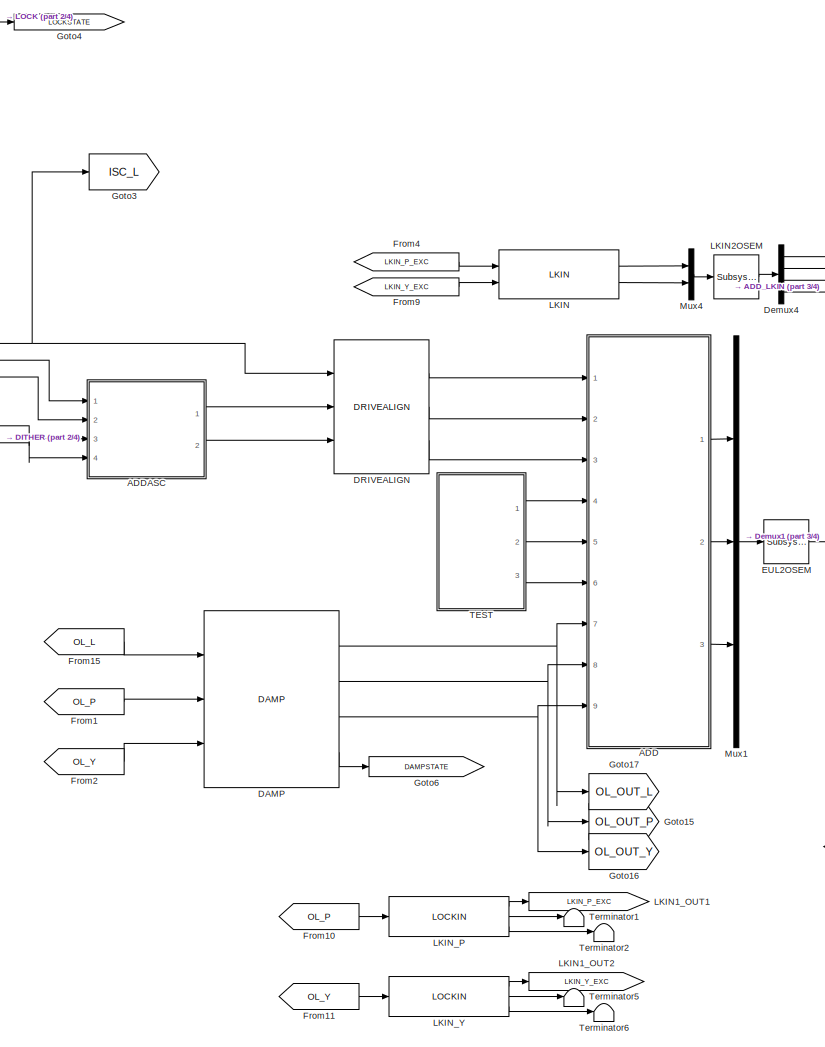
[diagram: TM_TYPEBP - part 1/4, central region]
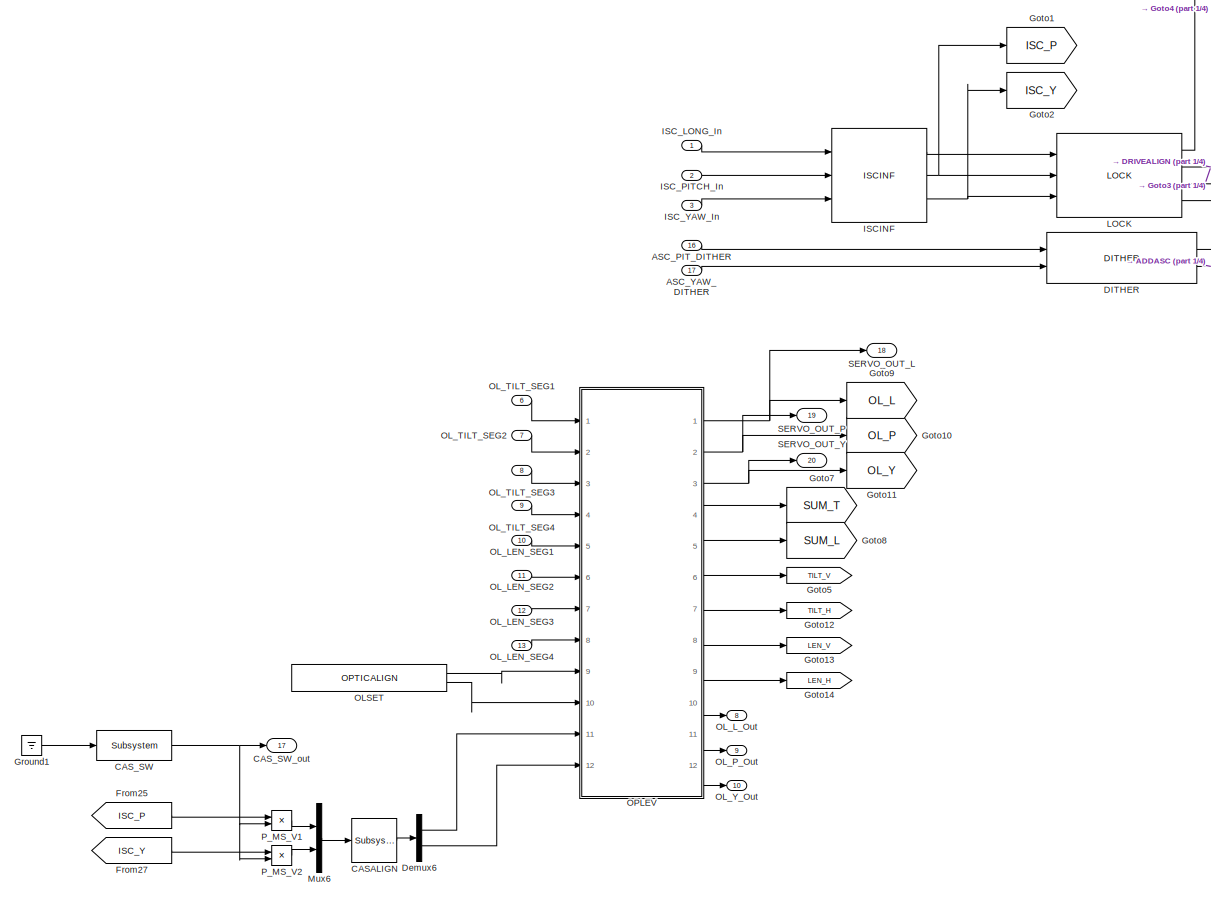
[diagram: TM_TYPEBP - part 2/4, middle left region]
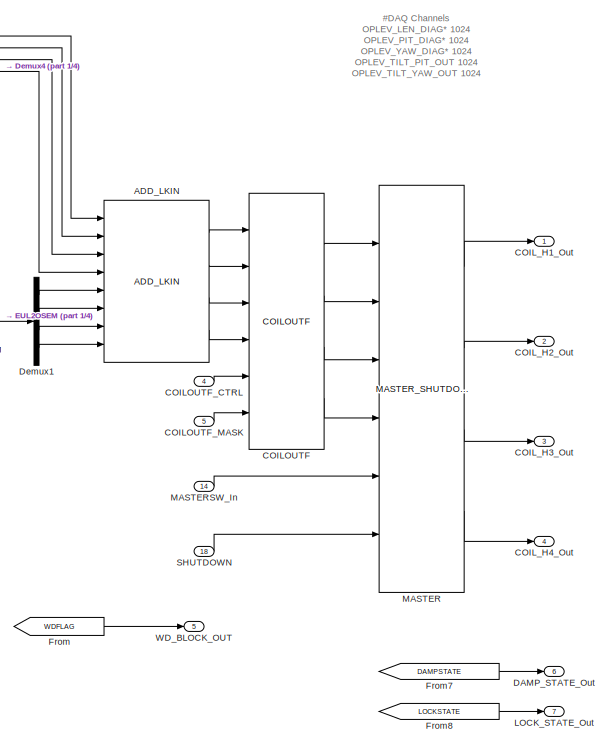
[diagram: TM_TYPEBP - part 3/4, middle right region]
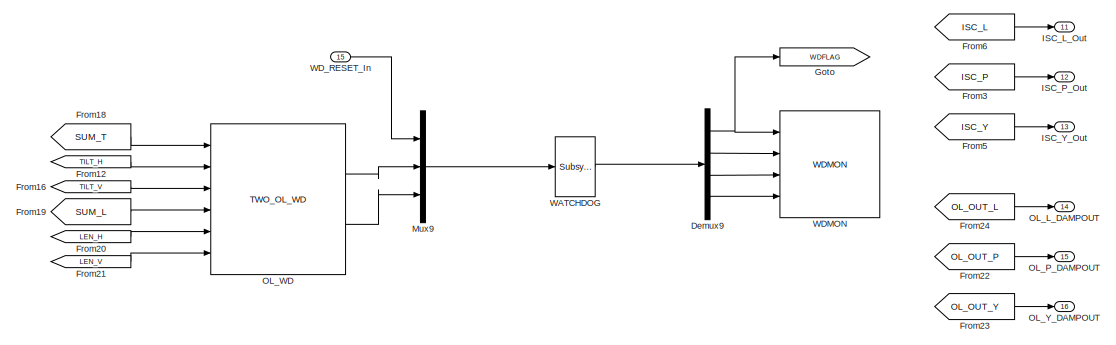
[diagram: TM_TYPEBP - part 4/4, bottom right region]
BLOCK [SubSystem] TM_TYPEBP
  Ports = [18, 20]
  RequestExecContextInheritance = off
  SID = 914
  Variant = off
BLOCK [SubSystem] TM_TYPEBP/ADD
  Ports = [9, 3]
  RequestExecContextInheritance = off
  SID = 932
  Variant = off
BLOCK [Inport] TM_TYPEBP/ADD/DAMP_L_In
  IconDisplay = Port number
  Port = 7
  SID = 939
BLOCK [Inport] TM_TYPEBP/ADD/DAMP_P_In
  IconDisplay = Port number
  Port = 8
  SID = 940
BLOCK [Inport] TM_TYPEBP/ADD/DAMP_Y_In
  IconDisplay = Port number
  Port = 9
  SID = 941
BLOCK [Ground] TM_TYPEBP/ADD/Ground1
  SID = 942
BLOCK [Ground] TM_TYPEBP/ADD/Ground2
  SID = 943
BLOCK [Ground] TM_TYPEBP/ADD/Ground3
  SID = 944
BLOCK [Ground] TM_TYPEBP/ADD/Ground4
  SID = 945
BLOCK [Ground] TM_TYPEBP/ADD/Ground5
  SID = 946
BLOCK [Ground] TM_TYPEBP/ADD/Ground6
  SID = 947
BLOCK [Inport] TM_TYPEBP/ADD/ISC_L_In
  IconDisplay = Port number
  SID = 933
BLOCK [Inport] TM_TYPEBP/ADD/ISC_P_In
  IconDisplay = Port number
  Port = 2
  SID = 934
BLOCK [Inport] TM_TYPEBP/ADD/ISC_Y_In
  IconDisplay = Port number
  Port = 3
  SID = 935
BLOCK [Reference] TM_TYPEBP/ADD/L  REF=cdsFiltCtrl/IIR FM with control
  AttributesFormatString = %<Tag>
  Ports = [3, 2]
  SID = 948
  SourceBlock = cdsFiltCtrl/IIR FM with control
  SourceType = SubSystem
  Tag = cdsFiltCtrl
BLOCK [Outport] TM_TYPEBP/ADD/LONG_Out
  IconDisplay = Port number
  SID = 957
BLOCK [Reference] TM_TYPEBP/ADD/P  REF=cdsFiltCtrl/IIR FM with control
  AttributesFormatString = %<Tag>
  Ports = [3, 2]
  SID = 949
  SourceBlock = cdsFiltCtrl/IIR FM with control
  SourceType = SubSystem
  Tag = cdsFiltCtrl
BLOCK [Outport] TM_TYPEBP/ADD/PITCH_Out
  IconDisplay = Port number
  Port = 2
  SID = 958
BLOCK [Sum] TM_TYPEBP/ADD/Sum
  InputSameDT = off
  Inputs = +++
  OutDataTypeStr = Inherit: Inherit via internal rule
  Ports = [3, 1]
  SID = 950
  SaturateOnIntegerOverflow = off
BLOCK [Sum] TM_TYPEBP/ADD/Sum3
  InputSameDT = off
  Inputs = +++
  OutDataTypeStr = Inherit: Inherit via internal rule
  Ports = [3, 1]
  SID = 951
  SaturateOnIntegerOverflow = off
BLOCK [Sum] TM_TYPEBP/ADD/Sum4
  InputSameDT = off
  Inputs = +++
  OutDataTypeStr = Inherit: Inherit via internal rule
  Ports = [3, 1]
  SID = 952
  SaturateOnIntegerOverflow = off
BLOCK [Inport] TM_TYPEBP/ADD/TEST_L_In
  IconDisplay = Port number
  Port = 4
  SID = 936
BLOCK [Inport] TM_TYPEBP/ADD/TEST_P_In
  IconDisplay = Port number
  Port = 5
  SID = 937
BLOCK [Inport] TM_TYPEBP/ADD/TEST_Y_In
  IconDisplay = Port number
  Port = 6
  SID = 938
BLOCK [Terminator] TM_TYPEBP/ADD/Terminator1
  SID = 953
BLOCK [Terminator] TM_TYPEBP/ADD/Terminator2
  SID = 954
BLOCK [Terminator] TM_TYPEBP/ADD/Terminator3
  SID = 955
BLOCK [Reference] TM_TYPEBP/ADD/Y  REF=cdsFiltCtrl/IIR FM with control
  AttributesFormatString = %<Tag>
  Ports = [3, 2]
  SID = 956
  SourceBlock = cdsFiltCtrl/IIR FM with control
  SourceType = SubSystem
  Tag = cdsFiltCtrl
BLOCK [Outport] TM_TYPEBP/ADD/YAW_Out
  IconDisplay = Port number
  Port = 3
  SID = 959
BLOCK [SubSystem] TM_TYPEBP/ADDASC
  Ports = [4, 2]
  RequestExecContextInheritance = off
  SID = 960
  Variant = off
BLOCK [Inport] TM_TYPEBP/ADDASC/DITHER_P_In
  IconDisplay = Port number
  Port = 3
  SID = 963
BLOCK [Inport] TM_TYPEBP/ADDASC/DITHER_Y_In
  IconDisplay = Port number
  Port = 4
  SID = 964
BLOCK [Inport] TM_TYPEBP/ADDASC/ISC_P_In
  IconDisplay = Port number
  SID = 961
BLOCK [Inport] TM_TYPEBP/ADDASC/ISC_Y_In
  IconDisplay = Port number
  Port = 2
  SID = 962
BLOCK [Outport] TM_TYPEBP/ADDASC/PITCH_Out
  IconDisplay = Port number
  SID = 967
BLOCK [Sum] TM_TYPEBP/ADDASC/Sum3
  InputSameDT = off
  OutDataTypeStr = Inherit: Inherit via internal rule
  Ports = [2, 1]
  SID = 965
  SaturateOnIntegerOverflow = off
BLOCK [Sum] TM_TYPEBP/ADDASC/Sum4
  InputSameDT = off
  OutDataTypeStr = Inherit: Inherit via internal rule
  Ports = [2, 1]
  SID = 966
  SaturateOnIntegerOverflow = off
BLOCK [Outport] TM_TYPEBP/ADDASC/YAW_Out
  IconDisplay = Port number
  Port = 2
  SID = 968
BLOCK [Reference] TM_TYPEBP/ADD_LKIN  REF=VIS_LIB/ADD_LKIN
  Ports = [8, 4]
  SID = 969
  SourceBlock = VIS_LIB/ADD_LKIN
  SourceType = SubSystem
BLOCK [Inport] TM_TYPEBP/ASC_PIT_DITHER
  IconDisplay = Port number
  Port = 16
  SID = 930
BLOCK [Inport] TM_TYPEBP/ASC_YAW_DITHER
  IconDisplay = Port number
  Port = 17
  SID = 931
BLOCK [Reference] TM_TYPEBP/CASALIGN  REF=cdsMuxMatrix/Subsystem
  AttributesFormatString = %<Tag>
  Description = Any size matrix. Inputs and outputs must be connected using Mux and Demux parts.
  Ports = [1, 1]
  SID = 1474
  SourceBlock = cdsMuxMatrix/Subsystem
  SourceType = SubSystem
  Tag = cdsMuxMatrix
BLOCK [Reference] TM_TYPEBP/CAS_SW  REF=cdsEpicsBinIn/Subsystem
  AttributesFormatString = %<Tag>
  Description = Purpose:                                                                            \nCreate an EPICS binary (0 or 1) input channel to the FE realtime controls.          \n                                                                                    \nOperation:                                                                          \nOutputs value from an EPICS ai record. Value is binary i...<+252ch>
  Ports = [1, 1]
  SID = 1475
  SourceBlock = cdsEpicsBinIn/Subsystem
  SourceType = SubSystem
  Tag = cdsEpicsBinIn
BLOCK [Outport] TM_TYPEBP/CAS_SW_out
  IconDisplay = Port number
  Port = 17
  SID = 1487
BLOCK [Reference] TM_TYPEBP/COILOUTF  REF=FOUROSEM_COILOUTF_MASTER/COILOUTF
  Ports = [6, 4]
  SID = 970
  SourceBlock = FOUROSEM_COILOUTF_MASTER/COILOUTF
  SourceType = SubSystem
BLOCK [Inport] TM_TYPEBP/COILOUTF_CTRL
  IconDisplay = Port number
  Port = 4
  SID = 918
BLOCK [Inport] TM_TYPEBP/COILOUTF_MASK
  IconDisplay = Port number
  Port = 5
  SID = 919
BLOCK [Outport] TM_TYPEBP/COIL_H1_Out
  IconDisplay = Port number
  SID = 1147
BLOCK [Outport] TM_TYPEBP/COIL_H2_Out
  IconDisplay = Port number
  Port = 2
  SID = 1148
BLOCK [Outport] TM_TYPEBP/COIL_H3_Out
  IconDisplay = Port number
  Port = 3
  SID = 1149
BLOCK [Outport] TM_TYPEBP/COIL_H4_Out
  IconDisplay = Port number
  Port = 4
  SID = 1150
BLOCK [Reference] TM_TYPEBP/DAMP  REF=VIS_LIB/DAMP
  Ports = [3, 4]
  SID = 971
  SourceBlock = VIS_LIB/DAMP
  SourceType = SubSystem
BLOCK [Outport] TM_TYPEBP/DAMP_STATE_Out
  IconDisplay = Port number
  Port = 6
  SID = 1152
BLOCK [Reference] TM_TYPEBP/DITHER  REF=VIS_LIB/DITHER
  Ports = [2, 2]
  SID = 972
  SourceBlock = VIS_LIB/DITHER
  SourceType = SubSystem
BLOCK [Reference] TM_TYPEBP/DRIVEALIGN  REF=VIS_LIB/DRIVEALIGN
  Ports = [3, 3]
  SID = 1454
  SourceBlock = VIS_LIB/DRIVEALIGN
  SourceType = SubSystem
BLOCK [Demux] TM_TYPEBP/Demux1
  DisplayOption = bar
  Ports = [1, 4]
  SID = 1005
BLOCK [Demux] TM_TYPEBP/Demux4
  DisplayOption = bar
  Ports = [1, 4]
  SID = 1006
BLOCK [Demux] TM_TYPEBP/Demux6
  DisplayOption = bar
  Outputs = 2
  Ports = [1, 2]
  SID = 1476
BLOCK [Demux] TM_TYPEBP/Demux9
  DisplayOption = bar
  Ports = [1, 4]
  SID = 1007
BLOCK [Reference] TM_TYPEBP/EUL2OSEM  REF=cdsMuxMatrix/Subsystem
  AttributesFormatString = %<Tag>
  Description = Any size matrix. Inputs and outputs must be connected using Mux and Demux parts.
  Ports = [1, 1]
  SID = 1008
  SourceBlock = cdsMuxMatrix/Subsystem
  SourceType = SubSystem
  Tag = cdsMuxMatrix
BLOCK [From] TM_TYPEBP/From
  CloseFcn = tagdialog Close
  GotoTag = WDFLAG
  SID = 1009
BLOCK [From] TM_TYPEBP/From1
  CloseFcn = tagdialog Close
  GotoTag = OL_P
  SID = 1010
BLOCK [From] TM_TYPEBP/From10
  CloseFcn = tagdialog Close
  GotoTag = OL_P
  SID = 1011
BLOCK [From] TM_TYPEBP/From11
  CloseFcn = tagdialog Close
  GotoTag = OL_Y
  SID = 1012
BLOCK [From] TM_TYPEBP/From12
  CloseFcn = tagdialog Close
  GotoTag = TILT_H
  SID = 1176
BLOCK [From] TM_TYPEBP/From15
  CloseFcn = tagdialog Close
  GotoTag = OL_L
  SID = 1015
BLOCK [From] TM_TYPEBP/From16
  CloseFcn = tagdialog Close
  GotoTag = TILT_V
  SID = 1177
BLOCK [From] TM_TYPEBP/From18
  CloseFcn = tagdialog Close
  GotoTag = SUM_T
  SID = 1017
BLOCK [From] TM_TYPEBP/From19
  CloseFcn = tagdialog Close
  GotoTag = SUM_L
  SID = 1018
BLOCK [From] TM_TYPEBP/From2
  CloseFcn = tagdialog Close
  GotoTag = OL_Y
  SID = 1019
BLOCK [From] TM_TYPEBP/From20
  CloseFcn = tagdialog Close
  GotoTag = LEN_H
  SID = 1178
BLOCK [From] TM_TYPEBP/From21
  CloseFcn = tagdialog Close
  GotoTag = LEN_V
  SID = 1179
BLOCK [From] TM_TYPEBP/From22
  CloseFcn = tagdialog Close
  GotoTag = OL_OUT_P
  SID = 1459
BLOCK [From] TM_TYPEBP/From23
  CloseFcn = tagdialog Close
  GotoTag = OL_OUT_Y
  SID = 1460
BLOCK [From] TM_TYPEBP/From24
  CloseFcn = tagdialog Close
  GotoTag = OL_OUT_L
  SID = 1461
BLOCK [From] TM_TYPEBP/From25
  CloseFcn = tagdialog Close
  GotoTag = ISC_P
  SID = 1485
BLOCK [From] TM_TYPEBP/From27
  CloseFcn = tagdialog Close
  GotoTag = ISC_Y
  SID = 1486
BLOCK [From] TM_TYPEBP/From3
  CloseFcn = tagdialog Close
  GotoTag = ISC_P
  SID = 1020
BLOCK [From] TM_TYPEBP/From4
  CloseFcn = tagdialog Close
  GotoTag = LKIN_P_EXC
  SID = 1021
BLOCK [From] TM_TYPEBP/From5
  CloseFcn = tagdialog Close
  GotoTag = ISC_Y
  SID = 1022
BLOCK [From] TM_TYPEBP/From6
  CloseFcn = tagdialog Close
  GotoTag = ISC_L
  SID = 1023
BLOCK [From] TM_TYPEBP/From7
  CloseFcn = tagdialog Close
  GotoTag = DAMPSTATE
  SID = 1024
BLOCK [From] TM_TYPEBP/From8
  CloseFcn = tagdialog Close
  GotoTag = LOCKSTATE
  SID = 1025
BLOCK [From] TM_TYPEBP/From9
  CloseFcn = tagdialog Close
  GotoTag = LKIN_Y_EXC
  SID = 1026
BLOCK [Goto] TM_TYPEBP/Goto
  GotoTag = WDFLAG
  SID = 1027
BLOCK [Goto] TM_TYPEBP/Goto1
  GotoTag = ISC_P
  SID = 1028
BLOCK [Goto] TM_TYPEBP/Goto10
  GotoTag = OL_P
  SID = 1029
BLOCK [Goto] TM_TYPEBP/Goto11
  GotoTag = OL_Y
  SID = 1030
BLOCK [Goto] TM_TYPEBP/Goto12
  GotoTag = TILT_H
  SID = 1172
BLOCK [Goto] TM_TYPEBP/Goto13
  GotoTag = LEN_V
  SID = 1173
BLOCK [Goto] TM_TYPEBP/Goto14
  GotoTag = LEN_H
  SID = 1174
BLOCK [Goto] TM_TYPEBP/Goto15
  GotoTag = OL_OUT_P
  SID = 1456
BLOCK [Goto] TM_TYPEBP/Goto16
  GotoTag = OL_OUT_Y
  SID = 1457
BLOCK [Goto] TM_TYPEBP/Goto17
  GotoTag = OL_OUT_L
  SID = 1458
BLOCK [Goto] TM_TYPEBP/Goto2
  GotoTag = ISC_Y
  SID = 1031
BLOCK [Goto] TM_TYPEBP/Goto3
  GotoTag = ISC_L
  SID = 1032
BLOCK [Goto] TM_TYPEBP/Goto4
  GotoTag = LOCKSTATE
  SID = 1033
BLOCK [Goto] TM_TYPEBP/Goto5
  GotoTag = TILT_V
  SID = 1171
BLOCK [Goto] TM_TYPEBP/Goto6
  GotoTag = DAMPSTATE
  SID = 1034
BLOCK [Goto] TM_TYPEBP/Goto7
  GotoTag = SUM_T
  SID = 1035
BLOCK [Goto] TM_TYPEBP/Goto8
  GotoTag = SUM_L
  SID = 1036
BLOCK [Goto] TM_TYPEBP/Goto9
  GotoTag = OL_L
  SID = 1037
BLOCK [Ground] TM_TYPEBP/Ground1
  SID = 1480
BLOCK [Reference] TM_TYPEBP/ISCINF  REF=VIS_LIB/ISCINF
  Ports = [3, 3]
  SID = 1038
  SourceBlock = VIS_LIB/ISCINF
  SourceType = SubSystem
BLOCK [Inport] TM_TYPEBP/ISC_LONG_In
  IconDisplay = Port number
  SID = 915
BLOCK [Outport] TM_TYPEBP/ISC_L_Out
  IconDisplay = Port number
  Port = 11
  SID = 1157
BLOCK [Inport] TM_TYPEBP/ISC_PITCH_In
  IconDisplay = Port number
  Port = 2
  SID = 916
BLOCK [Outport] TM_TYPEBP/ISC_P_Out
  IconDisplay = Port number
  Port = 12
  SID = 1158
BLOCK [Inport] TM_TYPEBP/ISC_YAW_In
  IconDisplay = Port number
  Port = 3
  SID = 917
BLOCK [Outport] TM_TYPEBP/ISC_Y_Out
  IconDisplay = Port number
  Port = 13
  SID = 1159
BLOCK [Reference] TM_TYPEBP/LKIN  REF=VIS_LIB/LKIN
  Ports = [2, 2]
  SID = 1039
  SourceBlock = VIS_LIB/LKIN
  SourceType = SubSystem
BLOCK [Goto] TM_TYPEBP/LKIN1_OUT1
  GotoTag = LKIN_P_EXC
  SID = 1040
BLOCK [Goto] TM_TYPEBP/LKIN1_OUT2
  GotoTag = LKIN_Y_EXC
  SID = 1041
BLOCK [Reference] TM_TYPEBP/LKIN2OSEM  REF=cdsMuxMatrix/Subsystem
  AttributesFormatString = %<Tag>
  Description = Any size matrix. Inputs and outputs must be connected using Mux and Demux parts.
  Ports = [1, 1]
  SID = 1042
  SourceBlock = cdsMuxMatrix/Subsystem
  SourceType = SubSystem
  Tag = cdsMuxMatrix
BLOCK [Reference] TM_TYPEBP/LKIN_P  REF=lockin/LOCKIN
  AttributesFormatString = %<Tag>
  Description = ADL=LOCKIN.adl
  Ports = [1, 3]
  SID = 1043
  SourceBlock = lockin/LOCKIN
  SourceType = SubSystem
BLOCK [Reference] TM_TYPEBP/LKIN_Y  REF=lockin/LOCKIN
  AttributesFormatString = %<Tag>
  Description = ADL=LOCKIN.adl
  Ports = [1, 3]
  SID = 1044
  SourceBlock = lockin/LOCKIN
  SourceType = SubSystem
BLOCK [Reference] TM_TYPEBP/LOCK  REF=VIS_LIB/LOCK
  Ports = [3, 4]
  SID = 1045
  SourceBlock = VIS_LIB/LOCK
  SourceType = SubSystem
BLOCK [Outport] TM_TYPEBP/LOCK_STATE_Out
  IconDisplay = Port number
  Port = 7
  SID = 1153
BLOCK [Reference] TM_TYPEBP/MASTER  REF=VIS_LIB/MASTER_SHUTDOWN
  Ports = [6, 4]
  SID = 1162
  SourceBlock = VIS_LIB/MASTER_SHUTDOWN
  SourceType = SubSystem
BLOCK [Inport] TM_TYPEBP/MASTERSW_In
  IconDisplay = Port number
  Port = 14
  SID = 928
BLOCK [Mux] TM_TYPEBP/Mux1
  DisplayOption = bar
  Inputs = 3
  Ports = [3, 1]
  SID = 1047
BLOCK [Mux] TM_TYPEBP/Mux4
  DisplayOption = bar
  Inputs = 2
  Ports = [2, 1]
  SID = 1048
BLOCK [Mux] TM_TYPEBP/Mux6
  DisplayOption = bar
  Inputs = 2
  Ports = [2, 1]
  SID = 1481
BLOCK [Mux] TM_TYPEBP/Mux9
  DisplayOption = bar
  Inputs = 3
  Ports = [3, 1]
  SID = 1049
BLOCK [Reference] TM_TYPEBP/OLSET  REF=SIXOSEM_F_STAGE_MASTER/SIXOSEM_F_STAGE_TYPEBP_MASTER/OPTICALIGN
  Ports = [0, 2]
  SID = 1465
  SourceBlock = SIXOSEM_F_STAGE_MASTER/SIXOSEM_F_STAGE_TYPEBP_MASTER/OPTICALIGN
  SourceType = SubSystem
BLOCK [Inport] TM_TYPEBP/OL_LEN_SEG1
  IconDisplay = Port number
  Port = 10
  SID = 924
BLOCK [Inport] TM_TYPEBP/OL_LEN_SEG2
  IconDisplay = Port number
  Port = 11
  SID = 925
BLOCK [Inport] TM_TYPEBP/OL_LEN_SEG3
  IconDisplay = Port number
  Port = 12
  SID = 926
BLOCK [Inport] TM_TYPEBP/OL_LEN_SEG4
  IconDisplay = Port number
  Port = 13
  SID = 927
BLOCK [Outport] TM_TYPEBP/OL_L_DAMPOUT
  IconDisplay = Port number
  Port = 14
  SID = 1462
BLOCK [Outport] TM_TYPEBP/OL_L_Out
  IconDisplay = Port number
  Port = 8
  SID = 1154
BLOCK [Outport] TM_TYPEBP/OL_P_DAMPOUT
  IconDisplay = Port number
  Port = 15
  SID = 1463
BLOCK [Outport] TM_TYPEBP/OL_P_Out
  IconDisplay = Port number
  Port = 9
  SID = 1155
BLOCK [Inport] TM_TYPEBP/OL_TILT_SEG1
  IconDisplay = Port number
  Port = 6
  SID = 920
BLOCK [Inport] TM_TYPEBP/OL_TILT_SEG2
  IconDisplay = Port number
  Port = 7
  SID = 921
BLOCK [Inport] TM_TYPEBP/OL_TILT_SEG3
  IconDisplay = Port number
  Port = 8
  SID = 922
BLOCK [Inport] TM_TYPEBP/OL_TILT_SEG4
  IconDisplay = Port number
  Port = 9
  SID = 923
BLOCK [Reference] TM_TYPEBP/OL_WD  REF=OPLEV_MASTER/TWO_OL_WD
  Ports = [6, 2]
  SID = 1166
  SourceBlock = OPLEV_MASTER/TWO_OL_WD
  SourceType = SubSystem
BLOCK [Outport] TM_TYPEBP/OL_Y_DAMPOUT
  IconDisplay = Port number
  Port = 16
  SID = 1464
BLOCK [Outport] TM_TYPEBP/OL_Y_Out
  IconDisplay = Port number
  Port = 10
  SID = 1156
BLOCK [SubSystem] TM_TYPEBP/OPLEV
  Ports = [12, 12]
  RequestExecContextInheritance = off
  SID = 1050
  Variant = off
BLOCK [Reference] TM_TYPEBP/OPLEV/BLRMS_L  REF=VIS_LIB/OPLEV_BLRMS_DOF
  Ports = [1]
  SID = 3143
  SourceBlock = VIS_LIB/OPLEV_BLRMS_DOF
  SourceType = SubSystem
BLOCK [Reference] TM_TYPEBP/OPLEV/BLRMS_P  REF=VIS_LIB/OPLEV_BLRMS_DOF
  Ports = [1]
  SID = 3142
  SourceBlock = VIS_LIB/OPLEV_BLRMS_DOF
  SourceType = SubSystem
BLOCK [Reference] TM_TYPEBP/OPLEV/BLRMS_Y  REF=VIS_LIB/OPLEV_BLRMS_DOF
  Ports = [1]
  SID = 3141
  SourceBlock = VIS_LIB/OPLEV_BLRMS_DOF
  SourceType = SubSystem
BLOCK [Demux] TM_TYPEBP/OPLEV/Demux2
  DisplayOption = bar
  Outputs = 3
  Ports = [1, 3]
  SID = 1059
BLOCK [From] TM_TYPEBP/OPLEV/From16
  CloseFcn = tagdialog Close
  GotoTag = TILT_V
  SID = 1060
BLOCK [From] TM_TYPEBP/OPLEV/From17
  CloseFcn = tagdialog Close
  GotoTag = TILT_H
  SID = 1061
BLOCK [From] TM_TYPEBP/OPLEV/From18
  CloseFcn = tagdialog Close
  GotoTag = LEN_V
  SID = 1062
BLOCK [From] TM_TYPEBP/OPLEV/From19
  CloseFcn = tagdialog Close
  GotoTag = LEN_H
  SID = 1063
BLOCK [Goto] TM_TYPEBP/OPLEV/Goto1
  GotoTag = LEN_V
  SID = 1064
BLOCK [Goto] TM_TYPEBP/OPLEV/Goto3
  GotoTag = LEN_H
  SID = 1065
BLOCK [Goto] TM_TYPEBP/OPLEV/Goto5
  GotoTag = TILT_V
  SID = 1066
BLOCK [Goto] TM_TYPEBP/OPLEV/Goto6
  GotoTag = TILT_H
  SID = 1067
BLOCK [Inport] TM_TYPEBP/OPLEV/ISC_P
  IconDisplay = Port number
  Port = 11
  SID = 3050
BLOCK [Inport] TM_TYPEBP/OPLEV/ISC_Y
  IconDisplay = Port number
  Port = 12
  SID = 3051
BLOCK [Inport] TM_TYPEBP/OPLEV/In1
  IconDisplay = Port number
  SID = 1051
BLOCK [Inport] TM_TYPEBP/OPLEV/In2
  IconDisplay = Port number
  Port = 2
  SID = 1052
BLOCK [Inport] TM_TYPEBP/OPLEV/In3
  IconDisplay = Port number
  Port = 3
  SID = 1053
BLOCK [Inport] TM_TYPEBP/OPLEV/In4
  IconDisplay = Port number
  Port = 4
  SID = 1054
BLOCK [Inport] TM_TYPEBP/OPLEV/In5
  IconDisplay = Port number
  Port = 5
  SID = 1055
BLOCK [Inport] TM_TYPEBP/OPLEV/In6
  IconDisplay = Port number
  Port = 6
  SID = 1056
BLOCK [Inport] TM_TYPEBP/OPLEV/In7
  IconDisplay = Port number
  Port = 7
  SID = 1057
BLOCK [Inport] TM_TYPEBP/OPLEV/In8
  IconDisplay = Port number
  Port = 8
  SID = 1058
BLOCK [Reference] TM_TYPEBP/OPLEV/LEN  REF=QPD/QPD_WITH_WHITEN_CTRL
  Ports = [4, 7]
  SID = 1068
  SourceBlock = QPD/QPD_WITH_WHITEN_CTRL
  SourceType = SubSystem
BLOCK [Reference] TM_TYPEBP/OPLEV/LEN_BLRMS_P  REF=VIS_LIB/OPLEV_BLRMS_DOF
  Ports = [1]
  SID = 1069
  SourceBlock = VIS_LIB/OPLEV_BLRMS_DOF
  SourceType = SubSystem
BLOCK [Reference] TM_TYPEBP/OPLEV/LEN_BLRMS_Y  REF=VIS_LIB/OPLEV_BLRMS_DOF
  Ports = [1]
  SID = 1070
  SourceBlock = VIS_LIB/OPLEV_BLRMS_DOF
  SourceType = SubSystem
BLOCK [Reference] TM_TYPEBP/OPLEV/LEN_DAMPED  REF=cdsEpicsOut/Subsystem
  AttributesFormatString = %<Tag>
  Ports = [1, 1]
  SID = 1071
  SourceBlock = cdsEpicsOut/Subsystem
  SourceType = SubSystem
  Tag = cdsEpicsOutput
BLOCK [Reference] TM_TYPEBP/OPLEV/LEN_DIAG  REF=cdsTP/Subsystem
  AttributesFormatString = %<Tag>
  Ports = [1]
  SID = 1072
  SourceBlock = cdsTP/Subsystem
  SourceType = SubSystem
  Tag = Test Point
BLOCK [Reference] TM_TYPEBP/OPLEV/LEN_DIAGMON  REF=cdsEpicsOut/Subsystem
  AttributesFormatString = %<Tag>
  Ports = [1, 1]
  SID = 1073
  SourceBlock = cdsEpicsOut/Subsystem
  SourceType = SubSystem
  Tag = cdsEpicsOutput
BLOCK [Outport] TM_TYPEBP/OPLEV/LEN_H
  IconDisplay = Port number
  Port = 9
  SID = 1170
BLOCK [Outport] TM_TYPEBP/OPLEV/LEN_V
  IconDisplay = Port number
  Port = 8
  SID = 1169
BLOCK [Mux] TM_TYPEBP/OPLEV/Mux2
  DisplayOption = bar
  Ports = [4, 1]
  SID = 1074
BLOCK [Reference] TM_TYPEBP/OPLEV/OL2EUL  REF=cdsMuxMatrix/Subsystem
  AttributesFormatString = %<Tag>
  Description = Any size matrix. Inputs and outputs must be connected using Mux and Demux parts.
  Ports = [1, 1]
  SID = 1075
  SourceBlock = cdsMuxMatrix/Subsystem
  SourceType = SubSystem
  Tag = cdsMuxMatrix
BLOCK [Inport] TM_TYPEBP/OPLEV/OLSET_P
  IconDisplay = Port number
  Port = 9
  SID = 3048
BLOCK [Inport] TM_TYPEBP/OPLEV/OLSET_Y
  IconDisplay = Port number
  Port = 10
  SID = 3049
BLOCK [Outport] TM_TYPEBP/OPLEV/OL_L1
  IconDisplay = Port number
  Port = 10
  SID = 3144
BLOCK [Outport] TM_TYPEBP/OPLEV/OL_P1
  IconDisplay = Port number
  Port = 11
  SID = 3145
BLOCK [Outport] TM_TYPEBP/OPLEV/OL_Y1
  IconDisplay = Port number
  Port = 12
  SID = 3146
BLOCK [Reference] TM_TYPEBP/OPLEV/PITCH_DAMPED  REF=cdsEpicsOut/Subsystem
  AttributesFormatString = %<Tag>
  Ports = [1, 1]
  SID = 1076
  SourceBlock = cdsEpicsOut/Subsystem
  SourceType = SubSystem
  Tag = cdsEpicsOutput
BLOCK [Reference] TM_TYPEBP/OPLEV/PIT_DIAG  REF=cdsTP/Subsystem
  AttributesFormatString = %<Tag>
  Ports = [1]
  SID = 1077
  SourceBlock = cdsTP/Subsystem
  SourceType = SubSystem
  Tag = Test Point
BLOCK [Reference] TM_TYPEBP/OPLEV/PIT_DIAGMON  REF=cdsEpicsOut/Subsystem
  AttributesFormatString = %<Tag>
  Ports = [1, 1]
  SID = 1078
  SourceBlock = cdsEpicsOut/Subsystem
  SourceType = SubSystem
  Tag = cdsEpicsOutput
BLOCK [Reference] TM_TYPEBP/OPLEV/SERVO_LEN  REF=cdsFilt/Subsystem
  AttributesFormatString = %<Tag>
  Ports = [1, 1]
  SID = 1079
  SourceBlock = cdsFilt/Subsystem
  SourceType = SubSystem
  Tag = cdsFilt
BLOCK [Outport] TM_TYPEBP/OPLEV/SERVO_OUT_L
  IconDisplay = Port number
  SID = 1099
BLOCK [Outport] TM_TYPEBP/OPLEV/SERVO_OUT_P
  IconDisplay = Port number
  Port = 2
  SID = 1100
BLOCK [Outport] TM_TYPEBP/OPLEV/SERVO_OUT_Y
  IconDisplay = Port number
  Port = 3
  SID = 1101
BLOCK [Reference] TM_TYPEBP/OPLEV/SERVO_PIT  REF=cdsFilt/Subsystem
  AttributesFormatString = %<Tag>
  Ports = [1, 1]
  SID = 1080
  SourceBlock = cdsFilt/Subsystem
  SourceType = SubSystem
  Tag = cdsFilt
BLOCK [Reference] TM_TYPEBP/OPLEV/SERVO_YAW  REF=cdsFilt/Subsystem
  AttributesFormatString = %<Tag>
  Ports = [1, 1]
  SID = 1081
  SourceBlock = cdsFilt/Subsystem
  SourceType = SubSystem
  Tag = cdsFilt
BLOCK [Outport] TM_TYPEBP/OPLEV/SUM_L
  IconDisplay = Port number
  Port = 5
  SID = 1103
BLOCK [Outport] TM_TYPEBP/OPLEV/SUM_T
  IconDisplay = Port number
  Port = 4
  SID = 1102
BLOCK [Sum] TM_TYPEBP/OPLEV/Sum
  IconShape = round
  InputSameDT = off
  Inputs = -+-
  OutDataTypeStr = Inherit: Inherit via internal rule
  Ports = [3, 1]
  SID = 3046
  SaturateOnIntegerOverflow = off
BLOCK [Sum] TM_TYPEBP/OPLEV/Sum1
  IconShape = round
  InputSameDT = off
  Inputs = -+-
  OutDataTypeStr = Inherit: Inherit via internal rule
  Ports = [3, 1]
  SID = 3047
  SaturateOnIntegerOverflow = off
BLOCK [Reference] TM_TYPEBP/OPLEV/TILT  REF=QPD/QPD_WITH_WHITEN_CTRL
  Ports = [4, 7]
  SID = 1082
  SourceBlock = QPD/QPD_WITH_WHITEN_CTRL
  SourceType = SubSystem
BLOCK [Reference] TM_TYPEBP/OPLEV/TILT_BLRMS_P  REF=VIS_LIB/OPLEV_BLRMS_DOF
  Ports = [1]
  SID = 1083
  SourceBlock = VIS_LIB/OPLEV_BLRMS_DOF
  SourceType = SubSystem
BLOCK [Reference] TM_TYPEBP/OPLEV/TILT_BLRMS_Y  REF=VIS_LIB/OPLEV_BLRMS_DOF
  Ports = [1]
  SID = 1084
  SourceBlock = VIS_LIB/OPLEV_BLRMS_DOF
  SourceType = SubSystem
BLOCK [Outport] TM_TYPEBP/OPLEV/TILT_H
  IconDisplay = Port number
  Port = 7
  SID = 1168
BLOCK [Outport] TM_TYPEBP/OPLEV/TILT_V
  IconDisplay = Port number
  Port = 6
  SID = 1167
BLOCK [Terminator] TM_TYPEBP/OPLEV/Terminator3
  SID = 1085
BLOCK [Terminator] TM_TYPEBP/OPLEV/Terminator4
  SID = 1086
BLOCK [Terminator] TM_TYPEBP/OPLEV/Terminator5
  SID = 1087
BLOCK [Terminator] TM_TYPEBP/OPLEV/Terminator50
  SID = 1088
BLOCK [Terminator] TM_TYPEBP/OPLEV/Terminator51
  SID = 1089
BLOCK [Terminator] TM_TYPEBP/OPLEV/Terminator52
  SID = 1090
BLOCK [Terminator] TM_TYPEBP/OPLEV/Terminator54
  SID = 1091
BLOCK [Terminator] TM_TYPEBP/OPLEV/Terminator6
  SID = 1092
BLOCK [Terminator] TM_TYPEBP/OPLEV/Terminator7
  SID = 1093
BLOCK [Terminator] TM_TYPEBP/OPLEV/Terminator8
  SID = 1094
BLOCK [Terminator] TM_TYPEBP/OPLEV/Terminator9
  SID = 1095
BLOCK [Reference] TM_TYPEBP/OPLEV/YAW_DAMPED  REF=cdsEpicsOut/Subsystem
  AttributesFormatString = %<Tag>
  Ports = [1, 1]
  SID = 1096
  SourceBlock = cdsEpicsOut/Subsystem
  SourceType = SubSystem
  Tag = cdsEpicsOutput
BLOCK [Reference] TM_TYPEBP/OPLEV/YAW_DIAG  REF=cdsTP/Subsystem
  AttributesFormatString = %<Tag>
  Ports = [1]
  SID = 1097
  SourceBlock = cdsTP/Subsystem
  SourceType = SubSystem
  Tag = Test Point
BLOCK [Reference] TM_TYPEBP/OPLEV/YAW_DIAGMON  REF=cdsEpicsOut/Subsystem
  AttributesFormatString = %<Tag>
  Ports = [1, 1]
  SID = 1098
  SourceBlock = cdsEpicsOut/Subsystem
  SourceType = SubSystem
  Tag = cdsEpicsOutput
BLOCK [Product] TM_TYPEBP/P_MS_V1
  InputSameDT = off
  OutDataTypeStr = Inherit: Inherit via internal rule
  Ports = [2, 1]
  SID = 1482
  SaturateOnIntegerOverflow = off
BLOCK [Product] TM_TYPEBP/P_MS_V2
  InputSameDT = off
  OutDataTypeStr = Inherit: Inherit via internal rule
  Ports = [2, 1]
  SID = 1483
  SaturateOnIntegerOverflow = off
BLOCK [Outport] TM_TYPEBP/SERVO_OUT_L
  IconDisplay = Port number
  Port = 18
  SID = 3154
BLOCK [Outport] TM_TYPEBP/SERVO_OUT_P
  IconDisplay = Port number
  Port = 19
  SID = 3155
BLOCK [Outport] TM_TYPEBP/SERVO_OUT_Y
  IconDisplay = Port number
  Port = 20
  SID = 3156
BLOCK [Inport] TM_TYPEBP/SHUTDOWN
  IconDisplay = Port number
  Port = 18
  SID = 1161
BLOCK [SubSystem] TM_TYPEBP/TEST
  Ports = [0, 3]
  RequestExecContextInheritance = off
  SID = 1104
  Variant = off
BLOCK [Ground] TM_TYPEBP/TEST/Ground
  SID = 1105
BLOCK [Ground] TM_TYPEBP/TEST/Ground1
  SID = 1106
BLOCK [Ground] TM_TYPEBP/TEST/Ground2
  SID = 1107
BLOCK [Reference] TM_TYPEBP/TEST/L  REF=cdsFilt/Subsystem
  AttributesFormatString = %<Tag>
  Ports = [1, 1]
  SID = 1108
  SourceBlock = cdsFilt/Subsystem
  SourceType = SubSystem
  Tag = cdsFilt
BLOCK [Outport] TM_TYPEBP/TEST/LONG_Out
  IconDisplay = Port number
  SID = 1111
BLOCK [Reference] TM_TYPEBP/TEST/P  REF=cdsFilt/Subsystem
  AttributesFormatString = %<Tag>
  Ports = [1, 1]
  SID = 1109
  SourceBlock = cdsFilt/Subsystem
  SourceType = SubSystem
  Tag = cdsFilt
BLOCK [Outport] TM_TYPEBP/TEST/PITCH_Out
  IconDisplay = Port number
  Port = 2
  SID = 1112
BLOCK [Reference] TM_TYPEBP/TEST/Y  REF=cdsFilt/Subsystem
  AttributesFormatString = %<Tag>
  Ports = [1, 1]
  SID = 1110
  SourceBlock = cdsFilt/Subsystem
  SourceType = SubSystem
  Tag = cdsFilt
BLOCK [Outport] TM_TYPEBP/TEST/YAW_Out
  IconDisplay = Port number
  Port = 3
  SID = 1113
BLOCK [Terminator] TM_TYPEBP/Terminator1
  SID = 1114
BLOCK [Terminator] TM_TYPEBP/Terminator2
  SID = 1115
BLOCK [Terminator] TM_TYPEBP/Terminator5
  SID = 1116
BLOCK [Terminator] TM_TYPEBP/Terminator6
  SID = 1117
BLOCK [Reference] TM_TYPEBP/WATCHDOG  REF=cdsFunctionCall/Subsystem
  AttributesFormatString = %<Tag>\\n%<Description>
  Description = inline OPLEVWATCHDOG <path>
  Ports = [1, 1]
  SID = 1118
  SourceBlock = cdsFunctionCall/Subsystem
  SourceType = SubSystem
  Tag = cdsFunctionCall
BLOCK [Reference] TM_TYPEBP/WDMON  REF=VIS_LIB/WDMON
  Ports = [4]
  SID = 1146
  SourceBlock = VIS_LIB/WDMON
  SourceType = SubSystem
BLOCK [Outport] TM_TYPEBP/WD_BLOCK_OUT
  IconDisplay = Port number
  Port = 5
  SID = 1151
BLOCK [Inport] TM_TYPEBP/WD_RESET_In
  IconDisplay = Port number
  Port = 15
  SID = 929
ANNOTATION PHASE1_TM: #DAQ Channels\nDAMP_P_IN1* 2048\nDAMP_Y_IN1* 2048\nDAMP_L_IN1* 2048\nOPLEV_TILT_SUM_OUT* 2048\nOPLEV_LEN_SUM_OUT* 2048\nOPLEV_LEN_DIAG* 2048\nOPLEV_PIT_DIAG* 2048\nOPLEV_YAW_DIAG* 2048\nISCINF_L_IN1 2048
ANNOTATION PHASE1_TM/DRIVEALIGN: This could/should be replaced by\nthe CDS_PART cdsFiltMuxMatrix,\nbut I'm not sure how that works \nin MEDM land just yet \n-- JSK Feb 2011
ANNOTATION PHASE1_TM_NEW: #DAQ Channels\nDAMP_P_IN1* 2048\nDAMP_Y_IN1* 2048\nDAMP_L_IN1* 2048\nOPLEV_TILT_SUM_OUT* 2048\nOPLEV_LEN_SUM_OUT* 2048\nOPLEV_LEN_DIAG* 2048\nOPLEV_PIT_DIAG* 2048\nOPLEV_YAW_DIAG* 2048\nISCINF_L_IN1 2048
ANNOTATION PHASE1_TM_NEW/DRIVEALIGN: This could/should be replaced by\nthe CDS_PART cdsFiltMuxMatrix,\nbut I'm not sure how that works \nin MEDM land just yet \n-- JSK Feb 2011
ANNOTATION PHASE1_TM_NEW_shutdown: #DAQ Channels\nOPLEV_LEN_DIAG* 2048\nOPLEV_PIT_DIAG* 2048\nOPLEV_YAW_DIAG* 2048\nOPLEV_TILT_PIT_OUT 2048\nOPLEV_TILT_YAW_OUT 2048\nOPLEV_LEN_YAW_OUT 2048\nDAMP_L_OUT 2048\nDAMP_P_OUT 2048\nDAMP_Y_OUT 2048
ANNOTATION PHASE1_TM_NEW_shutdown/DRIVEALIGN: This could/should be replaced by\nthe CDS_PART cdsFiltMuxMatrix,\nbut I'm not sure how that works \nin MEDM land just yet \n-- JSK Feb 2011
ANNOTATION TM: #DAQ Channels\nDAMP_P_IN1* 2048\nDAMP_Y_IN1* 2048\nDAMP_L_IN1* 2048\nOPLEV_TILT_SUM_OUT* 2048\nOPLEV_LEN_SUM_OUT* 2048\nOPLEV_LEN_DIAG* 2048\nOPLEV_PIT_DIAG* 2048\nOPLEV_YAW_DIAG* 2048\nOPLEV_TILT_PIT_OUT* 2048\nOPLEV_TILT_YAW_OUT* 2048\nISCINF_L_IN1 2048
ANNOTATION TM/DRIVEALIGN: This could/should be replaced by\nthe CDS_PART cdsFiltMuxMatrix,\nbut I'm not sure how that works \nin MEDM land just yet \n-- JSK Feb 2011
ANNOTATION TM_TYPEBP: #DAQ Channels\nOPLEV_LEN_DIAG* 1024\nOPLEV_PIT_DIAG* 1024\nOPLEV_YAW_DIAG* 1024\nOPLEV_TILT_PIT_OUT 1024\nOPLEV_TILT_YAW_OUT 1024\nOPLEV_LEN_YAW_OUT 1024\nISCINF_L_IN1 2048
LINE PHASE1_TM/ADD/DAMP_L_In:1 -> PHASE1_TM/ADD/Sum:3
LINE PHASE1_TM/ADD/DAMP_P_In:1 -> PHASE1_TM/ADD/Sum4:3
LINE PHASE1_TM/ADD/DAMP_Y_In:1 -> PHASE1_TM/ADD/Sum3:3
LINE PHASE1_TM/ADD/Ground1:1 -> PHASE1_TM/ADD/L:3
LINE PHASE1_TM/ADD/Ground2:1 -> PHASE1_TM/ADD/P:3
LINE PHASE1_TM/ADD/Ground3:1 -> PHASE1_TM/ADD/P:2
LINE PHASE1_TM/ADD/Ground4:1 -> PHASE1_TM/ADD/Y:3
LINE PHASE1_TM/ADD/Ground5:1 -> PHASE1_TM/ADD/Y:2
LINE PHASE1_TM/ADD/Ground6:1 -> PHASE1_TM/ADD/L:2
LINE PHASE1_TM/ADD/ISC_L_In:1 -> PHASE1_TM/ADD/Sum:1
LINE PHASE1_TM/ADD/ISC_P_In:1 -> PHASE1_TM/ADD/Sum4:1
LINE PHASE1_TM/ADD/ISC_Y_In:1 -> PHASE1_TM/ADD/Sum3:1
LINE PHASE1_TM/ADD/L:1 -> PHASE1_TM/ADD/LONG_Out:1
LINE PHASE1_TM/ADD/L:2 -> PHASE1_TM/ADD/Terminator1:1
LINE PHASE1_TM/ADD/P:1 -> PHASE1_TM/ADD/PITCH_Out:1
LINE PHASE1_TM/ADD/P:2 -> PHASE1_TM/ADD/Terminator2:1
LINE PHASE1_TM/ADD/Sum3:1 -> PHASE1_TM/ADD/Y:1
LINE PHASE1_TM/ADD/Sum4:1 -> PHASE1_TM/ADD/P:1
LINE PHASE1_TM/ADD/Sum:1 -> PHASE1_TM/ADD/L:1
LINE PHASE1_TM/ADD/TEST_L_In:1 -> PHASE1_TM/ADD/Sum:2
LINE PHASE1_TM/ADD/TEST_P_In:1 -> PHASE1_TM/ADD/Sum4:2
LINE PHASE1_TM/ADD/TEST_Y_In:1 -> PHASE1_TM/ADD/Sum3:2
LINE PHASE1_TM/ADD/Y:1 -> PHASE1_TM/ADD/YAW_Out:1
LINE PHASE1_TM/ADD/Y:2 -> PHASE1_TM/ADD/Terminator3:1
LINE PHASE1_TM/ADD:1 -> PHASE1_TM/Mux1:1
LINE PHASE1_TM/ADD:2 -> PHASE1_TM/Mux1:2
LINE PHASE1_TM/ADD:3 -> PHASE1_TM/Mux1:3
LINE PHASE1_TM/ADDASC/DITHER_P_In:1 -> PHASE1_TM/ADDASC/Sum4:2
LINE PHASE1_TM/ADDASC/DITHER_Y_In:1 -> PHASE1_TM/ADDASC/Sum3:2
LINE PHASE1_TM/ADDASC/ISC_P_In:1 -> PHASE1_TM/ADDASC/Sum4:1
LINE PHASE1_TM/ADDASC/ISC_Y_In:1 -> PHASE1_TM/ADDASC/Sum3:1
LINE PHASE1_TM/ADDASC/Sum3:1 -> PHASE1_TM/ADDASC/YAW_Out:1
LINE PHASE1_TM/ADDASC/Sum4:1 -> PHASE1_TM/ADDASC/PITCH_Out:1
LINE PHASE1_TM/ADDASC:1 -> PHASE1_TM/DRIVEALIGN:2
LINE PHASE1_TM/ADDASC:2 -> PHASE1_TM/DRIVEALIGN:3
LINE PHASE1_TM/ADD_LKIN:1 -> PHASE1_TM/COILOUTF:1
LINE PHASE1_TM/ADD_LKIN:2 -> PHASE1_TM/COILOUTF:2
LINE PHASE1_TM/ADD_LKIN:3 -> PHASE1_TM/COILOUTF:3
LINE PHASE1_TM/ADD_LKIN:4 -> PHASE1_TM/COILOUTF:4
LINE PHASE1_TM/ASC_PIT_DITHER:1 -> PHASE1_TM/DITHER:1
LINE PHASE1_TM/ASC_YAW_DITHER:1 -> PHASE1_TM/DITHER:2
LINE PHASE1_TM/CAL_LINE_CTRL_In:1 -> PHASE1_TM/Sum1:1
LINE PHASE1_TM/CAL_LINE_TM_In:1 -> PHASE1_TM/Sum2:1
LINE PHASE1_TM/COILOUTF:1 -> PHASE1_TM/MASTER:1
LINE PHASE1_TM/COILOUTF:2 -> PHASE1_TM/MASTER:2
LINE PHASE1_TM/COILOUTF:3 -> PHASE1_TM/MASTER:3
LINE PHASE1_TM/COILOUTF:4 -> PHASE1_TM/MASTER:4
LINE PHASE1_TM/COILOUTF_CTRL:1 -> PHASE1_TM/COILOUTF:5
LINE PHASE1_TM/COILOUTF_MASK:1 -> PHASE1_TM/COILOUTF:6
LINE PHASE1_TM/DAMP:1 -> PHASE1_TM/ADD:7
LINE PHASE1_TM/DAMP:2 -> PHASE1_TM/ADD:8
LINE PHASE1_TM/DAMP:3 -> PHASE1_TM/ADD:9
LINE PHASE1_TM/DAMP:4 -> PHASE1_TM/Goto6:1
LINE PHASE1_TM/DITHER:1 -> PHASE1_TM/ADDASC:3
LINE PHASE1_TM/DITHER:2 -> PHASE1_TM/ADDASC:4
LINE PHASE1_TM/DRIVEALIGN/L2L:1 -> PHASE1_TM/DRIVEALIGN/Sum:1
LINE PHASE1_TM/DRIVEALIGN/L2P:1 -> PHASE1_TM/DRIVEALIGN/Sum1:1
LINE PHASE1_TM/DRIVEALIGN/L2Y:1 -> PHASE1_TM/DRIVEALIGN/Sum2:1
LINE PHASE1_TM/DRIVEALIGN/LONG_In:1 -> PHASE1_TM/DRIVEALIGN/L_INMON:1
NET PHASE1_TM/DRIVEALIGN/L_INMON:1 -> PHASE1_TM/DRIVEALIGN/L2L:1, PHASE1_TM/DRIVEALIGN/L2P:1, PHASE1_TM/DRIVEALIGN/L2Y:1, PHASE1_TM/DRIVEALIGN/L_IN:1
LINE PHASE1_TM/DRIVEALIGN/L_OUTMON:1 -> PHASE1_TM/DRIVEALIGN/LONG_Out:1
LINE PHASE1_TM/DRIVEALIGN/P2L:1 -> PHASE1_TM/DRIVEALIGN/Sum:2
LINE PHASE1_TM/DRIVEALIGN/P2P:1 -> PHASE1_TM/DRIVEALIGN/Sum1:2
LINE PHASE1_TM/DRIVEALIGN/P2Y:1 -> PHASE1_TM/DRIVEALIGN/Sum2:2
LINE PHASE1_TM/DRIVEALIGN/PITCH_In:1 -> PHASE1_TM/DRIVEALIGN/P_INMON:1
NET PHASE1_TM/DRIVEALIGN/P_INMON:1 -> PHASE1_TM/DRIVEALIGN/P2L:1, PHASE1_TM/DRIVEALIGN/P2P:1, PHASE1_TM/DRIVEALIGN/P2Y:1, PHASE1_TM/DRIVEALIGN/P_IN:1
LINE PHASE1_TM/DRIVEALIGN/P_OUTMON:1 -> PHASE1_TM/DRIVEALIGN/PITCH_Out:1
NET PHASE1_TM/DRIVEALIGN/Sum1:1 -> PHASE1_TM/DRIVEALIGN/P_OUT:1, PHASE1_TM/DRIVEALIGN/P_OUTMON:1
NET PHASE1_TM/DRIVEALIGN/Sum2:1 -> PHASE1_TM/DRIVEALIGN/Y_OUT:1, PHASE1_TM/DRIVEALIGN/Y_OUTMON:1
NET PHASE1_TM/DRIVEALIGN/Sum:1 -> PHASE1_TM/DRIVEALIGN/L_OUT:1, PHASE1_TM/DRIVEALIGN/L_OUTMON:1
LINE PHASE1_TM/DRIVEALIGN/Y2L:1 -> PHASE1_TM/DRIVEALIGN/Sum:3
LINE PHASE1_TM/DRIVEALIGN/Y2P:1 -> PHASE1_TM/DRIVEALIGN/Sum1:3
LINE PHASE1_TM/DRIVEALIGN/Y2Y:1 -> PHASE1_TM/DRIVEALIGN/Sum2:3
LINE PHASE1_TM/DRIVEALIGN/YAW_In:1 -> PHASE1_TM/DRIVEALIGN/Y_INMON:1
NET PHASE1_TM/DRIVEALIGN/Y_INMON:1 -> PHASE1_TM/DRIVEALIGN/Y2L:1, PHASE1_TM/DRIVEALIGN/Y2P:1, PHASE1_TM/DRIVEALIGN/Y2Y:1, PHASE1_TM/DRIVEALIGN/Y_IN:1
LINE PHASE1_TM/DRIVEALIGN/Y_OUTMON:1 -> PHASE1_TM/DRIVEALIGN/YAW_Out:1
LINE PHASE1_TM/DRIVEALIGN:1 -> PHASE1_TM/ADD:1
LINE PHASE1_TM/DRIVEALIGN:2 -> PHASE1_TM/ADD:2
LINE PHASE1_TM/DRIVEALIGN:3 -> PHASE1_TM/ADD:3
LINE PHASE1_TM/Demux1:1 -> PHASE1_TM/ADD_LKIN:5
LINE PHASE1_TM/Demux1:2 -> PHASE1_TM/ADD_LKIN:6
LINE PHASE1_TM/Demux1:3 -> PHASE1_TM/ADD_LKIN:7
LINE PHASE1_TM/Demux1:4 -> PHASE1_TM/ADD_LKIN:8
LINE PHASE1_TM/Demux4:1 -> PHASE1_TM/ADD_LKIN:1
LINE PHASE1_TM/Demux4:2 -> PHASE1_TM/ADD_LKIN:2
LINE PHASE1_TM/Demux4:3 -> PHASE1_TM/ADD_LKIN:3
LINE PHASE1_TM/Demux4:4 -> PHASE1_TM/ADD_LKIN:4
NET PHASE1_TM/Demux9:1 -> PHASE1_TM/Goto:1, PHASE1_TM/WDMON:1
LINE PHASE1_TM/Demux9:2 -> PHASE1_TM/WDMON:2
LINE PHASE1_TM/Demux9:3 -> PHASE1_TM/WDMON:3
LINE PHASE1_TM/Demux9:4 -> PHASE1_TM/WDMON:4
LINE PHASE1_TM/EUL2OSEM:1 -> PHASE1_TM/Demux1:1
LINE PHASE1_TM/From10:1 -> PHASE1_TM/LKIN_P:1
LINE PHASE1_TM/From11:1 -> PHASE1_TM/LKIN_Y:1
LINE PHASE1_TM/From12:1 -> PHASE1_TM/CAL_CTRL_Out:1
LINE PHASE1_TM/From13:1 -> PHASE1_TM/OL_P_Out:1
LINE PHASE1_TM/From14:1 -> PHASE1_TM/OL_Y_Out:1
LINE PHASE1_TM/From15:1 -> PHASE1_TM/DAMP:1
LINE PHASE1_TM/From17:1 -> PHASE1_TM/OL_L_Out:1
LINE PHASE1_TM/From18:1 -> PHASE1_TM/WD:1
LINE PHASE1_TM/From19:1 -> PHASE1_TM/WD:2
LINE PHASE1_TM/From1:1 -> PHASE1_TM/DAMP:2
LINE PHASE1_TM/From2:1 -> PHASE1_TM/DAMP:3
LINE PHASE1_TM/From3:1 -> PHASE1_TM/ISC_P_Out:1
LINE PHASE1_TM/From4:1 -> PHASE1_TM/LKIN:1
LINE PHASE1_TM/From5:1 -> PHASE1_TM/ISC_Y_Out:1
LINE PHASE1_TM/From6:1 -> PHASE1_TM/ISC_L_Out:1
LINE PHASE1_TM/From7:1 -> PHASE1_TM/DAMP_STATE_Out:1
LINE PHASE1_TM/From8:1 -> PHASE1_TM/LOCK_STATE_Out:1
LINE PHASE1_TM/From9:1 -> PHASE1_TM/LKIN:2
NET PHASE1_TM/From:1 -> PHASE1_TM/MASTER:6, PHASE1_TM/WD_BLOCK_OUT:1
NET PHASE1_TM/ISCINF:1 -> PHASE1_TM/Goto5:1, PHASE1_TM/Sum1:2
NET PHASE1_TM/ISCINF:2 -> PHASE1_TM/Goto1:1, PHASE1_TM/LOCK:2
NET PHASE1_TM/ISCINF:3 -> PHASE1_TM/Goto2:1, PHASE1_TM/LOCK:3
LINE PHASE1_TM/ISC_LONG_In:1 -> PHASE1_TM/ISCINF:1
LINE PHASE1_TM/ISC_PITCH_In:1 -> PHASE1_TM/ISCINF:2
LINE PHASE1_TM/ISC_YAW_In:1 -> PHASE1_TM/ISCINF:3
LINE PHASE1_TM/LKIN2OSEM:1 -> PHASE1_TM/Demux4:1
LINE PHASE1_TM/LKIN:1 -> PHASE1_TM/Mux4:1
LINE PHASE1_TM/LKIN:2 -> PHASE1_TM/Mux4:2
LINE PHASE1_TM/LKIN_P:1 -> PHASE1_TM/LKIN1_OUT1:1
LINE PHASE1_TM/LKIN_P:2 -> PHASE1_TM/Terminator1:1
LINE PHASE1_TM/LKIN_P:3 -> PHASE1_TM/Terminator2:1
LINE PHASE1_TM/LKIN_Y:1 -> PHASE1_TM/LKIN1_OUT2:1
LINE PHASE1_TM/LKIN_Y:2 -> PHASE1_TM/Terminator5:1
LINE PHASE1_TM/LKIN_Y:3 -> PHASE1_TM/Terminator6:1
LINE PHASE1_TM/LOCK:1 -> PHASE1_TM/Goto4:1
LINE PHASE1_TM/LOCK:2 -> PHASE1_TM/DRIVEALIGN:1
LINE PHASE1_TM/LOCK:3 -> PHASE1_TM/ADDASC:1
LINE PHASE1_TM/LOCK:4 -> PHASE1_TM/ADDASC:2
LINE PHASE1_TM/MASTER:1 -> PHASE1_TM/COIL_H1_Out:1
LINE PHASE1_TM/MASTER:2 -> PHASE1_TM/COIL_H2_Out:1
LINE PHASE1_TM/MASTER:3 -> PHASE1_TM/COIL_H3_Out:1
LINE PHASE1_TM/MASTER:4 -> PHASE1_TM/COIL_H4_Out:1
LINE PHASE1_TM/MASTERSW_In:1 -> PHASE1_TM/MASTER:5
LINE PHASE1_TM/Mux1:1 -> PHASE1_TM/EUL2OSEM:1
LINE PHASE1_TM/Mux4:1 -> PHASE1_TM/LKIN2OSEM:1
LINE PHASE1_TM/Mux9:1 -> PHASE1_TM/WATCHDOG:1
LINE PHASE1_TM/OL_LEN_SEG1:1 -> PHASE1_TM/OPLEV:5
LINE PHASE1_TM/OL_LEN_SEG2:1 -> PHASE1_TM/OPLEV:6
LINE PHASE1_TM/OL_LEN_SEG3:1 -> PHASE1_TM/OPLEV:7
LINE PHASE1_TM/OL_LEN_SEG4:1 -> PHASE1_TM/OPLEV:8
LINE PHASE1_TM/OL_TILT_SEG1:1 -> PHASE1_TM/OPLEV:1
LINE PHASE1_TM/OL_TILT_SEG2:1 -> PHASE1_TM/OPLEV:2
LINE PHASE1_TM/OL_TILT_SEG3:1 -> PHASE1_TM/OPLEV:3
LINE PHASE1_TM/OL_TILT_SEG4:1 -> PHASE1_TM/OPLEV:4
NET PHASE1_TM/OPLEV/Demux2:1 -> PHASE1_TM/OPLEV/LEN_DIAGMON:1, PHASE1_TM/OPLEV/SERVO_LEN:1
NET PHASE1_TM/OPLEV/Demux2:2 -> PHASE1_TM/OPLEV/PIT_DIAGMON:1, PHASE1_TM/OPLEV/SERVO_PIT:1
NET PHASE1_TM/OPLEV/Demux2:3 -> PHASE1_TM/OPLEV/SERVO_YAW:1, PHASE1_TM/OPLEV/YAW_DIAGMON:1
LINE PHASE1_TM/OPLEV/From16:1 -> PHASE1_TM/OPLEV/Mux2:1
LINE PHASE1_TM/OPLEV/From17:1 -> PHASE1_TM/OPLEV/Mux2:2
LINE PHASE1_TM/OPLEV/From18:1 -> PHASE1_TM/OPLEV/Mux2:3
LINE PHASE1_TM/OPLEV/From19:1 -> PHASE1_TM/OPLEV/Mux2:4
LINE PHASE1_TM/OPLEV/In1:1 -> PHASE1_TM/OPLEV/TILT:1
LINE PHASE1_TM/OPLEV/In2:1 -> PHASE1_TM/OPLEV/TILT:2
LINE PHASE1_TM/OPLEV/In3:1 -> PHASE1_TM/OPLEV/TILT:3
LINE PHASE1_TM/OPLEV/In4:1 -> PHASE1_TM/OPLEV/TILT:4
LINE PHASE1_TM/OPLEV/In5:1 -> PHASE1_TM/OPLEV/LEN:1
LINE PHASE1_TM/OPLEV/In6:1 -> PHASE1_TM/OPLEV/LEN:2
LINE PHASE1_TM/OPLEV/In7:1 -> PHASE1_TM/OPLEV/LEN:3
LINE PHASE1_TM/OPLEV/In8:1 -> PHASE1_TM/OPLEV/LEN:4
NET PHASE1_TM/OPLEV/LEN:1 -> PHASE1_TM/OPLEV/Goto1:1, PHASE1_TM/OPLEV/LEN_BLRMS_P:1
NET PHASE1_TM/OPLEV/LEN:2 -> PHASE1_TM/OPLEV/Goto3:1, PHASE1_TM/OPLEV/LEN_BLRMS_Y:1
LINE PHASE1_TM/OPLEV/LEN:3 -> PHASE1_TM/OPLEV/SUM_L:1
LINE PHASE1_TM/OPLEV/LEN:4 -> PHASE1_TM/OPLEV/Terminator8:1
LINE PHASE1_TM/OPLEV/LEN:5 -> PHASE1_TM/OPLEV/Terminator5:1
LINE PHASE1_TM/OPLEV/LEN:6 -> PHASE1_TM/OPLEV/Terminator6:1
LINE PHASE1_TM/OPLEV/LEN:7 -> PHASE1_TM/OPLEV/Terminator7:1
LINE PHASE1_TM/OPLEV/LEN_DAMPED:1 -> PHASE1_TM/OPLEV/Terminator3:1
LINE PHASE1_TM/OPLEV/LEN_DIAGMON:1 -> PHASE1_TM/OPLEV/LEN_DIAG:1
LINE PHASE1_TM/OPLEV/Mux2:1 -> PHASE1_TM/OPLEV/OL2EUL:1
LINE PHASE1_TM/OPLEV/OL2EUL:1 -> PHASE1_TM/OPLEV/Demux2:1
LINE PHASE1_TM/OPLEV/PITCH_DAMPED:1 -> PHASE1_TM/OPLEV/Terminator4:1
LINE PHASE1_TM/OPLEV/PIT_DIAGMON:1 -> PHASE1_TM/OPLEV/PIT_DIAG:1
NET PHASE1_TM/OPLEV/SERVO_LEN:1 -> PHASE1_TM/OPLEV/LEN_DAMPED:1, PHASE1_TM/OPLEV/OL_L:1
NET PHASE1_TM/OPLEV/SERVO_PIT:1 -> PHASE1_TM/OPLEV/OL_P:1, PHASE1_TM/OPLEV/PITCH_DAMPED:1
NET PHASE1_TM/OPLEV/SERVO_YAW:1 -> PHASE1_TM/OPLEV/OL_Y:1, PHASE1_TM/OPLEV/YAW_DAMPED:1
NET PHASE1_TM/OPLEV/TILT:1 -> PHASE1_TM/OPLEV/Goto5:1, PHASE1_TM/OPLEV/TILT_BLRMS_P:1
NET PHASE1_TM/OPLEV/TILT:2 -> PHASE1_TM/OPLEV/Goto6:1, PHASE1_TM/OPLEV/TILT_BLRMS_Y:1
LINE PHASE1_TM/OPLEV/TILT:3 -> PHASE1_TM/OPLEV/SUM_T:1
LINE PHASE1_TM/OPLEV/TILT:4 -> PHASE1_TM/OPLEV/Terminator54:1
LINE PHASE1_TM/OPLEV/TILT:5 -> PHASE1_TM/OPLEV/Terminator50:1
LINE PHASE1_TM/OPLEV/TILT:6 -> PHASE1_TM/OPLEV/Terminator51:1
LINE PHASE1_TM/OPLEV/TILT:7 -> PHASE1_TM/OPLEV/Terminator52:1
LINE PHASE1_TM/OPLEV/YAW_DAMPED:1 -> PHASE1_TM/OPLEV/Terminator9:1
LINE PHASE1_TM/OPLEV/YAW_DIAGMON:1 -> PHASE1_TM/OPLEV/YAW_DIAG:1
LINE PHASE1_TM/OPLEV:1 -> PHASE1_TM/Goto9:1
LINE PHASE1_TM/OPLEV:2 -> PHASE1_TM/Goto10:1
LINE PHASE1_TM/OPLEV:3 -> PHASE1_TM/Goto11:1
LINE PHASE1_TM/OPLEV:4 -> PHASE1_TM/Goto7:1
LINE PHASE1_TM/OPLEV:5 -> PHASE1_TM/Goto8:1
NET PHASE1_TM/Sum1:1 -> PHASE1_TM/Goto3:1, PHASE1_TM/ISCINF_L_OUT2:1, PHASE1_TM/Sum2:2
LINE PHASE1_TM/Sum2:1 -> PHASE1_TM/LOCK:1
LINE PHASE1_TM/TEST/Ground1:1 -> PHASE1_TM/TEST/P:1
LINE PHASE1_TM/TEST/Ground2:1 -> PHASE1_TM/TEST/Y:1
LINE PHASE1_TM/TEST/Ground:1 -> PHASE1_TM/TEST/L:1
LINE PHASE1_TM/TEST/L:1 -> PHASE1_TM/TEST/LONG_Out:1
LINE PHASE1_TM/TEST/P:1 -> PHASE1_TM/TEST/PITCH_Out:1
LINE PHASE1_TM/TEST/Y:1 -> PHASE1_TM/TEST/YAW_Out:1
LINE PHASE1_TM/TEST:1 -> PHASE1_TM/ADD:4
LINE PHASE1_TM/TEST:2 -> PHASE1_TM/ADD:5
LINE PHASE1_TM/TEST:3 -> PHASE1_TM/ADD:6
LINE PHASE1_TM/WATCHDOG:1 -> PHASE1_TM/Demux9:1
LINE PHASE1_TM/WD/OLAC/Abs1:1 -> PHASE1_TM/WD/OLAC/Operator1:2
LINE PHASE1_TM/WD/OLAC/Abs2:1 -> PHASE1_TM/WD/OLAC/Operator2:2
LINE PHASE1_TM/WD/OLAC/BANDLIM/L:1 -> PHASE1_TM/WD/OLAC/BANDLIM/L_Out:1
LINE PHASE1_TM/WD/OLAC/BANDLIM/L_In:1 -> PHASE1_TM/WD/OLAC/BANDLIM/L:1
LINE PHASE1_TM/WD/OLAC/BANDLIM/T:1 -> PHASE1_TM/WD/OLAC/BANDLIM/T_Out:1
LINE PHASE1_TM/WD/OLAC/BANDLIM/T_In:1 -> PHASE1_TM/WD/OLAC/BANDLIM/T:1
LINE PHASE1_TM/WD/OLAC/BANDLIM:1 -> PHASE1_TM/WD/OLAC/TRMS:1
LINE PHASE1_TM/WD/OLAC/BANDLIM:2 -> PHASE1_TM/WD/OLAC/LRMS:1
NET PHASE1_TM/WD/OLAC/LRMS:1 -> PHASE1_TM/WD/OLAC/L_RMS:1, PHASE1_TM/WD/OLAC/L_RMSMON:1
LINE PHASE1_TM/WD/OLAC/L_In:1 -> PHASE1_TM/WD/OLAC/BANDLIM:2
LINE PHASE1_TM/WD/OLAC/L_RMSMON:1 -> PHASE1_TM/WD/OLAC/Abs2:1
LINE PHASE1_TM/WD/OLAC/Operator1:1 -> PHASE1_TM/WD/OLAC/Sum1:1
LINE PHASE1_TM/WD/OLAC/Operator2:1 -> PHASE1_TM/WD/OLAC/Sum1:2
NET PHASE1_TM/WD/OLAC/RMS_MAX:1 -> PHASE1_TM/WD/OLAC/Operator1:1, PHASE1_TM/WD/OLAC/Operator2:1
LINE PHASE1_TM/WD/OLAC/Sum1:1 -> PHASE1_TM/WD/OLAC/FLAG:1
NET PHASE1_TM/WD/OLAC/TRMS:1 -> PHASE1_TM/WD/OLAC/T_RMS:1, PHASE1_TM/WD/OLAC/T_RMSMON:1
LINE PHASE1_TM/WD/OLAC/T_In:1 -> PHASE1_TM/WD/OLAC/BANDLIM:1
LINE PHASE1_TM/WD/OLAC/T_RMSMON:1 -> PHASE1_TM/WD/OLAC/Abs1:1
LINE PHASE1_TM/WD/OLAC:1 -> PHASE1_TM/WD/OSEM_AC_FLAG_Out:1
LINE PHASE1_TM/WD/OL_L_In:1 -> PHASE1_TM/WD/OLAC:2
LINE PHASE1_TM/WD/OL_T_In:1 -> PHASE1_TM/WD/OLAC:1
LINE PHASE1_TM/WD:1 -> PHASE1_TM/Mux9:2
LINE PHASE1_TM/WD_RESET_In:1 -> PHASE1_TM/Mux9:1
LINE PHASE1_TM_NEW/ADD/DAMP_L_In:1 -> PHASE1_TM_NEW/ADD/Sum:3
LINE PHASE1_TM_NEW/ADD/DAMP_P_In:1 -> PHASE1_TM_NEW/ADD/Sum4:3
LINE PHASE1_TM_NEW/ADD/DAMP_Y_In:1 -> PHASE1_TM_NEW/ADD/Sum3:3
LINE PHASE1_TM_NEW/ADD/Ground1:1 -> PHASE1_TM_NEW/ADD/L:3
LINE PHASE1_TM_NEW/ADD/Ground2:1 -> PHASE1_TM_NEW/ADD/P:3
LINE PHASE1_TM_NEW/ADD/Ground3:1 -> PHASE1_TM_NEW/ADD/P:2
LINE PHASE1_TM_NEW/ADD/Ground4:1 -> PHASE1_TM_NEW/ADD/Y:3
LINE PHASE1_TM_NEW/ADD/Ground5:1 -> PHASE1_TM_NEW/ADD/Y:2
LINE PHASE1_TM_NEW/ADD/Ground6:1 -> PHASE1_TM_NEW/ADD/L:2
LINE PHASE1_TM_NEW/ADD/ISC_L_In:1 -> PHASE1_TM_NEW/ADD/Sum:1
LINE PHASE1_TM_NEW/ADD/ISC_P_In:1 -> PHASE1_TM_NEW/ADD/Sum4:1
LINE PHASE1_TM_NEW/ADD/ISC_Y_In:1 -> PHASE1_TM_NEW/ADD/Sum3:1
LINE PHASE1_TM_NEW/ADD/L:1 -> PHASE1_TM_NEW/ADD/LONG_Out:1
LINE PHASE1_TM_NEW/ADD/L:2 -> PHASE1_TM_NEW/ADD/Terminator1:1
LINE PHASE1_TM_NEW/ADD/P:1 -> PHASE1_TM_NEW/ADD/PITCH_Out:1
LINE PHASE1_TM_NEW/ADD/P:2 -> PHASE1_TM_NEW/ADD/Terminator2:1
LINE PHASE1_TM_NEW/ADD/Sum3:1 -> PHASE1_TM_NEW/ADD/Y:1
LINE PHASE1_TM_NEW/ADD/Sum4:1 -> PHASE1_TM_NEW/ADD/P:1
LINE PHASE1_TM_NEW/ADD/Sum:1 -> PHASE1_TM_NEW/ADD/L:1
LINE PHASE1_TM_NEW/ADD/TEST_L_In:1 -> PHASE1_TM_NEW/ADD/Sum:2
LINE PHASE1_TM_NEW/ADD/TEST_P_In:1 -> PHASE1_TM_NEW/ADD/Sum4:2
LINE PHASE1_TM_NEW/ADD/TEST_Y_In:1 -> PHASE1_TM_NEW/ADD/Sum3:2
LINE PHASE1_TM_NEW/ADD/Y:1 -> PHASE1_TM_NEW/ADD/YAW_Out:1
LINE PHASE1_TM_NEW/ADD/Y:2 -> PHASE1_TM_NEW/ADD/Terminator3:1
LINE PHASE1_TM_NEW/ADD:1 -> PHASE1_TM_NEW/Mux1:1
LINE PHASE1_TM_NEW/ADD:2 -> PHASE1_TM_NEW/Mux1:2
LINE PHASE1_TM_NEW/ADD:3 -> PHASE1_TM_NEW/Mux1:3
LINE PHASE1_TM_NEW/ADDASC/DITHER_P_In:1 -> PHASE1_TM_NEW/ADDASC/Sum4:2
LINE PHASE1_TM_NEW/ADDASC/DITHER_Y_In:1 -> PHASE1_TM_NEW/ADDASC/Sum3:2
LINE PHASE1_TM_NEW/ADDASC/ISC_P_In:1 -> PHASE1_TM_NEW/ADDASC/Sum4:1
LINE PHASE1_TM_NEW/ADDASC/ISC_Y_In:1 -> PHASE1_TM_NEW/ADDASC/Sum3:1
LINE PHASE1_TM_NEW/ADDASC/Sum3:1 -> PHASE1_TM_NEW/ADDASC/YAW_Out:1
LINE PHASE1_TM_NEW/ADDASC/Sum4:1 -> PHASE1_TM_NEW/ADDASC/PITCH_Out:1
LINE PHASE1_TM_NEW/ADDASC:1 -> PHASE1_TM_NEW/DRIVEALIGN:2
LINE PHASE1_TM_NEW/ADDASC:2 -> PHASE1_TM_NEW/DRIVEALIGN:3
LINE PHASE1_TM_NEW/ADD_LKIN:1 -> PHASE1_TM_NEW/COILOUTF:1
LINE PHASE1_TM_NEW/ADD_LKIN:2 -> PHASE1_TM_NEW/COILOUTF:2
LINE PHASE1_TM_NEW/ADD_LKIN:3 -> PHASE1_TM_NEW/COILOUTF:3
LINE PHASE1_TM_NEW/ADD_LKIN:4 -> PHASE1_TM_NEW/COILOUTF:4
LINE PHASE1_TM_NEW/ASC_PIT_DITHER:1 -> PHASE1_TM_NEW/DITHER:1
LINE PHASE1_TM_NEW/ASC_YAW_DITHER:1 -> PHASE1_TM_NEW/DITHER:2
LINE PHASE1_TM_NEW/CAL_LINE_CTRL_In:1 -> PHASE1_TM_NEW/Sum1:1
LINE PHASE1_TM_NEW/CAL_LINE_TM_In:1 -> PHASE1_TM_NEW/Sum2:1
LINE PHASE1_TM_NEW/COILOUTF:1 -> PHASE1_TM_NEW/MASTER:1
LINE PHASE1_TM_NEW/COILOUTF:2 -> PHASE1_TM_NEW/MASTER:2
LINE PHASE1_TM_NEW/COILOUTF:3 -> PHASE1_TM_NEW/MASTER:3
LINE PHASE1_TM_NEW/COILOUTF:4 -> PHASE1_TM_NEW/MASTER:4
LINE PHASE1_TM_NEW/COILOUTF_CTRL:1 -> PHASE1_TM_NEW/COILOUTF:5
LINE PHASE1_TM_NEW/COILOUTF_MASK:1 -> PHASE1_TM_NEW/COILOUTF:6
LINE PHASE1_TM_NEW/DAMP:1 -> PHASE1_TM_NEW/Gain3:1
LINE PHASE1_TM_NEW/DAMP:2 -> PHASE1_TM_NEW/Gain:1
LINE PHASE1_TM_NEW/DAMP:3 -> PHASE1_TM_NEW/Gain1:1
LINE PHASE1_TM_NEW/DAMP:4 -> PHASE1_TM_NEW/Goto6:1
LINE PHASE1_TM_NEW/DITHER:1 -> PHASE1_TM_NEW/ADDASC:3
LINE PHASE1_TM_NEW/DITHER:2 -> PHASE1_TM_NEW/ADDASC:4
LINE PHASE1_TM_NEW/DRIVEALIGN/L2L:1 -> PHASE1_TM_NEW/DRIVEALIGN/Sum:1
LINE PHASE1_TM_NEW/DRIVEALIGN/L2P:1 -> PHASE1_TM_NEW/DRIVEALIGN/Sum1:1
LINE PHASE1_TM_NEW/DRIVEALIGN/L2Y:1 -> PHASE1_TM_NEW/DRIVEALIGN/Sum2:1
LINE PHASE1_TM_NEW/DRIVEALIGN/LONG_In:1 -> PHASE1_TM_NEW/DRIVEALIGN/L_INMON:1
NET PHASE1_TM_NEW/DRIVEALIGN/L_INMON:1 -> PHASE1_TM_NEW/DRIVEALIGN/L2L:1, PHASE1_TM_NEW/DRIVEALIGN/L2P:1, PHASE1_TM_NEW/DRIVEALIGN/L2Y:1, PHASE1_TM_NEW/DRIVEALIGN/L_IN:1
LINE PHASE1_TM_NEW/DRIVEALIGN/L_OUTMON:1 -> PHASE1_TM_NEW/DRIVEALIGN/LONG_Out:1
LINE PHASE1_TM_NEW/DRIVEALIGN/P2L:1 -> PHASE1_TM_NEW/DRIVEALIGN/Sum:2
LINE PHASE1_TM_NEW/DRIVEALIGN/P2P:1 -> PHASE1_TM_NEW/DRIVEALIGN/Sum1:2
LINE PHASE1_TM_NEW/DRIVEALIGN/P2Y:1 -> PHASE1_TM_NEW/DRIVEALIGN/Sum2:2
LINE PHASE1_TM_NEW/DRIVEALIGN/PITCH_In:1 -> PHASE1_TM_NEW/DRIVEALIGN/P_INMON:1
NET PHASE1_TM_NEW/DRIVEALIGN/P_INMON:1 -> PHASE1_TM_NEW/DRIVEALIGN/P2L:1, PHASE1_TM_NEW/DRIVEALIGN/P2P:1, PHASE1_TM_NEW/DRIVEALIGN/P2Y:1, PHASE1_TM_NEW/DRIVEALIGN/P_IN:1
LINE PHASE1_TM_NEW/DRIVEALIGN/P_OUTMON:1 -> PHASE1_TM_NEW/DRIVEALIGN/PITCH_Out:1
NET PHASE1_TM_NEW/DRIVEALIGN/Sum1:1 -> PHASE1_TM_NEW/DRIVEALIGN/P_OUT:1, PHASE1_TM_NEW/DRIVEALIGN/P_OUTMON:1
NET PHASE1_TM_NEW/DRIVEALIGN/Sum2:1 -> PHASE1_TM_NEW/DRIVEALIGN/Y_OUT:1, PHASE1_TM_NEW/DRIVEALIGN/Y_OUTMON:1
NET PHASE1_TM_NEW/DRIVEALIGN/Sum:1 -> PHASE1_TM_NEW/DRIVEALIGN/L_OUT:1, PHASE1_TM_NEW/DRIVEALIGN/L_OUTMON:1
LINE PHASE1_TM_NEW/DRIVEALIGN/Y2L:1 -> PHASE1_TM_NEW/DRIVEALIGN/Sum:3
LINE PHASE1_TM_NEW/DRIVEALIGN/Y2P:1 -> PHASE1_TM_NEW/DRIVEALIGN/Sum1:3
LINE PHASE1_TM_NEW/DRIVEALIGN/Y2Y:1 -> PHASE1_TM_NEW/DRIVEALIGN/Sum2:3
LINE PHASE1_TM_NEW/DRIVEALIGN/YAW_In:1 -> PHASE1_TM_NEW/DRIVEALIGN/Y_INMON:1
NET PHASE1_TM_NEW/DRIVEALIGN/Y_INMON:1 -> PHASE1_TM_NEW/DRIVEALIGN/Y2L:1, PHASE1_TM_NEW/DRIVEALIGN/Y2P:1, PHASE1_TM_NEW/DRIVEALIGN/Y2Y:1, PHASE1_TM_NEW/DRIVEALIGN/Y_IN:1
LINE PHASE1_TM_NEW/DRIVEALIGN/Y_OUTMON:1 -> PHASE1_TM_NEW/DRIVEALIGN/YAW_Out:1
LINE PHASE1_TM_NEW/DRIVEALIGN:1 -> PHASE1_TM_NEW/ADD:1
LINE PHASE1_TM_NEW/DRIVEALIGN:2 -> PHASE1_TM_NEW/ADD:2
LINE PHASE1_TM_NEW/DRIVEALIGN:3 -> PHASE1_TM_NEW/ADD:3
LINE PHASE1_TM_NEW/Demux1:1 -> PHASE1_TM_NEW/ADD_LKIN:5
LINE PHASE1_TM_NEW/Demux1:2 -> PHASE1_TM_NEW/ADD_LKIN:6
LINE PHASE1_TM_NEW/Demux1:3 -> PHASE1_TM_NEW/ADD_LKIN:7
LINE PHASE1_TM_NEW/Demux1:4 -> PHASE1_TM_NEW/ADD_LKIN:8
LINE PHASE1_TM_NEW/Demux4:1 -> PHASE1_TM_NEW/ADD_LKIN:1
LINE PHASE1_TM_NEW/Demux4:2 -> PHASE1_TM_NEW/ADD_LKIN:2
LINE PHASE1_TM_NEW/Demux4:3 -> PHASE1_TM_NEW/ADD_LKIN:3
LINE PHASE1_TM_NEW/Demux4:4 -> PHASE1_TM_NEW/ADD_LKIN:4
NET PHASE1_TM_NEW/Demux9:1 -> PHASE1_TM_NEW/Goto:1, PHASE1_TM_NEW/WDMON:1
LINE PHASE1_TM_NEW/Demux9:2 -> PHASE1_TM_NEW/WDMON:2
LINE PHASE1_TM_NEW/Demux9:3 -> PHASE1_TM_NEW/WDMON:3
LINE PHASE1_TM_NEW/Demux9:4 -> PHASE1_TM_NEW/WDMON:4
LINE PHASE1_TM_NEW/EUL2OSEM:1 -> PHASE1_TM_NEW/Demux1:1
LINE PHASE1_TM_NEW/From10:1 -> PHASE1_TM_NEW/LKIN_P:1
LINE PHASE1_TM_NEW/From11:1 -> PHASE1_TM_NEW/LKIN_Y:1
LINE PHASE1_TM_NEW/From12:1 -> PHASE1_TM_NEW/CAL_CTRL_Out:1
LINE PHASE1_TM_NEW/From13:1 -> PHASE1_TM_NEW/OL_P_Out:1
LINE PHASE1_TM_NEW/From14:1 -> PHASE1_TM_NEW/OL_Y_Out:1
LINE PHASE1_TM_NEW/From15:1 -> PHASE1_TM_NEW/DAMP:1
LINE PHASE1_TM_NEW/From17:1 -> PHASE1_TM_NEW/OL_L_Out:1
LINE PHASE1_TM_NEW/From18:1 -> PHASE1_TM_NEW/WD:1
LINE PHASE1_TM_NEW/From19:1 -> PHASE1_TM_NEW/WD:2
LINE PHASE1_TM_NEW/From1:1 -> PHASE1_TM_NEW/DAMP:2
LINE PHASE1_TM_NEW/From2:1 -> PHASE1_TM_NEW/DAMP:3
LINE PHASE1_TM_NEW/From3:1 -> PHASE1_TM_NEW/ISC_P_Out:1
LINE PHASE1_TM_NEW/From4:1 -> PHASE1_TM_NEW/LKIN:1
LINE PHASE1_TM_NEW/From5:1 -> PHASE1_TM_NEW/ISC_Y_Out:1
LINE PHASE1_TM_NEW/From6:1 -> PHASE1_TM_NEW/ISC_L_Out:1
LINE PHASE1_TM_NEW/From7:1 -> PHASE1_TM_NEW/DAMP_STATE_Out:1
LINE PHASE1_TM_NEW/From8:1 -> PHASE1_TM_NEW/LOCK_STATE_Out:1
LINE PHASE1_TM_NEW/From9:1 -> PHASE1_TM_NEW/LKIN:2
NET PHASE1_TM_NEW/From:1 -> PHASE1_TM_NEW/MASTER:6, PHASE1_TM_NEW/WD_BLOCK_OUT:1
LINE PHASE1_TM_NEW/Gain1:1 -> PHASE1_TM_NEW/ADD:9
LINE PHASE1_TM_NEW/Gain3:1 -> PHASE1_TM_NEW/ADD:7
LINE PHASE1_TM_NEW/Gain:1 -> PHASE1_TM_NEW/ADD:8
NET PHASE1_TM_NEW/ISCINF:1 -> PHASE1_TM_NEW/Goto5:1, PHASE1_TM_NEW/Sum1:2
NET PHASE1_TM_NEW/ISCINF:2 -> PHASE1_TM_NEW/Goto1:1, PHASE1_TM_NEW/LOCK:2
NET PHASE1_TM_NEW/ISCINF:3 -> PHASE1_TM_NEW/Goto2:1, PHASE1_TM_NEW/LOCK:3
LINE PHASE1_TM_NEW/ISC_LONG_In:1 -> PHASE1_TM_NEW/ISCINF:1
LINE PHASE1_TM_NEW/ISC_PITCH_In:1 -> PHASE1_TM_NEW/ISCINF:2
LINE PHASE1_TM_NEW/ISC_YAW_In:1 -> PHASE1_TM_NEW/ISCINF:3
LINE PHASE1_TM_NEW/LKIN2OSEM:1 -> PHASE1_TM_NEW/Demux4:1
LINE PHASE1_TM_NEW/LKIN:1 -> PHASE1_TM_NEW/Mux4:1
LINE PHASE1_TM_NEW/LKIN:2 -> PHASE1_TM_NEW/Mux4:2
LINE PHASE1_TM_NEW/LKIN_P:1 -> PHASE1_TM_NEW/LKIN1_OUT1:1
LINE PHASE1_TM_NEW/LKIN_P:2 -> PHASE1_TM_NEW/Terminator1:1
LINE PHASE1_TM_NEW/LKIN_P:3 -> PHASE1_TM_NEW/Terminator2:1
LINE PHASE1_TM_NEW/LKIN_Y:1 -> PHASE1_TM_NEW/LKIN1_OUT2:1
LINE PHASE1_TM_NEW/LKIN_Y:2 -> PHASE1_TM_NEW/Terminator5:1
LINE PHASE1_TM_NEW/LKIN_Y:3 -> PHASE1_TM_NEW/Terminator6:1
LINE PHASE1_TM_NEW/LOCK:1 -> PHASE1_TM_NEW/Goto4:1
LINE PHASE1_TM_NEW/LOCK:2 -> PHASE1_TM_NEW/DRIVEALIGN:1
LINE PHASE1_TM_NEW/LOCK:3 -> PHASE1_TM_NEW/ADDASC:1
LINE PHASE1_TM_NEW/LOCK:4 -> PHASE1_TM_NEW/ADDASC:2
LINE PHASE1_TM_NEW/MASTER:1 -> PHASE1_TM_NEW/COIL_H1_Out:1
LINE PHASE1_TM_NEW/MASTER:2 -> PHASE1_TM_NEW/COIL_H2_Out:1
LINE PHASE1_TM_NEW/MASTER:3 -> PHASE1_TM_NEW/COIL_H3_Out:1
LINE PHASE1_TM_NEW/MASTER:4 -> PHASE1_TM_NEW/COIL_H4_Out:1
LINE PHASE1_TM_NEW/MASTERSW_In:1 -> PHASE1_TM_NEW/MASTER:5
LINE PHASE1_TM_NEW/Mux1:1 -> PHASE1_TM_NEW/EUL2OSEM:1
LINE PHASE1_TM_NEW/Mux4:1 -> PHASE1_TM_NEW/LKIN2OSEM:1
LINE PHASE1_TM_NEW/Mux9:1 -> PHASE1_TM_NEW/WATCHDOG:1
LINE PHASE1_TM_NEW/OL_LEN_SEG1:1 -> PHASE1_TM_NEW/OPLEV:5
LINE PHASE1_TM_NEW/OL_LEN_SEG2:1 -> PHASE1_TM_NEW/OPLEV:6
LINE PHASE1_TM_NEW/OL_LEN_SEG3:1 -> PHASE1_TM_NEW/OPLEV:7
LINE PHASE1_TM_NEW/OL_LEN_SEG4:1 -> PHASE1_TM_NEW/OPLEV:8
LINE PHASE1_TM_NEW/OL_TILT_SEG1:1 -> PHASE1_TM_NEW/OPLEV:1
LINE PHASE1_TM_NEW/OL_TILT_SEG2:1 -> PHASE1_TM_NEW/OPLEV:2
LINE PHASE1_TM_NEW/OL_TILT_SEG3:1 -> PHASE1_TM_NEW/OPLEV:3
LINE PHASE1_TM_NEW/OL_TILT_SEG4:1 -> PHASE1_TM_NEW/OPLEV:4
NET PHASE1_TM_NEW/OPLEV/Demux2:1 -> PHASE1_TM_NEW/OPLEV/LEN_DIAGMON:1, PHASE1_TM_NEW/OPLEV/SERVO_LEN:1
NET PHASE1_TM_NEW/OPLEV/Demux2:2 -> PHASE1_TM_NEW/OPLEV/PIT_DIAGMON:1, PHASE1_TM_NEW/OPLEV/SERVO_PIT:1
NET PHASE1_TM_NEW/OPLEV/Demux2:3 -> PHASE1_TM_NEW/OPLEV/SERVO_YAW:1, PHASE1_TM_NEW/OPLEV/YAW_DIAGMON:1
LINE PHASE1_TM_NEW/OPLEV/From16:1 -> PHASE1_TM_NEW/OPLEV/Mux2:1
LINE PHASE1_TM_NEW/OPLEV/From17:1 -> PHASE1_TM_NEW/OPLEV/Mux2:2
LINE PHASE1_TM_NEW/OPLEV/From18:1 -> PHASE1_TM_NEW/OPLEV/Mux2:3
LINE PHASE1_TM_NEW/OPLEV/From19:1 -> PHASE1_TM_NEW/OPLEV/Mux2:4
LINE PHASE1_TM_NEW/OPLEV/In1:1 -> PHASE1_TM_NEW/OPLEV/TILT:1
LINE PHASE1_TM_NEW/OPLEV/In2:1 -> PHASE1_TM_NEW/OPLEV/TILT:2
LINE PHASE1_TM_NEW/OPLEV/In3:1 -> PHASE1_TM_NEW/OPLEV/TILT:3
LINE PHASE1_TM_NEW/OPLEV/In4:1 -> PHASE1_TM_NEW/OPLEV/TILT:4
LINE PHASE1_TM_NEW/OPLEV/In5:1 -> PHASE1_TM_NEW/OPLEV/LEN:1
LINE PHASE1_TM_NEW/OPLEV/In6:1 -> PHASE1_TM_NEW/OPLEV/LEN:2
LINE PHASE1_TM_NEW/OPLEV/In7:1 -> PHASE1_TM_NEW/OPLEV/LEN:3
LINE PHASE1_TM_NEW/OPLEV/In8:1 -> PHASE1_TM_NEW/OPLEV/LEN:4
NET PHASE1_TM_NEW/OPLEV/LEN:1 -> PHASE1_TM_NEW/OPLEV/Goto1:1, PHASE1_TM_NEW/OPLEV/LEN_BLRMS_P:1
NET PHASE1_TM_NEW/OPLEV/LEN:2 -> PHASE1_TM_NEW/OPLEV/Goto3:1, PHASE1_TM_NEW/OPLEV/LEN_BLRMS_Y:1
LINE PHASE1_TM_NEW/OPLEV/LEN:3 -> PHASE1_TM_NEW/OPLEV/SUM_L:1
LINE PHASE1_TM_NEW/OPLEV/LEN:4 -> PHASE1_TM_NEW/OPLEV/Terminator8:1
LINE PHASE1_TM_NEW/OPLEV/LEN:5 -> PHASE1_TM_NEW/OPLEV/Terminator5:1
LINE PHASE1_TM_NEW/OPLEV/LEN:6 -> PHASE1_TM_NEW/OPLEV/Terminator6:1
LINE PHASE1_TM_NEW/OPLEV/LEN:7 -> PHASE1_TM_NEW/OPLEV/Terminator7:1
LINE PHASE1_TM_NEW/OPLEV/LEN_DAMPED:1 -> PHASE1_TM_NEW/OPLEV/Terminator3:1
LINE PHASE1_TM_NEW/OPLEV/LEN_DIAGMON:1 -> PHASE1_TM_NEW/OPLEV/LEN_DIAG:1
LINE PHASE1_TM_NEW/OPLEV/Mux2:1 -> PHASE1_TM_NEW/OPLEV/OL2EUL:1
LINE PHASE1_TM_NEW/OPLEV/OL2EUL:1 -> PHASE1_TM_NEW/OPLEV/Demux2:1
LINE PHASE1_TM_NEW/OPLEV/PITCH_DAMPED:1 -> PHASE1_TM_NEW/OPLEV/Terminator4:1
LINE PHASE1_TM_NEW/OPLEV/PIT_DIAGMON:1 -> PHASE1_TM_NEW/OPLEV/PIT_DIAG:1
NET PHASE1_TM_NEW/OPLEV/SERVO_LEN:1 -> PHASE1_TM_NEW/OPLEV/LEN_DAMPED:1, PHASE1_TM_NEW/OPLEV/OL_L:1
NET PHASE1_TM_NEW/OPLEV/SERVO_PIT:1 -> PHASE1_TM_NEW/OPLEV/OL_P:1, PHASE1_TM_NEW/OPLEV/PITCH_DAMPED:1
NET PHASE1_TM_NEW/OPLEV/SERVO_YAW:1 -> PHASE1_TM_NEW/OPLEV/OL_Y:1, PHASE1_TM_NEW/OPLEV/YAW_DAMPED:1
NET PHASE1_TM_NEW/OPLEV/TILT:1 -> PHASE1_TM_NEW/OPLEV/Goto5:1, PHASE1_TM_NEW/OPLEV/TILT_BLRMS_P:1
NET PHASE1_TM_NEW/OPLEV/TILT:2 -> PHASE1_TM_NEW/OPLEV/Goto6:1, PHASE1_TM_NEW/OPLEV/TILT_BLRMS_Y:1
LINE PHASE1_TM_NEW/OPLEV/TILT:3 -> PHASE1_TM_NEW/OPLEV/SUM_T:1
LINE PHASE1_TM_NEW/OPLEV/TILT:4 -> PHASE1_TM_NEW/OPLEV/Terminator54:1
LINE PHASE1_TM_NEW/OPLEV/TILT:5 -> PHASE1_TM_NEW/OPLEV/Terminator50:1
LINE PHASE1_TM_NEW/OPLEV/TILT:6 -> PHASE1_TM_NEW/OPLEV/Terminator51:1
LINE PHASE1_TM_NEW/OPLEV/TILT:7 -> PHASE1_TM_NEW/OPLEV/Terminator52:1
LINE PHASE1_TM_NEW/OPLEV/YAW_DAMPED:1 -> PHASE1_TM_NEW/OPLEV/Terminator9:1
LINE PHASE1_TM_NEW/OPLEV/YAW_DIAGMON:1 -> PHASE1_TM_NEW/OPLEV/YAW_DIAG:1
LINE PHASE1_TM_NEW/OPLEV:1 -> PHASE1_TM_NEW/Goto9:1
LINE PHASE1_TM_NEW/OPLEV:2 -> PHASE1_TM_NEW/Goto10:1
LINE PHASE1_TM_NEW/OPLEV:3 -> PHASE1_TM_NEW/Goto11:1
LINE PHASE1_TM_NEW/OPLEV:4 -> PHASE1_TM_NEW/Goto7:1
LINE PHASE1_TM_NEW/OPLEV:5 -> PHASE1_TM_NEW/Goto8:1
NET PHASE1_TM_NEW/Sum1:1 -> PHASE1_TM_NEW/Goto3:1, PHASE1_TM_NEW/ISCINF_L_OUT2:1, PHASE1_TM_NEW/Sum2:2
LINE PHASE1_TM_NEW/Sum2:1 -> PHASE1_TM_NEW/LOCK:1
LINE PHASE1_TM_NEW/TEST/Ground1:1 -> PHASE1_TM_NEW/TEST/P:1
LINE PHASE1_TM_NEW/TEST/Ground2:1 -> PHASE1_TM_NEW/TEST/Y:1
LINE PHASE1_TM_NEW/TEST/Ground:1 -> PHASE1_TM_NEW/TEST/L:1
LINE PHASE1_TM_NEW/TEST/L:1 -> PHASE1_TM_NEW/TEST/LONG_Out:1
LINE PHASE1_TM_NEW/TEST/P:1 -> PHASE1_TM_NEW/TEST/PITCH_Out:1
LINE PHASE1_TM_NEW/TEST/Y:1 -> PHASE1_TM_NEW/TEST/YAW_Out:1
LINE PHASE1_TM_NEW/TEST:1 -> PHASE1_TM_NEW/ADD:4
LINE PHASE1_TM_NEW/TEST:2 -> PHASE1_TM_NEW/ADD:5
LINE PHASE1_TM_NEW/TEST:3 -> PHASE1_TM_NEW/ADD:6
LINE PHASE1_TM_NEW/WATCHDOG:1 -> PHASE1_TM_NEW/Demux9:1
LINE PHASE1_TM_NEW/WD/OLAC/Abs1:1 -> PHASE1_TM_NEW/WD/OLAC/Operator1:2
LINE PHASE1_TM_NEW/WD/OLAC/Abs2:1 -> PHASE1_TM_NEW/WD/OLAC/Operator2:2
LINE PHASE1_TM_NEW/WD/OLAC/BANDLIM/L:1 -> PHASE1_TM_NEW/WD/OLAC/BANDLIM/L_Out:1
LINE PHASE1_TM_NEW/WD/OLAC/BANDLIM/L_In:1 -> PHASE1_TM_NEW/WD/OLAC/BANDLIM/L:1
LINE PHASE1_TM_NEW/WD/OLAC/BANDLIM/T:1 -> PHASE1_TM_NEW/WD/OLAC/BANDLIM/T_Out:1
LINE PHASE1_TM_NEW/WD/OLAC/BANDLIM/T_In:1 -> PHASE1_TM_NEW/WD/OLAC/BANDLIM/T:1
LINE PHASE1_TM_NEW/WD/OLAC/BANDLIM:1 -> PHASE1_TM_NEW/WD/OLAC/TRMS:1
LINE PHASE1_TM_NEW/WD/OLAC/BANDLIM:2 -> PHASE1_TM_NEW/WD/OLAC/LRMS:1
NET PHASE1_TM_NEW/WD/OLAC/LRMS:1 -> PHASE1_TM_NEW/WD/OLAC/L_RMS:1, PHASE1_TM_NEW/WD/OLAC/L_RMSMON:1
LINE PHASE1_TM_NEW/WD/OLAC/L_In:1 -> PHASE1_TM_NEW/WD/OLAC/BANDLIM:2
LINE PHASE1_TM_NEW/WD/OLAC/L_RMSMON:1 -> PHASE1_TM_NEW/WD/OLAC/Abs2:1
LINE PHASE1_TM_NEW/WD/OLAC/Operator1:1 -> PHASE1_TM_NEW/WD/OLAC/Sum1:1
LINE PHASE1_TM_NEW/WD/OLAC/Operator2:1 -> PHASE1_TM_NEW/WD/OLAC/Sum1:2
NET PHASE1_TM_NEW/WD/OLAC/RMS_MAX:1 -> PHASE1_TM_NEW/WD/OLAC/Operator1:1, PHASE1_TM_NEW/WD/OLAC/Operator2:1
LINE PHASE1_TM_NEW/WD/OLAC/Sum1:1 -> PHASE1_TM_NEW/WD/OLAC/FLAG:1
NET PHASE1_TM_NEW/WD/OLAC/TRMS:1 -> PHASE1_TM_NEW/WD/OLAC/T_RMS:1, PHASE1_TM_NEW/WD/OLAC/T_RMSMON:1
LINE PHASE1_TM_NEW/WD/OLAC/T_In:1 -> PHASE1_TM_NEW/WD/OLAC/BANDLIM:1
LINE PHASE1_TM_NEW/WD/OLAC/T_RMSMON:1 -> PHASE1_TM_NEW/WD/OLAC/Abs1:1
LINE PHASE1_TM_NEW/WD/OLAC:1 -> PHASE1_TM_NEW/WD/OSEM_AC_FLAG_Out:1
LINE PHASE1_TM_NEW/WD/OL_L_In:1 -> PHASE1_TM_NEW/WD/OLAC:2
LINE PHASE1_TM_NEW/WD/OL_T_In:1 -> PHASE1_TM_NEW/WD/OLAC:1
LINE PHASE1_TM_NEW/WD:1 -> PHASE1_TM_NEW/Mux9:2
LINE PHASE1_TM_NEW/WD_RESET_In:1 -> PHASE1_TM_NEW/Mux9:1
LINE PHASE1_TM_NEW_shutdown/ADD/DAMP_L_In:1 -> PHASE1_TM_NEW_shutdown/ADD/Sum:3
LINE PHASE1_TM_NEW_shutdown/ADD/DAMP_P_In:1 -> PHASE1_TM_NEW_shutdown/ADD/Sum4:3
LINE PHASE1_TM_NEW_shutdown/ADD/DAMP_Y_In:1 -> PHASE1_TM_NEW_shutdown/ADD/Sum3:3
LINE PHASE1_TM_NEW_shutdown/ADD/Ground1:1 -> PHASE1_TM_NEW_shutdown/ADD/L:3
LINE PHASE1_TM_NEW_shutdown/ADD/Ground2:1 -> PHASE1_TM_NEW_shutdown/ADD/P:3
LINE PHASE1_TM_NEW_shutdown/ADD/Ground3:1 -> PHASE1_TM_NEW_shutdown/ADD/P:2
LINE PHASE1_TM_NEW_shutdown/ADD/Ground4:1 -> PHASE1_TM_NEW_shutdown/ADD/Y:3
LINE PHASE1_TM_NEW_shutdown/ADD/Ground5:1 -> PHASE1_TM_NEW_shutdown/ADD/Y:2
LINE PHASE1_TM_NEW_shutdown/ADD/Ground6:1 -> PHASE1_TM_NEW_shutdown/ADD/L:2
LINE PHASE1_TM_NEW_shutdown/ADD/ISC_L_In:1 -> PHASE1_TM_NEW_shutdown/ADD/Sum:1
LINE PHASE1_TM_NEW_shutdown/ADD/ISC_P_In:1 -> PHASE1_TM_NEW_shutdown/ADD/Sum4:1
LINE PHASE1_TM_NEW_shutdown/ADD/ISC_Y_In:1 -> PHASE1_TM_NEW_shutdown/ADD/Sum3:1
LINE PHASE1_TM_NEW_shutdown/ADD/L:1 -> PHASE1_TM_NEW_shutdown/ADD/LONG Main_Out:1
LINE PHASE1_TM_NEW_shutdown/ADD/L:2 -> PHASE1_TM_NEW_shutdown/ADD/Terminator1:1
LINE PHASE1_TM_NEW_shutdown/ADD/P:1 -> PHASE1_TM_NEW_shutdown/ADD/PITCH_Main_Out:1
LINE PHASE1_TM_NEW_shutdown/ADD/P:2 -> PHASE1_TM_NEW_shutdown/ADD/Terminator2:1
LINE PHASE1_TM_NEW_shutdown/ADD/Sum3:1 -> PHASE1_TM_NEW_shutdown/ADD/Y:1
LINE PHASE1_TM_NEW_shutdown/ADD/Sum4:1 -> PHASE1_TM_NEW_shutdown/ADD/P:1
LINE PHASE1_TM_NEW_shutdown/ADD/Sum:1 -> PHASE1_TM_NEW_shutdown/ADD/L:1
LINE PHASE1_TM_NEW_shutdown/ADD/TEST_L_In:1 -> PHASE1_TM_NEW_shutdown/ADD/Sum:2
LINE PHASE1_TM_NEW_shutdown/ADD/TEST_P_In:1 -> PHASE1_TM_NEW_shutdown/ADD/Sum4:2
LINE PHASE1_TM_NEW_shutdown/ADD/TEST_Y_In:1 -> PHASE1_TM_NEW_shutdown/ADD/Sum3:2
LINE PHASE1_TM_NEW_shutdown/ADD/Y:1 -> PHASE1_TM_NEW_shutdown/ADD/YAW_Main_Out:1
LINE PHASE1_TM_NEW_shutdown/ADD/Y:2 -> PHASE1_TM_NEW_shutdown/ADD/Terminator3:1
LINE PHASE1_TM_NEW_shutdown/ADD:1 -> PHASE1_TM_NEW_shutdown/SUMOUT:1
LINE PHASE1_TM_NEW_shutdown/ADD:2 -> PHASE1_TM_NEW_shutdown/SUMOUT:2
LINE PHASE1_TM_NEW_shutdown/ADD:3 -> PHASE1_TM_NEW_shutdown/SUMOUT:3
LINE PHASE1_TM_NEW_shutdown/ADDASC/DITHER_P_In:1 -> PHASE1_TM_NEW_shutdown/ADDASC/Sum4:2
LINE PHASE1_TM_NEW_shutdown/ADDASC/DITHER_Y_In:1 -> PHASE1_TM_NEW_shutdown/ADDASC/Sum3:2
LINE PHASE1_TM_NEW_shutdown/ADDASC/ISC_P_In:1 -> PHASE1_TM_NEW_shutdown/ADDASC/Sum4:1
LINE PHASE1_TM_NEW_shutdown/ADDASC/ISC_Y_In:1 -> PHASE1_TM_NEW_shutdown/ADDASC/Sum3:1
LINE PHASE1_TM_NEW_shutdown/ADDASC/Sum3:1 -> PHASE1_TM_NEW_shutdown/ADDASC/YAW_Out:1
LINE PHASE1_TM_NEW_shutdown/ADDASC/Sum4:1 -> PHASE1_TM_NEW_shutdown/ADDASC/PITCH_Out:1
LINE PHASE1_TM_NEW_shutdown/ADDASC:1 -> PHASE1_TM_NEW_shutdown/DRIVEALIGN:2
LINE PHASE1_TM_NEW_shutdown/ADDASC:2 -> PHASE1_TM_NEW_shutdown/DRIVEALIGN:3
LINE PHASE1_TM_NEW_shutdown/ADD_LKIN:1 -> PHASE1_TM_NEW_shutdown/COILOUTF:1
LINE PHASE1_TM_NEW_shutdown/ADD_LKIN:2 -> PHASE1_TM_NEW_shutdown/COILOUTF:2
LINE PHASE1_TM_NEW_shutdown/ADD_LKIN:3 -> PHASE1_TM_NEW_shutdown/COILOUTF:3
LINE PHASE1_TM_NEW_shutdown/ADD_LKIN:4 -> PHASE1_TM_NEW_shutdown/COILOUTF:4
LINE PHASE1_TM_NEW_shutdown/ASC_PIT_DITHER:1 -> PHASE1_TM_NEW_shutdown/DITHER:1
LINE PHASE1_TM_NEW_shutdown/ASC_YAW_DITHER:1 -> PHASE1_TM_NEW_shutdown/DITHER:2
LINE PHASE1_TM_NEW_shutdown/CAL_LINE_CTRL_In:1 -> PHASE1_TM_NEW_shutdown/Sum1:1
LINE PHASE1_TM_NEW_shutdown/CAL_LINE_TM_In:1 -> PHASE1_TM_NEW_shutdown/Sum2:1
LINE PHASE1_TM_NEW_shutdown/CASALIGN:1 -> PHASE1_TM_NEW_shutdown/Demux6:1
NET PHASE1_TM_NEW_shutdown/CAS_SW:1 -> PHASE1_TM_NEW_shutdown/CAS_SW_out:1, PHASE1_TM_NEW_shutdown/P_MS_V1:2, PHASE1_TM_NEW_shutdown/P_MS_V2:2
LINE PHASE1_TM_NEW_shutdown/COILOUTF:1 -> PHASE1_TM_NEW_shutdown/MASTER:1
LINE PHASE1_TM_NEW_shutdown/COILOUTF:2 -> PHASE1_TM_NEW_shutdown/MASTER:2
LINE PHASE1_TM_NEW_shutdown/COILOUTF:3 -> PHASE1_TM_NEW_shutdown/MASTER:3
LINE PHASE1_TM_NEW_shutdown/COILOUTF:4 -> PHASE1_TM_NEW_shutdown/MASTER:4
LINE PHASE1_TM_NEW_shutdown/COILOUTF_CTRL:1 -> PHASE1_TM_NEW_shutdown/COILOUTF:5
LINE PHASE1_TM_NEW_shutdown/COILOUTF_MASK:1 -> PHASE1_TM_NEW_shutdown/COILOUTF:6
LINE PHASE1_TM_NEW_shutdown/DAMP:1 -> PHASE1_TM_NEW_shutdown/Gain3:1
LINE PHASE1_TM_NEW_shutdown/DAMP:2 -> PHASE1_TM_NEW_shutdown/Gain:1
LINE PHASE1_TM_NEW_shutdown/DAMP:3 -> PHASE1_TM_NEW_shutdown/Gain1:1
LINE PHASE1_TM_NEW_shutdown/DAMP:4 -> PHASE1_TM_NEW_shutdown/Goto6:1
LINE PHASE1_TM_NEW_shutdown/DITHER:1 -> PHASE1_TM_NEW_shutdown/ADDASC:3
LINE PHASE1_TM_NEW_shutdown/DITHER:2 -> PHASE1_TM_NEW_shutdown/ADDASC:4
LINE PHASE1_TM_NEW_shutdown/DRIVEALIGN/L2L:1 -> PHASE1_TM_NEW_shutdown/DRIVEALIGN/Sum:1
LINE PHASE1_TM_NEW_shutdown/DRIVEALIGN/L2P:1 -> PHASE1_TM_NEW_shutdown/DRIVEALIGN/Sum1:1
LINE PHASE1_TM_NEW_shutdown/DRIVEALIGN/L2Y:1 -> PHASE1_TM_NEW_shutdown/DRIVEALIGN/Sum2:1
LINE PHASE1_TM_NEW_shutdown/DRIVEALIGN/LONG_In:1 -> PHASE1_TM_NEW_shutdown/DRIVEALIGN/L_INMON:1
NET PHASE1_TM_NEW_shutdown/DRIVEALIGN/L_INMON:1 -> PHASE1_TM_NEW_shutdown/DRIVEALIGN/L2L:1, PHASE1_TM_NEW_shutdown/DRIVEALIGN/L2P:1, PHASE1_TM_NEW_shutdown/DRIVEALIGN/L2Y:1, PHASE1_TM_NEW_shutdown/DRIVEALIGN/L_IN:1
LINE PHASE1_TM_NEW_shutdown/DRIVEALIGN/L_OUTMON:1 -> PHASE1_TM_NEW_shutdown/DRIVEALIGN/LONG_Out:1
LINE PHASE1_TM_NEW_shutdown/DRIVEALIGN/P2L:1 -> PHASE1_TM_NEW_shutdown/DRIVEALIGN/Sum:2
LINE PHASE1_TM_NEW_shutdown/DRIVEALIGN/P2P:1 -> PHASE1_TM_NEW_shutdown/DRIVEALIGN/Sum1:2
LINE PHASE1_TM_NEW_shutdown/DRIVEALIGN/P2Y:1 -> PHASE1_TM_NEW_shutdown/DRIVEALIGN/Sum2:2
LINE PHASE1_TM_NEW_shutdown/DRIVEALIGN/PITCH_In:1 -> PHASE1_TM_NEW_shutdown/DRIVEALIGN/P_INMON:1
NET PHASE1_TM_NEW_shutdown/DRIVEALIGN/P_INMON:1 -> PHASE1_TM_NEW_shutdown/DRIVEALIGN/P2L:1, PHASE1_TM_NEW_shutdown/DRIVEALIGN/P2P:1, PHASE1_TM_NEW_shutdown/DRIVEALIGN/P2Y:1, PHASE1_TM_NEW_shutdown/DRIVEALIGN/P_IN:1
LINE PHASE1_TM_NEW_shutdown/DRIVEALIGN/P_OUTMON:1 -> PHASE1_TM_NEW_shutdown/DRIVEALIGN/PITCH_Out:1
NET PHASE1_TM_NEW_shutdown/DRIVEALIGN/Sum1:1 -> PHASE1_TM_NEW_shutdown/DRIVEALIGN/P_OUT:1, PHASE1_TM_NEW_shutdown/DRIVEALIGN/P_OUTMON:1
NET PHASE1_TM_NEW_shutdown/DRIVEALIGN/Sum2:1 -> PHASE1_TM_NEW_shutdown/DRIVEALIGN/Y_OUT:1, PHASE1_TM_NEW_shutdown/DRIVEALIGN/Y_OUTMON:1
NET PHASE1_TM_NEW_shutdown/DRIVEALIGN/Sum:1 -> PHASE1_TM_NEW_shutdown/DRIVEALIGN/L_OUT:1, PHASE1_TM_NEW_shutdown/DRIVEALIGN/L_OUTMON:1
LINE PHASE1_TM_NEW_shutdown/DRIVEALIGN/Y2L:1 -> PHASE1_TM_NEW_shutdown/DRIVEALIGN/Sum:3
LINE PHASE1_TM_NEW_shutdown/DRIVEALIGN/Y2P:1 -> PHASE1_TM_NEW_shutdown/DRIVEALIGN/Sum1:3
LINE PHASE1_TM_NEW_shutdown/DRIVEALIGN/Y2Y:1 -> PHASE1_TM_NEW_shutdown/DRIVEALIGN/Sum2:3
LINE PHASE1_TM_NEW_shutdown/DRIVEALIGN/YAW_In:1 -> PHASE1_TM_NEW_shutdown/DRIVEALIGN/Y_INMON:1
NET PHASE1_TM_NEW_shutdown/DRIVEALIGN/Y_INMON:1 -> PHASE1_TM_NEW_shutdown/DRIVEALIGN/Y2L:1, PHASE1_TM_NEW_shutdown/DRIVEALIGN/Y2P:1, PHASE1_TM_NEW_shutdown/DRIVEALIGN/Y2Y:1, PHASE1_TM_NEW_shutdown/DRIVEALIGN/Y_IN:1
LINE PHASE1_TM_NEW_shutdown/DRIVEALIGN/Y_OUTMON:1 -> PHASE1_TM_NEW_shutdown/DRIVEALIGN/YAW_Out:1
LINE PHASE1_TM_NEW_shutdown/DRIVEALIGN:1 -> PHASE1_TM_NEW_shutdown/ADD:1
LINE PHASE1_TM_NEW_shutdown/DRIVEALIGN:2 -> PHASE1_TM_NEW_shutdown/ADD:2
LINE PHASE1_TM_NEW_shutdown/DRIVEALIGN:3 -> PHASE1_TM_NEW_shutdown/ADD:3
LINE PHASE1_TM_NEW_shutdown/Demux1:1 -> PHASE1_TM_NEW_shutdown/ADD_LKIN:5
LINE PHASE1_TM_NEW_shutdown/Demux1:2 -> PHASE1_TM_NEW_shutdown/ADD_LKIN:6
LINE PHASE1_TM_NEW_shutdown/Demux1:3 -> PHASE1_TM_NEW_shutdown/ADD_LKIN:7
LINE PHASE1_TM_NEW_shutdown/Demux1:4 -> PHASE1_TM_NEW_shutdown/ADD_LKIN:8
LINE PHASE1_TM_NEW_shutdown/Demux4:1 -> PHASE1_TM_NEW_shutdown/ADD_LKIN:1
LINE PHASE1_TM_NEW_shutdown/Demux4:2 -> PHASE1_TM_NEW_shutdown/ADD_LKIN:2
LINE PHASE1_TM_NEW_shutdown/Demux4:3 -> PHASE1_TM_NEW_shutdown/ADD_LKIN:3
LINE PHASE1_TM_NEW_shutdown/Demux4:4 -> PHASE1_TM_NEW_shutdown/ADD_LKIN:4
LINE PHASE1_TM_NEW_shutdown/Demux6:1 -> PHASE1_TM_NEW_shutdown/OPLEV:11
LINE PHASE1_TM_NEW_shutdown/Demux6:2 -> PHASE1_TM_NEW_shutdown/OPLEV:12
NET PHASE1_TM_NEW_shutdown/Demux9:1 -> PHASE1_TM_NEW_shutdown/Goto:1, PHASE1_TM_NEW_shutdown/WDMON:1
LINE PHASE1_TM_NEW_shutdown/Demux9:2 -> PHASE1_TM_NEW_shutdown/WDMON:2
LINE PHASE1_TM_NEW_shutdown/Demux9:3 -> PHASE1_TM_NEW_shutdown/WDMON:3
LINE PHASE1_TM_NEW_shutdown/Demux9:4 -> PHASE1_TM_NEW_shutdown/WDMON:4
LINE PHASE1_TM_NEW_shutdown/EUL2OSEM:1 -> PHASE1_TM_NEW_shutdown/Demux1:1
LINE PHASE1_TM_NEW_shutdown/From10:1 -> PHASE1_TM_NEW_shutdown/LKIN_P:1
LINE PHASE1_TM_NEW_shutdown/From11:1 -> PHASE1_TM_NEW_shutdown/LKIN_Y:1
LINE PHASE1_TM_NEW_shutdown/From12:1 -> PHASE1_TM_NEW_shutdown/CAL_CTRL_Out:1
NET PHASE1_TM_NEW_shutdown/From15:1 -> PHASE1_TM_NEW_shutdown/DAMP:1, PHASE1_TM_NEW_shutdown/OL_L_ServoOut:1
LINE PHASE1_TM_NEW_shutdown/From16:1 -> PHASE1_TM_NEW_shutdown/OL_WD:3
LINE PHASE1_TM_NEW_shutdown/From18:1 -> PHASE1_TM_NEW_shutdown/OL_WD:1
LINE PHASE1_TM_NEW_shutdown/From19:1 -> PHASE1_TM_NEW_shutdown/OL_WD:4
NET PHASE1_TM_NEW_shutdown/From1:1 -> PHASE1_TM_NEW_shutdown/DAMP:2, PHASE1_TM_NEW_shutdown/OL_P_ServoOut:1
LINE PHASE1_TM_NEW_shutdown/From20:1 -> PHASE1_TM_NEW_shutdown/OL_WD:2
LINE PHASE1_TM_NEW_shutdown/From21:1 -> PHASE1_TM_NEW_shutdown/OL_WD:5
LINE PHASE1_TM_NEW_shutdown/From22:1 -> PHASE1_TM_NEW_shutdown/OL_WD:6
LINE PHASE1_TM_NEW_shutdown/From25:1 -> PHASE1_TM_NEW_shutdown/P_MS_V1:1
LINE PHASE1_TM_NEW_shutdown/From27:1 -> PHASE1_TM_NEW_shutdown/P_MS_V2:1
NET PHASE1_TM_NEW_shutdown/From2:1 -> PHASE1_TM_NEW_shutdown/DAMP:3, PHASE1_TM_NEW_shutdown/OL_Y_ServoOut:1
LINE PHASE1_TM_NEW_shutdown/From3:1 -> PHASE1_TM_NEW_shutdown/TM_LOCK_P_OUT:1
LINE PHASE1_TM_NEW_shutdown/From4:1 -> PHASE1_TM_NEW_shutdown/LKIN:1
LINE PHASE1_TM_NEW_shutdown/From5:1 -> PHASE1_TM_NEW_shutdown/TM_LOCK_Y_OUT:1
LINE PHASE1_TM_NEW_shutdown/From6:1 -> PHASE1_TM_NEW_shutdown/TM_LOCK_L_OUT:1
LINE PHASE1_TM_NEW_shutdown/From7:1 -> PHASE1_TM_NEW_shutdown/DAMP_STATE_Out:1
LINE PHASE1_TM_NEW_shutdown/From8:1 -> PHASE1_TM_NEW_shutdown/LOCK_STATE_Out:1
LINE PHASE1_TM_NEW_shutdown/From9:1 -> PHASE1_TM_NEW_shutdown/LKIN:2
LINE PHASE1_TM_NEW_shutdown/From:1 -> PHASE1_TM_NEW_shutdown/WD_BLOCK_OUT:1
LINE PHASE1_TM_NEW_shutdown/Gain1:1 -> PHASE1_TM_NEW_shutdown/ADD:9
LINE PHASE1_TM_NEW_shutdown/Gain3:1 -> PHASE1_TM_NEW_shutdown/ADD:7
LINE PHASE1_TM_NEW_shutdown/Gain:1 -> PHASE1_TM_NEW_shutdown/ADD:8
LINE PHASE1_TM_NEW_shutdown/Ground1:1 -> PHASE1_TM_NEW_shutdown/CAS_SW:1
NET PHASE1_TM_NEW_shutdown/ISC_LONG_In:1 -> PHASE1_TM_NEW_shutdown/Goto5:1, PHASE1_TM_NEW_shutdown/Sum1:2
NET PHASE1_TM_NEW_shutdown/ISC_PITCH_In:1 -> PHASE1_TM_NEW_shutdown/Goto16:1, PHASE1_TM_NEW_shutdown/LOCK:2
NET PHASE1_TM_NEW_shutdown/ISC_YAW_In:1 -> PHASE1_TM_NEW_shutdown/Goto17:1, PHASE1_TM_NEW_shutdown/LOCK:3
LINE PHASE1_TM_NEW_shutdown/LKIN2OSEM:1 -> PHASE1_TM_NEW_shutdown/Demux4:1
LINE PHASE1_TM_NEW_shutdown/LKIN:1 -> PHASE1_TM_NEW_shutdown/Mux4:1
LINE PHASE1_TM_NEW_shutdown/LKIN:2 -> PHASE1_TM_NEW_shutdown/Mux4:2
LINE PHASE1_TM_NEW_shutdown/LKIN_P:1 -> PHASE1_TM_NEW_shutdown/LKIN1_OUT1:1
LINE PHASE1_TM_NEW_shutdown/LKIN_P:2 -> PHASE1_TM_NEW_shutdown/Terminator1:1
LINE PHASE1_TM_NEW_shutdown/LKIN_P:3 -> PHASE1_TM_NEW_shutdown/Terminator2:1
LINE PHASE1_TM_NEW_shutdown/LKIN_Y:1 -> PHASE1_TM_NEW_shutdown/LKIN1_OUT2:1
LINE PHASE1_TM_NEW_shutdown/LKIN_Y:2 -> PHASE1_TM_NEW_shutdown/Terminator5:1
LINE PHASE1_TM_NEW_shutdown/LKIN_Y:3 -> PHASE1_TM_NEW_shutdown/Terminator6:1
LINE PHASE1_TM_NEW_shutdown/LOCK:1 -> PHASE1_TM_NEW_shutdown/Goto4:1
NET PHASE1_TM_NEW_shutdown/LOCK:2 -> PHASE1_TM_NEW_shutdown/DRIVEALIGN:1, PHASE1_TM_NEW_shutdown/Goto3:1
NET PHASE1_TM_NEW_shutdown/LOCK:3 -> PHASE1_TM_NEW_shutdown/ADDASC:1, PHASE1_TM_NEW_shutdown/Goto1:1
NET PHASE1_TM_NEW_shutdown/LOCK:4 -> PHASE1_TM_NEW_shutdown/ADDASC:2, PHASE1_TM_NEW_shutdown/Goto2:1
LINE PHASE1_TM_NEW_shutdown/MASTER:1 -> PHASE1_TM_NEW_shutdown/COIL_H1_Out:1
LINE PHASE1_TM_NEW_shutdown/MASTER:2 -> PHASE1_TM_NEW_shutdown/COIL_H2_Out:1
LINE PHASE1_TM_NEW_shutdown/MASTER:3 -> PHASE1_TM_NEW_shutdown/COIL_H3_Out:1
LINE PHASE1_TM_NEW_shutdown/MASTER:4 -> PHASE1_TM_NEW_shutdown/COIL_H4_Out:1
LINE PHASE1_TM_NEW_shutdown/MASTERSW_In:1 -> PHASE1_TM_NEW_shutdown/MASTER:5
LINE PHASE1_TM_NEW_shutdown/Mux1:1 -> PHASE1_TM_NEW_shutdown/EUL2OSEM:1
LINE PHASE1_TM_NEW_shutdown/Mux4:1 -> PHASE1_TM_NEW_shutdown/LKIN2OSEM:1
LINE PHASE1_TM_NEW_shutdown/Mux6:1 -> PHASE1_TM_NEW_shutdown/CASALIGN:1
LINE PHASE1_TM_NEW_shutdown/Mux9:1 -> PHASE1_TM_NEW_shutdown/WATCHDOG:1
LINE PHASE1_TM_NEW_shutdown/OLSETP:1 -> PHASE1_TM_NEW_shutdown/OPLEV:9
LINE PHASE1_TM_NEW_shutdown/OLSETY:1 -> PHASE1_TM_NEW_shutdown/OPLEV:10
LINE PHASE1_TM_NEW_shutdown/OL_LEN_SEG1:1 -> PHASE1_TM_NEW_shutdown/OPLEV:5
LINE PHASE1_TM_NEW_shutdown/OL_LEN_SEG2:1 -> PHASE1_TM_NEW_shutdown/OPLEV:6
LINE PHASE1_TM_NEW_shutdown/OL_LEN_SEG3:1 -> PHASE1_TM_NEW_shutdown/OPLEV:7
LINE PHASE1_TM_NEW_shutdown/OL_LEN_SEG4:1 -> PHASE1_TM_NEW_shutdown/OPLEV:8
LINE PHASE1_TM_NEW_shutdown/OL_TILT_SEG1:1 -> PHASE1_TM_NEW_shutdown/OPLEV:1
LINE PHASE1_TM_NEW_shutdown/OL_TILT_SEG2:1 -> PHASE1_TM_NEW_shutdown/OPLEV:2
LINE PHASE1_TM_NEW_shutdown/OL_TILT_SEG3:1 -> PHASE1_TM_NEW_shutdown/OPLEV:3
LINE PHASE1_TM_NEW_shutdown/OL_TILT_SEG4:1 -> PHASE1_TM_NEW_shutdown/OPLEV:4
LINE PHASE1_TM_NEW_shutdown/OL_WD:1 -> PHASE1_TM_NEW_shutdown/Mux9:2
LINE PHASE1_TM_NEW_shutdown/OL_WD:2 -> PHASE1_TM_NEW_shutdown/Mux9:3
NET PHASE1_TM_NEW_shutdown/OPLEV/Demux2:1 -> PHASE1_TM_NEW_shutdown/OPLEV/BLRMS_L:1, PHASE1_TM_NEW_shutdown/OPLEV/LEN_DIAGMON:1, PHASE1_TM_NEW_shutdown/OPLEV/SERVO_LEN:1
NET PHASE1_TM_NEW_shutdown/OPLEV/Demux2:2 -> PHASE1_TM_NEW_shutdown/OPLEV/BLRMS_P:1, PHASE1_TM_NEW_shutdown/OPLEV/PIT_DIAGMON:1, PHASE1_TM_NEW_shutdown/OPLEV/Sum:2
NET PHASE1_TM_NEW_shutdown/OPLEV/Demux2:3 -> PHASE1_TM_NEW_shutdown/OPLEV/BLRMS_Y:1, PHASE1_TM_NEW_shutdown/OPLEV/Sum1:2, PHASE1_TM_NEW_shutdown/OPLEV/YAW_DIAGMON:1
LINE PHASE1_TM_NEW_shutdown/OPLEV/From16:1 -> PHASE1_TM_NEW_shutdown/OPLEV/Mux2:1
LINE PHASE1_TM_NEW_shutdown/OPLEV/From17:1 -> PHASE1_TM_NEW_shutdown/OPLEV/Mux2:2
LINE PHASE1_TM_NEW_shutdown/OPLEV/From18:1 -> PHASE1_TM_NEW_shutdown/OPLEV/Mux2:3
LINE PHASE1_TM_NEW_shutdown/OPLEV/From19:1 -> PHASE1_TM_NEW_shutdown/OPLEV/Mux2:4
LINE PHASE1_TM_NEW_shutdown/OPLEV/ISC_P:1 -> PHASE1_TM_NEW_shutdown/OPLEV/Sum:3
LINE PHASE1_TM_NEW_shutdown/OPLEV/ISC_Y:1 -> PHASE1_TM_NEW_shutdown/OPLEV/Sum1:3
LINE PHASE1_TM_NEW_shutdown/OPLEV/In1:1 -> PHASE1_TM_NEW_shutdown/OPLEV/TILT:1
LINE PHASE1_TM_NEW_shutdown/OPLEV/In2:1 -> PHASE1_TM_NEW_shutdown/OPLEV/TILT:2
LINE PHASE1_TM_NEW_shutdown/OPLEV/In3:1 -> PHASE1_TM_NEW_shutdown/OPLEV/TILT:3
LINE PHASE1_TM_NEW_shutdown/OPLEV/In4:1 -> PHASE1_TM_NEW_shutdown/OPLEV/TILT:4
LINE PHASE1_TM_NEW_shutdown/OPLEV/In5:1 -> PHASE1_TM_NEW_shutdown/OPLEV/LEN:1
LINE PHASE1_TM_NEW_shutdown/OPLEV/In6:1 -> PHASE1_TM_NEW_shutdown/OPLEV/LEN:2
LINE PHASE1_TM_NEW_shutdown/OPLEV/In7:1 -> PHASE1_TM_NEW_shutdown/OPLEV/LEN:3
LINE PHASE1_TM_NEW_shutdown/OPLEV/In8:1 -> PHASE1_TM_NEW_shutdown/OPLEV/LEN:4
NET PHASE1_TM_NEW_shutdown/OPLEV/LEN:1 -> PHASE1_TM_NEW_shutdown/OPLEV/Goto1:1, PHASE1_TM_NEW_shutdown/OPLEV/LEN_BLRMS_P:1, PHASE1_TM_NEW_shutdown/OPLEV/LEN_V:1
NET PHASE1_TM_NEW_shutdown/OPLEV/LEN:2 -> PHASE1_TM_NEW_shutdown/OPLEV/Goto3:1, PHASE1_TM_NEW_shutdown/OPLEV/LEN_BLRMS_Y:1, PHASE1_TM_NEW_shutdown/OPLEV/LEN_H:1
LINE PHASE1_TM_NEW_shutdown/OPLEV/LEN:3 -> PHASE1_TM_NEW_shutdown/OPLEV/SUM_L:1
LINE PHASE1_TM_NEW_shutdown/OPLEV/LEN:4 -> PHASE1_TM_NEW_shutdown/OPLEV/Terminator8:1
LINE PHASE1_TM_NEW_shutdown/OPLEV/LEN:5 -> PHASE1_TM_NEW_shutdown/OPLEV/Terminator5:1
LINE PHASE1_TM_NEW_shutdown/OPLEV/LEN:6 -> PHASE1_TM_NEW_shutdown/OPLEV/Terminator6:1
LINE PHASE1_TM_NEW_shutdown/OPLEV/LEN:7 -> PHASE1_TM_NEW_shutdown/OPLEV/Terminator7:1
LINE PHASE1_TM_NEW_shutdown/OPLEV/LEN_DAMPED:1 -> PHASE1_TM_NEW_shutdown/OPLEV/Terminator3:1
LINE PHASE1_TM_NEW_shutdown/OPLEV/LEN_DIAGMON:1 -> PHASE1_TM_NEW_shutdown/OPLEV/LEN_DIAG:1
LINE PHASE1_TM_NEW_shutdown/OPLEV/Mux2:1 -> PHASE1_TM_NEW_shutdown/OPLEV/OL2EUL:1
LINE PHASE1_TM_NEW_shutdown/OPLEV/OL2EUL:1 -> PHASE1_TM_NEW_shutdown/OPLEV/Demux2:1
LINE PHASE1_TM_NEW_shutdown/OPLEV/OLSET_P:1 -> PHASE1_TM_NEW_shutdown/OPLEV/Sum:1
LINE PHASE1_TM_NEW_shutdown/OPLEV/OLSET_Y:1 -> PHASE1_TM_NEW_shutdown/OPLEV/Sum1:1
LINE PHASE1_TM_NEW_shutdown/OPLEV/PITCH_DAMPED:1 -> PHASE1_TM_NEW_shutdown/OPLEV/Terminator4:1
NET PHASE1_TM_NEW_shutdown/OPLEV/PIT_DIAGMON:1 -> PHASE1_TM_NEW_shutdown/OPLEV/DIAG_P:1, PHASE1_TM_NEW_shutdown/OPLEV/PIT_DIAG:1
NET PHASE1_TM_NEW_shutdown/OPLEV/SERVO_LEN:1 -> PHASE1_TM_NEW_shutdown/OPLEV/LEN_DAMPED:1, PHASE1_TM_NEW_shutdown/OPLEV/OL_L:1
NET PHASE1_TM_NEW_shutdown/OPLEV/SERVO_PIT:1 -> PHASE1_TM_NEW_shutdown/OPLEV/OL_P:1, PHASE1_TM_NEW_shutdown/OPLEV/PITCH_DAMPED:1
NET PHASE1_TM_NEW_shutdown/OPLEV/SERVO_YAW:1 -> PHASE1_TM_NEW_shutdown/OPLEV/OL_Y:1, PHASE1_TM_NEW_shutdown/OPLEV/YAW_DAMPED:1
LINE PHASE1_TM_NEW_shutdown/OPLEV/Sum1:1 -> PHASE1_TM_NEW_shutdown/OPLEV/SERVO_YAW:1
LINE PHASE1_TM_NEW_shutdown/OPLEV/Sum:1 -> PHASE1_TM_NEW_shutdown/OPLEV/SERVO_PIT:1
NET PHASE1_TM_NEW_shutdown/OPLEV/TILT:1 -> PHASE1_TM_NEW_shutdown/OPLEV/Goto5:1, PHASE1_TM_NEW_shutdown/OPLEV/TILT_BLRMS_P:1, PHASE1_TM_NEW_shutdown/OPLEV/TILT_V:1
NET PHASE1_TM_NEW_shutdown/OPLEV/TILT:2 -> PHASE1_TM_NEW_shutdown/OPLEV/Goto6:1, PHASE1_TM_NEW_shutdown/OPLEV/TILT_BLRMS_Y:1, PHASE1_TM_NEW_shutdown/OPLEV/TILT_H:1
LINE PHASE1_TM_NEW_shutdown/OPLEV/TILT:3 -> PHASE1_TM_NEW_shutdown/OPLEV/SUM_T:1
LINE PHASE1_TM_NEW_shutdown/OPLEV/TILT:4 -> PHASE1_TM_NEW_shutdown/OPLEV/Terminator54:1
LINE PHASE1_TM_NEW_shutdown/OPLEV/TILT:5 -> PHASE1_TM_NEW_shutdown/OPLEV/Terminator50:1
LINE PHASE1_TM_NEW_shutdown/OPLEV/TILT:6 -> PHASE1_TM_NEW_shutdown/OPLEV/Terminator51:1
LINE PHASE1_TM_NEW_shutdown/OPLEV/TILT:7 -> PHASE1_TM_NEW_shutdown/OPLEV/Terminator52:1
LINE PHASE1_TM_NEW_shutdown/OPLEV/YAW_DAMPED:1 -> PHASE1_TM_NEW_shutdown/OPLEV/Terminator9:1
NET PHASE1_TM_NEW_shutdown/OPLEV/YAW_DIAGMON:1 -> PHASE1_TM_NEW_shutdown/OPLEV/DIAG_Y:1, PHASE1_TM_NEW_shutdown/OPLEV/YAW_DIAG:1
LINE PHASE1_TM_NEW_shutdown/OPLEV:1 -> PHASE1_TM_NEW_shutdown/Goto9:1
LINE PHASE1_TM_NEW_shutdown/OPLEV:10 -> PHASE1_TM_NEW_shutdown/OL_P_Out:1
LINE PHASE1_TM_NEW_shutdown/OPLEV:11 -> PHASE1_TM_NEW_shutdown/OL_Y_Out:1
LINE PHASE1_TM_NEW_shutdown/OPLEV:2 -> PHASE1_TM_NEW_shutdown/Goto10:1
LINE PHASE1_TM_NEW_shutdown/OPLEV:3 -> PHASE1_TM_NEW_shutdown/Goto11:1
LINE PHASE1_TM_NEW_shutdown/OPLEV:4 -> PHASE1_TM_NEW_shutdown/Goto7:1
LINE PHASE1_TM_NEW_shutdown/OPLEV:5 -> PHASE1_TM_NEW_shutdown/Goto8:1
LINE PHASE1_TM_NEW_shutdown/OPLEV:6 -> PHASE1_TM_NEW_shutdown/Goto12:1
LINE PHASE1_TM_NEW_shutdown/OPLEV:7 -> PHASE1_TM_NEW_shutdown/Goto13:1
LINE PHASE1_TM_NEW_shutdown/OPLEV:8 -> PHASE1_TM_NEW_shutdown/Goto14:1
LINE PHASE1_TM_NEW_shutdown/OPLEV:9 -> PHASE1_TM_NEW_shutdown/Goto15:1
LINE PHASE1_TM_NEW_shutdown/P_MS_V1:1 -> PHASE1_TM_NEW_shutdown/Mux6:1
LINE PHASE1_TM_NEW_shutdown/P_MS_V2:1 -> PHASE1_TM_NEW_shutdown/Mux6:2
LINE PHASE1_TM_NEW_shutdown/SHUTDOWN:1 -> PHASE1_TM_NEW_shutdown/MASTER:6
LINE PHASE1_TM_NEW_shutdown/SUMOUT/L:1 -> PHASE1_TM_NEW_shutdown/SUMOUT/LONG_Out:1
LINE PHASE1_TM_NEW_shutdown/SUMOUT/LONG_In:1 -> PHASE1_TM_NEW_shutdown/SUMOUT/L:1
LINE PHASE1_TM_NEW_shutdown/SUMOUT/P:1 -> PHASE1_TM_NEW_shutdown/SUMOUT/PITCH_Out:1
LINE PHASE1_TM_NEW_shutdown/SUMOUT/PITCH_In:1 -> PHASE1_TM_NEW_shutdown/SUMOUT/P:1
LINE PHASE1_TM_NEW_shutdown/SUMOUT/Y:1 -> PHASE1_TM_NEW_shutdown/SUMOUT/YAW_Out:1
LINE PHASE1_TM_NEW_shutdown/SUMOUT/YAW_In:1 -> PHASE1_TM_NEW_shutdown/SUMOUT/Y:1
LINE PHASE1_TM_NEW_shutdown/SUMOUT:1 -> PHASE1_TM_NEW_shutdown/Mux1:1
LINE PHASE1_TM_NEW_shutdown/SUMOUT:2 -> PHASE1_TM_NEW_shutdown/Mux1:2
LINE PHASE1_TM_NEW_shutdown/SUMOUT:3 -> PHASE1_TM_NEW_shutdown/Mux1:3
NET PHASE1_TM_NEW_shutdown/Sum1:1 -> PHASE1_TM_NEW_shutdown/ISCINF_L_OUT2:1, PHASE1_TM_NEW_shutdown/Sum2:2
LINE PHASE1_TM_NEW_shutdown/Sum2:1 -> PHASE1_TM_NEW_shutdown/LOCK:1
LINE PHASE1_TM_NEW_shutdown/TEST/Ground1:1 -> PHASE1_TM_NEW_shutdown/TEST/P:1
LINE PHASE1_TM_NEW_shutdown/TEST/Ground2:1 -> PHASE1_TM_NEW_shutdown/TEST/Y:1
LINE PHASE1_TM_NEW_shutdown/TEST/Ground:1 -> PHASE1_TM_NEW_shutdown/TEST/L:1
LINE PHASE1_TM_NEW_shutdown/TEST/L:1 -> PHASE1_TM_NEW_shutdown/TEST/LONG_Out:1
LINE PHASE1_TM_NEW_shutdown/TEST/P:1 -> PHASE1_TM_NEW_shutdown/TEST/PITCH_Out:1
LINE PHASE1_TM_NEW_shutdown/TEST/Y:1 -> PHASE1_TM_NEW_shutdown/TEST/YAW_Out:1
LINE PHASE1_TM_NEW_shutdown/TEST:1 -> PHASE1_TM_NEW_shutdown/ADD:4
LINE PHASE1_TM_NEW_shutdown/TEST:2 -> PHASE1_TM_NEW_shutdown/ADD:5
LINE PHASE1_TM_NEW_shutdown/TEST:3 -> PHASE1_TM_NEW_shutdown/ADD:6
LINE PHASE1_TM_NEW_shutdown/WATCHDOG:1 -> PHASE1_TM_NEW_shutdown/Demux9:1
LINE PHASE1_TM_NEW_shutdown/WD_RESET_In:1 -> PHASE1_TM_NEW_shutdown/Mux9:1
LINE TM/ADD/DAMP_L_In:1 -> TM/ADD/Sum:3
LINE TM/ADD/DAMP_P_In:1 -> TM/ADD/Sum4:3
LINE TM/ADD/DAMP_Y_In:1 -> TM/ADD/Sum3:3
LINE TM/ADD/Ground1:1 -> TM/ADD/L:3
LINE TM/ADD/Ground2:1 -> TM/ADD/P:3
LINE TM/ADD/Ground3:1 -> TM/ADD/P:2
LINE TM/ADD/Ground4:1 -> TM/ADD/Y:3
LINE TM/ADD/Ground5:1 -> TM/ADD/Y:2
LINE TM/ADD/Ground6:1 -> TM/ADD/L:2
LINE TM/ADD/ISC_L_In:1 -> TM/ADD/Sum:1
LINE TM/ADD/ISC_P_In:1 -> TM/ADD/Sum4:1
LINE TM/ADD/ISC_Y_In:1 -> TM/ADD/Sum3:1
LINE TM/ADD/L:1 -> TM/ADD/LONG_Out:1
LINE TM/ADD/L:2 -> TM/ADD/Terminator1:1
LINE TM/ADD/P:1 -> TM/ADD/PITCH_Out:1
LINE TM/ADD/P:2 -> TM/ADD/Terminator2:1
LINE TM/ADD/Sum3:1 -> TM/ADD/Y:1
LINE TM/ADD/Sum4:1 -> TM/ADD/P:1
LINE TM/ADD/Sum:1 -> TM/ADD/L:1
LINE TM/ADD/TEST_L_In:1 -> TM/ADD/Sum:2
LINE TM/ADD/TEST_P_In:1 -> TM/ADD/Sum4:2
LINE TM/ADD/TEST_Y_In:1 -> TM/ADD/Sum3:2
LINE TM/ADD/Y:1 -> TM/ADD/YAW_Out:1
LINE TM/ADD/Y:2 -> TM/ADD/Terminator3:1
LINE TM/ADD:1 -> TM/Mux1:1
LINE TM/ADD:2 -> TM/Mux1:2
LINE TM/ADD:3 -> TM/Mux1:3
LINE TM/ADDASC/DITHER_P_In:1 -> TM/ADDASC/Sum4:2
LINE TM/ADDASC/DITHER_Y_In:1 -> TM/ADDASC/Sum3:2
LINE TM/ADDASC/ISC_P_In:1 -> TM/ADDASC/Sum4:1
LINE TM/ADDASC/ISC_Y_In:1 -> TM/ADDASC/Sum3:1
LINE TM/ADDASC/Sum3:1 -> TM/ADDASC/YAW_Out:1
LINE TM/ADDASC/Sum4:1 -> TM/ADDASC/PITCH_Out:1
LINE TM/ADDASC:1 -> TM/DRIVEALIGN:2
LINE TM/ADDASC:2 -> TM/DRIVEALIGN:3
LINE TM/ADD_LKIN:1 -> TM/COILOUTF:1
LINE TM/ADD_LKIN:2 -> TM/COILOUTF:2
LINE TM/ADD_LKIN:3 -> TM/COILOUTF:3
LINE TM/ADD_LKIN:4 -> TM/COILOUTF:4
LINE TM/ASC_PIT_DITHER:1 -> TM/DITHER:1
LINE TM/ASC_YAW_DITHER:1 -> TM/DITHER:2
LINE TM/COILOUTF:1 -> TM/MASTER:1
LINE TM/COILOUTF:2 -> TM/MASTER:2
LINE TM/COILOUTF:3 -> TM/MASTER:3
LINE TM/COILOUTF:4 -> TM/MASTER:4
LINE TM/COILOUTF_CTRL:1 -> TM/COILOUTF:5
LINE TM/COILOUTF_MASK:1 -> TM/COILOUTF:6
LINE TM/DAMP:1 -> TM/ADD:7
LINE TM/DAMP:2 -> TM/ADD:8
LINE TM/DAMP:3 -> TM/ADD:9
LINE TM/DAMP:4 -> TM/Goto6:1
LINE TM/DITHER:1 -> TM/ADDASC:3
LINE TM/DITHER:2 -> TM/ADDASC:4
LINE TM/DRIVEALIGN/L2L:1 -> TM/DRIVEALIGN/Sum:1
LINE TM/DRIVEALIGN/L2P:1 -> TM/DRIVEALIGN/Sum1:1
LINE TM/DRIVEALIGN/L2Y:1 -> TM/DRIVEALIGN/Sum2:1
LINE TM/DRIVEALIGN/LONG_In:1 -> TM/DRIVEALIGN/L_INMON:1
NET TM/DRIVEALIGN/L_INMON:1 -> TM/DRIVEALIGN/L2L:1, TM/DRIVEALIGN/L2P:1, TM/DRIVEALIGN/L2Y:1, TM/DRIVEALIGN/L_IN:1
LINE TM/DRIVEALIGN/L_OUTMON:1 -> TM/DRIVEALIGN/LONG_Out:1
LINE TM/DRIVEALIGN/P2L:1 -> TM/DRIVEALIGN/Sum:2
LINE TM/DRIVEALIGN/P2P:1 -> TM/DRIVEALIGN/Sum1:2
LINE TM/DRIVEALIGN/P2Y:1 -> TM/DRIVEALIGN/Sum2:2
LINE TM/DRIVEALIGN/PITCH_In:1 -> TM/DRIVEALIGN/P_INMON:1
NET TM/DRIVEALIGN/P_INMON:1 -> TM/DRIVEALIGN/P2L:1, TM/DRIVEALIGN/P2P:1, TM/DRIVEALIGN/P2Y:1, TM/DRIVEALIGN/P_IN:1
LINE TM/DRIVEALIGN/P_OUTMON:1 -> TM/DRIVEALIGN/PITCH_Out:1
NET TM/DRIVEALIGN/Sum1:1 -> TM/DRIVEALIGN/P_OUT:1, TM/DRIVEALIGN/P_OUTMON:1
NET TM/DRIVEALIGN/Sum2:1 -> TM/DRIVEALIGN/Y_OUT:1, TM/DRIVEALIGN/Y_OUTMON:1
NET TM/DRIVEALIGN/Sum:1 -> TM/DRIVEALIGN/L_OUT:1, TM/DRIVEALIGN/L_OUTMON:1
LINE TM/DRIVEALIGN/Y2L:1 -> TM/DRIVEALIGN/Sum:3
LINE TM/DRIVEALIGN/Y2P:1 -> TM/DRIVEALIGN/Sum1:3
LINE TM/DRIVEALIGN/Y2Y:1 -> TM/DRIVEALIGN/Sum2:3
LINE TM/DRIVEALIGN/YAW_In:1 -> TM/DRIVEALIGN/Y_INMON:1
NET TM/DRIVEALIGN/Y_INMON:1 -> TM/DRIVEALIGN/Y2L:1, TM/DRIVEALIGN/Y2P:1, TM/DRIVEALIGN/Y2Y:1, TM/DRIVEALIGN/Y_IN:1
LINE TM/DRIVEALIGN/Y_OUTMON:1 -> TM/DRIVEALIGN/YAW_Out:1
LINE TM/DRIVEALIGN:1 -> TM/ADD:1
LINE TM/DRIVEALIGN:2 -> TM/ADD:2
LINE TM/DRIVEALIGN:3 -> TM/ADD:3
LINE TM/Demux1:1 -> TM/ADD_LKIN:5
LINE TM/Demux1:2 -> TM/ADD_LKIN:6
LINE TM/Demux1:3 -> TM/ADD_LKIN:7
LINE TM/Demux1:4 -> TM/ADD_LKIN:8
LINE TM/Demux4:1 -> TM/ADD_LKIN:1
LINE TM/Demux4:2 -> TM/ADD_LKIN:2
LINE TM/Demux4:3 -> TM/ADD_LKIN:3
LINE TM/Demux4:4 -> TM/ADD_LKIN:4
NET TM/Demux9:1 -> TM/Goto:1, TM/WDMON:1
LINE TM/Demux9:2 -> TM/WDMON:2
LINE TM/Demux9:3 -> TM/WDMON:3
LINE TM/Demux9:4 -> TM/WDMON:4
LINE TM/EUL2OSEM:1 -> TM/Demux1:1
LINE TM/From10:1 -> TM/LKIN_P:1
LINE TM/From11:1 -> TM/LKIN_Y:1
LINE TM/From13:1 -> TM/OL_P_Out:1
LINE TM/From14:1 -> TM/OL_Y_Out:1
LINE TM/From15:1 -> TM/DAMP:1
LINE TM/From17:1 -> TM/OL_L_Out:1
LINE TM/From18:1 -> TM/WD:1
LINE TM/From19:1 -> TM/WD:2
LINE TM/From1:1 -> TM/DAMP:2
LINE TM/From2:1 -> TM/DAMP:3
LINE TM/From3:1 -> TM/ISC_P_Out:1
LINE TM/From4:1 -> TM/LKIN:1
LINE TM/From5:1 -> TM/ISC_Y_Out:1
LINE TM/From6:1 -> TM/ISC_L_Out:1
LINE TM/From7:1 -> TM/DAMP_STATE_Out:1
LINE TM/From8:1 -> TM/LOCK_STATE_Out:1
LINE TM/From9:1 -> TM/LKIN:2
NET TM/From:1 -> TM/MASTER:6, TM/WD_BLOCK_OUT:1
NET TM/ISCINF:1 -> TM/Goto3:1, TM/LOCK:1
NET TM/ISCINF:2 -> TM/Goto1:1, TM/LOCK:2
NET TM/ISCINF:3 -> TM/Goto2:1, TM/LOCK:3
LINE TM/ISC_LONG_In:1 -> TM/ISCINF:1
LINE TM/ISC_PITCH_In:1 -> TM/ISCINF:2
LINE TM/ISC_YAW_In:1 -> TM/ISCINF:3
LINE TM/LKIN2OSEM:1 -> TM/Demux4:1
LINE TM/LKIN:1 -> TM/Mux4:1
LINE TM/LKIN:2 -> TM/Mux4:2
LINE TM/LKIN_P:1 -> TM/LKIN1_OUT1:1
LINE TM/LKIN_P:2 -> TM/Terminator1:1
LINE TM/LKIN_P:3 -> TM/Terminator2:1
LINE TM/LKIN_Y:1 -> TM/LKIN1_OUT2:1
LINE TM/LKIN_Y:2 -> TM/Terminator5:1
LINE TM/LKIN_Y:3 -> TM/Terminator6:1
LINE TM/LOCK:1 -> TM/Goto4:1
LINE TM/LOCK:2 -> TM/DRIVEALIGN:1
LINE TM/LOCK:3 -> TM/ADDASC:1
LINE TM/LOCK:4 -> TM/ADDASC:2
LINE TM/MASTER:1 -> TM/COIL_H1_Out:1
LINE TM/MASTER:2 -> TM/COIL_H2_Out:1
LINE TM/MASTER:3 -> TM/COIL_H3_Out:1
LINE TM/MASTER:4 -> TM/COIL_H4_Out:1
LINE TM/MASTERSW_In:1 -> TM/MASTER:5
LINE TM/Mux1:1 -> TM/EUL2OSEM:1
LINE TM/Mux4:1 -> TM/LKIN2OSEM:1
LINE TM/Mux9:1 -> TM/WATCHDOG:1
LINE TM/OL_LEN_SEG1:1 -> TM/OPLEV:5
LINE TM/OL_LEN_SEG2:1 -> TM/OPLEV:6
LINE TM/OL_LEN_SEG3:1 -> TM/OPLEV:7
LINE TM/OL_LEN_SEG4:1 -> TM/OPLEV:8
LINE TM/OL_TILT_SEG1:1 -> TM/OPLEV:1
LINE TM/OL_TILT_SEG2:1 -> TM/OPLEV:2
LINE TM/OL_TILT_SEG3:1 -> TM/OPLEV:3
LINE TM/OL_TILT_SEG4:1 -> TM/OPLEV:4
NET TM/OPLEV/Demux2:1 -> TM/OPLEV/LEN_DIAGMON:1, TM/OPLEV/SERVO_LEN:1
NET TM/OPLEV/Demux2:2 -> TM/OPLEV/PIT_DIAGMON:1, TM/OPLEV/SERVO_PIT:1
NET TM/OPLEV/Demux2:3 -> TM/OPLEV/SERVO_YAW:1, TM/OPLEV/YAW_DIAGMON:1
LINE TM/OPLEV/From16:1 -> TM/OPLEV/Mux2:1
LINE TM/OPLEV/From17:1 -> TM/OPLEV/Mux2:2
LINE TM/OPLEV/From18:1 -> TM/OPLEV/Mux2:3
LINE TM/OPLEV/From19:1 -> TM/OPLEV/Mux2:4
LINE TM/OPLEV/In1:1 -> TM/OPLEV/TILT:1
LINE TM/OPLEV/In2:1 -> TM/OPLEV/TILT:2
LINE TM/OPLEV/In3:1 -> TM/OPLEV/TILT:3
LINE TM/OPLEV/In4:1 -> TM/OPLEV/TILT:4
LINE TM/OPLEV/In5:1 -> TM/OPLEV/LEN:1
LINE TM/OPLEV/In6:1 -> TM/OPLEV/LEN:2
LINE TM/OPLEV/In7:1 -> TM/OPLEV/LEN:3
LINE TM/OPLEV/In8:1 -> TM/OPLEV/LEN:4
NET TM/OPLEV/LEN:1 -> TM/OPLEV/Goto1:1, TM/OPLEV/LEN_BLRMS_P:1
NET TM/OPLEV/LEN:2 -> TM/OPLEV/Goto3:1, TM/OPLEV/LEN_BLRMS_Y:1
LINE TM/OPLEV/LEN:3 -> TM/OPLEV/SUM_L:1
LINE TM/OPLEV/LEN:4 -> TM/OPLEV/Terminator8:1
LINE TM/OPLEV/LEN:5 -> TM/OPLEV/Terminator5:1
LINE TM/OPLEV/LEN:6 -> TM/OPLEV/Terminator6:1
LINE TM/OPLEV/LEN:7 -> TM/OPLEV/Terminator7:1
LINE TM/OPLEV/LEN_DAMPED:1 -> TM/OPLEV/Terminator3:1
LINE TM/OPLEV/LEN_DIAGMON:1 -> TM/OPLEV/LEN_DIAG:1
LINE TM/OPLEV/Mux2:1 -> TM/OPLEV/OL2EUL:1
LINE TM/OPLEV/OL2EUL:1 -> TM/OPLEV/Demux2:1
LINE TM/OPLEV/PITCH_DAMPED:1 -> TM/OPLEV/Terminator4:1
LINE TM/OPLEV/PIT_DIAGMON:1 -> TM/OPLEV/PIT_DIAG:1
NET TM/OPLEV/SERVO_LEN:1 -> TM/OPLEV/LEN_DAMPED:1, TM/OPLEV/OL_L:1
NET TM/OPLEV/SERVO_PIT:1 -> TM/OPLEV/OL_P:1, TM/OPLEV/PITCH_DAMPED:1
NET TM/OPLEV/SERVO_YAW:1 -> TM/OPLEV/OL_Y:1, TM/OPLEV/YAW_DAMPED:1
NET TM/OPLEV/TILT:1 -> TM/OPLEV/Goto5:1, TM/OPLEV/TILT_BLRMS_P:1
NET TM/OPLEV/TILT:2 -> TM/OPLEV/Goto6:1, TM/OPLEV/TILT_BLRMS_Y:1
LINE TM/OPLEV/TILT:3 -> TM/OPLEV/SUM_T:1
LINE TM/OPLEV/TILT:4 -> TM/OPLEV/Terminator54:1
LINE TM/OPLEV/TILT:5 -> TM/OPLEV/Terminator50:1
LINE TM/OPLEV/TILT:6 -> TM/OPLEV/Terminator51:1
LINE TM/OPLEV/TILT:7 -> TM/OPLEV/Terminator52:1
LINE TM/OPLEV/YAW_DAMPED:1 -> TM/OPLEV/Terminator9:1
LINE TM/OPLEV/YAW_DIAGMON:1 -> TM/OPLEV/YAW_DIAG:1
LINE TM/OPLEV:1 -> TM/Goto9:1
LINE TM/OPLEV:2 -> TM/Goto10:1
LINE TM/OPLEV:3 -> TM/Goto11:1
LINE TM/OPLEV:4 -> TM/Goto7:1
LINE TM/OPLEV:5 -> TM/Goto8:1
LINE TM/TEST/Ground1:1 -> TM/TEST/P:1
LINE TM/TEST/Ground2:1 -> TM/TEST/Y:1
LINE TM/TEST/Ground:1 -> TM/TEST/L:1
LINE TM/TEST/L:1 -> TM/TEST/LONG_Out:1
LINE TM/TEST/P:1 -> TM/TEST/PITCH_Out:1
LINE TM/TEST/Y:1 -> TM/TEST/YAW_Out:1
LINE TM/TEST:1 -> TM/ADD:4
LINE TM/TEST:2 -> TM/ADD:5
LINE TM/TEST:3 -> TM/ADD:6
LINE TM/WATCHDOG:1 -> TM/Demux9:1
LINE TM/WD/OLAC/Abs1:1 -> TM/WD/OLAC/Operator1:2
LINE TM/WD/OLAC/Abs2:1 -> TM/WD/OLAC/Operator2:2
LINE TM/WD/OLAC/BANDLIM/L:1 -> TM/WD/OLAC/BANDLIM/L_Out:1
LINE TM/WD/OLAC/BANDLIM/L_In:1 -> TM/WD/OLAC/BANDLIM/L:1
LINE TM/WD/OLAC/BANDLIM/T:1 -> TM/WD/OLAC/BANDLIM/T_Out:1
LINE TM/WD/OLAC/BANDLIM/T_In:1 -> TM/WD/OLAC/BANDLIM/T:1
LINE TM/WD/OLAC/BANDLIM:1 -> TM/WD/OLAC/TRMS:1
LINE TM/WD/OLAC/BANDLIM:2 -> TM/WD/OLAC/LRMS:1
NET TM/WD/OLAC/LRMS:1 -> TM/WD/OLAC/L_RMS:1, TM/WD/OLAC/L_RMSMON:1
LINE TM/WD/OLAC/L_In:1 -> TM/WD/OLAC/BANDLIM:2
LINE TM/WD/OLAC/L_RMSMON:1 -> TM/WD/OLAC/Abs2:1
LINE TM/WD/OLAC/Operator1:1 -> TM/WD/OLAC/Sum1:1
LINE TM/WD/OLAC/Operator2:1 -> TM/WD/OLAC/Sum1:2
NET TM/WD/OLAC/RMS_MAX:1 -> TM/WD/OLAC/Operator1:1, TM/WD/OLAC/Operator2:1
LINE TM/WD/OLAC/Sum1:1 -> TM/WD/OLAC/FLAG:1
NET TM/WD/OLAC/TRMS:1 -> TM/WD/OLAC/T_RMS:1, TM/WD/OLAC/T_RMSMON:1
LINE TM/WD/OLAC/T_In:1 -> TM/WD/OLAC/BANDLIM:1
LINE TM/WD/OLAC/T_RMSMON:1 -> TM/WD/OLAC/Abs1:1
LINE TM/WD/OLAC:1 -> TM/WD/OSEM_AC_FLAG_Out:1
LINE TM/WD/OL_L_In:1 -> TM/WD/OLAC:2
LINE TM/WD/OL_T_In:1 -> TM/WD/OLAC:1
LINE TM/WD:1 -> TM/Mux9:2
LINE TM/WD_RESET_In:1 -> TM/Mux9:1
LINE TM_TYPEBP/ADD/DAMP_L_In:1 -> TM_TYPEBP/ADD/Sum:3
LINE TM_TYPEBP/ADD/DAMP_P_In:1 -> TM_TYPEBP/ADD/Sum4:3
LINE TM_TYPEBP/ADD/DAMP_Y_In:1 -> TM_TYPEBP/ADD/Sum3:3
LINE TM_TYPEBP/ADD/Ground1:1 -> TM_TYPEBP/ADD/L:3
LINE TM_TYPEBP/ADD/Ground2:1 -> TM_TYPEBP/ADD/P:3
LINE TM_TYPEBP/ADD/Ground3:1 -> TM_TYPEBP/ADD/P:2
LINE TM_TYPEBP/ADD/Ground4:1 -> TM_TYPEBP/ADD/Y:3
LINE TM_TYPEBP/ADD/Ground5:1 -> TM_TYPEBP/ADD/Y:2
LINE TM_TYPEBP/ADD/Ground6:1 -> TM_TYPEBP/ADD/L:2
LINE TM_TYPEBP/ADD/ISC_L_In:1 -> TM_TYPEBP/ADD/Sum:1
LINE TM_TYPEBP/ADD/ISC_P_In:1 -> TM_TYPEBP/ADD/Sum4:1
LINE TM_TYPEBP/ADD/ISC_Y_In:1 -> TM_TYPEBP/ADD/Sum3:1
LINE TM_TYPEBP/ADD/L:1 -> TM_TYPEBP/ADD/LONG_Out:1
LINE TM_TYPEBP/ADD/L:2 -> TM_TYPEBP/ADD/Terminator1:1
LINE TM_TYPEBP/ADD/P:1 -> TM_TYPEBP/ADD/PITCH_Out:1
LINE TM_TYPEBP/ADD/P:2 -> TM_TYPEBP/ADD/Terminator2:1
LINE TM_TYPEBP/ADD/Sum3:1 -> TM_TYPEBP/ADD/Y:1
LINE TM_TYPEBP/ADD/Sum4:1 -> TM_TYPEBP/ADD/P:1
LINE TM_TYPEBP/ADD/Sum:1 -> TM_TYPEBP/ADD/L:1
LINE TM_TYPEBP/ADD/TEST_L_In:1 -> TM_TYPEBP/ADD/Sum:2
LINE TM_TYPEBP/ADD/TEST_P_In:1 -> TM_TYPEBP/ADD/Sum4:2
LINE TM_TYPEBP/ADD/TEST_Y_In:1 -> TM_TYPEBP/ADD/Sum3:2
LINE TM_TYPEBP/ADD/Y:1 -> TM_TYPEBP/ADD/YAW_Out:1
LINE TM_TYPEBP/ADD/Y:2 -> TM_TYPEBP/ADD/Terminator3:1
LINE TM_TYPEBP/ADD:1 -> TM_TYPEBP/Mux1:1
LINE TM_TYPEBP/ADD:2 -> TM_TYPEBP/Mux1:2
LINE TM_TYPEBP/ADD:3 -> TM_TYPEBP/Mux1:3
LINE TM_TYPEBP/ADDASC/DITHER_P_In:1 -> TM_TYPEBP/ADDASC/Sum4:2
LINE TM_TYPEBP/ADDASC/DITHER_Y_In:1 -> TM_TYPEBP/ADDASC/Sum3:2
LINE TM_TYPEBP/ADDASC/ISC_P_In:1 -> TM_TYPEBP/ADDASC/Sum4:1
LINE TM_TYPEBP/ADDASC/ISC_Y_In:1 -> TM_TYPEBP/ADDASC/Sum3:1
LINE TM_TYPEBP/ADDASC/Sum3:1 -> TM_TYPEBP/ADDASC/YAW_Out:1
LINE TM_TYPEBP/ADDASC/Sum4:1 -> TM_TYPEBP/ADDASC/PITCH_Out:1
LINE TM_TYPEBP/ADDASC:1 -> TM_TYPEBP/DRIVEALIGN:2
LINE TM_TYPEBP/ADDASC:2 -> TM_TYPEBP/DRIVEALIGN:3
LINE TM_TYPEBP/ADD_LKIN:1 -> TM_TYPEBP/COILOUTF:1
LINE TM_TYPEBP/ADD_LKIN:2 -> TM_TYPEBP/COILOUTF:2
LINE TM_TYPEBP/ADD_LKIN:3 -> TM_TYPEBP/COILOUTF:3
LINE TM_TYPEBP/ADD_LKIN:4 -> TM_TYPEBP/COILOUTF:4
LINE TM_TYPEBP/ASC_PIT_DITHER:1 -> TM_TYPEBP/DITHER:1
LINE TM_TYPEBP/ASC_YAW_DITHER:1 -> TM_TYPEBP/DITHER:2
LINE TM_TYPEBP/CASALIGN:1 -> TM_TYPEBP/Demux6:1
NET TM_TYPEBP/CAS_SW:1 -> TM_TYPEBP/CAS_SW_out:1, TM_TYPEBP/P_MS_V1:2, TM_TYPEBP/P_MS_V2:2
LINE TM_TYPEBP/COILOUTF:1 -> TM_TYPEBP/MASTER:1
LINE TM_TYPEBP/COILOUTF:2 -> TM_TYPEBP/MASTER:2
LINE TM_TYPEBP/COILOUTF:3 -> TM_TYPEBP/MASTER:3
LINE TM_TYPEBP/COILOUTF:4 -> TM_TYPEBP/MASTER:4
LINE TM_TYPEBP/COILOUTF_CTRL:1 -> TM_TYPEBP/COILOUTF:5
LINE TM_TYPEBP/COILOUTF_MASK:1 -> TM_TYPEBP/COILOUTF:6
NET TM_TYPEBP/DAMP:1 -> TM_TYPEBP/ADD:7, TM_TYPEBP/Goto17:1
NET TM_TYPEBP/DAMP:2 -> TM_TYPEBP/ADD:8, TM_TYPEBP/Goto15:1
NET TM_TYPEBP/DAMP:3 -> TM_TYPEBP/ADD:9, TM_TYPEBP/Goto16:1
LINE TM_TYPEBP/DAMP:4 -> TM_TYPEBP/Goto6:1
LINE TM_TYPEBP/DITHER:1 -> TM_TYPEBP/ADDASC:3
LINE TM_TYPEBP/DITHER:2 -> TM_TYPEBP/ADDASC:4
LINE TM_TYPEBP/DRIVEALIGN:1 -> TM_TYPEBP/ADD:1
LINE TM_TYPEBP/DRIVEALIGN:2 -> TM_TYPEBP/ADD:2
LINE TM_TYPEBP/DRIVEALIGN:3 -> TM_TYPEBP/ADD:3
LINE TM_TYPEBP/Demux1:1 -> TM_TYPEBP/ADD_LKIN:5
LINE TM_TYPEBP/Demux1:2 -> TM_TYPEBP/ADD_LKIN:6
LINE TM_TYPEBP/Demux1:3 -> TM_TYPEBP/ADD_LKIN:7
LINE TM_TYPEBP/Demux1:4 -> TM_TYPEBP/ADD_LKIN:8
LINE TM_TYPEBP/Demux4:1 -> TM_TYPEBP/ADD_LKIN:1
LINE TM_TYPEBP/Demux4:2 -> TM_TYPEBP/ADD_LKIN:2
LINE TM_TYPEBP/Demux4:3 -> TM_TYPEBP/ADD_LKIN:3
LINE TM_TYPEBP/Demux4:4 -> TM_TYPEBP/ADD_LKIN:4
LINE TM_TYPEBP/Demux6:1 -> TM_TYPEBP/OPLEV:11
LINE TM_TYPEBP/Demux6:2 -> TM_TYPEBP/OPLEV:12
NET TM_TYPEBP/Demux9:1 -> TM_TYPEBP/Goto:1, TM_TYPEBP/WDMON:1
LINE TM_TYPEBP/Demux9:2 -> TM_TYPEBP/WDMON:2
LINE TM_TYPEBP/Demux9:3 -> TM_TYPEBP/WDMON:3
LINE TM_TYPEBP/Demux9:4 -> TM_TYPEBP/WDMON:4
LINE TM_TYPEBP/EUL2OSEM:1 -> TM_TYPEBP/Demux1:1
LINE TM_TYPEBP/From10:1 -> TM_TYPEBP/LKIN_P:1
LINE TM_TYPEBP/From11:1 -> TM_TYPEBP/LKIN_Y:1
LINE TM_TYPEBP/From12:1 -> TM_TYPEBP/OL_WD:2
LINE TM_TYPEBP/From15:1 -> TM_TYPEBP/DAMP:1
LINE TM_TYPEBP/From16:1 -> TM_TYPEBP/OL_WD:3
LINE TM_TYPEBP/From18:1 -> TM_TYPEBP/OL_WD:1
LINE TM_TYPEBP/From19:1 -> TM_TYPEBP/OL_WD:4
LINE TM_TYPEBP/From1:1 -> TM_TYPEBP/DAMP:2
LINE TM_TYPEBP/From20:1 -> TM_TYPEBP/OL_WD:5
LINE TM_TYPEBP/From21:1 -> TM_TYPEBP/OL_WD:6
LINE TM_TYPEBP/From22:1 -> TM_TYPEBP/OL_P_DAMPOUT:1
LINE TM_TYPEBP/From23:1 -> TM_TYPEBP/OL_Y_DAMPOUT:1
LINE TM_TYPEBP/From24:1 -> TM_TYPEBP/OL_L_DAMPOUT:1
LINE TM_TYPEBP/From25:1 -> TM_TYPEBP/P_MS_V1:1
LINE TM_TYPEBP/From27:1 -> TM_TYPEBP/P_MS_V2:1
LINE TM_TYPEBP/From2:1 -> TM_TYPEBP/DAMP:3
LINE TM_TYPEBP/From3:1 -> TM_TYPEBP/ISC_P_Out:1
LINE TM_TYPEBP/From4:1 -> TM_TYPEBP/LKIN:1
LINE TM_TYPEBP/From5:1 -> TM_TYPEBP/ISC_Y_Out:1
LINE TM_TYPEBP/From6:1 -> TM_TYPEBP/ISC_L_Out:1
LINE TM_TYPEBP/From7:1 -> TM_TYPEBP/DAMP_STATE_Out:1
LINE TM_TYPEBP/From8:1 -> TM_TYPEBP/LOCK_STATE_Out:1
LINE TM_TYPEBP/From9:1 -> TM_TYPEBP/LKIN:2
LINE TM_TYPEBP/From:1 -> TM_TYPEBP/WD_BLOCK_OUT:1
LINE TM_TYPEBP/Ground1:1 -> TM_TYPEBP/CAS_SW:1
LINE TM_TYPEBP/ISCINF:1 -> TM_TYPEBP/LOCK:1
NET TM_TYPEBP/ISCINF:2 -> TM_TYPEBP/Goto1:1, TM_TYPEBP/LOCK:2
NET TM_TYPEBP/ISCINF:3 -> TM_TYPEBP/Goto2:1, TM_TYPEBP/LOCK:3
LINE TM_TYPEBP/ISC_LONG_In:1 -> TM_TYPEBP/ISCINF:1
LINE TM_TYPEBP/ISC_PITCH_In:1 -> TM_TYPEBP/ISCINF:2
LINE TM_TYPEBP/ISC_YAW_In:1 -> TM_TYPEBP/ISCINF:3
LINE TM_TYPEBP/LKIN2OSEM:1 -> TM_TYPEBP/Demux4:1
LINE TM_TYPEBP/LKIN:1 -> TM_TYPEBP/Mux4:1
LINE TM_TYPEBP/LKIN:2 -> TM_TYPEBP/Mux4:2
LINE TM_TYPEBP/LKIN_P:1 -> TM_TYPEBP/LKIN1_OUT1:1
LINE TM_TYPEBP/LKIN_P:2 -> TM_TYPEBP/Terminator1:1
LINE TM_TYPEBP/LKIN_P:3 -> TM_TYPEBP/Terminator2:1
LINE TM_TYPEBP/LKIN_Y:1 -> TM_TYPEBP/LKIN1_OUT2:1
LINE TM_TYPEBP/LKIN_Y:2 -> TM_TYPEBP/Terminator5:1
LINE TM_TYPEBP/LKIN_Y:3 -> TM_TYPEBP/Terminator6:1
LINE TM_TYPEBP/LOCK:1 -> TM_TYPEBP/Goto4:1
NET TM_TYPEBP/LOCK:2 -> TM_TYPEBP/DRIVEALIGN:1, TM_TYPEBP/Goto3:1
LINE TM_TYPEBP/LOCK:3 -> TM_TYPEBP/ADDASC:1
LINE TM_TYPEBP/LOCK:4 -> TM_TYPEBP/ADDASC:2
LINE TM_TYPEBP/MASTER:1 -> TM_TYPEBP/COIL_H1_Out:1
LINE TM_TYPEBP/MASTER:2 -> TM_TYPEBP/COIL_H2_Out:1
LINE TM_TYPEBP/MASTER:3 -> TM_TYPEBP/COIL_H3_Out:1
LINE TM_TYPEBP/MASTER:4 -> TM_TYPEBP/COIL_H4_Out:1
LINE TM_TYPEBP/MASTERSW_In:1 -> TM_TYPEBP/MASTER:5
LINE TM_TYPEBP/Mux1:1 -> TM_TYPEBP/EUL2OSEM:1
LINE TM_TYPEBP/Mux4:1 -> TM_TYPEBP/LKIN2OSEM:1
LINE TM_TYPEBP/Mux6:1 -> TM_TYPEBP/CASALIGN:1
LINE TM_TYPEBP/Mux9:1 -> TM_TYPEBP/WATCHDOG:1
LINE TM_TYPEBP/OLSET:1 -> TM_TYPEBP/OPLEV:9
LINE TM_TYPEBP/OLSET:2 -> TM_TYPEBP/OPLEV:10
LINE TM_TYPEBP/OL_LEN_SEG1:1 -> TM_TYPEBP/OPLEV:5
LINE TM_TYPEBP/OL_LEN_SEG2:1 -> TM_TYPEBP/OPLEV:6
LINE TM_TYPEBP/OL_LEN_SEG3:1 -> TM_TYPEBP/OPLEV:7
LINE TM_TYPEBP/OL_LEN_SEG4:1 -> TM_TYPEBP/OPLEV:8
LINE TM_TYPEBP/OL_TILT_SEG1:1 -> TM_TYPEBP/OPLEV:1
LINE TM_TYPEBP/OL_TILT_SEG2:1 -> TM_TYPEBP/OPLEV:2
LINE TM_TYPEBP/OL_TILT_SEG3:1 -> TM_TYPEBP/OPLEV:3
LINE TM_TYPEBP/OL_TILT_SEG4:1 -> TM_TYPEBP/OPLEV:4
LINE TM_TYPEBP/OL_WD:1 -> TM_TYPEBP/Mux9:2
LINE TM_TYPEBP/OL_WD:2 -> TM_TYPEBP/Mux9:3
NET TM_TYPEBP/OPLEV/Demux2:1 -> TM_TYPEBP/OPLEV/BLRMS_L:1, TM_TYPEBP/OPLEV/LEN_DIAGMON:1, TM_TYPEBP/OPLEV/OL_L1:1, TM_TYPEBP/OPLEV/SERVO_LEN:1
NET TM_TYPEBP/OPLEV/Demux2:2 -> TM_TYPEBP/OPLEV/BLRMS_P:1, TM_TYPEBP/OPLEV/PIT_DIAGMON:1, TM_TYPEBP/OPLEV/Sum:2
NET TM_TYPEBP/OPLEV/Demux2:3 -> TM_TYPEBP/OPLEV/BLRMS_Y:1, TM_TYPEBP/OPLEV/Sum1:2, TM_TYPEBP/OPLEV/YAW_DIAGMON:1
LINE TM_TYPEBP/OPLEV/From16:1 -> TM_TYPEBP/OPLEV/Mux2:1
LINE TM_TYPEBP/OPLEV/From17:1 -> TM_TYPEBP/OPLEV/Mux2:2
LINE TM_TYPEBP/OPLEV/From18:1 -> TM_TYPEBP/OPLEV/Mux2:3
LINE TM_TYPEBP/OPLEV/From19:1 -> TM_TYPEBP/OPLEV/Mux2:4
LINE TM_TYPEBP/OPLEV/ISC_P:1 -> TM_TYPEBP/OPLEV/Sum:3
LINE TM_TYPEBP/OPLEV/ISC_Y:1 -> TM_TYPEBP/OPLEV/Sum1:3
LINE TM_TYPEBP/OPLEV/In1:1 -> TM_TYPEBP/OPLEV/TILT:1
LINE TM_TYPEBP/OPLEV/In2:1 -> TM_TYPEBP/OPLEV/TILT:2
LINE TM_TYPEBP/OPLEV/In3:1 -> TM_TYPEBP/OPLEV/TILT:3
LINE TM_TYPEBP/OPLEV/In4:1 -> TM_TYPEBP/OPLEV/TILT:4
LINE TM_TYPEBP/OPLEV/In5:1 -> TM_TYPEBP/OPLEV/LEN:1
LINE TM_TYPEBP/OPLEV/In6:1 -> TM_TYPEBP/OPLEV/LEN:2
LINE TM_TYPEBP/OPLEV/In7:1 -> TM_TYPEBP/OPLEV/LEN:3
LINE TM_TYPEBP/OPLEV/In8:1 -> TM_TYPEBP/OPLEV/LEN:4
NET TM_TYPEBP/OPLEV/LEN:1 -> TM_TYPEBP/OPLEV/Goto1:1, TM_TYPEBP/OPLEV/LEN_BLRMS_P:1, TM_TYPEBP/OPLEV/LEN_V:1
NET TM_TYPEBP/OPLEV/LEN:2 -> TM_TYPEBP/OPLEV/Goto3:1, TM_TYPEBP/OPLEV/LEN_BLRMS_Y:1, TM_TYPEBP/OPLEV/LEN_H:1
LINE TM_TYPEBP/OPLEV/LEN:3 -> TM_TYPEBP/OPLEV/SUM_L:1
LINE TM_TYPEBP/OPLEV/LEN:4 -> TM_TYPEBP/OPLEV/Terminator8:1
LINE TM_TYPEBP/OPLEV/LEN:5 -> TM_TYPEBP/OPLEV/Terminator5:1
LINE TM_TYPEBP/OPLEV/LEN:6 -> TM_TYPEBP/OPLEV/Terminator6:1
LINE TM_TYPEBP/OPLEV/LEN:7 -> TM_TYPEBP/OPLEV/Terminator7:1
LINE TM_TYPEBP/OPLEV/LEN_DAMPED:1 -> TM_TYPEBP/OPLEV/Terminator3:1
LINE TM_TYPEBP/OPLEV/LEN_DIAGMON:1 -> TM_TYPEBP/OPLEV/LEN_DIAG:1
LINE TM_TYPEBP/OPLEV/Mux2:1 -> TM_TYPEBP/OPLEV/OL2EUL:1
LINE TM_TYPEBP/OPLEV/OL2EUL:1 -> TM_TYPEBP/OPLEV/Demux2:1
LINE TM_TYPEBP/OPLEV/OLSET_P:1 -> TM_TYPEBP/OPLEV/Sum:1
LINE TM_TYPEBP/OPLEV/OLSET_Y:1 -> TM_TYPEBP/OPLEV/Sum1:1
LINE TM_TYPEBP/OPLEV/PITCH_DAMPED:1 -> TM_TYPEBP/OPLEV/Terminator4:1
LINE TM_TYPEBP/OPLEV/PIT_DIAGMON:1 -> TM_TYPEBP/OPLEV/PIT_DIAG:1
NET TM_TYPEBP/OPLEV/SERVO_LEN:1 -> TM_TYPEBP/OPLEV/LEN_DAMPED:1, TM_TYPEBP/OPLEV/SERVO_OUT_L:1
NET TM_TYPEBP/OPLEV/SERVO_PIT:1 -> TM_TYPEBP/OPLEV/PITCH_DAMPED:1, TM_TYPEBP/OPLEV/SERVO_OUT_P:1
NET TM_TYPEBP/OPLEV/SERVO_YAW:1 -> TM_TYPEBP/OPLEV/SERVO_OUT_Y:1, TM_TYPEBP/OPLEV/YAW_DAMPED:1
NET TM_TYPEBP/OPLEV/Sum1:1 -> TM_TYPEBP/OPLEV/OL_Y1:1, TM_TYPEBP/OPLEV/SERVO_YAW:1
NET TM_TYPEBP/OPLEV/Sum:1 -> TM_TYPEBP/OPLEV/OL_P1:1, TM_TYPEBP/OPLEV/SERVO_PIT:1
NET TM_TYPEBP/OPLEV/TILT:1 -> TM_TYPEBP/OPLEV/Goto5:1, TM_TYPEBP/OPLEV/TILT_BLRMS_P:1, TM_TYPEBP/OPLEV/TILT_V:1
NET TM_TYPEBP/OPLEV/TILT:2 -> TM_TYPEBP/OPLEV/Goto6:1, TM_TYPEBP/OPLEV/TILT_BLRMS_Y:1, TM_TYPEBP/OPLEV/TILT_H:1
LINE TM_TYPEBP/OPLEV/TILT:3 -> TM_TYPEBP/OPLEV/SUM_T:1
LINE TM_TYPEBP/OPLEV/TILT:4 -> TM_TYPEBP/OPLEV/Terminator54:1
LINE TM_TYPEBP/OPLEV/TILT:5 -> TM_TYPEBP/OPLEV/Terminator50:1
LINE TM_TYPEBP/OPLEV/TILT:6 -> TM_TYPEBP/OPLEV/Terminator51:1
LINE TM_TYPEBP/OPLEV/TILT:7 -> TM_TYPEBP/OPLEV/Terminator52:1
LINE TM_TYPEBP/OPLEV/YAW_DAMPED:1 -> TM_TYPEBP/OPLEV/Terminator9:1
LINE TM_TYPEBP/OPLEV/YAW_DIAGMON:1 -> TM_TYPEBP/OPLEV/YAW_DIAG:1
NET TM_TYPEBP/OPLEV:1 -> TM_TYPEBP/Goto9:1, TM_TYPEBP/SERVO_OUT_L:1
LINE TM_TYPEBP/OPLEV:10 -> TM_TYPEBP/OL_L_Out:1
LINE TM_TYPEBP/OPLEV:11 -> TM_TYPEBP/OL_P_Out:1
LINE TM_TYPEBP/OPLEV:12 -> TM_TYPEBP/OL_Y_Out:1
NET TM_TYPEBP/OPLEV:2 -> TM_TYPEBP/Goto10:1, TM_TYPEBP/SERVO_OUT_P:1
NET TM_TYPEBP/OPLEV:3 -> TM_TYPEBP/Goto11:1, TM_TYPEBP/SERVO_OUT_Y:1
LINE TM_TYPEBP/OPLEV:4 -> TM_TYPEBP/Goto7:1
LINE TM_TYPEBP/OPLEV:5 -> TM_TYPEBP/Goto8:1
LINE TM_TYPEBP/OPLEV:6 -> TM_TYPEBP/Goto5:1
LINE TM_TYPEBP/OPLEV:7 -> TM_TYPEBP/Goto12:1
LINE TM_TYPEBP/OPLEV:8 -> TM_TYPEBP/Goto13:1
LINE TM_TYPEBP/OPLEV:9 -> TM_TYPEBP/Goto14:1
LINE TM_TYPEBP/P_MS_V1:1 -> TM_TYPEBP/Mux6:1
LINE TM_TYPEBP/P_MS_V2:1 -> TM_TYPEBP/Mux6:2
LINE TM_TYPEBP/SHUTDOWN:1 -> TM_TYPEBP/MASTER:6
LINE TM_TYPEBP/TEST/Ground1:1 -> TM_TYPEBP/TEST/P:1
LINE TM_TYPEBP/TEST/Ground2:1 -> TM_TYPEBP/TEST/Y:1
LINE TM_TYPEBP/TEST/Ground:1 -> TM_TYPEBP/TEST/L:1
LINE TM_TYPEBP/TEST/L:1 -> TM_TYPEBP/TEST/LONG_Out:1
LINE TM_TYPEBP/TEST/P:1 -> TM_TYPEBP/TEST/PITCH_Out:1
LINE TM_TYPEBP/TEST/Y:1 -> TM_TYPEBP/TEST/YAW_Out:1
LINE TM_TYPEBP/TEST:1 -> TM_TYPEBP/ADD:4
LINE TM_TYPEBP/TEST:2 -> TM_TYPEBP/ADD:5
LINE TM_TYPEBP/TEST:3 -> TM_TYPEBP/ADD:6
LINE TM_TYPEBP/WATCHDOG:1 -> TM_TYPEBP/Demux9:1
LINE TM_TYPEBP/WD_RESET_In:1 -> TM_TYPEBP/Mux9:1
note: NET lines group one-source signal fan-out (src -> all destinations, sorted); 1:1 wires keep LINE
note: 5 file-system paths scrubbed to <path> (not preserved elsewhere — flat text is the only slx artifact)
